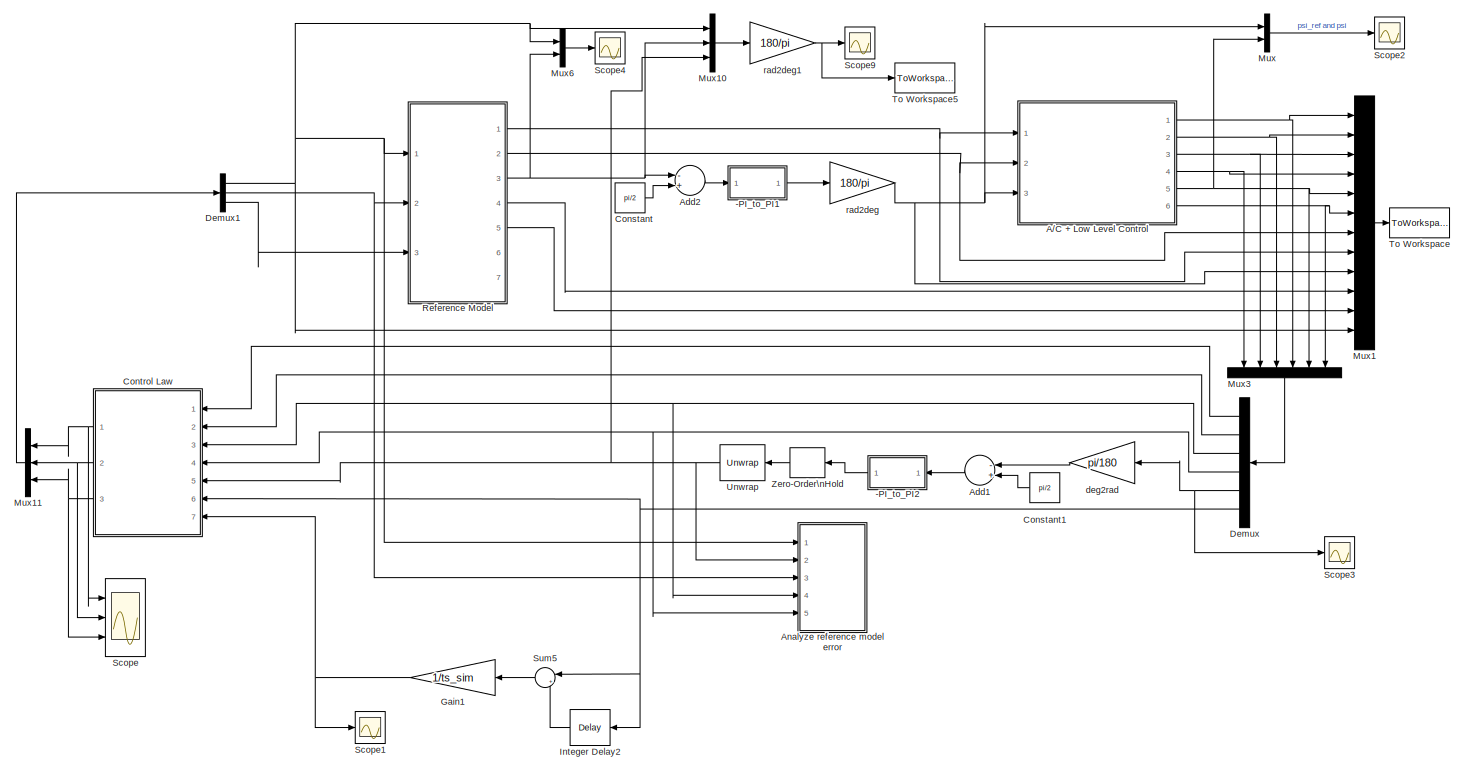
[diagram: root canvas - part 1/1, most of the canvas]
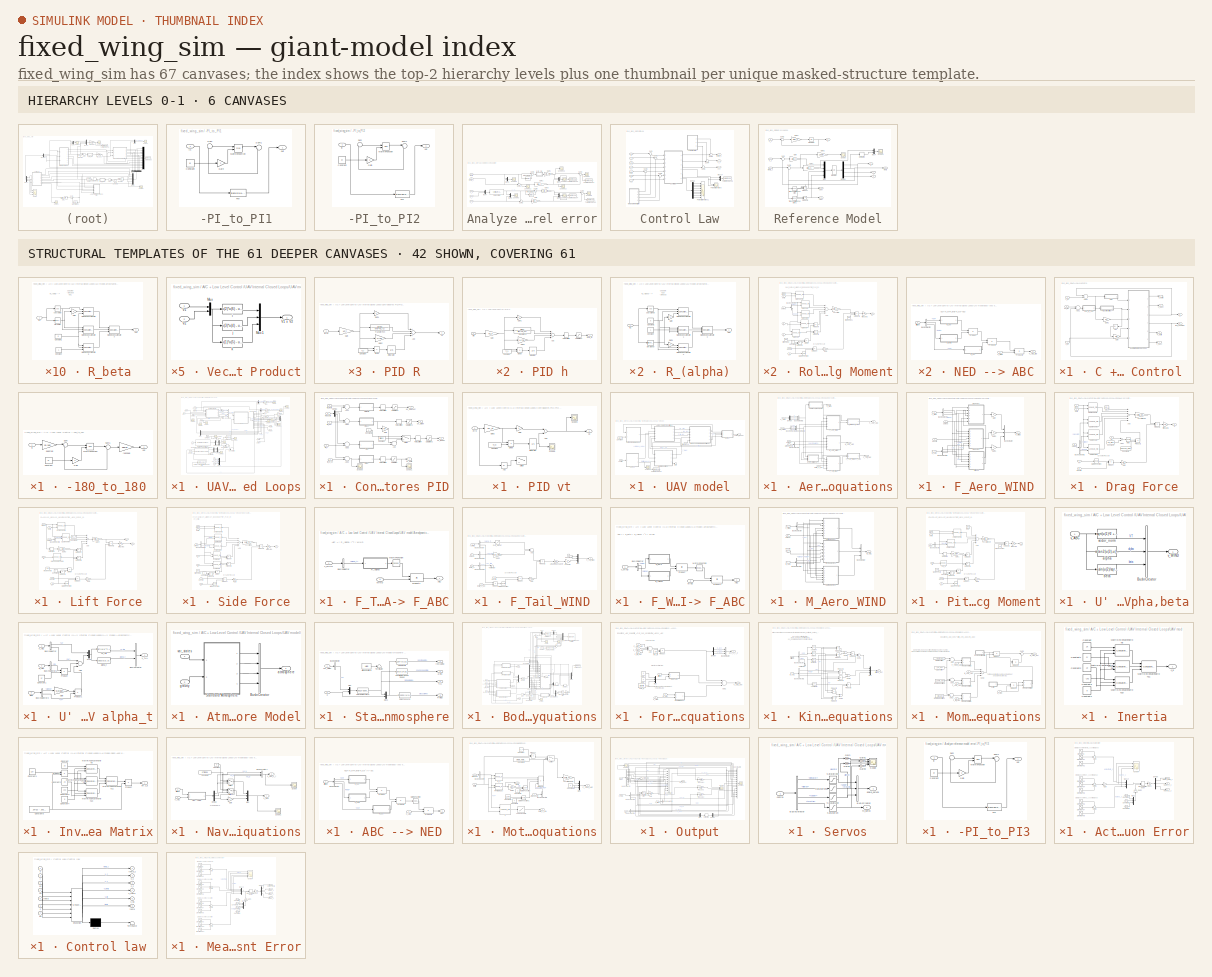
[diagram: thumbnail index - top-2 hierarchy levels (6 canvases) + 42 structural-template representatives of the remaining 61 canvases]
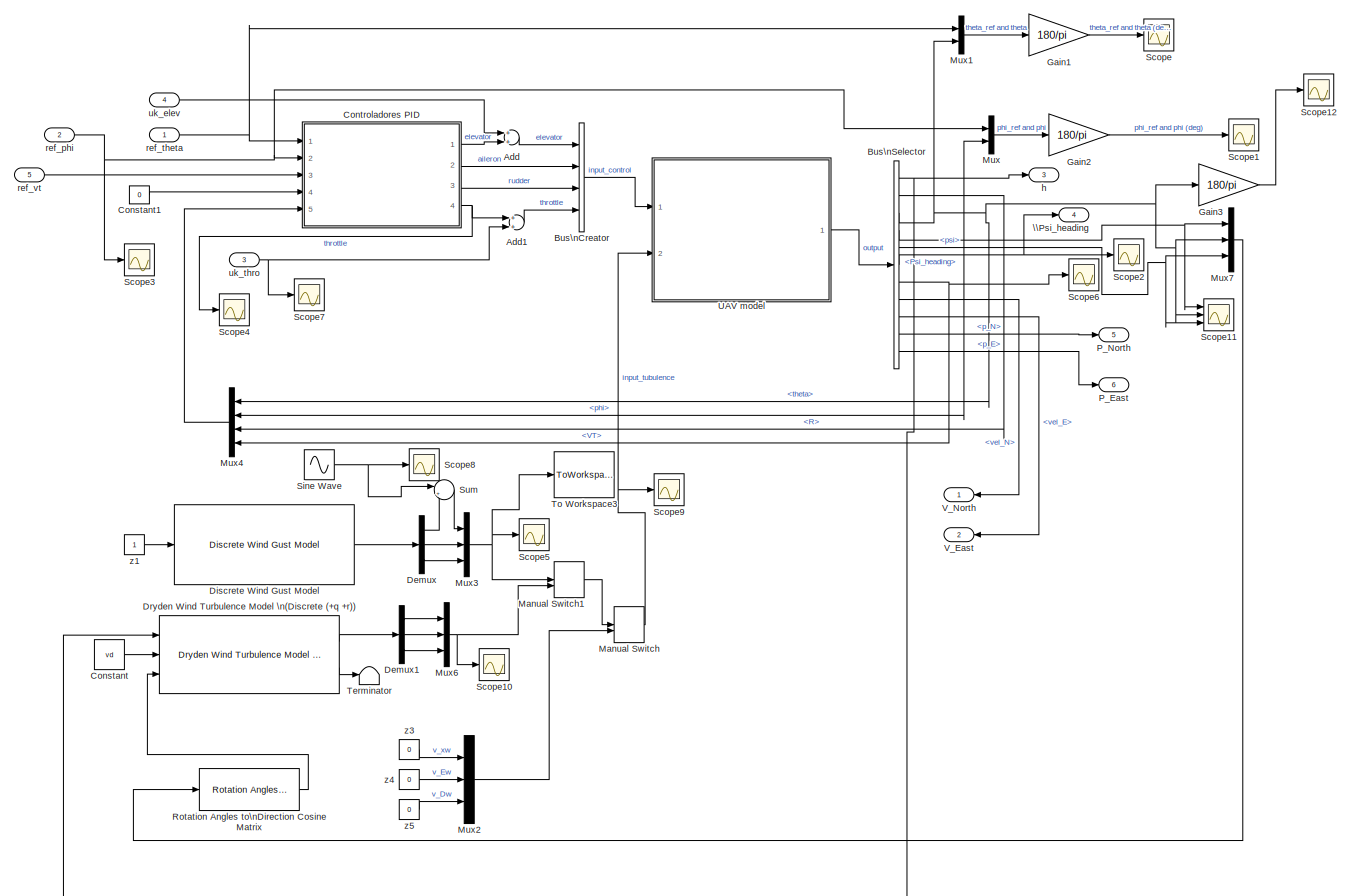
[diagram: A/C + Low Level Control /UAV Internal Closed Loops - part 1/2, most of the canvas]
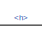
[diagram: A/C + Low Level Control /UAV Internal Closed Loops - part 2/2, bottom center region]
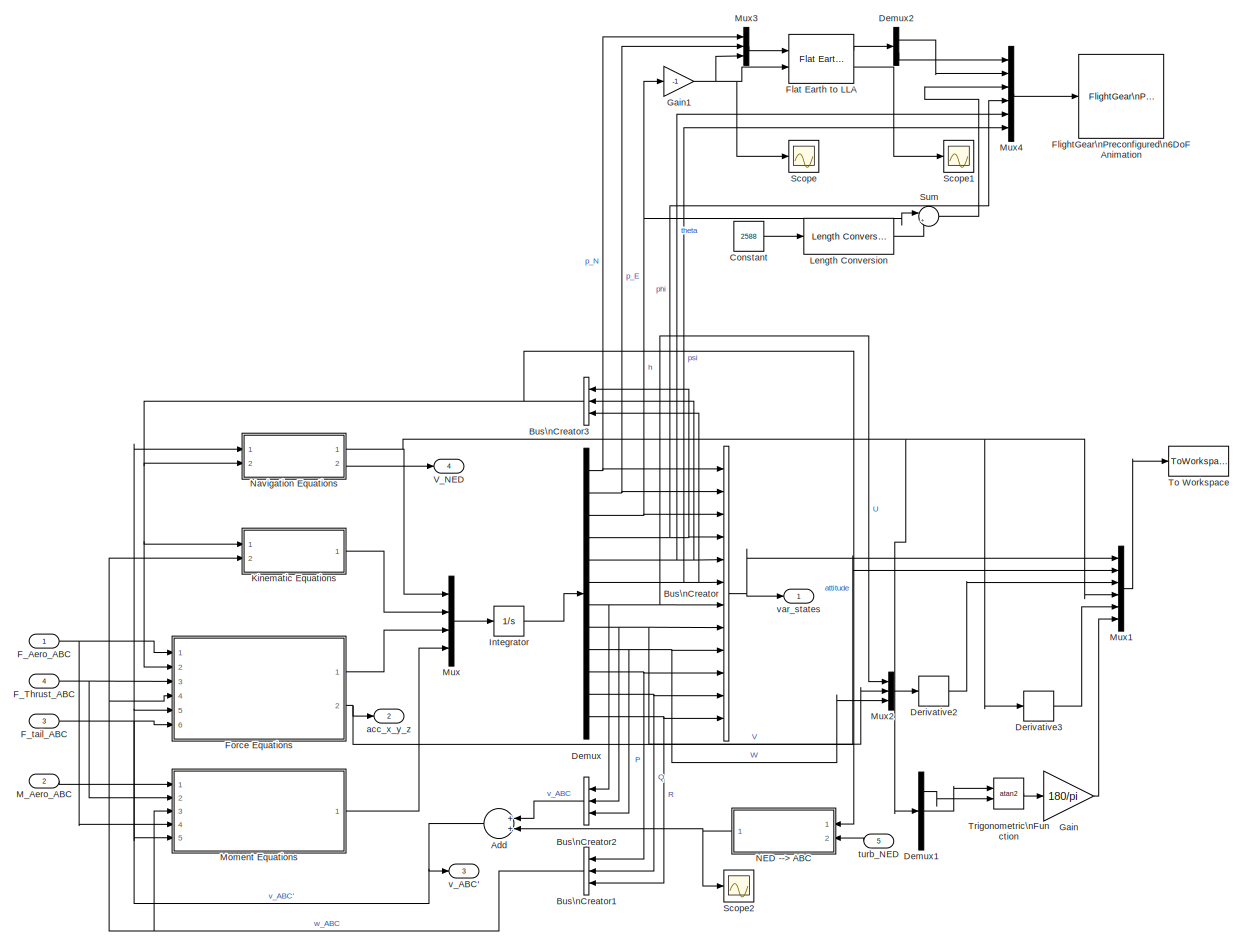
[diagram: A/C + Low Level Control /UAV Internal Closed Loops/UAV model/Body-Axes 6DOF Equations - part 1/1, most of the canvas]
MODEL fixed_wing_sim
KIND model
CONFIG InitFcn = % Run the initialization script\nclear all\naerosonde_uav_conf_model
CONFIG StopFcn = %show_result\nprint_results
BLOCK [SubSystem] -PI_to_PI1
  Ports = [1, 1]
  RequestExecContextInheritance = off
  SID = 1
  Variant = off
BLOCK [Constant] -PI_to_PI1/Constant
  SID = 3
  Value = pi
BLOCK [Fcn] -PI_to_PI1/Fcn
  Expr = atan2(sin(u),cos(u))
  SID = 1067
BLOCK [Gain] -PI_to_PI1/Gain
  Gain = 2
  OutDataTypeStr = Inherit: Inherit via internal rule
  ParamDataTypeStr = Inherit: Inherit via internal rule
  SID = 4
  SaturateOnIntegerOverflow = off
BLOCK [Math] -PI_to_PI1/Math\nFunction
  Operator = mod
  Ports = [2, 1]
  SID = 5
BLOCK [Sum] -PI_to_PI1/Sum
  IconShape = round
  InputSameDT = off
  Inputs = |++
  OutDataTypeStr = Inherit: Inherit via internal rule
  Ports = [2, 1]
  SID = 6
  SaturateOnIntegerOverflow = off
BLOCK [Sum] -PI_to_PI1/Sum1
  IconShape = round
  InputSameDT = off
  Inputs = |+-
  OutDataTypeStr = Inherit: Inherit via internal rule
  Ports = [2, 1]
  SID = 7
  SaturateOnIntegerOverflow = off
BLOCK [Inport] -PI_to_PI1/in
  IconDisplay = Port number
  SID = 2
BLOCK [Outport] -PI_to_PI1/out
  IconDisplay = Port number
  SID = 8
BLOCK [SubSystem] -PI_to_PI2
  Ports = [1, 1]
  RequestExecContextInheritance = off
  SID = 9
  Variant = off
BLOCK [Constant] -PI_to_PI2/Constant
  SID = 11
  Value = pi
BLOCK [Fcn] -PI_to_PI2/Fcn
  Expr = atan2(sin(u),cos(u))
  SID = 1066
BLOCK [Gain] -PI_to_PI2/Gain
  Gain = 2
  OutDataTypeStr = Inherit: Inherit via internal rule
  ParamDataTypeStr = Inherit: Inherit via internal rule
  SID = 12
  SaturateOnIntegerOverflow = off
BLOCK [Math] -PI_to_PI2/Math\nFunction
  Operator = mod
  Ports = [2, 1]
  SID = 13
BLOCK [Sum] -PI_to_PI2/Sum
  IconShape = round
  InputSameDT = off
  Inputs = |++
  OutDataTypeStr = Inherit: Inherit via internal rule
  Ports = [2, 1]
  SID = 14
  SaturateOnIntegerOverflow = off
BLOCK [Sum] -PI_to_PI2/Sum1
  IconShape = round
  InputSameDT = off
  Inputs = |+-
  OutDataTypeStr = Inherit: Inherit via internal rule
  Ports = [2, 1]
  SID = 15
  SaturateOnIntegerOverflow = off
BLOCK [Inport] -PI_to_PI2/in
  IconDisplay = Port number
  SID = 10
BLOCK [Outport] -PI_to_PI2/out
  IconDisplay = Port number
  SID = 16
BLOCK [SubSystem] A//C + Low Level Control 
  Ports = [3, 6]
  RequestExecContextInheritance = off
  SID = 17
  Variant = off
BLOCK [SubSystem] A//C + Low Level Control /-180_to_180
  Ports = [1, 1]
  RequestExecContextInheritance = off
  SID = 21
  Variant = off
BLOCK [Constant] A//C + Low Level Control /-180_to_180/Constant
  SID = 23
  Value = pi
BLOCK [Gain] A//C + Low Level Control /-180_to_180/Gain
  Gain = 2
  OutDataTypeStr = Inherit: Inherit via internal rule
  ParamDataTypeStr = Inherit: Inherit via internal rule
  SID = 24
  SaturateOnIntegerOverflow = off
BLOCK [Math] A//C + Low Level Control /-180_to_180/Math\nFunction
  Operator = mod
  Ports = [2, 1]
  SID = 25
BLOCK [Sum] A//C + Low Level Control /-180_to_180/Sum
  IconShape = round
  InputSameDT = off
  Inputs = |++
  OutDataTypeStr = Inherit: Inherit via internal rule
  Ports = [2, 1]
  SID = 26
  SaturateOnIntegerOverflow = off
BLOCK [Sum] A//C + Low Level Control /-180_to_180/Sum1
  IconShape = round
  InputSameDT = off
  Inputs = |+-
  OutDataTypeStr = Inherit: Inherit via internal rule
  Ports = [2, 1]
  SID = 27
  SaturateOnIntegerOverflow = off
BLOCK [Gain] A//C + Low Level Control /-180_to_180/deg2rad
  Gain = pi/180
  OutDataTypeStr = Inherit: Inherit via internal rule
  ParamDataTypeStr = Inherit: Inherit via internal rule
  SID = 28
  SaturateOnIntegerOverflow = off
BLOCK [Inport] A//C + Low Level Control /-180_to_180/in
  IconDisplay = Port number
  SID = 22
BLOCK [Outport] A//C + Low Level Control /-180_to_180/out
  IconDisplay = Port number
  SID = 30
BLOCK [Gain] A//C + Low Level Control /-180_to_180/rad2deg
  Gain = 180/pi
  OutDataTypeStr = Inherit: Inherit via internal rule
  ParamDataTypeStr = Inherit: Inherit via internal rule
  SID = 29
  SaturateOnIntegerOverflow = off
BLOCK [Abs] A//C + Low Level Control /Abs
  SID = 31
  SaturateOnIntegerOverflow = off
BLOCK [Sum] A//C + Low Level Control /Add1
  InputSameDT = off
  Inputs = +-
  OutDataTypeStr = Inherit: Inherit via internal rule
  Ports = [2, 1]
  SID = 32
  SaturateOnIntegerOverflow = off
BLOCK [Sum] A//C + Low Level Control /Add4
  InputSameDT = off
  Inputs = -+
  OutDataTypeStr = Inherit: Inherit via internal rule
  Ports = [2, 1]
  SID = 33
  SaturateOnIntegerOverflow = off
BLOCK [Gain] A//C + Low Level Control /Gain
  Gain = KE
  OutDataTypeStr = Inherit: Inherit via internal rule
  ParamDataTypeStr = Inherit: Inherit via internal rule
  SID = 34
  SaturateOnIntegerOverflow = off
BLOCK [Gain] A//C + Low Level Control /Gain1
  Gain = KT
  OutDataTypeStr = Inherit: Inherit via internal rule
  ParamDataTypeStr = Inherit: Inherit via internal rule
  SID = 35
  SaturateOnIntegerOverflow = off
BLOCK [SubSystem] A//C + Low Level Control /PID h
  Ports = [1, 1]
  RequestExecContextInheritance = off
  SID = 36
  Variant = off
BLOCK [Sum] A//C + Low Level Control /PID h/Add
  InputSameDT = off
  Inputs = +-++
  OutDataTypeStr = Inherit: Inherit via internal rule
  Ports = [4, 1]
  SID = 38
  SaturateOnIntegerOverflow = off
BLOCK [Constant] A//C + Low Level Control /PID h/Constant
  SID = 39
  Value = TI_h
BLOCK [Product] A//C + Low Level Control /PID h/Divide
  InputSameDT = off
  Inputs = */
  OutDataTypeStr = Inherit: Inherit via internal rule
  Ports = [2, 1]
  RndMeth = Floor
  SID = 40
  SaturateOnIntegerOverflow = off
BLOCK [Gain] A//C + Low Level Control /PID h/Gain
  Gain = KC_h
  OutDataTypeStr = Inherit: Inherit via internal rule
  ParamDataTypeStr = Inherit: Inherit via internal rule
  SID = 41
  SaturateOnIntegerOverflow = off
BLOCK [Gain] A//C + Low Level Control /PID h/Gain1
  OutDataTypeStr = Inherit: Inherit via internal rule
  ParamDataTypeStr = Inherit: Inherit via internal rule
  SID = 42
  SaturateOnIntegerOverflow = off
BLOCK [Gain] A//C + Low Level Control /PID h/Gain2
  Gain = 1/rho
  OutDataTypeStr = Inherit: Inherit via internal rule
  ParamDataTypeStr = Inherit: Inherit via internal rule
  SID = 43
  SaturateOnIntegerOverflow = off
BLOCK [Integrator] A//C + Low Level Control /PID h/Integrator
  InitialCondition = x0_uav(5)
  LimitOutput = on
  LowerSaturationLimit = perc_int_max*theta_min
  Ports = [1, 1]
  SID = 44
  UpperSaturationLimit = perc_int_max*theta_max
BLOCK [RateLimiter] A//C + Low Level Control /PID h/Rate Limiter1
  FallingSlewLimit = -theta_rate
  RisingSlewLimit = theta_rate
  SID = 45
BLOCK [Saturate] A//C + Low Level Control /PID h/Saturation1
  InputPortMap = u0
  LowerLimit = theta_min
  Ports = [1, 1]
  SID = 46
  UpperLimit = theta_max
BLOCK [TransferFcn] A//C + Low Level Control /PID h/Transfer Fcn
  Denominator = [rho*TD_h 1]
  Numerator = [1/rho]
  SID = 47
BLOCK [Inport] A//C + Low Level Control /PID h/erro
  IconDisplay = Port number
  SID = 37
BLOCK [Outport] A//C + Low Level Control /PID h/theta_ref
  IconDisplay = Port number
  SID = 48
BLOCK [SubSystem] A//C + Low Level Control /PID psi (modified)
  Ports = [1, 1]
  RequestExecContextInheritance = off
  SID = 49
  Variant = off
BLOCK [Sum] A//C + Low Level Control /PID psi (modified)/Add
  InputSameDT = off
  Inputs = +-++
  OutDataTypeStr = Inherit: Inherit via internal rule
  Ports = [4, 1]
  SID = 51
  SaturateOnIntegerOverflow = off
BLOCK [Constant] A//C + Low Level Control /PID psi (modified)/Constant
  SID = 52
  Value = TI_psi
BLOCK [Product] A//C + Low Level Control /PID psi (modified)/Divide
  InputSameDT = off
  Inputs = */
  OutDataTypeStr = Inherit: Inherit via internal rule
  Ports = [2, 1]
  RndMeth = Floor
  SID = 53
  SaturateOnIntegerOverflow = off
BLOCK [Gain] A//C + Low Level Control /PID psi (modified)/Gain
  Gain = KC_psi
  OutDataTypeStr = Inherit: Inherit via internal rule
  ParamDataTypeStr = Inherit: Inherit via internal rule
  SID = 54
  SaturateOnIntegerOverflow = off
BLOCK [Gain] A//C + Low Level Control /PID psi (modified)/Gain1
  OutDataTypeStr = Inherit: Inherit via internal rule
  ParamDataTypeStr = Inherit: Inherit via internal rule
  SID = 55
  SaturateOnIntegerOverflow = off
BLOCK [Gain] A//C + Low Level Control /PID psi (modified)/Gain2
  Gain = 1/rho
  OutDataTypeStr = Inherit: Inherit via internal rule
  ParamDataTypeStr = Inherit: Inherit via internal rule
  SID = 56
  SaturateOnIntegerOverflow = off
BLOCK [Integrator] A//C + Low Level Control /PID psi (modified)/Integrator
  LimitOutput = on
  LowerSaturationLimit = phi_min
  Ports = [1, 1]
  SID = 57
  UpperSaturationLimit = phi_max
BLOCK [RateLimiter] A//C + Low Level Control /PID psi (modified)/Rate Limiter2
  FallingSlewLimit = -roll_rate
  RisingSlewLimit = roll_rate
  SID = 58
BLOCK [Saturate] A//C + Low Level Control /PID psi (modified)/Saturation2
  InputPortMap = u0
  LowerLimit = phi_min
  Ports = [1, 1]
  SID = 59
  UpperLimit = phi_max
BLOCK [TransferFcn] A//C + Low Level Control /PID psi (modified)/Transfer Fcn
  Denominator = [rho*TD_psi 1]
  Numerator = [1/rho]
  SID = 60
BLOCK [Inport] A//C + Low Level Control /PID psi (modified)/erro
  IconDisplay = Port number
  SID = 50
BLOCK [Outport] A//C + Low Level Control /PID psi (modified)/phi_ref
  IconDisplay = Port number
  SID = 61
BLOCK [Outport] A//C + Low Level Control /P_East
  IconDisplay = Port number
  Port = 4
  SID = 900
BLOCK [Outport] A//C + Low Level Control /P_North
  IconDisplay = Port number
  Port = 3
  SID = 899
BLOCK [SubSystem] A//C + Low Level Control /UAV Internal Closed Loops
  Ports = [5, 6]
  RequestExecContextInheritance = off
  SID = 62
  Variant = off
BLOCK [Sum] A//C + Low Level Control /UAV Internal Closed Loops/Add
  InputSameDT = off
  OutDataTypeStr = Inherit: Inherit via internal rule
  Ports = [2, 1]
  SID = 68
  SaturateOnIntegerOverflow = off
BLOCK [Sum] A//C + Low Level Control /UAV Internal Closed Loops/Add1
  InputSameDT = off
  OutDataTypeStr = Inherit: Inherit via internal rule
  Ports = [2, 1]
  SID = 69
  SaturateOnIntegerOverflow = off
BLOCK [BusCreator] A//C + Low Level Control /UAV Internal Closed Loops/Bus\nCreator
  DisplayOption = bar
  InheritFromInputs = on
  Inputs = 4
  Ports = [4, 1]
  SID = 70
BLOCK [BusSelector] A//C + Low Level Control /UAV Internal Closed Loops/Bus\nSelector
  OutputSignals = h,R,theta,phi,psi,Psi_heading,VT,vel_N,vel_E,p_N,p_E
  Ports = [1, 11]
  SID = 72
BLOCK [Constant] A//C + Low Level Control /UAV Internal Closed Loops/Constant
  SID = 1283
  Value = vd
BLOCK [Constant] A//C + Low Level Control /UAV Internal Closed Loops/Constant1
  SID = 73
  Value = 0
BLOCK [SubSystem] A//C + Low Level Control /UAV Internal Closed Loops/Controladores PID
  Ports = [5, 4]
  RequestExecContextInheritance = off
  SID = 74
  Variant = off
BLOCK [Sum] A//C + Low Level Control /UAV Internal Closed Loops/Controladores PID/Add
  InputSameDT = off
  OutDataTypeStr = Inherit: Inherit via internal rule
  Ports = [2, 1]
  SID = 80
  SaturateOnIntegerOverflow = off
BLOCK [Sum] A//C + Low Level Control /UAV Internal Closed Loops/Controladores PID/Add1
  InputSameDT = off
  Inputs = -+
  OutDataTypeStr = Inherit: Inherit via internal rule
  Ports = [2, 1]
  SID = 81
  SaturateOnIntegerOverflow = off
BLOCK [Sum] A//C + Low Level Control /UAV Internal Closed Loops/Controladores PID/Add2
  InputSameDT = off
  Inputs = -+
  OutDataTypeStr = Inherit: Inherit via internal rule
  Ports = [2, 1]
  SID = 82
  SaturateOnIntegerOverflow = off
BLOCK [Sum] A//C + Low Level Control /UAV Internal Closed Loops/Controladores PID/Add3
  InputSameDT = off
  Inputs = -+
  OutDataTypeStr = Inherit: Inherit via internal rule
  Ports = [2, 1]
  SID = 83
  SaturateOnIntegerOverflow = off
BLOCK [Sum] A//C + Low Level Control /UAV Internal Closed Loops/Controladores PID/Add4
  InputSameDT = off
  Inputs = +-
  OutDataTypeStr = Inherit: Inherit via internal rule
  Ports = [2, 1]
  SID = 84
  SaturateOnIntegerOverflow = off
BLOCK [Constant] A//C + Low Level Control /UAV Internal Closed Loops/Controladores PID/Constant
  SID = 85
  Value = tailless
BLOCK [Constant] A//C + Low Level Control /UAV Internal Closed Loops/Controladores PID/Constant1
  SID = 86
  Value = 0
BLOCK [Demux] A//C + Low Level Control /UAV Internal Closed Loops/Controladores PID/Demux
  DisplayOption = bar
  Ports = [1, 4]
  SID = 87
BLOCK [Gain] A//C + Low Level Control /UAV Internal Closed Loops/Controladores PID/Gain
  Gain = KR
  OutDataTypeStr = Inherit: Inherit via internal rule
  ParamDataTypeStr = Inherit: Inherit via internal rule
  SID = 88
  SaturateOnIntegerOverflow = off
BLOCK [SubSystem] A//C + Low Level Control /UAV Internal Closed Loops/Controladores PID/PID R
  Ports = [1, 1]
  RequestExecContextInheritance = off
  SID = 89
  Variant = off
BLOCK [Sum] A//C + Low Level Control /UAV Internal Closed Loops/Controladores PID/PID R/Add
  InputSameDT = off
  Inputs = +-++
  OutDataTypeStr = Inherit: Inherit via internal rule
  Ports = [4, 1]
  SID = 91
  SaturateOnIntegerOverflow = off
BLOCK [Constant] A//C + Low Level Control /UAV Internal Closed Loops/Controladores PID/PID R/Constant
  SID = 92
  Value = TI_r
BLOCK [Product] A//C + Low Level Control /UAV Internal Closed Loops/Controladores PID/PID R/Divide
  InputSameDT = off
  Inputs = */
  OutDataTypeStr = Inherit: Inherit via internal rule
  Ports = [2, 1]
  RndMeth = Floor
  SID = 93
  SaturateOnIntegerOverflow = off
BLOCK [Gain] A//C + Low Level Control /UAV Internal Closed Loops/Controladores PID/PID R/Gain
  Gain = KC_r
  OutDataTypeStr = Inherit: Inherit via internal rule
  ParamDataTypeStr = Inherit: Inherit via internal rule
  SID = 94
  SaturateOnIntegerOverflow = off
BLOCK [Gain] A//C + Low Level Control /UAV Internal Closed Loops/Controladores PID/PID R/Gain1
  OutDataTypeStr = Inherit: Inherit via internal rule
  ParamDataTypeStr = Inherit: Inherit via internal rule
  SID = 95
  SaturateOnIntegerOverflow = off
BLOCK [Gain] A//C + Low Level Control /UAV Internal Closed Loops/Controladores PID/PID R/Gain2
  Gain = 1/rho
  OutDataTypeStr = Inherit: Inherit via internal rule
  ParamDataTypeStr = Inherit: Inherit via internal rule
  SID = 96
  SaturateOnIntegerOverflow = off
BLOCK [Integrator] A//C + Low Level Control /UAV Internal Closed Loops/Controladores PID/PID R/Integrator
  InitialCondition = u0_uav(3)
  LimitOutput = on
  LowerSaturationLimit = -perc_int_max*rudder_limits(2)
  Ports = [1, 1]
  SID = 97
  UpperSaturationLimit = perc_int_max*rudder_limits(2)
BLOCK [TransferFcn] A//C + Low Level Control /UAV Internal Closed Loops/Controladores PID/PID R/Transfer Fcn
  Denominator = [rho*TD_r 1]
  Numerator = [1/rho]
  SID = 98
BLOCK [Inport] A//C + Low Level Control /UAV Internal Closed Loops/Controladores PID/PID R/erro
  IconDisplay = Port number
  SID = 90
BLOCK [Outport] A//C + Low Level Control /UAV Internal Closed Loops/Controladores PID/PID R/uk
  IconDisplay = Port number
  SID = 99
BLOCK [SubSystem] A//C + Low Level Control /UAV Internal Closed Loops/Controladores PID/PID phi
  Ports = [1, 1]
  RequestExecContextInheritance = off
  SID = 100
  Variant = off
BLOCK [Sum] A//C + Low Level Control /UAV Internal Closed Loops/Controladores PID/PID phi/Add
  InputSameDT = off
  Inputs = +-++
  OutDataTypeStr = Inherit: Inherit via internal rule
  Ports = [4, 1]
  SID = 102
  SaturateOnIntegerOverflow = off
BLOCK [Constant] A//C + Low Level Control /UAV Internal Closed Loops/Controladores PID/PID phi/Constant
  SID = 103
  Value = TI_phi
BLOCK [Product] A//C + Low Level Control /UAV Internal Closed Loops/Controladores PID/PID phi/Divide
  InputSameDT = off
  Inputs = */
  OutDataTypeStr = Inherit: Inherit via internal rule
  Ports = [2, 1]
  RndMeth = Floor
  SID = 104
  SaturateOnIntegerOverflow = off
BLOCK [Gain] A//C + Low Level Control /UAV Internal Closed Loops/Controladores PID/PID phi/Gain
  Gain = KC_phi
  OutDataTypeStr = Inherit: Inherit via internal rule
  ParamDataTypeStr = Inherit: Inherit via internal rule
  SID = 105
  SaturateOnIntegerOverflow = off
BLOCK [Gain] A//C + Low Level Control /UAV Internal Closed Loops/Controladores PID/PID phi/Gain1
  OutDataTypeStr = Inherit: Inherit via internal rule
  ParamDataTypeStr = Inherit: Inherit via internal rule
  SID = 106
  SaturateOnIntegerOverflow = off
BLOCK [Gain] A//C + Low Level Control /UAV Internal Closed Loops/Controladores PID/PID phi/Gain2
  Gain = 1/rho
  OutDataTypeStr = Inherit: Inherit via internal rule
  ParamDataTypeStr = Inherit: Inherit via internal rule
  SID = 107
  SaturateOnIntegerOverflow = off
BLOCK [Integrator] A//C + Low Level Control /UAV Internal Closed Loops/Controladores PID/PID phi/Integrator
  InitialCondition = u0_uav(2)
  LimitOutput = on
  LowerSaturationLimit = -perc_int_max*aileron_limits(2)
  Ports = [1, 1]
  SID = 108
  UpperSaturationLimit = perc_int_max*aileron_limits(2)
BLOCK [TransferFcn] A//C + Low Level Control /UAV Internal Closed Loops/Controladores PID/PID phi/Transfer Fcn
  Denominator = [rho*TD_phi 1]
  Numerator = [1/rho]
  SID = 109
BLOCK [Inport] A//C + Low Level Control /UAV Internal Closed Loops/Controladores PID/PID phi/erro
  IconDisplay = Port number
  SID = 101
BLOCK [Outport] A//C + Low Level Control /UAV Internal Closed Loops/Controladores PID/PID phi/uk
  IconDisplay = Port number
  SID = 110
BLOCK [SubSystem] A//C + Low Level Control /UAV Internal Closed Loops/Controladores PID/PID theta
  Ports = [1, 1]
  RequestExecContextInheritance = off
  SID = 111
  Variant = off
BLOCK [Sum] A//C + Low Level Control /UAV Internal Closed Loops/Controladores PID/PID theta/Add
  InputSameDT = off
  Inputs = +-++
  OutDataTypeStr = Inherit: Inherit via internal rule
  Ports = [4, 1]
  SID = 113
  SaturateOnIntegerOverflow = off
BLOCK [Constant] A//C + Low Level Control /UAV Internal Closed Loops/Controladores PID/PID theta/Constant
  SID = 114
  Value = TI_theta
BLOCK [Product] A//C + Low Level Control /UAV Internal Closed Loops/Controladores PID/PID theta/Divide
  InputSameDT = off
  Inputs = */
  OutDataTypeStr = Inherit: Inherit via internal rule
  Ports = [2, 1]
  RndMeth = Floor
  SID = 115
  SaturateOnIntegerOverflow = off
BLOCK [Gain] A//C + Low Level Control /UAV Internal Closed Loops/Controladores PID/PID theta/Gain
  Gain = KC_theta
  OutDataTypeStr = Inherit: Inherit via internal rule
  ParamDataTypeStr = Inherit: Inherit via internal rule
  SID = 116
  SaturateOnIntegerOverflow = off
BLOCK [Gain] A//C + Low Level Control /UAV Internal Closed Loops/Controladores PID/PID theta/Gain1
  OutDataTypeStr = Inherit: Inherit via internal rule
  ParamDataTypeStr = Inherit: Inherit via internal rule
  SID = 117
  SaturateOnIntegerOverflow = off
BLOCK [Gain] A//C + Low Level Control /UAV Internal Closed Loops/Controladores PID/PID theta/Gain2
  Gain = 1/rho
  OutDataTypeStr = Inherit: Inherit via internal rule
  ParamDataTypeStr = Inherit: Inherit via internal rule
  SID = 118
  SaturateOnIntegerOverflow = off
BLOCK [Integrator] A//C + Low Level Control /UAV Internal Closed Loops/Controladores PID/PID theta/Integrator
  InitialCondition = u0_uav(1)
  LimitOutput = on
  LowerSaturationLimit = -perc_int_max*elevator_limits(2)
  Ports = [1, 1]
  SID = 119
  UpperSaturationLimit = perc_int_max*elevator_limits(2)
BLOCK [TransferFcn] A//C + Low Level Control /UAV Internal Closed Loops/Controladores PID/PID theta/Transfer Fcn
  Denominator = [rho*TD_theta 1]
  Numerator = [1/rho]
  SID = 120
BLOCK [Inport] A//C + Low Level Control /UAV Internal Closed Loops/Controladores PID/PID theta/erro
  IconDisplay = Port number
  SID = 112
BLOCK [Outport] A//C + Low Level Control /UAV Internal Closed Loops/Controladores PID/PID theta/uk
  IconDisplay = Port number
  SID = 121
BLOCK [SubSystem] A//C + Low Level Control /UAV Internal Closed Loops/Controladores PID/PID vt
  Ports = [1, 1]
  RequestExecContextInheritance = off
  SID = 122
  Variant = off
BLOCK [Abs] A//C + Low Level Control /UAV Internal Closed Loops/Controladores PID/PID vt/Abs
  SID = 1230
  SaturateOnIntegerOverflow = off
BLOCK [Sum] A//C + Low Level Control /UAV Internal Closed Loops/Controladores PID/PID vt/Add
  InputSameDT = off
  OutDataTypeStr = Inherit: Inherit via internal rule
  Ports = [2, 1]
  SID = 124
  SaturateOnIntegerOverflow = off
BLOCK [Constant] A//C + Low Level Control /UAV Internal Closed Loops/Controladores PID/PID vt/Constant
  SID = 125
  Value = TI_vt
BLOCK [Product] A//C + Low Level Control /UAV Internal Closed Loops/Controladores PID/PID vt/Divide
  InputSameDT = off
  Inputs = */
  OutDataTypeStr = Inherit: Inherit via internal rule
  Ports = [2, 1]
  RndMeth = Floor
  SID = 126
  SaturateOnIntegerOverflow = off
BLOCK [Gain] A//C + Low Level Control /UAV Internal Closed Loops/Controladores PID/PID vt/Gain
  OutDataTypeStr = Inherit: Inherit via internal rule
  ParamDataTypeStr = Inherit: Inherit via internal rule
  SID = 127
  SaturateOnIntegerOverflow = off
BLOCK [Gain] A//C + Low Level Control /UAV Internal Closed Loops/Controladores PID/PID vt/Gain2
  Gain = KC_vt
  OutDataTypeStr = Inherit: Inherit via internal rule
  ParamDataTypeStr = Inherit: Inherit via internal rule
  SID = 128
  SaturateOnIntegerOverflow = off
BLOCK [Integrator] A//C + Low Level Control /UAV Internal Closed Loops/Controladores PID/PID vt/Integrator
  InitialCondition = u0_uav(4)
  LimitOutput = on
  LowerSaturationLimit = 2*motor_min
  Ports = [1, 1]
  SID = 129
  UpperSaturationLimit = 1 - motor_min
BLOCK [Scope] A//C + Low Level Control /UAV Internal Closed Loops/Controladores PID/PID vt/Scope3
  Ports = [1]
  SID = 1227
  ScopeSpecificationString = C++SS(StrPVP('Location','[6, 57, 1360, 735]'),StrPVP('Open','off'),MxPVP('AxesTitles',24,'struct(''axes1'',''%<SignalLabel>'')'),MxPVP('ScopeGraphics',28,'struct(''FigureColor'',''[0.5 0.5 0.5]'',''AxesColor'',''[0 0 0]'',''AxesTickColor'',''[1 1 1]'',''LineColors'',''[1 1 0;1 0 1;0 1 1;1 0 0;0 1 0;0 0 1]'',''LineStyles'',''-|-|-|-|-|-'',''LineWidths'',''[0.5 0.5 0.5 0.5 0.5 0.5]'',''MarkerStyles'...<+343ch>
BLOCK [Scope] A//C + Low Level Control /UAV Internal Closed Loops/Controladores PID/PID vt/Scope8
  Ports = [1]
  SID = 1217
  ScopeSpecificationString = C++SS(StrPVP('Location','[6, 57, 1360, 735]'),StrPVP('Open','off'),MxPVP('AxesTitles',24,'struct(''axes1'',''%<SignalLabel>'')'),MxPVP('ScopeGraphics',28,'struct(''FigureColor'',''[0.5 0.5 0.5]'',''AxesColor'',''[0 0 0]'',''AxesTickColor'',''[1 1 1]'',''LineColors'',''[1 1 0;1 0 1;0 1 1;1 0 0;0 1 0;0 0 1]'',''LineStyles'',''-|-|-|-|-|-'',''LineWidths'',''[0.5 0.5 0.5 0.5 0.5 0.5]'',''MarkerStyles'...<+337ch>
BLOCK [Switch] A//C + Low Level Control /UAV Internal Closed Loops/Controladores PID/PID vt/Switch
  Criteria = u2 > Threshold
  InputSameDT = off
  SID = 1229
  SaturateOnIntegerOverflow = off
  Threshold = 1e-2
BLOCK [Inport] A//C + Low Level Control /UAV Internal Closed Loops/Controladores PID/PID vt/erro
  IconDisplay = Port number
  SID = 123
BLOCK [Outport] A//C + Low Level Control /UAV Internal Closed Loops/Controladores PID/PID vt/uk
  IconDisplay = Port number
  SID = 130
BLOCK [RateLimiter] A//C + Low Level Control /UAV Internal Closed Loops/Controladores PID/Rate Limiter1
  FallingSlewLimit = -servo_rate
  RisingSlewLimit = servo_rate
  SID = 131
BLOCK [RateLimiter] A//C + Low Level Control /UAV Internal Closed Loops/Controladores PID/Rate Limiter2
  FallingSlewLimit = -motor_rate
  RisingSlewLimit = motor_rate
  SID = 132
BLOCK [RateLimiter] A//C + Low Level Control /UAV Internal Closed Loops/Controladores PID/Rate Limiter3
  FallingSlewLimit = -servo_rate
  RisingSlewLimit = servo_rate
  SID = 133
BLOCK [RateLimiter] A//C + Low Level Control /UAV Internal Closed Loops/Controladores PID/Rate Limiter4
  FallingSlewLimit = -servo_rate
  RisingSlewLimit = servo_rate
  SID = 134
BLOCK [Saturate] A//C + Low Level Control /UAV Internal Closed Loops/Controladores PID/Saturation
  InputPortMap = u0
  LowerLimit = motor_min
  Ports = [1, 1]
  SID = 135
  UpperLimit = 1
BLOCK [Saturate] A//C + Low Level Control /UAV Internal Closed Loops/Controladores PID/Saturation1
  InputPortMap = u0
  LowerLimit = elevator_limits(1)
  Ports = [1, 1]
  SID = 136
  UpperLimit = elevator_limits(2)
BLOCK [Saturate] A//C + Low Level Control /UAV Internal Closed Loops/Controladores PID/Saturation2
  InputPortMap = u0
  LowerLimit = rudder_limits(1)
  Ports = [1, 1]
  SID = 137
  UpperLimit = rudder_limits(2)
BLOCK [Saturate] A//C + Low Level Control /UAV Internal Closed Loops/Controladores PID/Saturation3
  InputPortMap = u0
  LowerLimit = aileron_limits(1)
  Ports = [1, 1]
  SID = 138
  UpperLimit = aileron_limits(2)
BLOCK [Scope] A//C + Low Level Control /UAV Internal Closed Loops/Controladores PID/Scope1
  Ports = [1]
  SID = 1228
  ScopeSpecificationString = C++SS(StrPVP('Location','[6, 57, 1360, 735]'),StrPVP('Open','off'),MxPVP('AxesTitles',24,'struct(''axes1'',''%<SignalLabel>'')'),MxPVP('ScopeGraphics',28,'struct(''FigureColor'',''[0.5 0.5 0.5]'',''AxesColor'',''[0 0 0]'',''AxesTickColor'',''[1 1 1]'',''LineColors'',''[1 1 0;1 0 1;0 1 1;1 0 0;0 1 0;0 0 1]'',''LineStyles'',''-|-|-|-|-|-'',''LineWidths'',''[0.5 0.5 0.5 0.5 0.5 0.5]'',''MarkerStyles'...<+343ch>
BLOCK [Scope] A//C + Low Level Control /UAV Internal Closed Loops/Controladores PID/Scope8
  Ports = [1]
  SID = 1218
  ScopeSpecificationString = C++SS(StrPVP('Location','[6, 57, 1360, 735]'),StrPVP('Open','off'),MxPVP('AxesTitles',24,'struct(''axes1'',''%<SignalLabel>'')'),MxPVP('ScopeGraphics',28,'struct(''FigureColor'',''[0.5 0.5 0.5]'',''AxesColor'',''[0 0 0]'',''AxesTickColor'',''[1 1 1]'',''LineColors'',''[1 1 0;1 0 1;0 1 1;1 0 0;0 1 0;0 0 1]'',''LineStyles'',''-|-|-|-|-|-'',''LineWidths'',''[0.5 0.5 0.5 0.5 0.5 0.5]'',''MarkerStyles'...<+336ch>
BLOCK [Switch] A//C + Low Level Control /UAV Internal Closed Loops/Controladores PID/Switch
  Criteria = u2 > Threshold
  InputSameDT = off
  SID = 139
  SaturateOnIntegerOverflow = off
BLOCK [Inport] A//C + Low Level Control /UAV Internal Closed Loops/Controladores PID/measure
  IconDisplay = Port number
  Port = 5
  SID = 79
BLOCK [Inport] A//C + Low Level Control /UAV Internal Closed Loops/Controladores PID/ref_h_vt
  IconDisplay = Port number
  Port = 3
  SID = 77
BLOCK [Inport] A//C + Low Level Control /UAV Internal Closed Loops/Controladores PID/ref_phi
  IconDisplay = Port number
  Port = 2
  SID = 76
BLOCK [Inport] A//C + Low Level Control /UAV Internal Closed Loops/Controladores PID/ref_r
  IconDisplay = Port number
  Port = 4
  SID = 78
BLOCK [Inport] A//C + Low Level Control /UAV Internal Closed Loops/Controladores PID/ref_theta
  IconDisplay = Port number
  SID = 75
BLOCK [Outport] A//C + Low Level Control /UAV Internal Closed Loops/Controladores PID/uk_aileron
  IconDisplay = Port number
  Port = 2
  SID = 141
BLOCK [Outport] A//C + Low Level Control /UAV Internal Closed Loops/Controladores PID/uk_profundor
  IconDisplay = Port number
  SID = 140
BLOCK [Outport] A//C + Low Level Control /UAV Internal Closed Loops/Controladores PID/uk_rudder
  IconDisplay = Port number
  Port = 3
  SID = 142
BLOCK [Outport] A//C + Low Level Control /UAV Internal Closed Loops/Controladores PID/uk_throttle
  IconDisplay = Port number
  Port = 4
  SID = 143
BLOCK [Demux] A//C + Low Level Control /UAV Internal Closed Loops/Demux
  DisplayOption = bar
  Outputs = 3
  Ports = [1, 3]
  SID = 1213
BLOCK [Demux] A//C + Low Level Control /UAV Internal Closed Loops/Demux1
  DisplayOption = bar
  Outputs = 3
  Ports = [1, 3]
  SID = 1278
BLOCK [Reference] A//C + Low Level Control /UAV Internal Closed Loops/Discrete Wind Gust Model  REF=aerolibwind2/Discrete Wind Gust Model
  Gx = on
  Gy = on
  Gz = on
  Ports = [1, 1]
  SID = 1206
  SourceBlock = aerolibwind2/Discrete Wind Gust Model
  SourceType = Discrete Wind Gust Model
  d_m = [20 20 20]
  t_0 = 0
  units = Metric (MKS)
  v_m = [5.75 0 0]
BLOCK [Reference] A//C + Low Level Control /UAV Internal Closed Loops/Dryden Wind Turbulence Model \n(Discrete (+q +r))  REF=aerolibwind2/Dryden Wind Turbulence Model \n(Continuous (+q -r))
  L_high = 533.4
  Ports = [3, 2]
  SID = 1274
  Seed = [23341 23342 23343 23344]
  SourceBlock = aerolibwind2/Dryden Wind Turbulence Model \n(Continuous (+q -r))
  SourceType = Wind Turbulence Model
  T_on = on
  TurbProb = 10^-2 - Light
  W20 = 1
  Wdeg = 0
  Wingspan = Bw
  model = Continuous Dryden (+q +r)
  spec = MIL-F-8785C
  ts = ts_sim
  units = Metric (MKS)
BLOCK [Gain] A//C + Low Level Control /UAV Internal Closed Loops/Gain1
  Gain = 180/pi
  OutDataTypeStr = Inherit: Inherit via internal rule
  ParamDataTypeStr = Inherit: Inherit via internal rule
  SID = 144
  SaturateOnIntegerOverflow = off
BLOCK [Gain] A//C + Low Level Control /UAV Internal Closed Loops/Gain2
  Gain = 180/pi
  OutDataTypeStr = Inherit: Inherit via internal rule
  ParamDataTypeStr = Inherit: Inherit via internal rule
  SID = 145
  SaturateOnIntegerOverflow = off
BLOCK [Gain] A//C + Low Level Control /UAV Internal Closed Loops/Gain3
  Gain = 180/pi
  OutDataTypeStr = Inherit: Inherit via internal rule
  ParamDataTypeStr = Inherit: Inherit via internal rule
  SID = 1465
  SaturateOnIntegerOverflow = off
BLOCK [ManualSwitch] A//C + Low Level Control /UAV Internal Closed Loops/Manual Switch
  CurrentSetting = 0
  SID = 1199
BLOCK [ManualSwitch] A//C + Low Level Control /UAV Internal Closed Loops/Manual Switch1
  SID = 1285
BLOCK [Mux] A//C + Low Level Control /UAV Internal Closed Loops/Mux
  DisplayOption = bar
  Inputs = 2
  Ports = [2, 1]
  SID = 146
BLOCK [Mux] A//C + Low Level Control /UAV Internal Closed Loops/Mux1
  DisplayOption = bar
  Inputs = 2
  Ports = [2, 1]
  SID = 147
BLOCK [Mux] A//C + Low Level Control /UAV Internal Closed Loops/Mux2
  DisplayOption = bar
  Inputs = 3
  Ports = [3, 1]
  SID = 1210
BLOCK [Mux] A//C + Low Level Control /UAV Internal Closed Loops/Mux3
  DisplayOption = bar
  Inputs = 3
  Ports = [3, 1]
  SID = 1212
BLOCK [Mux] A//C + Low Level Control /UAV Internal Closed Loops/Mux4
  DisplayOption = bar
  Ports = [4, 1]
  SID = 148
BLOCK [Mux] A//C + Low Level Control /UAV Internal Closed Loops/Mux6
  DisplayOption = bar
  Inputs = 3
  Ports = [3, 1]
  SID = 1279
BLOCK [Mux] A//C + Low Level Control /UAV Internal Closed Loops/Mux7
  DisplayOption = bar
  Inputs = 3
  Ports = [3, 1]
  SID = 1282
BLOCK [Outport] A//C + Low Level Control /UAV Internal Closed Loops/P_East
  IconDisplay = Port number
  Port = 6
  SID = 896
BLOCK [Outport] A//C + Low Level Control /UAV Internal Closed Loops/P_North
  IconDisplay = Port number
  Port = 5
  SID = 895
BLOCK [Reference] A//C + Low Level Control /UAV Internal Closed Loops/Rotation Angles to\nDirection Cosine Matrix  REF=aerolibtransform2/Rotation Angles to\nDirection Cosine Matrix
  AttributesFormatString = Rotation Order: %<rotationOrder>
  Ports = [1, 1]
  SID = 1281
  SourceBlock = aerolibtransform2/Rotation Angles to\nDirection Cosine Matrix
  SourceType = Ang2DCM
  rotationOrder = ZYX
BLOCK [Scope] A//C + Low Level Control /UAV Internal Closed Loops/Scope
  Ports = [1]
  SID = 149
  ScopeSpecificationString = C++SS(StrPVP('Location','[6, 52, 1360, 731]'),StrPVP('Open','off'),MxPVP('AxesTitles',24,'struct(''axes1'',''%<SignalLabel>'')'),MxPVP('ScopeGraphics',28,'struct(''FigureColor'',''[0.5 0.5 0.5]'',''AxesColor'',''[0 0 0]'',''AxesTickColor'',''[1 1 1]'',''LineColors'',''[1 1 0;1 0 1;0 1 1;1 0 0;0 1 0;0 0 1]'',''LineStyles'',''-|-|-|-|-|-'',''LineWidths'',''[0.5 0.5 0.5 0.5 0.5 0.5]'',''MarkerStyles'...<+312ch>
BLOCK [Scope] A//C + Low Level Control /UAV Internal Closed Loops/Scope1
  Ports = [1]
  SID = 150
  ScopeSpecificationString = Simulink.scopes.TimeScopeBlockCfg('CurrentConfiguration', extmgr.ConfigurationSet(extmgr.Configuration('Core','General UI',true),extmgr.Configuration('Core','Source UI',true),extmgr.Configuration('Sources','WiredSimulink',true,'DataLogging',true,'DataLoggingVariableName','result_phi','DataLoggingSaveFormat','StructureWithTime','DataLoggingDecimation','1','DataLoggingDecimateData',true),extmgr.Conf...<+1766ch>
BLOCK [Scope] A//C + Low Level Control /UAV Internal Closed Loops/Scope10
  Ports = [1]
  SID = 1284
  ScopeSpecificationString = Simulink.scopes.TimeScopeBlockCfg('CurrentConfiguration', extmgr.ConfigurationSet(extmgr.Configuration('Core','General UI',true),extmgr.Configuration('Core','Source UI',true),extmgr.Configuration('Sources','WiredSimulink',true,'DataLoggingVariableName','ScopeData41','DataLoggingSaveFormat','StructureWithTime','DataLoggingDecimation','1','DataLoggingDecimateData',true),extmgr.Configuration('Visuals...<+1789ch>
BLOCK [Scope] A//C + Low Level Control /UAV Internal Closed Loops/Scope11
  NumInputPorts = 3
  Ports = [3]
  SID = 1463
  ScopeSpecificationString = Simulink.scopes.TimeScopeBlockCfg('CurrentConfiguration', extmgr.ConfigurationSet(extmgr.Configuration('Core','General UI',true),extmgr.Configuration('Core','Source UI',true),extmgr.Configuration('Sources','WiredSimulink',true,'DataLoggingVariableName','ScopeData1','DataLoggingSaveFormat','StructureWithTime','DataLoggingDecimation','1','DataLoggingDecimateData',true),extmgr.Configuration('Visuals'...<+3141ch>
BLOCK [Scope] A//C + Low Level Control /UAV Internal Closed Loops/Scope12
  Ports = [1]
  SID = 1464
  ScopeSpecificationString = Simulink.scopes.TimeScopeBlockCfg('CurrentConfiguration', extmgr.ConfigurationSet(extmgr.Configuration('Core','General UI',true),extmgr.Configuration('Core','Source UI',true),extmgr.Configuration('Sources','WiredSimulink',true,'DataLoggingVariableName','result_pitch','DataLogging',true,'DataLoggingDecimateData',true,'DataLoggingDecimation','1','DataLoggingSaveFormat','StructureWithTime'),extmgr.Co...<+1520ch>
BLOCK [Scope] A//C + Low Level Control /UAV Internal Closed Loops/Scope2
  Ports = [1]
  SID = 151
  ScopeSpecificationString = Simulink.scopes.TimeScopeBlockCfg('CurrentConfiguration', extmgr.ConfigurationSet(extmgr.Configuration('Core','General UI',true),extmgr.Configuration('Core','Source UI',true),extmgr.Configuration('Sources','WiredSimulink',true,'DataLoggingVariableName','ScopeData1','DataLoggingSaveFormat','StructureWithTime','DataLoggingDecimation','1','DataLoggingDecimateData',true),extmgr.Configuration('Visuals'...<+1760ch>
BLOCK [Scope] A//C + Low Level Control /UAV Internal Closed Loops/Scope3
  Ports = [1]
  SID = 152
  ScopeSpecificationString = C++SS(StrPVP('Location','[55, 277, 644, 516]'),StrPVP('Open','off'),StrPVP('ZoomMode','yonly'),MxPVP('AxesTitles',24,'struct(''axes1'',''%<SignalLabel>'')'),MxPVP('ScopeGraphics',28,'struct(''FigureColor'',''[0.5 0.5 0.5]'',''AxesColor'',''[0 0 0]'',''AxesTickColor'',''[1 1 1]'',''LineColors'',''[1 1 0;1 0 1;0 1 1;1 0 0;0 1 0;0 0 1]'',''LineStyles'',''-|-|-|-|-|-'',''LineWidths'',''[0.5 0.5 0.5 0....<+362ch>
BLOCK [Scope] A//C + Low Level Control /UAV Internal Closed Loops/Scope4
  Ports = [1]
  SID = 1070
  ScopeSpecificationString = C++SS(StrPVP('Location','[5, 49, 1367, 727]'),StrPVP('Open','off'),MxPVP('AxesTitles',24,'struct(''axes1'',''%<SignalLabel>'')'),MxPVP('ScopeGraphics',28,'struct(''FigureColor'',''[0.5 0.5 0.5]'',''AxesColor'',''[0 0 0]'',''AxesTickColor'',''[1 1 1]'',''LineColors'',''[1 1 0;1 0 1;0 1 1;1 0 0;0 1 0;0 0 1]'',''LineStyles'',''-|-|-|-|-|-'',''LineWidths'',''[0.5 0.5 0.5 0.5 0.5 0.5]'',''MarkerStyles'...<+274ch>
BLOCK [Scope] A//C + Low Level Control /UAV Internal Closed Loops/Scope5
  Ports = [1]
  SID = 1211
  ScopeSpecificationString = Simulink.scopes.TimeScopeBlockCfg('CurrentConfiguration', extmgr.ConfigurationSet(extmgr.Configuration('Core','General UI',true),extmgr.Configuration('Core','Source UI',true),extmgr.Configuration('Sources','WiredSimulink',true,'DataLoggingVariableName','ScopeData25','DataLoggingSaveFormat','StructureWithTime','DataLoggingDecimation','1','DataLoggingDecimateData',true),extmgr.Configuration('Visuals...<+1782ch>
BLOCK [Scope] A//C + Low Level Control /UAV Internal Closed Loops/Scope6
  Ports = [1]
  SID = 1200
  ScopeSpecificationString = C++SS(StrPVP('Location','[6, 49, 1360, 727]'),StrPVP('Open','off'),StrPVP('ZoomMode','xonly'),MxPVP('AxesTitles',24,'struct(''axes1'',''%<SignalLabel>'')'),MxPVP('ScopeGraphics',28,'struct(''FigureColor'',''[0.5 0.5 0.5]'',''AxesColor'',''[0 0 0]'',''AxesTickColor'',''[1 1 1]'',''LineColors'',''[1 1 0;1 0 1;0 1 1;1 0 0;0 1 0;0 0 1]'',''LineStyles'',''-|-|-|-|-|-'',''LineWidths'',''[0.5 0.5 0.5 0.5...<+363ch>
BLOCK [Scope] A//C + Low Level Control /UAV Internal Closed Loops/Scope7
  Ports = [1]
  SID = 1205
  ScopeSpecificationString = C++SS(StrPVP('Location','[6, 49, 1360, 727]'),StrPVP('Open','off'),StrPVP('ZoomMode','xonly'),MxPVP('AxesTitles',24,'struct(''axes1'',''%<SignalLabel>'')'),MxPVP('ScopeGraphics',28,'struct(''FigureColor'',''[0.5 0.5 0.5]'',''AxesColor'',''[0 0 0]'',''AxesTickColor'',''[1 1 1]'',''LineColors'',''[1 1 0;1 0 1;0 1 1;1 0 0;0 1 0;0 0 1]'',''LineStyles'',''-|-|-|-|-|-'',''LineWidths'',''[0.5 0.5 0.5 0.5...<+363ch>
BLOCK [Scope] A//C + Low Level Control /UAV Internal Closed Loops/Scope8
  Ports = [1]
  SID = 1289
  ScopeSpecificationString = Simulink.scopes.TimeScopeBlockCfg('CurrentConfiguration', extmgr.ConfigurationSet(extmgr.Configuration('Core','General UI',true),extmgr.Configuration('Core','Source UI',true),extmgr.Configuration('Sources','WiredSimulink',true,'DataLoggingVariableName','ScopeData31','DataLoggingSaveFormat','StructureWithTime','DataLoggingDecimation','1','DataLoggingDecimateData',true),extmgr.Configuration('Visuals...<+1744ch>
BLOCK [Scope] A//C + Low Level Control /UAV Internal Closed Loops/Scope9
  Ports = [1]
  SID = 1215
  ScopeSpecificationString = Simulink.scopes.TimeScopeBlockCfg('CurrentConfiguration', extmgr.ConfigurationSet(extmgr.Configuration('Core','General UI',true),extmgr.Configuration('Core','Source UI',true),extmgr.Configuration('Sources','WiredSimulink',true,'DataLoggingVariableName','ScopeData32','DataLoggingSaveFormat','StructureWithTime','DataLoggingDecimation','1','DataLoggingDecimateData',true),extmgr.Configuration('Visuals...<+1817ch>
BLOCK [Sin] A//C + Low Level Control /UAV Internal Closed Loops/Sine Wave
  Amplitude = 2
  Frequency = 0.1
  Ports = [0, 1]
  SID = 1287
  SampleTime = 0
BLOCK [Sum] A//C + Low Level Control /UAV Internal Closed Loops/Sum
  IconShape = round
  InputSameDT = off
  Inputs = |++
  OutDataTypeStr = Inherit: Inherit via internal rule
  Ports = [2, 1]
  SID = 1288
  SaturateOnIntegerOverflow = off
BLOCK [Terminator] A//C + Low Level Control /UAV Internal Closed Loops/Terminator
  SID = 1280
BLOCK [ToWorkspace] A//C + Low Level Control /UAV Internal Closed Loops/To Workspace3
  FixptAsFi = on
  MaxDataPoints = inf
  Ports = [1]
  SID = 1248
  SampleTime = -1
  Save2DSignal = 3-D array (concatenate along third dimension)
  SaveFormat = Structure With Time
  VariableName = rajada_vento
BLOCK [SubSystem] A//C + Low Level Control /UAV Internal Closed Loops/UAV model
  Ports = [2, 1]
  RequestExecContextInheritance = off
  SID = 153
  Variant = off
BLOCK [SubSystem] A//C + Low Level Control /UAV Internal Closed Loops/UAV model/Aerodynamics Equations
  Ports = [5, 4]
  RequestExecContextInheritance = off
  SID = 156
  Variant = off
BLOCK [BusCreator] A//C + Low Level Control /UAV Internal Closed Loops/UAV model/Aerodynamics Equations/Bus\nCreator1
  DisplayOption = bar
  InheritFromInputs = on
  Inputs = 3
  Ports = [3, 1]
  SID = 162
BLOCK [BusCreator] A//C + Low Level Control /UAV Internal Closed Loops/UAV model/Aerodynamics Equations/Bus\nCreator2
  DisplayOption = bar
  InheritFromInputs = on
  Inputs = 3
  Ports = [3, 1]
  SID = 163
BLOCK [BusSelector] A//C + Low Level Control /UAV Internal Closed Loops/UAV model/Aerodynamics Equations/Bus\nSelector1
  OutputSignals = P,Q,R
  Ports = [1, 3]
  SID = 164
BLOCK [BusSelector] A//C + Low Level Control /UAV Internal Closed Loops/UAV model/Aerodynamics Equations/Bus\nSelector2
  OutputSignals = density (Kg/m3)
  Ports = [1, 1]
  SID = 165
BLOCK [Inport] A//C + Low Level Control /UAV Internal Closed Loops/UAV model/Aerodynamics Equations/Delta_V_EH
  IconDisplay = Port number
  Port = 4
  SID = 160
BLOCK [Demux] A//C + Low Level Control /UAV Internal Closed Loops/UAV model/Aerodynamics Equations/Demux
  DisplayOption = bar
  Outputs = 3
  Ports = [1, 3]
  SID = 166
BLOCK [Outport] A//C + Low Level Control /UAV Internal Closed Loops/UAV model/Aerodynamics Equations/F_Aero_ABC
  IconDisplay = Port number
  SID = 479
BLOCK [SubSystem] A//C + Low Level Control /UAV Internal Closed Loops/UAV model/Aerodynamics Equations/F_Aero_WIND
  Ports = [4, 1]
  RequestExecContextInheritance = off
  SID = 167
  Variant = off
BLOCK [BusCreator] A//C + Low Level Control /UAV Internal Closed Loops/UAV model/Aerodynamics Equations/F_Aero_WIND/Bus\nCreator
  DisplayOption = bar
  InheritFromInputs = on
  Inputs = 3
  Ports = [3, 1]
  SID = 172
BLOCK [BusSelector] A//C + Low Level Control /UAV Internal Closed Loops/UAV model/Aerodynamics Equations/F_Aero_WIND/Bus\nSelector
  OutputSignals = VT,alpha,beta
  Ports = [1, 3]
  SID = 173
BLOCK [BusSelector] A//C + Low Level Control /UAV Internal Closed Loops/UAV model/Aerodynamics Equations/F_Aero_WIND/Bus\nSelector2
  OutputSignals = P,Q,R
  Ports = [1, 3]
  SID = 174
BLOCK [SubSystem] A//C + Low Level Control /UAV Internal Closed Loops/UAV model/Aerodynamics Equations/F_Aero_WIND/Drag Force
  Ports = [6, 1]
  RequestExecContextInheritance = off
  SID = 175
  Variant = off
BLOCK [Sum] A//C + Low Level Control /UAV Internal Closed Loops/UAV model/Aerodynamics Equations/F_Aero_WIND/Drag Force/Add
  InputSameDT = off
  Inputs = ++++++
  OutDataTypeStr = Inherit: Inherit via internal rule
  Ports = [6, 1]
  SID = 182
  SaturateOnIntegerOverflow = off
BLOCK [Sum] A//C + Low Level Control /UAV Internal Closed Loops/UAV model/Aerodynamics Equations/F_Aero_WIND/Drag Force/Add1
  InputSameDT = off
  Inputs = +-
  OutDataTypeStr = Inherit: Inherit via internal rule
  Ports = [2, 1]
  SID = 183
  SaturateOnIntegerOverflow = off
BLOCK [BusSelector] A//C + Low Level Control /UAV Internal Closed Loops/UAV model/Aerodynamics Equations/F_Aero_WIND/Drag Force/Bus\nSelector1
  OutputSignals = elevator,aileron,rudder
  Ports = [1, 3]
  SID = 184
BLOCK [Lookup_n-D] A//C + Low Level Control /UAV Internal Closed Loops/UAV model/Aerodynamics Equations/F_Aero_WIND/Drag Force/CD alpha ail
  BreakpointsForDimension1 = AlphaBnd
  BreakpointsForDimension2 = AilBnd
  Ports = [2, 1]
  RndMeth = Simplest
  SID = 185
  Table = CD_ail
BLOCK [Lookup_n-D] A//C + Low Level Control /UAV Internal Closed Loops/UAV model/Aerodynamics Equations/F_Aero_WIND/Drag Force/CD alpha beta
  BreakpointsForDimension1 = AlphaBnd
  BreakpointsForDimension2 = BetaBnd
  Ports = [2, 1]
  RndMeth = Simplest
  SID = 186
  Table = CD_alpha_beta
BLOCK [Lookup_n-D] A//C + Low Level Control /UAV Internal Closed Loops/UAV model/Aerodynamics Equations/F_Aero_WIND/Drag Force/CD alpha elev
  BreakpointsForDimension1 = AlphaBnd
  BreakpointsForDimension2 = ElevBnd
  Ports = [2, 1]
  RndMeth = Simplest
  SID = 187
  Table = CD_elev
BLOCK [Lookup_n-D] A//C + Low Level Control /UAV Internal Closed Loops/UAV model/Aerodynamics Equations/F_Aero_WIND/Drag Force/CD alpha rud
  BreakpointsForDimension1 = AlphaBnd
  BreakpointsForDimension2 = RudBnd
  Ports = [2, 1]
  RndMeth = Simplest
  SID = 188
  Table = CD_rud
BLOCK [Constant] A//C + Low Level Control /UAV Internal Closed Loops/UAV model/Aerodynamics Equations/F_Aero_WIND/Drag Force/CD_0
  SID = 189
  Value = CD_0
BLOCK [Inport] A//C + Low Level Control /UAV Internal Closed Loops/UAV model/Aerodynamics Equations/F_Aero_WIND/Drag Force/CL
  IconDisplay = Port number
  Port = 3
  SID = 178
BLOCK [Constant] A//C + Low Level Control /UAV Internal Closed Loops/UAV model/Aerodynamics Equations/F_Aero_WIND/Drag Force/Constant1
  SID = 190
  Value = induced_drag
BLOCK [Constant] A//C + Low Level Control /UAV Internal Closed Loops/UAV model/Aerodynamics Equations/F_Aero_WIND/Drag Force/Constant4
  SID = 191
  Value = CD_mind
BLOCK [Outport] A//C + Low Level Control /UAV Internal Closed Loops/UAV model/Aerodynamics Equations/F_Aero_WIND/Drag Force/D
  IconDisplay = Port number
  SID = 200
BLOCK [Gain] A//C + Low Level Control /UAV Internal Closed Loops/UAV model/Aerodynamics Equations/F_Aero_WIND/Drag Force/Gain
  Gain = 0.5
  OutDataTypeStr = Inherit: Inherit via internal rule
  ParamDataTypeStr = Inherit: Inherit via internal rule
  SID = 192
  SaturateOnIntegerOverflow = off
BLOCK [Math] A//C + Low Level Control /UAV Internal Closed Loops/UAV model/Aerodynamics Equations/F_Aero_WIND/Drag Force/Math
  Operator = square
  Ports = [1, 1]
  SID = 193
BLOCK [Math] A//C + Low Level Control /UAV Internal Closed Loops/UAV model/Aerodynamics Equations/F_Aero_WIND/Drag Force/Math\nFunction
  Operator = square
  Ports = [1, 1]
  SID = 194
BLOCK [Product] A//C + Low Level Control /UAV Internal Closed Loops/UAV model/Aerodynamics Equations/F_Aero_WIND/Drag Force/Product
  InputSameDT = off
  OutDataTypeStr = Inherit: Inherit via internal rule
  Ports = [2, 1]
  SID = 195
  SaturateOnIntegerOverflow = off
BLOCK [Product] A//C + Low Level Control /UAV Internal Closed Loops/UAV model/Aerodynamics Equations/F_Aero_WIND/Drag Force/Product1
  InputSameDT = off
  OutDataTypeStr = Inherit: Inherit via internal rule
  Ports = [2, 1]
  SID = 196
  SaturateOnIntegerOverflow = off
BLOCK [Product] A//C + Low Level Control /UAV Internal Closed Loops/UAV model/Aerodynamics Equations/F_Aero_WIND/Drag Force/Product2
  InputSameDT = off
  OutDataTypeStr = Inherit: Inherit via internal rule
  Ports = [2, 1]
  SID = 197
  SaturateOnIntegerOverflow = off
BLOCK [Inport] A//C + Low Level Control /UAV Internal Closed Loops/UAV model/Aerodynamics Equations/F_Aero_WIND/Drag Force/VT
  IconDisplay = Port number
  Port = 4
  SID = 179
BLOCK [Gain] A//C + Low Level Control /UAV Internal Closed Loops/UAV model/Aerodynamics Equations/F_Aero_WIND/Drag Force/Wing Area
  Gain = Sw
  OutDataTypeStr = Inherit: Inherit via internal rule
  ParamDataTypeStr = Inherit: Inherit via internal rule
  SID = 198
  SaturateOnIntegerOverflow = off
BLOCK [Inport] A//C + Low Level Control /UAV Internal Closed Loops/UAV model/Aerodynamics Equations/F_Aero_WIND/Drag Force/alpha
  IconDisplay = Port number
  SID = 176
BLOCK [Inport] A//C + Low Level Control /UAV Internal Closed Loops/UAV model/Aerodynamics Equations/F_Aero_WIND/Drag Force/beta
  IconDisplay = Port number
  Port = 2
  SID = 177
BLOCK [Inport] A//C + Low Level Control /UAV Internal Closed Loops/UAV model/Aerodynamics Equations/F_Aero_WIND/Drag Force/density
  IconDisplay = Port number
  Port = 5
  SID = 180
BLOCK [Inport] A//C + Low Level Control /UAV Internal Closed Loops/UAV model/Aerodynamics Equations/F_Aero_WIND/Drag Force/servos
  IconDisplay = Port number
  Port = 6
  SID = 181
BLOCK [Gain] A//C + Low Level Control /UAV Internal Closed Loops/UAV model/Aerodynamics Equations/F_Aero_WIND/Drag Force/uncertain CD
  Gain = delta_CD
  OutDataTypeStr = Inherit: Inherit via internal rule
  ParamDataTypeStr = Inherit: Inherit via internal rule
  SID = 199
  SaturateOnIntegerOverflow = off
BLOCK [Outport] A//C + Low Level Control /UAV Internal Closed Loops/UAV model/Aerodynamics Equations/F_Aero_WIND/F_WIND
  IconDisplay = Port number
  SID = 267
BLOCK [Gain] A//C + Low Level Control /UAV Internal Closed Loops/UAV model/Aerodynamics Equations/F_Aero_WIND/Gain
  Gain = -1
  OutDataTypeStr = Inherit: Inherit via internal rule
  ParamDataTypeStr = Inherit: Inherit via internal rule
  SID = 202
  SaturateOnIntegerOverflow = off
BLOCK [Gain] A//C + Low Level Control /UAV Internal Closed Loops/UAV model/Aerodynamics Equations/F_Aero_WIND/Gain1
  Gain = -1
  OutDataTypeStr = Inherit: Inherit via internal rule
  ParamDataTypeStr = Inherit: Inherit via internal rule
  SID = 203
  SaturateOnIntegerOverflow = off
BLOCK [Gain] A//C + Low Level Control /UAV Internal Closed Loops/UAV model/Aerodynamics Equations/F_Aero_WIND/Gain2
  OutDataTypeStr = Inherit: Inherit via internal rule
  ParamDataTypeStr = Inherit: Inherit via internal rule
  SID = 204
  SaturateOnIntegerOverflow = off
BLOCK [SubSystem] A//C + Low Level Control /UAV Internal Closed Loops/UAV model/Aerodynamics Equations/F_Aero_WIND/Lift Force
  Ports = [6, 2]
  RequestExecContextInheritance = off
  SID = 205
  Variant = off
BLOCK [Lookup_n-D] A//C + Low Level Control /UAV Internal Closed Loops/UAV model/Aerodynamics Equations/F_Aero_WIND/Lift Force/1-D Lookup\nTable
  BreakpointsForDimension1 = QBnd
  NumberOfTableDimensions = 1
  Ports = [1, 1]
  RndMeth = Simplest
  SID = 212
  Table = CL_Q
BLOCK [Sum] A//C + Low Level Control /UAV Internal Closed Loops/UAV model/Aerodynamics Equations/F_Aero_WIND/Lift Force/Add
  InputSameDT = off
  Inputs = +++++
  OutDataTypeStr = Inherit: Inherit via internal rule
  Ports = [5, 1]
  SID = 213
  SaturateOnIntegerOverflow = off
BLOCK [BusSelector] A//C + Low Level Control /UAV Internal Closed Loops/UAV model/Aerodynamics Equations/F_Aero_WIND/Lift Force/Bus\nSelector2
  OutputSignals = elevator
  Ports = [1, 1]
  SID = 214
BLOCK [Outport] A//C + Low Level Control /UAV Internal Closed Loops/UAV model/Aerodynamics Equations/F_Aero_WIND/Lift Force/CL
  IconDisplay = Port number
  Port = 2
  SID = 233
BLOCK [Lookup_n-D] A//C + Low Level Control /UAV Internal Closed Loops/UAV model/Aerodynamics Equations/F_Aero_WIND/Lift Force/CL alpha beta
  BreakpointsForDimension1 = AlphaBnd
  BreakpointsForDimension2 = BetaBnd
  Ports = [2, 1]
  RndMeth = Simplest
  SID = 215
  Table = CL_alpha_beta
BLOCK [Lookup_n-D] A//C + Low Level Control /UAV Internal Closed Loops/UAV model/Aerodynamics Equations/F_Aero_WIND/Lift Force/CL alpha elev
  BreakpointsForDimension1 = AlphaBnd
  BreakpointsForDimension2 = ElevBnd
  Ports = [2, 1]
  RndMeth = Simplest
  SID = 216
  Table = CL_elev
BLOCK [Constant] A//C + Low Level Control /UAV Internal Closed Loops/UAV model/Aerodynamics Equations/F_Aero_WIND/Lift Force/Constant2
  SID = 217
  Value = CL_0
BLOCK [Constant] A//C + Low Level Control /UAV Internal Closed Loops/UAV model/Aerodynamics Equations/F_Aero_WIND/Lift Force/Constant3
  SID = 218
  Value = 2
BLOCK [Derivative] A//C + Low Level Control /UAV Internal Closed Loops/UAV model/Aerodynamics Equations/F_Aero_WIND/Lift Force/Derivative
  SID = 219
BLOCK [Product] A//C + Low Level Control /UAV Internal Closed Loops/UAV model/Aerodynamics Equations/F_Aero_WIND/Lift Force/Divide
  InputSameDT = off
  Inputs = */
  OutDataTypeStr = Inherit: Inherit via internal rule
  Ports = [2, 1]
  RndMeth = Floor
  SID = 220
  SaturateOnIntegerOverflow = off
BLOCK [Gain] A//C + Low Level Control /UAV Internal Closed Loops/UAV model/Aerodynamics Equations/F_Aero_WIND/Lift Force/Gain
  Gain = 0.5
  OutDataTypeStr = Inherit: Inherit via internal rule
  ParamDataTypeStr = Inherit: Inherit via internal rule
  SID = 221
  SaturateOnIntegerOverflow = off
BLOCK [Gain] A//C + Low Level Control /UAV Internal Closed Loops/UAV model/Aerodynamics Equations/F_Aero_WIND/Lift Force/Gain3
  Gain = CL_alphadot
  OutDataTypeStr = Inherit: Inherit via internal rule
  ParamDataTypeStr = Inherit: Inherit via internal rule
  SID = 222
  SaturateOnIntegerOverflow = off
BLOCK [Gain] A//C + Low Level Control /UAV Internal Closed Loops/UAV model/Aerodynamics Equations/F_Aero_WIND/Lift Force/Gain4
  Gain = delta_CL
  OutDataTypeStr = Inherit: Inherit via internal rule
  ParamDataTypeStr = Inherit: Inherit via internal rule
  SID = 223
  SaturateOnIntegerOverflow = off
BLOCK [Outport] A//C + Low Level Control /UAV Internal Closed Loops/UAV model/Aerodynamics Equations/F_Aero_WIND/Lift Force/L
  IconDisplay = Port number
  SID = 232
BLOCK [Math] A//C + Low Level Control /UAV Internal Closed Loops/UAV model/Aerodynamics Equations/F_Aero_WIND/Lift Force/Math\nFunction
  Operator = square
  Ports = [1, 1]
  SID = 224
BLOCK [Constant] A//C + Low Level Control /UAV Internal Closed Loops/UAV model/Aerodynamics Equations/F_Aero_WIND/Lift Force/Mean chord
  SID = 225
  Value = Cw
BLOCK [Product] A//C + Low Level Control /UAV Internal Closed Loops/UAV model/Aerodynamics Equations/F_Aero_WIND/Lift Force/Product
  InputSameDT = off
  OutDataTypeStr = Inherit: Inherit via internal rule
  Ports = [2, 1]
  SID = 226
  SaturateOnIntegerOverflow = off
BLOCK [Product] A//C + Low Level Control /UAV Internal Closed Loops/UAV model/Aerodynamics Equations/F_Aero_WIND/Lift Force/Product2
  InputSameDT = off
  OutDataTypeStr = Inherit: Inherit via internal rule
  Ports = [2, 1]
  SID = 227
  SaturateOnIntegerOverflow = off
BLOCK [Product] A//C + Low Level Control /UAV Internal Closed Loops/UAV model/Aerodynamics Equations/F_Aero_WIND/Lift Force/Product4
  InputSameDT = off
  OutDataTypeStr = Inherit: Inherit via internal rule
  Ports = [2, 1]
  SID = 228
  SaturateOnIntegerOverflow = off
BLOCK [Product] A//C + Low Level Control /UAV Internal Closed Loops/UAV model/Aerodynamics Equations/F_Aero_WIND/Lift Force/Product7
  InputSameDT = off
  OutDataTypeStr = Inherit: Inherit via internal rule
  Ports = [2, 1]
  SID = 229
  SaturateOnIntegerOverflow = off
BLOCK [Product] A//C + Low Level Control /UAV Internal Closed Loops/UAV model/Aerodynamics Equations/F_Aero_WIND/Lift Force/Product8
  InputSameDT = off
  OutDataTypeStr = Inherit: Inherit via internal rule
  Ports = [2, 1]
  SID = 230
  SaturateOnIntegerOverflow = off
BLOCK [Inport] A//C + Low Level Control /UAV Internal Closed Loops/UAV model/Aerodynamics Equations/F_Aero_WIND/Lift Force/Q
  IconDisplay = Port number
  Port = 6
  SID = 211
BLOCK [Inport] A//C + Low Level Control /UAV Internal Closed Loops/UAV model/Aerodynamics Equations/F_Aero_WIND/Lift Force/VT
  IconDisplay = Port number
  Port = 3
  SID = 208
BLOCK [Gain] A//C + Low Level Control /UAV Internal Closed Loops/UAV model/Aerodynamics Equations/F_Aero_WIND/Lift Force/Wing Area
  Gain = Sw
  OutDataTypeStr = Inherit: Inherit via internal rule
  ParamDataTypeStr = Inherit: Inherit via internal rule
  SID = 231
  SaturateOnIntegerOverflow = off
BLOCK [Inport] A//C + Low Level Control /UAV Internal Closed Loops/UAV model/Aerodynamics Equations/F_Aero_WIND/Lift Force/alpha
  IconDisplay = Port number
  SID = 206
BLOCK [Inport] A//C + Low Level Control /UAV Internal Closed Loops/UAV model/Aerodynamics Equations/F_Aero_WIND/Lift Force/beta
  IconDisplay = Port number
  Port = 2
  SID = 207
BLOCK [Inport] A//C + Low Level Control /UAV Internal Closed Loops/UAV model/Aerodynamics Equations/F_Aero_WIND/Lift Force/density
  IconDisplay = Port number
  Port = 4
  SID = 209
BLOCK [Inport] A//C + Low Level Control /UAV Internal Closed Loops/UAV model/Aerodynamics Equations/F_Aero_WIND/Lift Force/servos
  IconDisplay = Port number
  Port = 5
  SID = 210
BLOCK [SubSystem] A//C + Low Level Control /UAV Internal Closed Loops/UAV model/Aerodynamics Equations/F_Aero_WIND/Side Force
  Ports = [7, 1]
  RequestExecContextInheritance = off
  SID = 236
  Variant = off
BLOCK [Sum] A//C + Low Level Control /UAV Internal Closed Loops/UAV model/Aerodynamics Equations/F_Aero_WIND/Side Force/Add
  InputSameDT = off
  Inputs = +++++
  OutDataTypeStr = Inherit: Inherit via internal rule
  Ports = [5, 1]
  SID = 244
  SaturateOnIntegerOverflow = off
BLOCK [BusSelector] A//C + Low Level Control /UAV Internal Closed Loops/UAV model/Aerodynamics Equations/F_Aero_WIND/Side Force/Bus\nSelector2
  OutputSignals = aileron,rudder
  Ports = [1, 2]
  SID = 245
BLOCK [Lookup_n-D] A//C + Low Level Control /UAV Internal Closed Loops/UAV model/Aerodynamics Equations/F_Aero_WIND/Side Force/CY alpha P
  BreakpointsForDimension1 = AlphaBnd
  BreakpointsForDimension2 = PBnd
  Ports = [2, 1]
  RndMeth = Simplest
  SID = 246
  Table = CY_P
BLOCK [Lookup_n-D] A//C + Low Level Control /UAV Internal Closed Loops/UAV model/Aerodynamics Equations/F_Aero_WIND/Side Force/CY alpha R
  BreakpointsForDimension1 = AlphaBnd
  BreakpointsForDimension2 = RBnd
  Ports = [2, 1]
  RndMeth = Simplest
  SID = 247
  Table = CY_R
BLOCK [Lookup_n-D] A//C + Low Level Control /UAV Internal Closed Loops/UAV model/Aerodynamics Equations/F_Aero_WIND/Side Force/CY alpha ail
  BreakpointsForDimension1 = AlphaBnd
  BreakpointsForDimension2 = AilBnd
  Ports = [2, 1]
  RndMeth = Simplest
  SID = 248
  Table = CY_ail
BLOCK [Lookup_n-D] A//C + Low Level Control /UAV Internal Closed Loops/UAV model/Aerodynamics Equations/F_Aero_WIND/Side Force/CY alpha beta
  BreakpointsForDimension1 = AlphaBnd
  BreakpointsForDimension2 = BetaBnd
  Ports = [2, 1]
  RndMeth = Simplest
  SID = 249
  Table = CY_alpha_beta
BLOCK [Lookup_n-D] A//C + Low Level Control /UAV Internal Closed Loops/UAV model/Aerodynamics Equations/F_Aero_WIND/Side Force/CY alpha rud
  BreakpointsForDimension1 = AlphaBnd
  BreakpointsForDimension2 = RudBnd
  Ports = [2, 1]
  RndMeth = Simplest
  SID = 250
  Table = CY_rud
BLOCK [Constant] A//C + Low Level Control /UAV Internal Closed Loops/UAV model/Aerodynamics Equations/F_Aero_WIND/Side Force/Constant3
  SID = 251
  Value = 2
BLOCK [Product] A//C + Low Level Control /UAV Internal Closed Loops/UAV model/Aerodynamics Equations/F_Aero_WIND/Side Force/Divide
  InputSameDT = off
  Inputs = */
  OutDataTypeStr = Inherit: Inherit via internal rule
  Ports = [2, 1]
  RndMeth = Floor
  SID = 252
  SaturateOnIntegerOverflow = off
BLOCK [Gain] A//C + Low Level Control /UAV Internal Closed Loops/UAV model/Aerodynamics Equations/F_Aero_WIND/Side Force/Gain
  Gain = 0.5
  OutDataTypeStr = Inherit: Inherit via internal rule
  ParamDataTypeStr = Inherit: Inherit via internal rule
  SID = 253
  SaturateOnIntegerOverflow = off
BLOCK [Math] A//C + Low Level Control /UAV Internal Closed Loops/UAV model/Aerodynamics Equations/F_Aero_WIND/Side Force/Math\nFunction
  Operator = square
  Ports = [1, 1]
  SID = 254
BLOCK [Inport] A//C + Low Level Control /UAV Internal Closed Loops/UAV model/Aerodynamics Equations/F_Aero_WIND/Side Force/P
  IconDisplay = Port number
  Port = 6
  SID = 242
BLOCK [Product] A//C + Low Level Control /UAV Internal Closed Loops/UAV model/Aerodynamics Equations/F_Aero_WIND/Side Force/Product
  InputSameDT = off
  OutDataTypeStr = Inherit: Inherit via internal rule
  Ports = [2, 1]
  SID = 255
  SaturateOnIntegerOverflow = off
BLOCK [Product] A//C + Low Level Control /UAV Internal Closed Loops/UAV model/Aerodynamics Equations/F_Aero_WIND/Side Force/Product2
  InputSameDT = off
  OutDataTypeStr = Inherit: Inherit via internal rule
  Ports = [2, 1]
  SID = 256
  SaturateOnIntegerOverflow = off
BLOCK [Product] A//C + Low Level Control /UAV Internal Closed Loops/UAV model/Aerodynamics Equations/F_Aero_WIND/Side Force/Product4
  InputSameDT = off
  OutDataTypeStr = Inherit: Inherit via internal rule
  Ports = [2, 1]
  SID = 257
  SaturateOnIntegerOverflow = off
BLOCK [Product] A//C + Low Level Control /UAV Internal Closed Loops/UAV model/Aerodynamics Equations/F_Aero_WIND/Side Force/Product7
  InputSameDT = off
  OutDataTypeStr = Inherit: Inherit via internal rule
  Ports = [2, 1]
  SID = 258
  SaturateOnIntegerOverflow = off
BLOCK [Product] A//C + Low Level Control /UAV Internal Closed Loops/UAV model/Aerodynamics Equations/F_Aero_WIND/Side Force/Product8
  InputSameDT = off
  OutDataTypeStr = Inherit: Inherit via internal rule
  Ports = [2, 1]
  SID = 259
  SaturateOnIntegerOverflow = off
BLOCK [Inport] A//C + Low Level Control /UAV Internal Closed Loops/UAV model/Aerodynamics Equations/F_Aero_WIND/Side Force/R
  IconDisplay = Port number
  Port = 7
  SID = 243
BLOCK [Inport] A//C + Low Level Control /UAV Internal Closed Loops/UAV model/Aerodynamics Equations/F_Aero_WIND/Side Force/VT
  IconDisplay = Port number
  Port = 3
  SID = 239
BLOCK [Gain] A//C + Low Level Control /UAV Internal Closed Loops/UAV model/Aerodynamics Equations/F_Aero_WIND/Side Force/Wing Area
  Gain = Sw
  OutDataTypeStr = Inherit: Inherit via internal rule
  ParamDataTypeStr = Inherit: Inherit via internal rule
  SID = 260
  SaturateOnIntegerOverflow = off
BLOCK [Constant] A//C + Low Level Control /UAV Internal Closed Loops/UAV model/Aerodynamics Equations/F_Aero_WIND/Side Force/Wing Span
  SID = 261
  Value = Bw
BLOCK [Outport] A//C + Low Level Control /UAV Internal Closed Loops/UAV model/Aerodynamics Equations/F_Aero_WIND/Side Force/Y
  IconDisplay = Port number
  SID = 263
BLOCK [Inport] A//C + Low Level Control /UAV Internal Closed Loops/UAV model/Aerodynamics Equations/F_Aero_WIND/Side Force/alpha
  IconDisplay = Port number
  Port = 2
  SID = 238
BLOCK [Inport] A//C + Low Level Control /UAV Internal Closed Loops/UAV model/Aerodynamics Equations/F_Aero_WIND/Side Force/beta
  IconDisplay = Port number
  SID = 237
BLOCK [Inport] A//C + Low Level Control /UAV Internal Closed Loops/UAV model/Aerodynamics Equations/F_Aero_WIND/Side Force/density
  IconDisplay = Port number
  Port = 4
  SID = 240
BLOCK [Inport] A//C + Low Level Control /UAV Internal Closed Loops/UAV model/Aerodynamics Equations/F_Aero_WIND/Side Force/servos
  IconDisplay = Port number
  Port = 5
  SID = 241
BLOCK [Gain] A//C + Low Level Control /UAV Internal Closed Loops/UAV model/Aerodynamics Equations/F_Aero_WIND/Side Force/uncertain5
  Gain = delta_CY
  OutDataTypeStr = Inherit: Inherit via internal rule
  ParamDataTypeStr = Inherit: Inherit via internal rule
  SID = 262
  SaturateOnIntegerOverflow = off
BLOCK [Inport] A//C + Low Level Control /UAV Internal Closed Loops/UAV model/Aerodynamics Equations/F_Aero_WIND/density
  IconDisplay = Port number
  Port = 3
  SID = 170
BLOCK [Inport] A//C + Low Level Control /UAV Internal Closed Loops/UAV model/Aerodynamics Equations/F_Aero_WIND/servos
  IconDisplay = Port number
  Port = 2
  SID = 169
BLOCK [Inport] A//C + Low Level Control /UAV Internal Closed Loops/UAV model/Aerodynamics Equations/F_Aero_WIND/v_WIND
  IconDisplay = Port number
  SID = 168
BLOCK [Inport] A//C + Low Level Control /UAV Internal Closed Loops/UAV model/Aerodynamics Equations/F_Aero_WIND/w_ABC
  IconDisplay = Port number
  Port = 4
  SID = 171
BLOCK [SubSystem] A//C + Low Level Control /UAV Internal Closed Loops/UAV model/Aerodynamics Equations/F_TAIL_WIND --> F_ABC
  Ports = [2, 1]
  RequestExecContextInheritance = off
  SID = 268
  Variant = off
BLOCK [Outport] A//C + Low Level Control /UAV Internal Closed Loops/UAV model/Aerodynamics Equations/F_TAIL_WIND --> F_ABC/ABC
  IconDisplay = Port number
  SID = 289
BLOCK [BusSelector] A//C + Low Level Control /UAV Internal Closed Loops/UAV model/Aerodynamics Equations/F_TAIL_WIND --> F_ABC/Bus\nSelector
  OutputSignals = alpha_t
  Ports = [1, 1]
  SID = 271
BLOCK [Math] A//C + Low Level Control /UAV Internal Closed Loops/UAV model/Aerodynamics Equations/F_TAIL_WIND --> F_ABC/Math\nFunction
  Operator = transpose
  Ports = [1, 1]
  SID = 272
BLOCK [Product] A//C + Low Level Control /UAV Internal Closed Loops/UAV model/Aerodynamics Equations/F_TAIL_WIND --> F_ABC/Product1
  InputSameDT = off
  Multiplication = Matrix(*)
  OutDataTypeStr = Inherit: Inherit via internal rule
  Ports = [2, 1]
  SID = 273
  SaturateOnIntegerOverflow = off
BLOCK [SubSystem] A//C + Low Level Control /UAV Internal Closed Loops/UAV model/Aerodynamics Equations/F_TAIL_WIND --> F_ABC/R_(alpha)
  Ports = [1, 1]
  RequestExecContextInheritance = off
  SID = 274
  Variant = off
BLOCK [Constant] A//C + Low Level Control /UAV Internal Closed Loops/UAV model/Aerodynamics Equations/F_TAIL_WIND --> F_ABC/R_(alpha)/Constant
  SID = 276
BLOCK [Constant] A//C + Low Level Control /UAV Internal Closed Loops/UAV model/Aerodynamics Equations/F_TAIL_WIND --> F_ABC/R_(alpha)/Constant1
  SID = 277
  Value = 0
BLOCK [Gain] A//C + Low Level Control /UAV Internal Closed Loops/UAV model/Aerodynamics Equations/F_TAIL_WIND --> F_ABC/R_(alpha)/Gain
  Gain = -1
  OutDataTypeStr = Inherit: Inherit via internal rule
  ParamDataTypeStr = Inherit: Inherit via internal rule
  SID = 278
  SaturateOnIntegerOverflow = off
BLOCK [Gain] A//C + Low Level Control /UAV Internal Closed Loops/UAV model/Aerodynamics Equations/F_TAIL_WIND --> F_ABC/R_(alpha)/Gain1
  OutDataTypeStr = Inherit: Inherit via internal rule
  ParamDataTypeStr = Inherit: Inherit via internal rule
  SID = 279
  SaturateOnIntegerOverflow = off
BLOCK [Inport] A//C + Low Level Control /UAV Internal Closed Loops/UAV model/Aerodynamics Equations/F_TAIL_WIND --> F_ABC/R_(alpha)/In1
  IconDisplay = Port number
  SID = 275
BLOCK [Concatenate] A//C + Low Level Control /UAV Internal Closed Loops/UAV model/Aerodynamics Equations/F_TAIL_WIND --> F_ABC/R_(alpha)/Matrix\nConcatenate
  Mode = Multidimensional array
  NumInputs = 3
  Ports = [3, 1]
  SID = 280
BLOCK [Concatenate] A//C + Low Level Control /UAV Internal Closed Loops/UAV model/Aerodynamics Equations/F_TAIL_WIND --> F_ABC/R_(alpha)/Matrix\nConcatenate1
  Mode = Multidimensional array
  NumInputs = 3
  Ports = [3, 1]
  SID = 281
BLOCK [Concatenate] A//C + Low Level Control /UAV Internal Closed Loops/UAV model/Aerodynamics Equations/F_TAIL_WIND --> F_ABC/R_(alpha)/Matrix\nConcatenate2
  Mode = Multidimensional array
  NumInputs = 3
  Ports = [3, 1]
  SID = 282
BLOCK [Concatenate] A//C + Low Level Control /UAV Internal Closed Loops/UAV model/Aerodynamics Equations/F_TAIL_WIND --> F_ABC/R_(alpha)/Matrix\nConcatenate3
  ConcatenateDimension = 2
  Mode = Multidimensional array
  NumInputs = 3
  Ports = [3, 1]
  SID = 283
BLOCK [Outport] A//C + Low Level Control /UAV Internal Closed Loops/UAV model/Aerodynamics Equations/F_TAIL_WIND --> F_ABC/R_(alpha)/Out1
  IconDisplay = Port number
  SID = 286
BLOCK [Trigonometry] A//C + Low Level Control /UAV Internal Closed Loops/UAV model/Aerodynamics Equations/F_TAIL_WIND --> F_ABC/R_(alpha)/cos(alpha)
  Operator = cos
  Ports = [1, 1]
  SID = 284
BLOCK [Trigonometry] A//C + Low Level Control /UAV Internal Closed Loops/UAV model/Aerodynamics Equations/F_TAIL_WIND --> F_ABC/R_(alpha)/sin(alpha)
  Ports = [1, 1]
  SID = 285
BLOCK [Inport] A//C + Low Level Control /UAV Internal Closed Loops/UAV model/Aerodynamics Equations/F_TAIL_WIND --> F_ABC/WIND
  IconDisplay = Port number
  Port = 2
  SID = 270
BLOCK [Inport] A//C + Low Level Control /UAV Internal Closed Loops/UAV model/Aerodynamics Equations/F_TAIL_WIND --> F_ABC/v_WIND
  IconDisplay = Port number
  SID = 269
BLOCK [Outport] A//C + Low Level Control /UAV Internal Closed Loops/UAV model/Aerodynamics Equations/F_Tail_ABC
  IconDisplay = Port number
  Port = 3
  SID = 481
BLOCK [SubSystem] A//C + Low Level Control /UAV Internal Closed Loops/UAV model/Aerodynamics Equations/F_Tail_WIND
  Ports = [5, 1]
  RequestExecContextInheritance = off
  SID = 291
  Variant = off
BLOCK [Sum] A//C + Low Level Control /UAV Internal Closed Loops/UAV model/Aerodynamics Equations/F_Tail_WIND/Add
  InputSameDT = off
  OutDataTypeStr = Inherit: Inherit via internal rule
  Ports = [2, 1]
  SID = 297
  SaturateOnIntegerOverflow = off
BLOCK [Gain] A//C + Low Level Control /UAV Internal Closed Loops/UAV model/Aerodynamics Equations/F_Tail_WIND/Area\nEmpenagem
  Gain = Sh
  OutDataTypeStr = Inherit: Inherit via internal rule
  ParamDataTypeStr = Inherit: Inherit via internal rule
  SID = 298
  SaturateOnIntegerOverflow = off
BLOCK [BusSelector] A//C + Low Level Control /UAV Internal Closed Loops/UAV model/Aerodynamics Equations/F_Tail_WIND/Bus\nSelector
  OutputSignals = alpha_t,VT_tail
  Ports = [1, 2]
  SID = 299
BLOCK [BusSelector] A//C + Low Level Control /UAV Internal Closed Loops/UAV model/Aerodynamics Equations/F_Tail_WIND/Bus\nSelector1
  OutputSignals = elevator
  Ports = [1, 1]
  SID = 300
BLOCK [BusSelector] A//C + Low Level Control /UAV Internal Closed Loops/UAV model/Aerodynamics Equations/F_Tail_WIND/Bus\nSelector2
  OutputSignals = VT
  Ports = [1, 1]
  SID = 301
BLOCK [Lookup] A//C + Low Level Control /UAV Internal Closed Loops/UAV model/Aerodynamics Equations/F_Tail_WIND/CLE_alphat
  InputValues = AlphaBnd
  SID = 302
  SaturateOnIntegerOverflow = off
  Table = CLE_alphat
BLOCK [Constant] A//C + Low Level Control /UAV Internal Closed Loops/UAV model/Aerodynamics Equations/F_Tail_WIND/Constant4
  SID = 303
  Value = 0
BLOCK [Inport] A//C + Low Level Control /UAV Internal Closed Loops/UAV model/Aerodynamics Equations/F_Tail_WIND/Delta_V_EH
  IconDisplay = Port number
  Port = 4
  SID = 295
BLOCK [Outport] A//C + Low Level Control /UAV Internal Closed Loops/UAV model/Aerodynamics Equations/F_Tail_WIND/F_Tail_WIND
  IconDisplay = Port number
  SID = 313
BLOCK [Gain] A//C + Low Level Control /UAV Internal Closed Loops/UAV model/Aerodynamics Equations/F_Tail_WIND/Gain
  Gain = 0.5
  OutDataTypeStr = Inherit: Inherit via internal rule
  ParamDataTypeStr = Inherit: Inherit via internal rule
  SID = 304
  SaturateOnIntegerOverflow = off
BLOCK [Gain] A//C + Low Level Control /UAV Internal Closed Loops/UAV model/Aerodynamics Equations/F_Tail_WIND/Gain3
  Gain = CLE_elev
  SID = 305
BLOCK [Math] A//C + Low Level Control /UAV Internal Closed Loops/UAV model/Aerodynamics Equations/F_Tail_WIND/Math\nFunction
  Operator = square
  Ports = [1, 1]
  SID = 306
BLOCK [Mux] A//C + Low Level Control /UAV Internal Closed Loops/UAV model/Aerodynamics Equations/F_Tail_WIND/Mux
  DisplayOption = bar
  Inputs = 3
  Ports = [3, 1]
  SID = 307
BLOCK [Product] A//C + Low Level Control /UAV Internal Closed Loops/UAV model/Aerodynamics Equations/F_Tail_WIND/Product
  InputSameDT = off
  OutDataTypeStr = Inherit: Inherit via internal rule
  Ports = [2, 1]
  SID = 308
  SaturateOnIntegerOverflow = off
BLOCK [Product] A//C + Low Level Control /UAV Internal Closed Loops/UAV model/Aerodynamics Equations/F_Tail_WIND/Product1
  InputSameDT = off
  OutDataTypeStr = Inherit: Inherit via internal rule
  Ports = [2, 1]
  SID = 309
  SaturateOnIntegerOverflow = off
BLOCK [Product] A//C + Low Level Control /UAV Internal Closed Loops/UAV model/Aerodynamics Equations/F_Tail_WIND/Product2
  InputSameDT = off
  OutDataTypeStr = Inherit: Inherit via internal rule
  Ports = [2, 1]
  SID = 310
  SaturateOnIntegerOverflow = off
BLOCK [Terminator] A//C + Low Level Control /UAV Internal Closed Loops/UAV model/Aerodynamics Equations/F_Tail_WIND/Terminator
  SID = 311
BLOCK [Gain] A//C + Low Level Control /UAV Internal Closed Loops/UAV model/Aerodynamics Equations/F_Tail_WIND/Z + down
  Gain = -1
  OutDataTypeStr = Inherit: Inherit via internal rule
  ParamDataTypeStr = Inherit: Inherit via internal rule
  SID = 312
  SaturateOnIntegerOverflow = off
BLOCK [Inport] A//C + Low Level Control /UAV Internal Closed Loops/UAV model/Aerodynamics Equations/F_Tail_WIND/density
  IconDisplay = Port number
  Port = 3
  SID = 294
BLOCK [Inport] A//C + Low Level Control /UAV Internal Closed Loops/UAV model/Aerodynamics Equations/F_Tail_WIND/servos
  IconDisplay = Port number
  Port = 2
  SID = 293
BLOCK [Inport] A//C + Low Level Control /UAV Internal Closed Loops/UAV model/Aerodynamics Equations/F_Tail_WIND/teste_V
  IconDisplay = Port number
  Port = 5
  SID = 296
BLOCK [Inport] A//C + Low Level Control /UAV Internal Closed Loops/UAV model/Aerodynamics Equations/F_Tail_WIND/v_WIND
  IconDisplay = Port number
  SID = 292
BLOCK [SubSystem] A//C + Low Level Control /UAV Internal Closed Loops/UAV model/Aerodynamics Equations/F_WIND --> F_ABC
  Ports = [2, 1]
  RequestExecContextInheritance = off
  SID = 315
  Variant = off
BLOCK [Outport] A//C + Low Level Control /UAV Internal Closed Loops/UAV model/Aerodynamics Equations/F_WIND --> F_ABC/ABC
  IconDisplay = Port number
  SID = 351
BLOCK [BusSelector] A//C + Low Level Control /UAV Internal Closed Loops/UAV model/Aerodynamics Equations/F_WIND --> F_ABC/Bus\nSelector
  OutputSignals = alpha,beta
  Ports = [1, 2]
  SID = 318
BLOCK [Math] A//C + Low Level Control /UAV Internal Closed Loops/UAV model/Aerodynamics Equations/F_WIND --> F_ABC/Math\nFunction
  Operator = transpose
  Ports = [1, 1]
  SID = 319
BLOCK [Product] A//C + Low Level Control /UAV Internal Closed Loops/UAV model/Aerodynamics Equations/F_WIND --> F_ABC/Product
  InputSameDT = off
  Multiplication = Matrix(*)
  OutDataTypeStr = Inherit: Inherit via internal rule
  Ports = [2, 1]
  SID = 320
  SaturateOnIntegerOverflow = off
BLOCK [Product] A//C + Low Level Control /UAV Internal Closed Loops/UAV model/Aerodynamics Equations/F_WIND --> F_ABC/Product1
  InputSameDT = off
  Multiplication = Matrix(*)
  OutDataTypeStr = Inherit: Inherit via internal rule
  Ports = [2, 1]
  SID = 321
  SaturateOnIntegerOverflow = off
BLOCK [SubSystem] A//C + Low Level Control /UAV Internal Closed Loops/UAV model/Aerodynamics Equations/F_WIND --> F_ABC/R_(alpha)
  Ports = [1, 1]
  RequestExecContextInheritance = off
  SID = 322
  Variant = off
BLOCK [Constant] A//C + Low Level Control /UAV Internal Closed Loops/UAV model/Aerodynamics Equations/F_WIND --> F_ABC/R_(alpha)/Constant
  SID = 324
BLOCK [Constant] A//C + Low Level Control /UAV Internal Closed Loops/UAV model/Aerodynamics Equations/F_WIND --> F_ABC/R_(alpha)/Constant1
  SID = 325
  Value = 0
BLOCK [Gain] A//C + Low Level Control /UAV Internal Closed Loops/UAV model/Aerodynamics Equations/F_WIND --> F_ABC/R_(alpha)/Gain
  Gain = -1
  OutDataTypeStr = Inherit: Inherit via internal rule
  ParamDataTypeStr = Inherit: Inherit via internal rule
  SID = 326
  SaturateOnIntegerOverflow = off
BLOCK [Gain] A//C + Low Level Control /UAV Internal Closed Loops/UAV model/Aerodynamics Equations/F_WIND --> F_ABC/R_(alpha)/Gain1
  OutDataTypeStr = Inherit: Inherit via internal rule
  ParamDataTypeStr = Inherit: Inherit via internal rule
  SID = 327
  SaturateOnIntegerOverflow = off
BLOCK [Inport] A//C + Low Level Control /UAV Internal Closed Loops/UAV model/Aerodynamics Equations/F_WIND --> F_ABC/R_(alpha)/In1
  IconDisplay = Port number
  SID = 323
BLOCK [Concatenate] A//C + Low Level Control /UAV Internal Closed Loops/UAV model/Aerodynamics Equations/F_WIND --> F_ABC/R_(alpha)/Matrix\nConcatenate
  Mode = Multidimensional array
  NumInputs = 3
  Ports = [3, 1]
  SID = 328
BLOCK [Concatenate] A//C + Low Level Control /UAV Internal Closed Loops/UAV model/Aerodynamics Equations/F_WIND --> F_ABC/R_(alpha)/Matrix\nConcatenate1
  Mode = Multidimensional array
  NumInputs = 3
  Ports = [3, 1]
  SID = 329
BLOCK [Concatenate] A//C + Low Level Control /UAV Internal Closed Loops/UAV model/Aerodynamics Equations/F_WIND --> F_ABC/R_(alpha)/Matrix\nConcatenate2
  Mode = Multidimensional array
  NumInputs = 3
  Ports = [3, 1]
  SID = 330
BLOCK [Concatenate] A//C + Low Level Control /UAV Internal Closed Loops/UAV model/Aerodynamics Equations/F_WIND --> F_ABC/R_(alpha)/Matrix\nConcatenate3
  ConcatenateDimension = 2
  Mode = Multidimensional array
  NumInputs = 3
  Ports = [3, 1]
  SID = 331
BLOCK [Outport] A//C + Low Level Control /UAV Internal Closed Loops/UAV model/Aerodynamics Equations/F_WIND --> F_ABC/R_(alpha)/Out1
  IconDisplay = Port number
  SID = 334
BLOCK [Trigonometry] A//C + Low Level Control /UAV Internal Closed Loops/UAV model/Aerodynamics Equations/F_WIND --> F_ABC/R_(alpha)/cos(alpha)
  Operator = cos
  Ports = [1, 1]
  SID = 332
BLOCK [Trigonometry] A//C + Low Level Control /UAV Internal Closed Loops/UAV model/Aerodynamics Equations/F_WIND --> F_ABC/R_(alpha)/sin(alpha)
  Ports = [1, 1]
  SID = 333
BLOCK [SubSystem] A//C + Low Level Control /UAV Internal Closed Loops/UAV model/Aerodynamics Equations/F_WIND --> F_ABC/R_beta
  Ports = [1, 1]
  RequestExecContextInheritance = off
  SID = 337
  Variant = off
BLOCK [Constant] A//C + Low Level Control /UAV Internal Closed Loops/UAV model/Aerodynamics Equations/F_WIND --> F_ABC/R_beta/Constant
  SID = 339
BLOCK [Constant] A//C + Low Level Control /UAV Internal Closed Loops/UAV model/Aerodynamics Equations/F_WIND --> F_ABC/R_beta/Constant1
  SID = 340
  Value = 0
BLOCK [Gain] A//C + Low Level Control /UAV Internal Closed Loops/UAV model/Aerodynamics Equations/F_WIND --> F_ABC/R_beta/Gain
  Gain = -1
  OutDataTypeStr = Inherit: Inherit via internal rule
  ParamDataTypeStr = Inherit: Inherit via internal rule
  SID = 341
  SaturateOnIntegerOverflow = off
BLOCK [Inport] A//C + Low Level Control /UAV Internal Closed Loops/UAV model/Aerodynamics Equations/F_WIND --> F_ABC/R_beta/In1
  IconDisplay = Port number
  SID = 338
BLOCK [Concatenate] A//C + Low Level Control /UAV Internal Closed Loops/UAV model/Aerodynamics Equations/F_WIND --> F_ABC/R_beta/Matrix\nConcatenate
  Mode = Multidimensional array
  NumInputs = 3
  Ports = [3, 1]
  SID = 342
BLOCK [Concatenate] A//C + Low Level Control /UAV Internal Closed Loops/UAV model/Aerodynamics Equations/F_WIND --> F_ABC/R_beta/Matrix\nConcatenate1
  Mode = Multidimensional array
  NumInputs = 3
  Ports = [3, 1]
  SID = 343
BLOCK [Concatenate] A//C + Low Level Control /UAV Internal Closed Loops/UAV model/Aerodynamics Equations/F_WIND --> F_ABC/R_beta/Matrix\nConcatenate2
  Mode = Multidimensional array
  NumInputs = 3
  Ports = [3, 1]
  SID = 344
BLOCK [Concatenate] A//C + Low Level Control /UAV Internal Closed Loops/UAV model/Aerodynamics Equations/F_WIND --> F_ABC/R_beta/Matrix\nConcatenate3
  ConcatenateDimension = 2
  Mode = Multidimensional array
  NumInputs = 3
  Ports = [3, 1]
  SID = 345
BLOCK [Outport] A//C + Low Level Control /UAV Internal Closed Loops/UAV model/Aerodynamics Equations/F_WIND --> F_ABC/R_beta/Out1
  IconDisplay = Port number
  SID = 348
BLOCK [Trigonometry] A//C + Low Level Control /UAV Internal Closed Loops/UAV model/Aerodynamics Equations/F_WIND --> F_ABC/R_beta/cos(beta)
  Operator = cos
  Ports = [1, 1]
  SID = 346
BLOCK [Trigonometry] A//C + Low Level Control /UAV Internal Closed Loops/UAV model/Aerodynamics Equations/F_WIND --> F_ABC/R_beta/sin(beta)
  Ports = [1, 1]
  SID = 347
BLOCK [Inport] A//C + Low Level Control /UAV Internal Closed Loops/UAV model/Aerodynamics Equations/F_WIND --> F_ABC/WIND
  IconDisplay = Port number
  Port = 2
  SID = 317
BLOCK [Inport] A//C + Low Level Control /UAV Internal Closed Loops/UAV model/Aerodynamics Equations/F_WIND --> F_ABC/v_WIND
  IconDisplay = Port number
  SID = 316
BLOCK [Outport] A//C + Low Level Control /UAV Internal Closed Loops/UAV model/Aerodynamics Equations/M_Aero_ABC
  IconDisplay = Port number
  Port = 2
  SID = 480
BLOCK [SubSystem] A//C + Low Level Control /UAV Internal Closed Loops/UAV model/Aerodynamics Equations/M_Aero_WIND
  Ports = [4, 1]
  RequestExecContextInheritance = off
  SID = 353
  Variant = off
BLOCK [BusCreator] A//C + Low Level Control /UAV Internal Closed Loops/UAV model/Aerodynamics Equations/M_Aero_WIND/Bus\nCreator
  DisplayOption = bar
  InheritFromInputs = on
  Inputs = 3
  Ports = [3, 1]
  SID = 358
BLOCK [BusSelector] A//C + Low Level Control /UAV Internal Closed Loops/UAV model/Aerodynamics Equations/M_Aero_WIND/Bus\nSelector
  OutputSignals = VT,alpha,beta
  Ports = [1, 3]
  SID = 359
BLOCK [BusSelector] A//C + Low Level Control /UAV Internal Closed Loops/UAV model/Aerodynamics Equations/M_Aero_WIND/Bus\nSelector2
  OutputSignals = P,Q,R
  Ports = [1, 3]
  SID = 360
BLOCK [Outport] A//C + Low Level Control /UAV Internal Closed Loops/UAV model/Aerodynamics Equations/M_Aero_WIND/M_ABC
  IconDisplay = Port number
  SID = 454
BLOCK [SubSystem] A//C + Low Level Control /UAV Internal Closed Loops/UAV model/Aerodynamics Equations/M_Aero_WIND/Pitching Moment
  Ports = [6, 1]
  RequestExecContextInheritance = off
  SID = 361
  Variant = off
BLOCK [Sum] A//C + Low Level Control /UAV Internal Closed Loops/UAV model/Aerodynamics Equations/M_Aero_WIND/Pitching Moment/Add
  InputSameDT = off
  Inputs = +++++
  OutDataTypeStr = Inherit: Inherit via internal rule
  Ports = [5, 1]
  SID = 368
  SaturateOnIntegerOverflow = off
BLOCK [BusSelector] A//C + Low Level Control /UAV Internal Closed Loops/UAV model/Aerodynamics Equations/M_Aero_WIND/Pitching Moment/Bus\nSelector1
  OutputSignals = elevator
  Ports = [1, 1]
  SID = 369
BLOCK [Outport] A//C + Low Level Control /UAV Internal Closed Loops/UAV model/Aerodynamics Equations/M_Aero_WIND/Pitching Moment/Cm
  IconDisplay = Port number
  SID = 389
BLOCK [Lookup_n-D] A//C + Low Level Control /UAV Internal Closed Loops/UAV model/Aerodynamics Equations/M_Aero_WIND/Pitching Moment/Cm alpha beta
  BreakpointsForDimension1 = AlphaBnd
  BreakpointsForDimension2 = BetaBnd
  Ports = [2, 1]
  RndMeth = Simplest
  SID = 370
  Table = Cm_alpha_beta
BLOCK [Lookup_n-D] A//C + Low Level Control /UAV Internal Closed Loops/UAV model/Aerodynamics Equations/M_Aero_WIND/Pitching Moment/Cm alpha elev
  BreakpointsForDimension1 = AlphaBnd
  BreakpointsForDimension2 = ElevBnd
  Ports = [2, 1]
  RndMeth = Simplest
  SID = 371
  Table = Cm_elev
BLOCK [Constant] A//C + Low Level Control /UAV Internal Closed Loops/UAV model/Aerodynamics Equations/M_Aero_WIND/Pitching Moment/Cm0
  SID = 372
  Value = Cm0
BLOCK [Lookup_n-D] A//C + Low Level Control /UAV Internal Closed Loops/UAV model/Aerodynamics Equations/M_Aero_WIND/Pitching Moment/Cm_Q
  BreakpointsForDimension1 = QBnd
  NumberOfTableDimensions = 1
  Ports = [1, 1]
  RndMeth = Simplest
  SID = 373
  Table = Cm_Q
BLOCK [Constant] A//C + Low Level Control /UAV Internal Closed Loops/UAV model/Aerodynamics Equations/M_Aero_WIND/Pitching Moment/Constant3
  SID = 374
  Value = 2
BLOCK [Derivative] A//C + Low Level Control /UAV Internal Closed Loops/UAV model/Aerodynamics Equations/M_Aero_WIND/Pitching Moment/Derivative
  SID = 375
BLOCK [Product] A//C + Low Level Control /UAV Internal Closed Loops/UAV model/Aerodynamics Equations/M_Aero_WIND/Pitching Moment/Divide
  InputSameDT = off
  Inputs = */
  OutDataTypeStr = Inherit: Inherit via internal rule
  Ports = [2, 1]
  RndMeth = Floor
  SID = 376
  SaturateOnIntegerOverflow = off
BLOCK [Gain] A//C + Low Level Control /UAV Internal Closed Loops/UAV model/Aerodynamics Equations/M_Aero_WIND/Pitching Moment/Gain
  Gain = 0.5
  OutDataTypeStr = Inherit: Inherit via internal rule
  ParamDataTypeStr = Inherit: Inherit via internal rule
  SID = 377
  SaturateOnIntegerOverflow = off
BLOCK [Gain] A//C + Low Level Control /UAV Internal Closed Loops/UAV model/Aerodynamics Equations/M_Aero_WIND/Pitching Moment/Gain1
  Gain = Cm_alphadot
  OutDataTypeStr = Inherit: Inherit via internal rule
  ParamDataTypeStr = Inherit: Inherit via internal rule
  SID = 378
  SaturateOnIntegerOverflow = off
BLOCK [Math] A//C + Low Level Control /UAV Internal Closed Loops/UAV model/Aerodynamics Equations/M_Aero_WIND/Pitching Moment/Math\nFunction
  Operator = square
  Ports = [1, 1]
  SID = 379
BLOCK [Constant] A//C + Low Level Control /UAV Internal Closed Loops/UAV model/Aerodynamics Equations/M_Aero_WIND/Pitching Moment/Mean chord
  SID = 380
  Value = Cw
BLOCK [Constant] A//C + Low Level Control /UAV Internal Closed Loops/UAV model/Aerodynamics Equations/M_Aero_WIND/Pitching Moment/Mean chord2
  SID = 381
  Value = Cw
BLOCK [Product] A//C + Low Level Control /UAV Internal Closed Loops/UAV model/Aerodynamics Equations/M_Aero_WIND/Pitching Moment/Product
  InputSameDT = off
  OutDataTypeStr = Inherit: Inherit via internal rule
  Ports = [2, 1]
  SID = 382
  SaturateOnIntegerOverflow = off
BLOCK [Product] A//C + Low Level Control /UAV Internal Closed Loops/UAV model/Aerodynamics Equations/M_Aero_WIND/Pitching Moment/Product2
  InputSameDT = off
  Inputs = 3
  OutDataTypeStr = Inherit: Inherit via internal rule
  Ports = [3, 1]
  SID = 383
  SaturateOnIntegerOverflow = off
BLOCK [Product] A//C + Low Level Control /UAV Internal Closed Loops/UAV model/Aerodynamics Equations/M_Aero_WIND/Pitching Moment/Product4
  InputSameDT = off
  OutDataTypeStr = Inherit: Inherit via internal rule
  Ports = [2, 1]
  SID = 384
  SaturateOnIntegerOverflow = off
BLOCK [Product] A//C + Low Level Control /UAV Internal Closed Loops/UAV model/Aerodynamics Equations/M_Aero_WIND/Pitching Moment/Product7
  InputSameDT = off
  OutDataTypeStr = Inherit: Inherit via internal rule
  Ports = [2, 1]
  SID = 385
  SaturateOnIntegerOverflow = off
BLOCK [Product] A//C + Low Level Control /UAV Internal Closed Loops/UAV model/Aerodynamics Equations/M_Aero_WIND/Pitching Moment/Product8
  InputSameDT = off
  OutDataTypeStr = Inherit: Inherit via internal rule
  Ports = [2, 1]
  SID = 386
  SaturateOnIntegerOverflow = off
BLOCK [Inport] A//C + Low Level Control /UAV Internal Closed Loops/UAV model/Aerodynamics Equations/M_Aero_WIND/Pitching Moment/Q
  IconDisplay = Port number
  Port = 6
  SID = 367
BLOCK [Inport] A//C + Low Level Control /UAV Internal Closed Loops/UAV model/Aerodynamics Equations/M_Aero_WIND/Pitching Moment/VT
  IconDisplay = Port number
  Port = 3
  SID = 364
BLOCK [Gain] A//C + Low Level Control /UAV Internal Closed Loops/UAV model/Aerodynamics Equations/M_Aero_WIND/Pitching Moment/Wing Area
  Gain = Sw
  OutDataTypeStr = Inherit: Inherit via internal rule
  ParamDataTypeStr = Inherit: Inherit via internal rule
  SID = 387
  SaturateOnIntegerOverflow = off
BLOCK [Inport] A//C + Low Level Control /UAV Internal Closed Loops/UAV model/Aerodynamics Equations/M_Aero_WIND/Pitching Moment/alpha
  IconDisplay = Port number
  SID = 362
BLOCK [Inport] A//C + Low Level Control /UAV Internal Closed Loops/UAV model/Aerodynamics Equations/M_Aero_WIND/Pitching Moment/beta
  IconDisplay = Port number
  Port = 2
  SID = 363
BLOCK [Inport] A//C + Low Level Control /UAV Internal Closed Loops/UAV model/Aerodynamics Equations/M_Aero_WIND/Pitching Moment/density
  IconDisplay = Port number
  Port = 4
  SID = 365
BLOCK [Inport] A//C + Low Level Control /UAV Internal Closed Loops/UAV model/Aerodynamics Equations/M_Aero_WIND/Pitching Moment/servo
  IconDisplay = Port number
  Port = 5
  SID = 366
BLOCK [Gain] A//C + Low Level Control /UAV Internal Closed Loops/UAV model/Aerodynamics Equations/M_Aero_WIND/Pitching Moment/uncertain Cm
  Gain = delta_Cm
  OutDataTypeStr = Inherit: Inherit via internal rule
  ParamDataTypeStr = Inherit: Inherit via internal rule
  SID = 388
  SaturateOnIntegerOverflow = off
BLOCK [SubSystem] A//C + Low Level Control /UAV Internal Closed Loops/UAV model/Aerodynamics Equations/M_Aero_WIND/Rolling Moment
  Ports = [7, 1]
  RequestExecContextInheritance = off
  SID = 392
  Variant = off
BLOCK [Sum] A//C + Low Level Control /UAV Internal Closed Loops/UAV model/Aerodynamics Equations/M_Aero_WIND/Rolling Moment/Add
  InputSameDT = off
  Inputs = +++++
  OutDataTypeStr = Inherit: Inherit via internal rule
  Ports = [5, 1]
  SID = 400
  SaturateOnIntegerOverflow = off
BLOCK [BusSelector] A//C + Low Level Control /UAV Internal Closed Loops/UAV model/Aerodynamics Equations/M_Aero_WIND/Rolling Moment/Bus\nSelector1
  OutputSignals = aileron,rudder
  Ports = [1, 2]
  SID = 401
BLOCK [Outport] A//C + Low Level Control /UAV Internal Closed Loops/UAV model/Aerodynamics Equations/M_Aero_WIND/Rolling Moment/Cl
  IconDisplay = Port number
  SID = 420
BLOCK [Lookup_n-D] A//C + Low Level Control /UAV Internal Closed Loops/UAV model/Aerodynamics Equations/M_Aero_WIND/Rolling Moment/Cl alpha P
  BreakpointsForDimension1 = AlphaBnd
  BreakpointsForDimension2 = PBnd
  Ports = [2, 1]
  RndMeth = Simplest
  SID = 402
  Table = Cl_P
BLOCK [Lookup_n-D] A//C + Low Level Control /UAV Internal Closed Loops/UAV model/Aerodynamics Equations/M_Aero_WIND/Rolling Moment/Cl alpha R
  BreakpointsForDimension1 = AlphaBnd
  BreakpointsForDimension2 = RBnd
  Ports = [2, 1]
  RndMeth = Simplest
  SID = 403
  Table = Cl_R
BLOCK [Lookup_n-D] A//C + Low Level Control /UAV Internal Closed Loops/UAV model/Aerodynamics Equations/M_Aero_WIND/Rolling Moment/Cl alpha ail
  BreakpointsForDimension1 = AlphaBnd
  BreakpointsForDimension2 = AilBnd
  Ports = [2, 1]
  RndMeth = Simplest
  SID = 404
  Table = Cl_ail
BLOCK [Lookup_n-D] A//C + Low Level Control /UAV Internal Closed Loops/UAV model/Aerodynamics Equations/M_Aero_WIND/Rolling Moment/Cl alpha beta
  BreakpointsForDimension1 = AlphaBnd
  BreakpointsForDimension2 = BetaBnd
  Ports = [2, 1]
  RndMeth = Simplest
  SID = 405
  Table = Cl_alpha_beta
BLOCK [Lookup_n-D] A//C + Low Level Control /UAV Internal Closed Loops/UAV model/Aerodynamics Equations/M_Aero_WIND/Rolling Moment/Cl alpha rud
  BreakpointsForDimension1 = AlphaBnd
  BreakpointsForDimension2 = RudBnd
  Ports = [2, 1]
  RndMeth = Simplest
  SID = 406
  Table = Cl_rud
BLOCK [Constant] A//C + Low Level Control /UAV Internal Closed Loops/UAV model/Aerodynamics Equations/M_Aero_WIND/Rolling Moment/Constant3
  SID = 407
  Value = 2
BLOCK [Product] A//C + Low Level Control /UAV Internal Closed Loops/UAV model/Aerodynamics Equations/M_Aero_WIND/Rolling Moment/Divide
  InputSameDT = off
  Inputs = */
  OutDataTypeStr = Inherit: Inherit via internal rule
  Ports = [2, 1]
  RndMeth = Floor
  SID = 408
  SaturateOnIntegerOverflow = off
BLOCK [Gain] A//C + Low Level Control /UAV Internal Closed Loops/UAV model/Aerodynamics Equations/M_Aero_WIND/Rolling Moment/Gain
  Gain = 0.5
  OutDataTypeStr = Inherit: Inherit via internal rule
  ParamDataTypeStr = Inherit: Inherit via internal rule
  SID = 409
  SaturateOnIntegerOverflow = off
BLOCK [Math] A//C + Low Level Control /UAV Internal Closed Loops/UAV model/Aerodynamics Equations/M_Aero_WIND/Rolling Moment/Math\nFunction
  Operator = square
  Ports = [1, 1]
  SID = 410
BLOCK [Inport] A//C + Low Level Control /UAV Internal Closed Loops/UAV model/Aerodynamics Equations/M_Aero_WIND/Rolling Moment/P
  IconDisplay = Port number
  Port = 5
  SID = 397
BLOCK [Product] A//C + Low Level Control /UAV Internal Closed Loops/UAV model/Aerodynamics Equations/M_Aero_WIND/Rolling Moment/Product
  InputSameDT = off
  OutDataTypeStr = Inherit: Inherit via internal rule
  Ports = [2, 1]
  SID = 411
  SaturateOnIntegerOverflow = off
BLOCK [Product] A//C + Low Level Control /UAV Internal Closed Loops/UAV model/Aerodynamics Equations/M_Aero_WIND/Rolling Moment/Product2
  InputSameDT = off
  Inputs = 3
  OutDataTypeStr = Inherit: Inherit via internal rule
  Ports = [3, 1]
  SID = 412
  SaturateOnIntegerOverflow = off
BLOCK [Product] A//C + Low Level Control /UAV Internal Closed Loops/UAV model/Aerodynamics Equations/M_Aero_WIND/Rolling Moment/Product4
  InputSameDT = off
  OutDataTypeStr = Inherit: Inherit via internal rule
  Ports = [2, 1]
  SID = 413
  SaturateOnIntegerOverflow = off
BLOCK [Product] A//C + Low Level Control /UAV Internal Closed Loops/UAV model/Aerodynamics Equations/M_Aero_WIND/Rolling Moment/Product7
  InputSameDT = off
  OutDataTypeStr = Inherit: Inherit via internal rule
  Ports = [2, 1]
  SID = 414
  SaturateOnIntegerOverflow = off
BLOCK [Product] A//C + Low Level Control /UAV Internal Closed Loops/UAV model/Aerodynamics Equations/M_Aero_WIND/Rolling Moment/Product8
  InputSameDT = off
  OutDataTypeStr = Inherit: Inherit via internal rule
  Ports = [2, 1]
  SID = 415
  SaturateOnIntegerOverflow = off
BLOCK [Inport] A//C + Low Level Control /UAV Internal Closed Loops/UAV model/Aerodynamics Equations/M_Aero_WIND/Rolling Moment/R
  IconDisplay = Port number
  Port = 6
  SID = 398
BLOCK [Inport] A//C + Low Level Control /UAV Internal Closed Loops/UAV model/Aerodynamics Equations/M_Aero_WIND/Rolling Moment/VT
  IconDisplay = Port number
  Port = 3
  SID = 395
BLOCK [Gain] A//C + Low Level Control /UAV Internal Closed Loops/UAV model/Aerodynamics Equations/M_Aero_WIND/Rolling Moment/Wing Area
  Gain = Sw
  OutDataTypeStr = Inherit: Inherit via internal rule
  ParamDataTypeStr = Inherit: Inherit via internal rule
  SID = 416
  SaturateOnIntegerOverflow = off
BLOCK [Constant] A//C + Low Level Control /UAV Internal Closed Loops/UAV model/Aerodynamics Equations/M_Aero_WIND/Rolling Moment/Wing Span
  SID = 417
  Value = Bw
BLOCK [Constant] A//C + Low Level Control /UAV Internal Closed Loops/UAV model/Aerodynamics Equations/M_Aero_WIND/Rolling Moment/Wing Span1
  SID = 418
  Value = Bw
BLOCK [Inport] A//C + Low Level Control /UAV Internal Closed Loops/UAV model/Aerodynamics Equations/M_Aero_WIND/Rolling Moment/alpha
  IconDisplay = Port number
  Port = 2
  SID = 394
BLOCK [Inport] A//C + Low Level Control /UAV Internal Closed Loops/UAV model/Aerodynamics Equations/M_Aero_WIND/Rolling Moment/beta
  IconDisplay = Port number
  SID = 393
BLOCK [Inport] A//C + Low Level Control /UAV Internal Closed Loops/UAV model/Aerodynamics Equations/M_Aero_WIND/Rolling Moment/density
  IconDisplay = Port number
  Port = 4
  SID = 396
BLOCK [Inport] A//C + Low Level Control /UAV Internal Closed Loops/UAV model/Aerodynamics Equations/M_Aero_WIND/Rolling Moment/servos
  IconDisplay = Port number
  Port = 7
  SID = 399
BLOCK [Gain] A//C + Low Level Control /UAV Internal Closed Loops/UAV model/Aerodynamics Equations/M_Aero_WIND/Rolling Moment/uncertain
  Gain = delta_Cl
  OutDataTypeStr = Inherit: Inherit via internal rule
  ParamDataTypeStr = Inherit: Inherit via internal rule
  SID = 419
  SaturateOnIntegerOverflow = off
BLOCK [SubSystem] A//C + Low Level Control /UAV Internal Closed Loops/UAV model/Aerodynamics Equations/M_Aero_WIND/Yawing Moment
  Ports = [7, 1]
  RequestExecContextInheritance = off
  SID = 423
  Variant = off
BLOCK [Sum] A//C + Low Level Control /UAV Internal Closed Loops/UAV model/Aerodynamics Equations/M_Aero_WIND/Yawing Moment/Add
  InputSameDT = off
  Inputs = +++++
  OutDataTypeStr = Inherit: Inherit via internal rule
  Ports = [5, 1]
  SID = 431
  SaturateOnIntegerOverflow = off
BLOCK [BusSelector] A//C + Low Level Control /UAV Internal Closed Loops/UAV model/Aerodynamics Equations/M_Aero_WIND/Yawing Moment/Bus\nSelector1
  OutputSignals = aileron,rudder
  Ports = [1, 2]
  SID = 432
BLOCK [Outport] A//C + Low Level Control /UAV Internal Closed Loops/UAV model/Aerodynamics Equations/M_Aero_WIND/Yawing Moment/Cn
  IconDisplay = Port number
  SID = 451
BLOCK [Lookup_n-D] A//C + Low Level Control /UAV Internal Closed Loops/UAV model/Aerodynamics Equations/M_Aero_WIND/Yawing Moment/Cn alpha P
  BreakpointsForDimension1 = AlphaBnd
  BreakpointsForDimension2 = PBnd
  Ports = [2, 1]
  RndMeth = Simplest
  SID = 433
  Table = Cn_P
BLOCK [Lookup_n-D] A//C + Low Level Control /UAV Internal Closed Loops/UAV model/Aerodynamics Equations/M_Aero_WIND/Yawing Moment/Cn alpha R
  BreakpointsForDimension1 = AlphaBnd
  BreakpointsForDimension2 = RBnd
  Ports = [2, 1]
  RndMeth = Simplest
  SID = 434
  Table = Cn_R
BLOCK [Lookup_n-D] A//C + Low Level Control /UAV Internal Closed Loops/UAV model/Aerodynamics Equations/M_Aero_WIND/Yawing Moment/Cn alpha ail
  BreakpointsForDimension1 = AlphaBnd
  BreakpointsForDimension2 = AilBnd
  Ports = [2, 1]
  RndMeth = Simplest
  SID = 435
  Table = Cn_ail
BLOCK [Lookup_n-D] A//C + Low Level Control /UAV Internal Closed Loops/UAV model/Aerodynamics Equations/M_Aero_WIND/Yawing Moment/Cn alpha beta
  BreakpointsForDimension1 = AlphaBnd
  BreakpointsForDimension2 = BetaBnd
  Ports = [2, 1]
  RndMeth = Simplest
  SID = 436
  Table = Cn_alpha_beta
BLOCK [Lookup_n-D] A//C + Low Level Control /UAV Internal Closed Loops/UAV model/Aerodynamics Equations/M_Aero_WIND/Yawing Moment/Cn alpha rud
  BreakpointsForDimension1 = AlphaBnd
  BreakpointsForDimension2 = RudBnd
  Ports = [2, 1]
  RndMeth = Simplest
  SID = 437
  Table = Cn_rud
BLOCK [Constant] A//C + Low Level Control /UAV Internal Closed Loops/UAV model/Aerodynamics Equations/M_Aero_WIND/Yawing Moment/Constant3
  SID = 438
  Value = 2
BLOCK [Product] A//C + Low Level Control /UAV Internal Closed Loops/UAV model/Aerodynamics Equations/M_Aero_WIND/Yawing Moment/Divide
  InputSameDT = off
  Inputs = */
  OutDataTypeStr = Inherit: Inherit via internal rule
  Ports = [2, 1]
  RndMeth = Floor
  SID = 439
  SaturateOnIntegerOverflow = off
BLOCK [Gain] A//C + Low Level Control /UAV Internal Closed Loops/UAV model/Aerodynamics Equations/M_Aero_WIND/Yawing Moment/Gain
  Gain = 0.5
  OutDataTypeStr = Inherit: Inherit via internal rule
  ParamDataTypeStr = Inherit: Inherit via internal rule
  SID = 440
  SaturateOnIntegerOverflow = off
BLOCK [Math] A//C + Low Level Control /UAV Internal Closed Loops/UAV model/Aerodynamics Equations/M_Aero_WIND/Yawing Moment/Math\nFunction
  Operator = square
  Ports = [1, 1]
  SID = 441
BLOCK [Inport] A//C + Low Level Control /UAV Internal Closed Loops/UAV model/Aerodynamics Equations/M_Aero_WIND/Yawing Moment/P
  IconDisplay = Port number
  Port = 6
  SID = 429
BLOCK [Product] A//C + Low Level Control /UAV Internal Closed Loops/UAV model/Aerodynamics Equations/M_Aero_WIND/Yawing Moment/Product
  InputSameDT = off
  OutDataTypeStr = Inherit: Inherit via internal rule
  Ports = [2, 1]
  SID = 442
  SaturateOnIntegerOverflow = off
BLOCK [Product] A//C + Low Level Control /UAV Internal Closed Loops/UAV model/Aerodynamics Equations/M_Aero_WIND/Yawing Moment/Product2
  InputSameDT = off
  Inputs = 3
  OutDataTypeStr = Inherit: Inherit via internal rule
  Ports = [3, 1]
  SID = 443
  SaturateOnIntegerOverflow = off
BLOCK [Product] A//C + Low Level Control /UAV Internal Closed Loops/UAV model/Aerodynamics Equations/M_Aero_WIND/Yawing Moment/Product4
  InputSameDT = off
  OutDataTypeStr = Inherit: Inherit via internal rule
  Ports = [2, 1]
  SID = 444
  SaturateOnIntegerOverflow = off
BLOCK [Product] A//C + Low Level Control /UAV Internal Closed Loops/UAV model/Aerodynamics Equations/M_Aero_WIND/Yawing Moment/Product7
  InputSameDT = off
  OutDataTypeStr = Inherit: Inherit via internal rule
  Ports = [2, 1]
  SID = 445
  SaturateOnIntegerOverflow = off
BLOCK [Product] A//C + Low Level Control /UAV Internal Closed Loops/UAV model/Aerodynamics Equations/M_Aero_WIND/Yawing Moment/Product8
  InputSameDT = off
  OutDataTypeStr = Inherit: Inherit via internal rule
  Ports = [2, 1]
  SID = 446
  SaturateOnIntegerOverflow = off
BLOCK [Inport] A//C + Low Level Control /UAV Internal Closed Loops/UAV model/Aerodynamics Equations/M_Aero_WIND/Yawing Moment/R
  IconDisplay = Port number
  Port = 7
  SID = 430
BLOCK [Inport] A//C + Low Level Control /UAV Internal Closed Loops/UAV model/Aerodynamics Equations/M_Aero_WIND/Yawing Moment/VT
  IconDisplay = Port number
  Port = 3
  SID = 426
BLOCK [Gain] A//C + Low Level Control /UAV Internal Closed Loops/UAV model/Aerodynamics Equations/M_Aero_WIND/Yawing Moment/Wing Area
  Gain = Sw
  OutDataTypeStr = Inherit: Inherit via internal rule
  ParamDataTypeStr = Inherit: Inherit via internal rule
  SID = 447
  SaturateOnIntegerOverflow = off
BLOCK [Constant] A//C + Low Level Control /UAV Internal Closed Loops/UAV model/Aerodynamics Equations/M_Aero_WIND/Yawing Moment/Wing Span
  SID = 448
  Value = Bw
BLOCK [Constant] A//C + Low Level Control /UAV Internal Closed Loops/UAV model/Aerodynamics Equations/M_Aero_WIND/Yawing Moment/Wing Span1
  SID = 449
  Value = Bw
BLOCK [Inport] A//C + Low Level Control /UAV Internal Closed Loops/UAV model/Aerodynamics Equations/M_Aero_WIND/Yawing Moment/alpha
  IconDisplay = Port number
  Port = 2
  SID = 425
BLOCK [Inport] A//C + Low Level Control /UAV Internal Closed Loops/UAV model/Aerodynamics Equations/M_Aero_WIND/Yawing Moment/beta
  IconDisplay = Port number
  SID = 424
BLOCK [Inport] A//C + Low Level Control /UAV Internal Closed Loops/UAV model/Aerodynamics Equations/M_Aero_WIND/Yawing Moment/density
  IconDisplay = Port number
  Port = 4
  SID = 427
BLOCK [Inport] A//C + Low Level Control /UAV Internal Closed Loops/UAV model/Aerodynamics Equations/M_Aero_WIND/Yawing Moment/servos
  IconDisplay = Port number
  Port = 5
  SID = 428
BLOCK [Gain] A//C + Low Level Control /UAV Internal Closed Loops/UAV model/Aerodynamics Equations/M_Aero_WIND/Yawing Moment/uncertain
  Gain = delta_Cn
  OutDataTypeStr = Inherit: Inherit via internal rule
  ParamDataTypeStr = Inherit: Inherit via internal rule
  SID = 450
  SaturateOnIntegerOverflow = off
BLOCK [Inport] A//C + Low Level Control /UAV Internal Closed Loops/UAV model/Aerodynamics Equations/M_Aero_WIND/density
  IconDisplay = Port number
  Port = 3
  SID = 356
BLOCK [Inport] A//C + Low Level Control /UAV Internal Closed Loops/UAV model/Aerodynamics Equations/M_Aero_WIND/servos
  IconDisplay = Port number
  Port = 2
  SID = 355
BLOCK [Inport] A//C + Low Level Control /UAV Internal Closed Loops/UAV model/Aerodynamics Equations/M_Aero_WIND/v_WIND
  IconDisplay = Port number
  SID = 354
BLOCK [Inport] A//C + Low Level Control /UAV Internal Closed Loops/UAV model/Aerodynamics Equations/M_Aero_WIND/w_ABC
  IconDisplay = Port number
  Port = 4
  SID = 357
BLOCK [SubSystem] A//C + Low Level Control /UAV Internal Closed Loops/UAV model/Aerodynamics Equations/U' V' W' --> VT,alpha,beta
  Ports = [1, 1]
  RequestExecContextInheritance = off
  SID = 455
  Variant = off
BLOCK [BusCreator] A//C + Low Level Control /UAV Internal Closed Loops/UAV model/Aerodynamics Equations/U' V' W' --> VT,alpha,beta/Bus\nCreator
  DisplayOption = bar
  InheritFromInputs = on
  Inputs = 3
  Ports = [3, 1]
  SID = 457
BLOCK [Fcn] A//C + Low Level Control /UAV Internal Closed Loops/UAV model/Aerodynamics Equations/U' V' W' --> VT,alpha,beta/alpha
  Expr = atan2(u(3),u(1))
  SID = 458
BLOCK [Fcn] A//C + Low Level Control /UAV Internal Closed Loops/UAV model/Aerodynamics Equations/U' V' W' --> VT,alpha,beta/beta
  Expr = asin(u(2)/sqrt(u(1)^2 + u(2)^2 + u(3)^2))
  SID = 459
BLOCK [Inport] A//C + Low Level Control /UAV Internal Closed Loops/UAV model/Aerodynamics Equations/U' V' W' --> VT,alpha,beta/v_ABC
  IconDisplay = Port number
  SID = 456
BLOCK [Outport] A//C + Low Level Control /UAV Internal Closed Loops/UAV model/Aerodynamics Equations/U' V' W' --> VT,alpha,beta/v_WIND
  IconDisplay = Port number
  SID = 461
BLOCK [Fcn] A//C + Low Level Control /UAV Internal Closed Loops/UAV model/Aerodynamics Equations/U' V' W' --> VT,alpha,beta/vector_norm
  Expr = sqrt(u(1)^2 + u(2)^2 + u(3)^2)
  SID = 460
BLOCK [SubSystem] A//C + Low Level Control /UAV Internal Closed Loops/UAV model/Aerodynamics Equations/U' V' W' --> Vtail, alpha_t
  Ports = [3, 1]
  RequestExecContextInheritance = off
  SID = 462
  Variant = off
BLOCK [Sum] A//C + Low Level Control /UAV Internal Closed Loops/UAV model/Aerodynamics Equations/U' V' W' --> Vtail, alpha_t/Add
  InputSameDT = off
  Inputs = ++-
  OutDataTypeStr = Inherit: Inherit via internal rule
  Ports = [3, 1]
  SID = 466
  SaturateOnIntegerOverflow = off
BLOCK [BusCreator] A//C + Low Level Control /UAV Internal Closed Loops/UAV model/Aerodynamics Equations/U' V' W' --> Vtail, alpha_t/Bus\nCreator
  DisplayOption = bar
  InheritFromInputs = on
  Inputs = 2
  Ports = [2, 1]
  SID = 467
BLOCK [BusSelector] A//C + Low Level Control /UAV Internal Closed Loops/UAV model/Aerodynamics Equations/U' V' W' --> Vtail, alpha_t/Bus\nSelector
  OutputSignals = U,W
  Ports = [1, 2]
  SID = 468
BLOCK [BusSelector] A//C + Low Level Control /UAV Internal Closed Loops/UAV model/Aerodynamics Equations/U' V' W' --> Vtail, alpha_t/Bus\nSelector1
  OutputSignals = Q
  Ports = [1, 1]
  SID = 469
BLOCK [BusSelector] A//C + Low Level Control /UAV Internal Closed Loops/UAV model/Aerodynamics Equations/U' V' W' --> Vtail, alpha_t/Bus\nSelector2
  OutputSignals = alpha,VT
  Ports = [1, 2]
  SID = 470
BLOCK [Constant] A//C + Low Level Control /UAV Internal Closed Loops/UAV model/Aerodynamics Equations/U' V' W' --> Vtail, alpha_t/Constant1
  SID = 471
  Value = xt
BLOCK [Gain] A//C + Low Level Control /UAV Internal Closed Loops/UAV model/Aerodynamics Equations/U' V' W' --> Vtail, alpha_t/Gain
  Gain = d_wash
  OutDataTypeStr = Inherit: Inherit via internal rule
  ParamDataTypeStr = Inherit: Inherit via internal rule
  SID = 472
  SaturateOnIntegerOverflow = off
BLOCK [Mux] A//C + Low Level Control /UAV Internal Closed Loops/UAV model/Aerodynamics Equations/U' V' W' --> Vtail, alpha_t/Mux
  DisplayOption = bar
  Inputs = 2
  Ports = [2, 1]
  SID = 473
BLOCK [Product] A//C + Low Level Control /UAV Internal Closed Loops/UAV model/Aerodynamics Equations/U' V' W' --> Vtail, alpha_t/Product
  InputSameDT = off
  OutDataTypeStr = Inherit: Inherit via internal rule
  Ports = [2, 1]
  SID = 474
  SaturateOnIntegerOverflow = off
BLOCK [Product] A//C + Low Level Control /UAV Internal Closed Loops/UAV model/Aerodynamics Equations/U' V' W' --> Vtail, alpha_t/Product1
  InputSameDT = off
  OutDataTypeStr = Inherit: Inherit via internal rule
  Ports = [2, 1]
  SID = 475
  SaturateOnIntegerOverflow = off
BLOCK [Fcn] A//C + Low Level Control /UAV Internal Closed Loops/UAV model/Aerodynamics Equations/U' V' W' --> Vtail, alpha_t/VT_tail
  Expr = sqrt(u(1)^2 + u(2)^2 )
  SID = 476
BLOCK [Fcn] A//C + Low Level Control /UAV Internal Closed Loops/UAV model/Aerodynamics Equations/U' V' W' --> Vtail, alpha_t/alpha_t
  Expr = atan2(u(2),u(1))
  SID = 477
BLOCK [Inport] A//C + Low Level Control /UAV Internal Closed Loops/UAV model/Aerodynamics Equations/U' V' W' --> Vtail, alpha_t/v_ABC
  IconDisplay = Port number
  SID = 463
BLOCK [Outport] A//C + Low Level Control /UAV Internal Closed Loops/UAV model/Aerodynamics Equations/U' V' W' --> Vtail, alpha_t/v_TAIL
  IconDisplay = Port number
  SID = 478
BLOCK [Inport] A//C + Low Level Control /UAV Internal Closed Loops/UAV model/Aerodynamics Equations/U' V' W' --> Vtail, alpha_t/w_ABC
  IconDisplay = Port number
  Port = 2
  SID = 464
BLOCK [Inport] A//C + Low Level Control /UAV Internal Closed Loops/UAV model/Aerodynamics Equations/U' V' W' --> Vtail, alpha_t/wind
  IconDisplay = Port number
  Port = 3
  SID = 465
BLOCK [Outport] A//C + Low Level Control /UAV Internal Closed Loops/UAV model/Aerodynamics Equations/V_wind
  IconDisplay = Port number
  Port = 4
  SID = 482
BLOCK [Inport] A//C + Low Level Control /UAV Internal Closed Loops/UAV model/Aerodynamics Equations/atmosphere
  IconDisplay = Port number
  Port = 2
  SID = 158
BLOCK [Inport] A//C + Low Level Control /UAV Internal Closed Loops/UAV model/Aerodynamics Equations/servos
  IconDisplay = Port number
  Port = 3
  SID = 159
BLOCK [Inport] A//C + Low Level Control /UAV Internal Closed Loops/UAV model/Aerodynamics Equations/v_ABC'
  IconDisplay = Port number
  Port = 5
  SID = 161
BLOCK [Inport] A//C + Low Level Control /UAV Internal Closed Loops/UAV model/Aerodynamics Equations/var_states
  IconDisplay = Port number
  SID = 157
BLOCK [SubSystem] A//C + Low Level Control /UAV Internal Closed Loops/UAV model/Atmosphere Model
  Ports = [2, 1]
  RequestExecContextInheritance = off
  SID = 483
  Variant = off
BLOCK [BusCreator] A//C + Low Level Control /UAV Internal Closed Loops/UAV model/Atmosphere Model/Bus\nCreator
  DisplayOption = bar
  InheritFromInputs = on
  Inputs = 4
  Ports = [4, 1]
  SID = 486
BLOCK [SubSystem] A//C + Low Level Control /UAV Internal Closed Loops/UAV model/Atmosphere Model/Standard Atmosphere
  Ports = [2, 4]
  RequestExecContextInheritance = off
  SID = 487
  Variant = off
BLOCK [Constant] A//C + Low Level Control /UAV Internal Closed Loops/UAV model/Atmosphere Model/Standard Atmosphere/Altitude Equilibrio
  SID = 490
  Value = Heq
BLOCK [BusSelector] A//C + Low Level Control /UAV Internal Closed Loops/UAV model/Atmosphere Model/Standard Atmosphere/Bus\nSelector
  OutputSignals = h
  Ports = [1, 1]
  SID = 491
BLOCK [Fcn] A//C + Low Level Control /UAV Internal Closed Loops/UAV model/Atmosphere Model/Standard Atmosphere/Calc. Density
  Expr = 1.225*(u(1)/288.15)^(-u(2)/(-0.0065*287.04)-1)
  SID = 492
BLOCK [Fcn] A//C + Low Level Control /UAV Internal Closed Loops/UAV model/Atmosphere Model/Standard Atmosphere/Calc. Pressure
  Expr = 101325*(u(1)/288.15)^(-u(2)/(-0.0065*287.04))
  SID = 493
BLOCK [Fcn] A//C + Low Level Control /UAV Internal Closed Loops/UAV model/Atmosphere Model/Standard Atmosphere/Calc. Temperatura
  Expr = 288.15 -0.0065*u(1)
  SID = 494
BLOCK [Fcn] A//C + Low Level Control /UAV Internal Closed Loops/UAV model/Atmosphere Model/Standard Atmosphere/Function for Sound Speed
  Expr = sqrt(u*1.4*287.04)
  SID = 495
BLOCK [Mux] A//C + Low Level Control /UAV Internal Closed Loops/UAV model/Atmosphere Model/Standard Atmosphere/Mux
  DisplayOption = bar
  Inputs = 2
  Ports = [2, 1]
  SID = 496
BLOCK [Mux] A//C + Low Level Control /UAV Internal Closed Loops/UAV model/Atmosphere Model/Standard Atmosphere/Mux1
  DisplayOption = bar
  Inputs = 2
  Ports = [2, 1]
  SID = 497
BLOCK [Outport] A//C + Low Level Control /UAV Internal Closed Loops/UAV model/Atmosphere Model/Standard Atmosphere/P (N//m2)
  IconDisplay = Port number
  Port = 4
  SID = 502
BLOCK [Outport] A//C + Low Level Control /UAV Internal Closed Loops/UAV model/Atmosphere Model/Standard Atmosphere/T (K)
  IconDisplay = Port number
  Port = 3
  SID = 501
BLOCK [Terminator] A//C + Low Level Control /UAV Internal Closed Loops/UAV model/Atmosphere Model/Standard Atmosphere/Terminator
  SID = 498
BLOCK [Outport] A//C + Low Level Control /UAV Internal Closed Loops/UAV model/Atmosphere Model/Standard Atmosphere/a (m//s)
  IconDisplay = Port number
  Port = 2
  SID = 500
BLOCK [Inport] A//C + Low Level Control /UAV Internal Closed Loops/UAV model/Atmosphere Model/Standard Atmosphere/g
  IconDisplay = Port number
  Port = 2
  SID = 489
BLOCK [Outport] A//C + Low Level Control /UAV Internal Closed Loops/UAV model/Atmosphere Model/Standard Atmosphere/rho (kg//m3)
  IconDisplay = Port number
  SID = 499
BLOCK [Inport] A//C + Low Level Control /UAV Internal Closed Loops/UAV model/Atmosphere Model/Standard Atmosphere/var_states
  IconDisplay = Port number
  SID = 488
BLOCK [Outport] A//C + Low Level Control /UAV Internal Closed Loops/UAV model/Atmosphere Model/atmosphere
  IconDisplay = Port number
  SID = 503
BLOCK [Inport] A//C + Low Level Control /UAV Internal Closed Loops/UAV model/Atmosphere Model/gravity
  IconDisplay = Port number
  Port = 2
  SID = 485
BLOCK [Inport] A//C + Low Level Control /UAV Internal Closed Loops/UAV model/Atmosphere Model/var_states
  IconDisplay = Port number
  SID = 484
BLOCK [SubSystem] A//C + Low Level Control /UAV Internal Closed Loops/UAV model/Body-Axes 6DOF Equations
  Ports = [5, 4]
  RequestExecContextInheritance = off
  SID = 504
  Variant = off
BLOCK [Sum] A//C + Low Level Control /UAV Internal Closed Loops/UAV model/Body-Axes 6DOF Equations/Add
  InputSameDT = off
  OutDataTypeStr = Inherit: Inherit via internal rule
  Ports = [2, 1]
  SID = 510
  SaturateOnIntegerOverflow = off
BLOCK [BusCreator] A//C + Low Level Control /UAV Internal Closed Loops/UAV model/Body-Axes 6DOF Equations/Bus\nCreator
  DisplayOption = bar
  InheritFromInputs = on
  Inputs = 12
  Ports = [12, 1]
  SID = 511
BLOCK [BusCreator] A//C + Low Level Control /UAV Internal Closed Loops/UAV model/Body-Axes 6DOF Equations/Bus\nCreator1
  DisplayOption = bar
  InheritFromInputs = on
  Inputs = 3
  Ports = [3, 1]
  SID = 512
BLOCK [BusCreator] A//C + Low Level Control /UAV Internal Closed Loops/UAV model/Body-Axes 6DOF Equations/Bus\nCreator2
  DisplayOption = bar
  InheritFromInputs = on
  Inputs = 3
  Ports = [3, 1]
  SID = 513
BLOCK [BusCreator] A//C + Low Level Control /UAV Internal Closed Loops/UAV model/Body-Axes 6DOF Equations/Bus\nCreator3
  DisplayOption = bar
  InheritFromInputs = on
  Inputs = 3
  Ports = [3, 1]
  SID = 514
BLOCK [Constant] A//C + Low Level Control /UAV Internal Closed Loops/UAV model/Body-Axes 6DOF Equations/Constant
  Commented = on
  SID = 1267
  Value = 2588
BLOCK [Demux] A//C + Low Level Control /UAV Internal Closed Loops/UAV model/Body-Axes 6DOF Equations/Demux
  DisplayOption = bar
  Outputs = 12
  Ports = [1, 12]
  SID = 515
BLOCK [Demux] A//C + Low Level Control /UAV Internal Closed Loops/UAV model/Body-Axes 6DOF Equations/Demux1
  DisplayOption = bar
  Outputs = 3
  Ports = [1, 3]
  SID = 1065
BLOCK [Demux] A//C + Low Level Control /UAV Internal Closed Loops/UAV model/Body-Axes 6DOF Equations/Demux2
  Commented = on
  DisplayOption = bar
  Outputs = 2
  Ports = [1, 2]
  SID = 1260
BLOCK [Derivative] A//C + Low Level Control /UAV Internal Closed Loops/UAV model/Body-Axes 6DOF Equations/Derivative2
  SID = 1058
BLOCK [Derivative] A//C + Low Level Control /UAV Internal Closed Loops/UAV model/Body-Axes 6DOF Equations/Derivative3
  SID = 1060
BLOCK [Inport] A//C + Low Level Control /UAV Internal Closed Loops/UAV model/Body-Axes 6DOF Equations/F_Aero_ABC
  IconDisplay = Port number
  SID = 505
BLOCK [Inport] A//C + Low Level Control /UAV Internal Closed Loops/UAV model/Body-Axes 6DOF Equations/F_Thrust_ABC
  IconDisplay = Port number
  Port = 4
  SID = 508
BLOCK [Inport] A//C + Low Level Control /UAV Internal Closed Loops/UAV model/Body-Axes 6DOF Equations/F_tail_ABC
  IconDisplay = Port number
  Port = 3
  SID = 507
BLOCK [Reference] A//C + Low Level Control /UAV Internal Closed Loops/UAV model/Body-Axes 6DOF Equations/Flat Earth to LLA  REF=aerolibtransform2/Flat Earth to LLA
  Commented = on
  F = 1/298.257223563
  LL0 = [-19.869928 -43.962819]
  Ports = [2, 2]
  R = 6378137
  SID = 1258
  SourceBlock = aerolibtransform2/Flat Earth to LLA
  SourceType = Flat Earth to LLA
  psi = 0
  ptype = Earth (WGS84)
  units = Metric (MKS)
BLOCK [Reference] A//C + Low Level Control /UAV Internal Closed Loops/UAV model/Body-Axes 6DOF Equations/FlightGear\nPreconfigured\n6DoF Animation  REF=aerolibfltsims/FlightGear\nPreconfigured\n6DoF Animation
  AttributesFormatString = Version Selected: %<xFlightGearVersion>
  Commented = on
  DestinationIpAddress = 127.0.0.1
  DestinationPort = 5502
  Ports = [1]
  SID = 1256
  SampleTime = ts_sim
  SourceBlock = aerolibfltsims/FlightGear\nPreconfigured\n6DoF Animation
  SourceType = FlightGearQuick6DoFAnimation
  xFlightGearVersion = v2.12
BLOCK [SubSystem] A//C + Low Level Control /UAV Internal Closed Loops/UAV model/Body-Axes 6DOF Equations/Force Equations
  Ports = [6, 2]
  RequestExecContextInheritance = off
  SID = 516
  Variant = off
BLOCK [Sum] A//C + Low Level Control /UAV Internal Closed Loops/UAV model/Body-Axes 6DOF Equations/Force Equations/Add
  InputSameDT = off
  Inputs = +++
  OutDataTypeStr = Inherit: Inherit via internal rule
  Ports = [3, 1]
  SID = 523
  SaturateOnIntegerOverflow = off
BLOCK [Sum] A//C + Low Level Control /UAV Internal Closed Loops/UAV model/Body-Axes 6DOF Equations/Force Equations/Add1
  InputSameDT = off
  Inputs = ++-
  OutDataTypeStr = Inherit: Inherit via internal rule
  Ports = [3, 1]
  SID = 524
  SaturateOnIntegerOverflow = off
BLOCK [BusCreator] A//C + Low Level Control /UAV Internal Closed Loops/UAV model/Body-Axes 6DOF Equations/Force Equations/Bus\nCreator
  DisplayOption = bar
  InheritFromInputs = on
  Inputs = 3
  Ports = [3, 1]
  SID = 525
BLOCK [Demux] A//C + Low Level Control /UAV Internal Closed Loops/UAV model/Body-Axes 6DOF Equations/Force Equations/Demux
  DisplayOption = bar
  Outputs = 3
  Ports = [1, 3]
  SID = 526
BLOCK [Inport] A//C + Low Level Control /UAV Internal Closed Loops/UAV model/Body-Axes 6DOF Equations/Force Equations/F_Aero_ABC
  IconDisplay = Port number
  SID = 517
BLOCK [Inport] A//C + Low Level Control /UAV Internal Closed Loops/UAV model/Body-Axes 6DOF Equations/Force Equations/F_Thrust_ABC
  IconDisplay = Port number
  Port = 3
  SID = 519
BLOCK [Inport] A//C + Low Level Control /UAV Internal Closed Loops/UAV model/Body-Axes 6DOF Equations/Force Equations/F_tail_ABC
  IconDisplay = Port number
  Port = 6
  SID = 522
BLOCK [Mux] A//C + Low Level Control /UAV Internal Closed Loops/UAV model/Body-Axes 6DOF Equations/Force Equations/Mux
  DisplayOption = bar
  Inputs = 3
  Ports = [3, 1]
  SID = 527
BLOCK [SubSystem] A//C + Low Level Control /UAV Internal Closed Loops/UAV model/Body-Axes 6DOF Equations/Force Equations/NED --> ABC
  Ports = [2, 1]
  RequestExecContextInheritance = off
  SID = 528
  Variant = off
BLOCK [Outport] A//C + Low Level Control /UAV Internal Closed Loops/UAV model/Body-Axes 6DOF Equations/Force Equations/NED --> ABC/ABC
  IconDisplay = Port number
  SID = 577
BLOCK [BusSelector] A//C + Low Level Control /UAV Internal Closed Loops/UAV model/Body-Axes 6DOF Equations/Force Equations/NED --> ABC/Bus\nSelector
  OutputSignals = phi,theta,psi
  Ports = [1, 3]
  SID = 531
BLOCK [Inport] A//C + Low Level Control /UAV Internal Closed Loops/UAV model/Body-Axes 6DOF Equations/Force Equations/NED --> ABC/NED
  IconDisplay = Port number
  Port = 2
  SID = 530
BLOCK [Product] A//C + Low Level Control /UAV Internal Closed Loops/UAV model/Body-Axes 6DOF Equations/Force Equations/NED --> ABC/Product
  InputSameDT = off
  Multiplication = Matrix(*)
  OutDataTypeStr = Inherit: Inherit via internal rule
  Ports = [2, 1]
  SID = 532
  SaturateOnIntegerOverflow = off
BLOCK [Product] A//C + Low Level Control /UAV Internal Closed Loops/UAV model/Body-Axes 6DOF Equations/Force Equations/NED --> ABC/Product1
  InputSameDT = off
  Multiplication = Matrix(*)
  OutDataTypeStr = Inherit: Inherit via internal rule
  Ports = [2, 1]
  SID = 533
  SaturateOnIntegerOverflow = off
BLOCK [Product] A//C + Low Level Control /UAV Internal Closed Loops/UAV model/Body-Axes 6DOF Equations/Force Equations/NED --> ABC/Product2
  InputSameDT = off
  Multiplication = Matrix(*)
  OutDataTypeStr = Inherit: Inherit via internal rule
  Ports = [2, 1]
  SID = 534
  SaturateOnIntegerOverflow = off
BLOCK [SubSystem] A//C + Low Level Control /UAV Internal Closed Loops/UAV model/Body-Axes 6DOF Equations/Force Equations/NED --> ABC/R_phi 
  Ports = [1, 1]
  RequestExecContextInheritance = off
  SID = 535
  Variant = off
BLOCK [Constant] A//C + Low Level Control /UAV Internal Closed Loops/UAV model/Body-Axes 6DOF Equations/Force Equations/NED --> ABC/R_phi /Constant
  SID = 537
BLOCK [Constant] A//C + Low Level Control /UAV Internal Closed Loops/UAV model/Body-Axes 6DOF Equations/Force Equations/NED --> ABC/R_phi /Constant1
  SID = 538
  Value = 0
BLOCK [Gain] A//C + Low Level Control /UAV Internal Closed Loops/UAV model/Body-Axes 6DOF Equations/Force Equations/NED --> ABC/R_phi /Gain
  Gain = -1
  OutDataTypeStr = Inherit: Inherit via internal rule
  ParamDataTypeStr = Inherit: Inherit via internal rule
  SID = 539
  SaturateOnIntegerOverflow = off
BLOCK [Inport] A//C + Low Level Control /UAV Internal Closed Loops/UAV model/Body-Axes 6DOF Equations/Force Equations/NED --> ABC/R_phi /In1
  IconDisplay = Port number
  SID = 536
BLOCK [Concatenate] A//C + Low Level Control /UAV Internal Closed Loops/UAV model/Body-Axes 6DOF Equations/Force Equations/NED --> ABC/R_phi /Matrix\nConcatenate
  Mode = Multidimensional array
  NumInputs = 3
  Ports = [3, 1]
  SID = 540
BLOCK [Concatenate] A//C + Low Level Control /UAV Internal Closed Loops/UAV model/Body-Axes 6DOF Equations/Force Equations/NED --> ABC/R_phi /Matrix\nConcatenate1
  Mode = Multidimensional array
  NumInputs = 3
  Ports = [3, 1]
  SID = 541
BLOCK [Concatenate] A//C + Low Level Control /UAV Internal Closed Loops/UAV model/Body-Axes 6DOF Equations/Force Equations/NED --> ABC/R_phi /Matrix\nConcatenate2
  Mode = Multidimensional array
  NumInputs = 3
  Ports = [3, 1]
  SID = 542
BLOCK [Concatenate] A//C + Low Level Control /UAV Internal Closed Loops/UAV model/Body-Axes 6DOF Equations/Force Equations/NED --> ABC/R_phi /Matrix\nConcatenate3
  ConcatenateDimension = 2
  Mode = Multidimensional array
  NumInputs = 3
  Ports = [3, 1]
  SID = 543
BLOCK [Outport] A//C + Low Level Control /UAV Internal Closed Loops/UAV model/Body-Axes 6DOF Equations/Force Equations/NED --> ABC/R_phi /Out1
  IconDisplay = Port number
  SID = 546
BLOCK [Trigonometry] A//C + Low Level Control /UAV Internal Closed Loops/UAV model/Body-Axes 6DOF Equations/Force Equations/NED --> ABC/R_phi /cos(phi)
  Operator = cos
  Ports = [1, 1]
  SID = 544
BLOCK [Trigonometry] A//C + Low Level Control /UAV Internal Closed Loops/UAV model/Body-Axes 6DOF Equations/Force Equations/NED --> ABC/R_phi /sin(phi)
  Ports = [1, 1]
  SID = 545
BLOCK [SubSystem] A//C + Low Level Control /UAV Internal Closed Loops/UAV model/Body-Axes 6DOF Equations/Force Equations/NED --> ABC/R_psi
  Ports = [1, 1]
  RequestExecContextInheritance = off
  SID = 549
  Variant = off
BLOCK [Constant] A//C + Low Level Control /UAV Internal Closed Loops/UAV model/Body-Axes 6DOF Equations/Force Equations/NED --> ABC/R_psi/Constant
  SID = 551
BLOCK [Constant] A//C + Low Level Control /UAV Internal Closed Loops/UAV model/Body-Axes 6DOF Equations/Force Equations/NED --> ABC/R_psi/Constant1
  SID = 552
  Value = 0
BLOCK [Gain] A//C + Low Level Control /UAV Internal Closed Loops/UAV model/Body-Axes 6DOF Equations/Force Equations/NED --> ABC/R_psi/Gain
  Gain = -1
  OutDataTypeStr = Inherit: Inherit via internal rule
  ParamDataTypeStr = Inherit: Inherit via internal rule
  SID = 553
  SaturateOnIntegerOverflow = off
BLOCK [Inport] A//C + Low Level Control /UAV Internal Closed Loops/UAV model/Body-Axes 6DOF Equations/Force Equations/NED --> ABC/R_psi/In1
  IconDisplay = Port number
  SID = 550
BLOCK [Concatenate] A//C + Low Level Control /UAV Internal Closed Loops/UAV model/Body-Axes 6DOF Equations/Force Equations/NED --> ABC/R_psi/Matrix\nConcatenate
  Mode = Multidimensional array
  NumInputs = 3
  Ports = [3, 1]
  SID = 554
BLOCK [Concatenate] A//C + Low Level Control /UAV Internal Closed Loops/UAV model/Body-Axes 6DOF Equations/Force Equations/NED --> ABC/R_psi/Matrix\nConcatenate1
  Mode = Multidimensional array
  NumInputs = 3
  Ports = [3, 1]
  SID = 555
BLOCK [Concatenate] A//C + Low Level Control /UAV Internal Closed Loops/UAV model/Body-Axes 6DOF Equations/Force Equations/NED --> ABC/R_psi/Matrix\nConcatenate2
  Mode = Multidimensional array
  NumInputs = 3
  Ports = [3, 1]
  SID = 556
BLOCK [Concatenate] A//C + Low Level Control /UAV Internal Closed Loops/UAV model/Body-Axes 6DOF Equations/Force Equations/NED --> ABC/R_psi/Matrix\nConcatenate3
  ConcatenateDimension = 2
  Mode = Multidimensional array
  NumInputs = 3
  Ports = [3, 1]
  SID = 557
BLOCK [Outport] A//C + Low Level Control /UAV Internal Closed Loops/UAV model/Body-Axes 6DOF Equations/Force Equations/NED --> ABC/R_psi/Out1
  IconDisplay = Port number
  SID = 560
BLOCK [Trigonometry] A//C + Low Level Control /UAV Internal Closed Loops/UAV model/Body-Axes 6DOF Equations/Force Equations/NED --> ABC/R_psi/cos(phi)
  Operator = cos
  Ports = [1, 1]
  SID = 558
BLOCK [Trigonometry] A//C + Low Level Control /UAV Internal Closed Loops/UAV model/Body-Axes 6DOF Equations/Force Equations/NED --> ABC/R_psi/sin(phi)
  Ports = [1, 1]
  SID = 559
BLOCK [SubSystem] A//C + Low Level Control /UAV Internal Closed Loops/UAV model/Body-Axes 6DOF Equations/Force Equations/NED --> ABC/R_theta
  Ports = [1, 1]
  RequestExecContextInheritance = off
  SID = 563
  Variant = off
BLOCK [Constant] A//C + Low Level Control /UAV Internal Closed Loops/UAV model/Body-Axes 6DOF Equations/Force Equations/NED --> ABC/R_theta/Constant
  SID = 565
BLOCK [Constant] A//C + Low Level Control /UAV Internal Closed Loops/UAV model/Body-Axes 6DOF Equations/Force Equations/NED --> ABC/R_theta/Constant1
  SID = 566
  Value = 0
BLOCK [Gain] A//C + Low Level Control /UAV Internal Closed Loops/UAV model/Body-Axes 6DOF Equations/Force Equations/NED --> ABC/R_theta/Gain
  Gain = -1
  OutDataTypeStr = Inherit: Inherit via internal rule
  ParamDataTypeStr = Inherit: Inherit via internal rule
  SID = 567
  SaturateOnIntegerOverflow = off
BLOCK [Inport] A//C + Low Level Control /UAV Internal Closed Loops/UAV model/Body-Axes 6DOF Equations/Force Equations/NED --> ABC/R_theta/In1
  IconDisplay = Port number
  SID = 564
BLOCK [Concatenate] A//C + Low Level Control /UAV Internal Closed Loops/UAV model/Body-Axes 6DOF Equations/Force Equations/NED --> ABC/R_theta/Matrix\nConcatenate
  Mode = Multidimensional array
  NumInputs = 3
  Ports = [3, 1]
  SID = 568
BLOCK [Concatenate] A//C + Low Level Control /UAV Internal Closed Loops/UAV model/Body-Axes 6DOF Equations/Force Equations/NED --> ABC/R_theta/Matrix\nConcatenate1
  Mode = Multidimensional array
  NumInputs = 3
  Ports = [3, 1]
  SID = 569
BLOCK [Concatenate] A//C + Low Level Control /UAV Internal Closed Loops/UAV model/Body-Axes 6DOF Equations/Force Equations/NED --> ABC/R_theta/Matrix\nConcatenate2
  Mode = Multidimensional array
  NumInputs = 3
  Ports = [3, 1]
  SID = 570
BLOCK [Concatenate] A//C + Low Level Control /UAV Internal Closed Loops/UAV model/Body-Axes 6DOF Equations/Force Equations/NED --> ABC/R_theta/Matrix\nConcatenate3
  ConcatenateDimension = 2
  Mode = Multidimensional array
  NumInputs = 3
  Ports = [3, 1]
  SID = 571
BLOCK [Outport] A//C + Low Level Control /UAV Internal Closed Loops/UAV model/Body-Axes 6DOF Equations/Force Equations/NED --> ABC/R_theta/Out1
  IconDisplay = Port number
  SID = 574
BLOCK [Trigonometry] A//C + Low Level Control /UAV Internal Closed Loops/UAV model/Body-Axes 6DOF Equations/Force Equations/NED --> ABC/R_theta/cos(phi)
  Operator = cos
  Ports = [1, 1]
  SID = 572
BLOCK [Trigonometry] A//C + Low Level Control /UAV Internal Closed Loops/UAV model/Body-Axes 6DOF Equations/Force Equations/NED --> ABC/R_theta/sin(phi)
  Ports = [1, 1]
  SID = 573
BLOCK [Inport] A//C + Low Level Control /UAV Internal Closed Loops/UAV model/Body-Axes 6DOF Equations/Force Equations/NED --> ABC/attitude
  IconDisplay = Port number
  SID = 529
BLOCK [Product] A//C + Low Level Control /UAV Internal Closed Loops/UAV model/Body-Axes 6DOF Equations/Force Equations/Product
  InputSameDT = off
  OutDataTypeStr = Inherit: Inherit via internal rule
  Ports = [2, 1]
  SID = 579
  SaturateOnIntegerOverflow = off
BLOCK [SubSystem] A//C + Low Level Control /UAV Internal Closed Loops/UAV model/Body-Axes 6DOF Equations/Force Equations/Vector Product
  Description = Vector Product
  Ports = [2, 1]
  RequestExecContextInheritance = off
  SID = 580
  Variant = off
BLOCK [Mux] A//C + Low Level Control /UAV Internal Closed Loops/UAV model/Body-Axes 6DOF Equations/Force Equations/Vector Product/Mux
  DisplayOption = bar
  Inputs = 2
  Ports = [2, 1]
  SID = 583
BLOCK [Mux] A//C + Low Level Control /UAV Internal Closed Loops/UAV model/Body-Axes 6DOF Equations/Force Equations/Vector Product/Mux1
  DisplayOption = bar
  Inputs = 3
  Ports = [3, 1]
  SID = 584
BLOCK [Inport] A//C + Low Level Control /UAV Internal Closed Loops/UAV model/Body-Axes 6DOF Equations/Force Equations/Vector Product/V1
  IconDisplay = Port number
  SID = 581
BLOCK [Outport] A//C + Low Level Control /UAV Internal Closed Loops/UAV model/Body-Axes 6DOF Equations/Force Equations/Vector Product/V1 x V2
  IconDisplay = Port number
  SID = 588
BLOCK [Inport] A//C + Low Level Control /UAV Internal Closed Loops/UAV model/Body-Axes 6DOF Equations/Force Equations/Vector Product/V2
  IconDisplay = Port number
  Port = 2
  SID = 582
BLOCK [Fcn] A//C + Low Level Control /UAV Internal Closed Loops/UAV model/Body-Axes 6DOF Equations/Force Equations/Vector Product/i
  Expr = u(2)*u(6) - u(3)*u(5)
  SID = 585
BLOCK [Fcn] A//C + Low Level Control /UAV Internal Closed Loops/UAV model/Body-Axes 6DOF Equations/Force Equations/Vector Product/j
  Expr = u(3)*u(4) - u(1)*u(6)
  SID = 586
BLOCK [Fcn] A//C + Low Level Control /UAV Internal Closed Loops/UAV model/Body-Axes 6DOF Equations/Force Equations/Vector Product/k
  Expr = u(1)*u(5) - u(2)*u(4)
  SID = 587
BLOCK [Outport] A//C + Low Level Control /UAV Internal Closed Loops/UAV model/Body-Axes 6DOF Equations/Force Equations/acc_x_y_z
  IconDisplay = Port number
  Port = 2
  SID = 594
BLOCK [Inport] A//C + Low Level Control /UAV Internal Closed Loops/UAV model/Body-Axes 6DOF Equations/Force Equations/attitude
  IconDisplay = Port number
  Port = 2
  SID = 518
BLOCK [Constant] A//C + Low Level Control /UAV Internal Closed Loops/UAV model/Body-Axes 6DOF Equations/Force Equations/axis_X
  SID = 589
  Value = 0
BLOCK [Constant] A//C + Low Level Control /UAV Internal Closed Loops/UAV model/Body-Axes 6DOF Equations/Force Equations/axis_Y
  SID = 590
  Value = 0
BLOCK [Constant] A//C + Low Level Control /UAV Internal Closed Loops/UAV model/Body-Axes 6DOF Equations/Force Equations/axis_Z
  SID = 591
  Value = gravity
BLOCK [Constant] A//C + Low Level Control /UAV Internal Closed Loops/UAV model/Body-Axes 6DOF Equations/Force Equations/inv_M
  SID = 592
  Value = 1/M
BLOCK [Inport] A//C + Low Level Control /UAV Internal Closed Loops/UAV model/Body-Axes 6DOF Equations/Force Equations/v_ABC
  IconDisplay = Port number
  Port = 5
  SID = 521
BLOCK [Outport] A//C + Low Level Control /UAV Internal Closed Loops/UAV model/Body-Axes 6DOF Equations/Force Equations/v_ABC_dot
  IconDisplay = Port number
  SID = 593
BLOCK [Inport] A//C + Low Level Control /UAV Internal Closed Loops/UAV model/Body-Axes 6DOF Equations/Force Equations/w_ABC
  IconDisplay = Port number
  Port = 4
  SID = 520
BLOCK [Gain] A//C + Low Level Control /UAV Internal Closed Loops/UAV model/Body-Axes 6DOF Equations/Gain
  Gain = 180/pi
  OutDataTypeStr = Inherit: Inherit via internal rule
  ParamDataTypeStr = Inherit: Inherit via internal rule
  SID = 1061
  SaturateOnIntegerOverflow = off
BLOCK [Gain] A//C + Low Level Control /UAV Internal Closed Loops/UAV model/Body-Axes 6DOF Equations/Gain1
  Commented = on
  Gain = -1
  OutDataTypeStr = Inherit: Inherit via internal rule
  ParamDataTypeStr = Inherit: Inherit via internal rule
  SID = 1261
  SaturateOnIntegerOverflow = off
BLOCK [Integrator] A//C + Low Level Control /UAV Internal Closed Loops/UAV model/Body-Axes 6DOF Equations/Integrator
  InitialCondition = x0_uav
  Ports = [1, 1]
  SID = 599
BLOCK [SubSystem] A//C + Low Level Control /UAV Internal Closed Loops/UAV model/Body-Axes 6DOF Equations/Kinematic Equations
  Ports = [2, 1]
  RequestExecContextInheritance = off
  SID = 600
  Variant = off
BLOCK [BusSelector] A//C + Low Level Control /UAV Internal Closed Loops/UAV model/Body-Axes 6DOF Equations/Kinematic Equations/Bus\nSelector
  OutputSignals = phi,theta,psi
  Ports = [1, 3]
  SID = 603
BLOCK [BusSelector] A//C + Low Level Control /UAV Internal Closed Loops/UAV model/Body-Axes 6DOF Equations/Kinematic Equations/Bus\nSelector1
  OutputSignals = P,Q,R
  Ports = [1, 3]
  SID = 604
BLOCK [Mux] A//C + Low Level Control /UAV Internal Closed Loops/UAV model/Body-Axes 6DOF Equations/Kinematic Equations/Mux
  DisplayOption = bar
  Inputs = 3
  Ports = [3, 1]
  SID = 605
BLOCK [Product] A//C + Low Level Control /UAV Internal Closed Loops/UAV model/Body-Axes 6DOF Equations/Kinematic Equations/Product
  InputSameDT = off
  Ports = [2, 1]
  RndMeth = Floor
  SID = 606
BLOCK [Product] A//C + Low Level Control /UAV Internal Closed Loops/UAV model/Body-Axes 6DOF Equations/Kinematic Equations/Product1
  InputSameDT = off
  Ports = [2, 1]
  RndMeth = Floor
  SID = 607
BLOCK [Product] A//C + Low Level Control /UAV Internal Closed Loops/UAV model/Body-Axes 6DOF Equations/Kinematic Equations/Product2
  InputSameDT = off
  Ports = [2, 1]
  RndMeth = Floor
  SID = 608
BLOCK [Product] A//C + Low Level Control /UAV Internal Closed Loops/UAV model/Body-Axes 6DOF Equations/Kinematic Equations/Product3
  InputSameDT = off
  Ports = [2, 1]
  RndMeth = Floor
  SID = 609
BLOCK [Product] A//C + Low Level Control /UAV Internal Closed Loops/UAV model/Body-Axes 6DOF Equations/Kinematic Equations/Product4
  InputSameDT = off
  Ports = [2, 1]
  RndMeth = Floor
  SID = 610
BLOCK [Product] A//C + Low Level Control /UAV Internal Closed Loops/UAV model/Body-Axes 6DOF Equations/Kinematic Equations/Product5
  InputSameDT = off
  Inputs = /*
  Ports = [2, 1]
  RndMeth = Floor
  SID = 611
BLOCK [Product] A//C + Low Level Control /UAV Internal Closed Loops/UAV model/Body-Axes 6DOF Equations/Kinematic Equations/Product6
  InputSameDT = off
  Ports = [2, 1]
  RndMeth = Floor
  SID = 612
BLOCK [Product] A//C + Low Level Control /UAV Internal Closed Loops/UAV model/Body-Axes 6DOF Equations/Kinematic Equations/Product7
  InputSameDT = off
  Ports = [2, 1]
  RndMeth = Floor
  SID = 613
BLOCK [Sum] A//C + Low Level Control /UAV Internal Closed Loops/UAV model/Body-Axes 6DOF Equations/Kinematic Equations/Sum1
  InputSameDT = off
  OutDataTypeStr = Inherit: Inherit via internal rule
  Ports = [2, 1]
  SID = 614
BLOCK [Sum] A//C + Low Level Control /UAV Internal Closed Loops/UAV model/Body-Axes 6DOF Equations/Kinematic Equations/Sum2
  InputSameDT = off
  OutDataTypeStr = Inherit: Inherit via internal rule
  Ports = [2, 1]
  SID = 615
BLOCK [Sum] A//C + Low Level Control /UAV Internal Closed Loops/UAV model/Body-Axes 6DOF Equations/Kinematic Equations/Sum3
  InputSameDT = off
  Inputs = +-
  OutDataTypeStr = Inherit: Inherit via internal rule
  Ports = [2, 1]
  SID = 616
BLOCK [Sum] A//C + Low Level Control /UAV Internal Closed Loops/UAV model/Body-Axes 6DOF Equations/Kinematic Equations/Sum4
  InputSameDT = off
  OutDataTypeStr = Inherit: Inherit via internal rule
  Ports = [2, 1]
  SID = 617
BLOCK [Terminator] A//C + Low Level Control /UAV Internal Closed Loops/UAV model/Body-Axes 6DOF Equations/Kinematic Equations/Terminator
  SID = 618
BLOCK [Inport] A//C + Low Level Control /UAV Internal Closed Loops/UAV model/Body-Axes 6DOF Equations/Kinematic Equations/attitude
  IconDisplay = Port number
  SID = 601
BLOCK [Outport] A//C + Low Level Control /UAV Internal Closed Loops/UAV model/Body-Axes 6DOF Equations/Kinematic Equations/attitude_dot
  IconDisplay = Port number
  SID = 623
BLOCK [Trigonometry] A//C + Low Level Control /UAV Internal Closed Loops/UAV model/Body-Axes 6DOF Equations/Kinematic Equations/cos (phi)
  Operator = cos
  Ports = [1, 1]
  SID = 619
BLOCK [Trigonometry] A//C + Low Level Control /UAV Internal Closed Loops/UAV model/Body-Axes 6DOF Equations/Kinematic Equations/cos (theta)
  Operator = cos
  Ports = [1, 1]
  SID = 620
BLOCK [Trigonometry] A//C + Low Level Control /UAV Internal Closed Loops/UAV model/Body-Axes 6DOF Equations/Kinematic Equations/sin (phi)
  Ports = [1, 1]
  SID = 621
BLOCK [Trigonometry] A//C + Low Level Control /UAV Internal Closed Loops/UAV model/Body-Axes 6DOF Equations/Kinematic Equations/tan (theta)
  Operator = tan
  Ports = [1, 1]
  SID = 622
BLOCK [Inport] A//C + Low Level Control /UAV Internal Closed Loops/UAV model/Body-Axes 6DOF Equations/Kinematic Equations/w_ABC
  IconDisplay = Port number
  Port = 2
  SID = 602
BLOCK [Reference] A//C + Low Level Control /UAV Internal Closed Loops/UAV model/Body-Axes 6DOF Equations/Length Conversion  REF=aerolibconvert2/Length Conversion
  Commented = on
  IU = ft
  OU = m
  Ports = [1, 1]
  SID = 1268
  SourceBlock = aerolibconvert2/Length Conversion
  SourceType = Length Conversion
BLOCK [Inport] A//C + Low Level Control /UAV Internal Closed Loops/UAV model/Body-Axes 6DOF Equations/M_Aero_ABC
  IconDisplay = Port number
  Port = 2
  SID = 506
BLOCK [SubSystem] A//C + Low Level Control /UAV Internal Closed Loops/UAV model/Body-Axes 6DOF Equations/Moment Equations
  Ports = [5, 1]
  RequestExecContextInheritance = off
  SID = 627
  Variant = off
BLOCK [Sum] A//C + Low Level Control /UAV Internal Closed Loops/UAV model/Body-Axes 6DOF Equations/Moment Equations/Add
  InputSameDT = off
  Inputs = +-
  OutDataTypeStr = Inherit: Inherit via internal rule
  Ports = [2, 1]
  SID = 633
  SaturateOnIntegerOverflow = off
BLOCK [Sum] A//C + Low Level Control /UAV Internal Closed Loops/UAV model/Body-Axes 6DOF Equations/Moment Equations/Add1
  InputSameDT = off
  Inputs = -+
  OutDataTypeStr = Inherit: Inherit via internal rule
  Ports = [2, 1]
  SID = 634
  SaturateOnIntegerOverflow = off
BLOCK [Sum] A//C + Low Level Control /UAV Internal Closed Loops/UAV model/Body-Axes 6DOF Equations/Moment Equations/Add2
  InputSameDT = off
  Inputs = -+
  OutDataTypeStr = Inherit: Inherit via internal rule
  Ports = [2, 1]
  SID = 635
  SaturateOnIntegerOverflow = off
BLOCK [Constant] A//C + Low Level Control /UAV Internal Closed Loops/UAV model/Body-Axes 6DOF Equations/Moment Equations/C.G. position
  SID = 636
  Value = r_cg_abc
BLOCK [Constant] A//C + Low Level Control /UAV Internal Closed Loops/UAV model/Body-Axes 6DOF Equations/Moment Equations/Engine position1
  SID = 637
  Value = r_aero_abc
BLOCK [Constant] A//C + Low Level Control /UAV Internal Closed Loops/UAV model/Body-Axes 6DOF Equations/Moment Equations/Engine position2
  SID = 638
  Value = r_tail_abc
BLOCK [Inport] A//C + Low Level Control /UAV Internal Closed Loops/UAV model/Body-Axes 6DOF Equations/Moment Equations/F_Aero_ABC
  IconDisplay = Port number
  Port = 4
  SID = 631
BLOCK [Inport] A//C + Low Level Control /UAV Internal Closed Loops/UAV model/Body-Axes 6DOF Equations/Moment Equations/F_Thrust_ABC
  IconDisplay = Port number
  Port = 2
  SID = 629
BLOCK [Inport] A//C + Low Level Control /UAV Internal Closed Loops/UAV model/Body-Axes 6DOF Equations/Moment Equations/F_tail_ABC
  IconDisplay = Port number
  Port = 5
  SID = 632
BLOCK [SubSystem] A//C + Low Level Control /UAV Internal Closed Loops/UAV model/Body-Axes 6DOF Equations/Moment Equations/Inertia
  Ports = [0, 1]
  RequestExecContextInheritance = off
  SID = 639
  Variant = off
BLOCK [Constant] A//C + Low Level Control /UAV Internal Closed Loops/UAV model/Body-Axes 6DOF Equations/Moment Equations/Inertia/Constant
  SID = 640
  Value = Jx
BLOCK [Constant] A//C + Low Level Control /UAV Internal Closed Loops/UAV model/Body-Axes 6DOF Equations/Moment Equations/Inertia/Constant1
  SID = 641
  Value = Jy
BLOCK [Constant] A//C + Low Level Control /UAV Internal Closed Loops/UAV model/Body-Axes 6DOF Equations/Moment Equations/Inertia/Constant2
  SID = 642
  Value = Jz
BLOCK [Constant] A//C + Low Level Control /UAV Internal Closed Loops/UAV model/Body-Axes 6DOF Equations/Moment Equations/Inertia/Constant3
  SID = 643
  Value = -Jxz
BLOCK [Constant] A//C + Low Level Control /UAV Internal Closed Loops/UAV model/Body-Axes 6DOF Equations/Moment Equations/Inertia/Constant4
  SID = 644
  Value = 0
BLOCK [Outport] A//C + Low Level Control /UAV Internal Closed Loops/UAV model/Body-Axes 6DOF Equations/Moment Equations/Inertia/J_b
  IconDisplay = Port number
  SID = 649
BLOCK [Concatenate] A//C + Low Level Control /UAV Internal Closed Loops/UAV model/Body-Axes 6DOF Equations/Moment Equations/Inertia/Matrix\nConcatenation10
  Mode = Multidimensional array
  NumInputs = 3
  Ports = [3, 1]
  SID = 645
BLOCK [Concatenate] A//C + Low Level Control /UAV Internal Closed Loops/UAV model/Body-Axes 6DOF Equations/Moment Equations/Inertia/Matrix\nConcatenation11
  ConcatenateDimension = 2
  Mode = Multidimensional array
  NumInputs = 3
  Ports = [3, 1]
  SID = 646
BLOCK [Concatenate] A//C + Low Level Control /UAV Internal Closed Loops/UAV model/Body-Axes 6DOF Equations/Moment Equations/Inertia/Matrix\nConcatenation8
  Mode = Multidimensional array
  NumInputs = 3
  Ports = [3, 1]
  SID = 647
BLOCK [Concatenate] A//C + Low Level Control /UAV Internal Closed Loops/UAV model/Body-Axes 6DOF Equations/Moment Equations/Inertia/Matrix\nConcatenation9
  Mode = Multidimensional array
  NumInputs = 3
  Ports = [3, 1]
  SID = 648
BLOCK [SubSystem] A//C + Low Level Control /UAV Internal Closed Loops/UAV model/Body-Axes 6DOF Equations/Moment Equations/Inverse Inertia Matrix
  Ports = [0, 1]
  RequestExecContextInheritance = off
  SID = 650
  Variant = off
BLOCK [Constant] A//C + Low Level Control /UAV Internal Closed Loops/UAV model/Body-Axes 6DOF Equations/Moment Equations/Inverse Inertia Matrix/Constant
  SID = 651
  Value = Jz
BLOCK [Constant] A//C + Low Level Control /UAV Internal Closed Loops/UAV model/Body-Axes 6DOF Equations/Moment Equations/Inverse Inertia Matrix/Constant1
  SID = 652
  Value = 1/Jy
BLOCK [Constant] A//C + Low Level Control /UAV Internal Closed Loops/UAV model/Body-Axes 6DOF Equations/Moment Equations/Inverse Inertia Matrix/Constant2
  SID = 653
  Value = Jx
BLOCK [Constant] A//C + Low Level Control /UAV Internal Closed Loops/UAV model/Body-Axes 6DOF Equations/Moment Equations/Inverse Inertia Matrix/Constant3
  SID = 654
  Value = Jxz
BLOCK [Constant] A//C + Low Level Control /UAV Internal Closed Loops/UAV model/Body-Axes 6DOF Equations/Moment Equations/Inverse Inertia Matrix/Constant4
  SID = 655
  Value = 0
BLOCK [Constant] A//C + Low Level Control /UAV Internal Closed Loops/UAV model/Body-Axes 6DOF Equations/Moment Equations/Inverse Inertia Matrix/Constant5
  SID = 656
  Value = Jx*Jz - Jxz^2
BLOCK [Concatenate] A//C + Low Level Control /UAV Internal Closed Loops/UAV model/Body-Axes 6DOF Equations/Moment Equations/Inverse Inertia Matrix/Matrix\nConcatenation10
  Mode = Multidimensional array
  NumInputs = 3
  Ports = [3, 1]
  SID = 657
BLOCK [Concatenate] A//C + Low Level Control /UAV Internal Closed Loops/UAV model/Body-Axes 6DOF Equations/Moment Equations/Inverse Inertia Matrix/Matrix\nConcatenation11
  ConcatenateDimension = 2
  Mode = Multidimensional array
  NumInputs = 3
  Ports = [3, 1]
  SID = 658
BLOCK [Concatenate] A//C + Low Level Control /UAV Internal Closed Loops/UAV model/Body-Axes 6DOF Equations/Moment Equations/Inverse Inertia Matrix/Matrix\nConcatenation8
  Mode = Multidimensional array
  NumInputs = 3
  Ports = [3, 1]
  SID = 659
BLOCK [Concatenate] A//C + Low Level Control /UAV Internal Closed Loops/UAV model/Body-Axes 6DOF Equations/Moment Equations/Inverse Inertia Matrix/Matrix\nConcatenation9
  Mode = Multidimensional array
  NumInputs = 3
  Ports = [3, 1]
  SID = 660
BLOCK [Product] A//C + Low Level Control /UAV Internal Closed Loops/UAV model/Body-Axes 6DOF Equations/Moment Equations/Inverse Inertia Matrix/Product
  InputSameDT = off
  Inputs = */
  Ports = [2, 1]
  RndMeth = Floor
  SID = 661
BLOCK [Product] A//C + Low Level Control /UAV Internal Closed Loops/UAV model/Body-Axes 6DOF Equations/Moment Equations/Inverse Inertia Matrix/Product1
  InputSameDT = off
  Ports = [2, 1]
  RndMeth = Floor
  SID = 662
BLOCK [Outport] A//C + Low Level Control /UAV Internal Closed Loops/UAV model/Body-Axes 6DOF Equations/Moment Equations/Inverse Inertia Matrix/inv J_b
  IconDisplay = Port number
  SID = 663
BLOCK [Inport] A//C + Low Level Control /UAV Internal Closed Loops/UAV model/Body-Axes 6DOF Equations/Moment Equations/M_Aero_ABC
  IconDisplay = Port number
  SID = 628
BLOCK [Constant] A//C + Low Level Control /UAV Internal Closed Loops/UAV model/Body-Axes 6DOF Equations/Moment Equations/Motor position
  SID = 664
  Value = r_motor_abc
BLOCK [Product] A//C + Low Level Control /UAV Internal Closed Loops/UAV model/Body-Axes 6DOF Equations/Moment Equations/Product
  InputSameDT = off
  Multiplication = Matrix(*)
  Ports = [2, 1]
  RndMeth = Floor
  SID = 665
BLOCK [Product] A//C + Low Level Control /UAV Internal Closed Loops/UAV model/Body-Axes 6DOF Equations/Moment Equations/Product1
  InputSameDT = off
  Multiplication = Matrix(*)
  Ports = [2, 1]
  RndMeth = Floor
  SID = 666
BLOCK [Product] A//C + Low Level Control /UAV Internal Closed Loops/UAV model/Body-Axes 6DOF Equations/Moment Equations/Product2
  InputSameDT = off
  Multiplication = Matrix(*)
  Ports = [2, 1]
  RndMeth = Floor
  SID = 667
BLOCK [SubSystem] A//C + Low Level Control /UAV Internal Closed Loops/UAV model/Body-Axes 6DOF Equations/Moment Equations/Produto Vetorial1
  Ports = [2, 1]
  RequestExecContextInheritance = off
  SID = 668
  Variant = off
BLOCK [Mux] A//C + Low Level Control /UAV Internal Closed Loops/UAV model/Body-Axes 6DOF Equations/Moment Equations/Produto Vetorial1/Mux
  DisplayOption = bar
  Inputs = 2
  Ports = [2, 1]
  SID = 671
BLOCK [Mux] A//C + Low Level Control /UAV Internal Closed Loops/UAV model/Body-Axes 6DOF Equations/Moment Equations/Produto Vetorial1/Mux1
  DisplayOption = bar
  Inputs = 3
  Ports = [3, 1]
  SID = 672
BLOCK [Inport] A//C + Low Level Control /UAV Internal Closed Loops/UAV model/Body-Axes 6DOF Equations/Moment Equations/Produto Vetorial1/V1
  IconDisplay = Port number
  SID = 669
BLOCK [Outport] A//C + Low Level Control /UAV Internal Closed Loops/UAV model/Body-Axes 6DOF Equations/Moment Equations/Produto Vetorial1/V1 x V2
  IconDisplay = Port number
  SID = 676
BLOCK [Inport] A//C + Low Level Control /UAV Internal Closed Loops/UAV model/Body-Axes 6DOF Equations/Moment Equations/Produto Vetorial1/V2
  IconDisplay = Port number
  Port = 2
  SID = 670
BLOCK [Fcn] A//C + Low Level Control /UAV Internal Closed Loops/UAV model/Body-Axes 6DOF Equations/Moment Equations/Produto Vetorial1/i
  Expr = u(2)*u(6)-u(3)*u(5)
  SID = 673
BLOCK [Fcn] A//C + Low Level Control /UAV Internal Closed Loops/UAV model/Body-Axes 6DOF Equations/Moment Equations/Produto Vetorial1/j
  Expr = -u(1)*u(6)+u(3)*u(4)
  SID = 674
BLOCK [Fcn] A//C + Low Level Control /UAV Internal Closed Loops/UAV model/Body-Axes 6DOF Equations/Moment Equations/Produto Vetorial1/k
  Expr = u(1)*u(5)-u(2)*u(4)
  SID = 675
BLOCK [SubSystem] A//C + Low Level Control /UAV Internal Closed Loops/UAV model/Body-Axes 6DOF Equations/Moment Equations/Produto Vetorial2
  Ports = [2, 1]
  RequestExecContextInheritance = off
  SID = 677
  Variant = off
BLOCK [Mux] A//C + Low Level Control /UAV Internal Closed Loops/UAV model/Body-Axes 6DOF Equations/Moment Equations/Produto Vetorial2/Mux
  DisplayOption = bar
  Inputs = 2
  Ports = [2, 1]
  SID = 680
BLOCK [Mux] A//C + Low Level Control /UAV Internal Closed Loops/UAV model/Body-Axes 6DOF Equations/Moment Equations/Produto Vetorial2/Mux1
  DisplayOption = bar
  Inputs = 3
  Ports = [3, 1]
  SID = 681
BLOCK [Inport] A//C + Low Level Control /UAV Internal Closed Loops/UAV model/Body-Axes 6DOF Equations/Moment Equations/Produto Vetorial2/V1
  IconDisplay = Port number
  SID = 678
BLOCK [Outport] A//C + Low Level Control /UAV Internal Closed Loops/UAV model/Body-Axes 6DOF Equations/Moment Equations/Produto Vetorial2/V1 x V2
  IconDisplay = Port number
  SID = 685
BLOCK [Inport] A//C + Low Level Control /UAV Internal Closed Loops/UAV model/Body-Axes 6DOF Equations/Moment Equations/Produto Vetorial2/V2
  IconDisplay = Port number
  Port = 2
  SID = 679
BLOCK [Fcn] A//C + Low Level Control /UAV Internal Closed Loops/UAV model/Body-Axes 6DOF Equations/Moment Equations/Produto Vetorial2/i
  Expr = u(2)*u(6)-u(3)*u(5)
  SID = 682
BLOCK [Fcn] A//C + Low Level Control /UAV Internal Closed Loops/UAV model/Body-Axes 6DOF Equations/Moment Equations/Produto Vetorial2/j
  Expr = -u(1)*u(6)+u(3)*u(4)
  SID = 683
BLOCK [Fcn] A//C + Low Level Control /UAV Internal Closed Loops/UAV model/Body-Axes 6DOF Equations/Moment Equations/Produto Vetorial2/k
  Expr = u(1)*u(5)-u(2)*u(4)
  SID = 684
BLOCK [SubSystem] A//C + Low Level Control /UAV Internal Closed Loops/UAV model/Body-Axes 6DOF Equations/Moment Equations/Produto Vetorial3
  Ports = [2, 1]
  RequestExecContextInheritance = off
  SID = 686
  Variant = off
BLOCK [Mux] A//C + Low Level Control /UAV Internal Closed Loops/UAV model/Body-Axes 6DOF Equations/Moment Equations/Produto Vetorial3/Mux
  DisplayOption = bar
  Inputs = 2
  Ports = [2, 1]
  SID = 689
BLOCK [Mux] A//C + Low Level Control /UAV Internal Closed Loops/UAV model/Body-Axes 6DOF Equations/Moment Equations/Produto Vetorial3/Mux1
  DisplayOption = bar
  Inputs = 3
  Ports = [3, 1]
  SID = 690
BLOCK [Inport] A//C + Low Level Control /UAV Internal Closed Loops/UAV model/Body-Axes 6DOF Equations/Moment Equations/Produto Vetorial3/V1
  IconDisplay = Port number
  SID = 687
BLOCK [Outport] A//C + Low Level Control /UAV Internal Closed Loops/UAV model/Body-Axes 6DOF Equations/Moment Equations/Produto Vetorial3/V1 x V2
  IconDisplay = Port number
  SID = 694
BLOCK [Inport] A//C + Low Level Control /UAV Internal Closed Loops/UAV model/Body-Axes 6DOF Equations/Moment Equations/Produto Vetorial3/V2
  IconDisplay = Port number
  Port = 2
  SID = 688
BLOCK [Fcn] A//C + Low Level Control /UAV Internal Closed Loops/UAV model/Body-Axes 6DOF Equations/Moment Equations/Produto Vetorial3/i
  Expr = u(2)*u(6)-u(3)*u(5)
  SID = 691
BLOCK [Fcn] A//C + Low Level Control /UAV Internal Closed Loops/UAV model/Body-Axes 6DOF Equations/Moment Equations/Produto Vetorial3/j
  Expr = -u(1)*u(6)+u(3)*u(4)
  SID = 692
BLOCK [Fcn] A//C + Low Level Control /UAV Internal Closed Loops/UAV model/Body-Axes 6DOF Equations/Moment Equations/Produto Vetorial3/k
  Expr = u(1)*u(5)-u(2)*u(4)
  SID = 693
BLOCK [SubSystem] A//C + Low Level Control /UAV Internal Closed Loops/UAV model/Body-Axes 6DOF Equations/Moment Equations/Produto Vetorial4
  Ports = [2, 1]
  RequestExecContextInheritance = off
  SID = 695
  Variant = off
BLOCK [Mux] A//C + Low Level Control /UAV Internal Closed Loops/UAV model/Body-Axes 6DOF Equations/Moment Equations/Produto Vetorial4/Mux
  DisplayOption = bar
  Inputs = 2
  Ports = [2, 1]
  SID = 698
BLOCK [Mux] A//C + Low Level Control /UAV Internal Closed Loops/UAV model/Body-Axes 6DOF Equations/Moment Equations/Produto Vetorial4/Mux1
  DisplayOption = bar
  Inputs = 3
  Ports = [3, 1]
  SID = 699
BLOCK [Inport] A//C + Low Level Control /UAV Internal Closed Loops/UAV model/Body-Axes 6DOF Equations/Moment Equations/Produto Vetorial4/V1
  IconDisplay = Port number
  SID = 696
BLOCK [Outport] A//C + Low Level Control /UAV Internal Closed Loops/UAV model/Body-Axes 6DOF Equations/Moment Equations/Produto Vetorial4/V1 x V2
  IconDisplay = Port number
  SID = 703
BLOCK [Inport] A//C + Low Level Control /UAV Internal Closed Loops/UAV model/Body-Axes 6DOF Equations/Moment Equations/Produto Vetorial4/V2
  IconDisplay = Port number
  Port = 2
  SID = 697
BLOCK [Fcn] A//C + Low Level Control /UAV Internal Closed Loops/UAV model/Body-Axes 6DOF Equations/Moment Equations/Produto Vetorial4/i
  Expr = u(2)*u(6)-u(3)*u(5)
  SID = 700
BLOCK [Fcn] A//C + Low Level Control /UAV Internal Closed Loops/UAV model/Body-Axes 6DOF Equations/Moment Equations/Produto Vetorial4/j
  Expr = -u(1)*u(6)+u(3)*u(4)
  SID = 701
BLOCK [Fcn] A//C + Low Level Control /UAV Internal Closed Loops/UAV model/Body-Axes 6DOF Equations/Moment Equations/Produto Vetorial4/k
  Expr = u(1)*u(5)-u(2)*u(4)
  SID = 702
BLOCK [Sum] A//C + Low Level Control /UAV Internal Closed Loops/UAV model/Body-Axes 6DOF Equations/Moment Equations/Sum2
  InputSameDT = off
  Inputs = ++++
  OutDataTypeStr = Inherit: Inherit via internal rule
  Ports = [4, 1]
  SID = 704
BLOCK [Sum] A//C + Low Level Control /UAV Internal Closed Loops/UAV model/Body-Axes 6DOF Equations/Moment Equations/Sum3
  IconShape = round
  InputSameDT = off
  Inputs = |+-
  OutDataTypeStr = Inherit: Inherit via internal rule
  Ports = [2, 1]
  SID = 705
BLOCK [Inport] A//C + Low Level Control /UAV Internal Closed Loops/UAV model/Body-Axes 6DOF Equations/Moment Equations/w_ABC
  IconDisplay = Port number
  Port = 3
  SID = 630
BLOCK [Outport] A//C + Low Level Control /UAV Internal Closed Loops/UAV model/Body-Axes 6DOF Equations/Moment Equations/w_ABC_dot
  IconDisplay = Port number
  SID = 706
BLOCK [Mux] A//C + Low Level Control /UAV Internal Closed Loops/UAV model/Body-Axes 6DOF Equations/Mux
  DisplayOption = bar
  Ports = [4, 1]
  SID = 711
BLOCK [Mux] A//C + Low Level Control /UAV Internal Closed Loops/UAV model/Body-Axes 6DOF Equations/Mux1
  DisplayOption = bar
  Inputs = 6
  Ports = [6, 1]
  SID = 1055
BLOCK [Mux] A//C + Low Level Control /UAV Internal Closed Loops/UAV model/Body-Axes 6DOF Equations/Mux2
  DisplayOption = bar
  Inputs = 3
  Ports = [3, 1]
  SID = 1059
BLOCK [Mux] A//C + Low Level Control /UAV Internal Closed Loops/UAV model/Body-Axes 6DOF Equations/Mux3
  Commented = on
  DisplayOption = bar
  Inputs = 3
  Ports = [3, 1]
  SID = 1259
BLOCK [Mux] A//C + Low Level Control /UAV Internal Closed Loops/UAV model/Body-Axes 6DOF Equations/Mux4
  Commented = on
  DisplayOption = bar
  Inputs = 6
  Ports = [6, 1]
  SID = 1264
BLOCK [SubSystem] A//C + Low Level Control /UAV Internal Closed Loops/UAV model/Body-Axes 6DOF Equations/NED --> ABC
  Ports = [2, 1]
  RequestExecContextInheritance = off
  SID = 712
  Variant = off
BLOCK [BusSelector] A//C + Low Level Control /UAV Internal Closed Loops/UAV model/Body-Axes 6DOF Equations/NED --> ABC/Bus\nSelector
  OutputSignals = phi,theta,psi
  Ports = [1, 3]
  SID = 715
BLOCK [Product] A//C + Low Level Control /UAV Internal Closed Loops/UAV model/Body-Axes 6DOF Equations/NED --> ABC/Product
  InputSameDT = off
  Multiplication = Matrix(*)
  OutDataTypeStr = Inherit: Inherit via internal rule
  Ports = [2, 1]
  SID = 716
  SaturateOnIntegerOverflow = off
BLOCK [Product] A//C + Low Level Control /UAV Internal Closed Loops/UAV model/Body-Axes 6DOF Equations/NED --> ABC/Product1
  InputSameDT = off
  Multiplication = Matrix(*)
  OutDataTypeStr = Inherit: Inherit via internal rule
  Ports = [2, 1]
  SID = 717
  SaturateOnIntegerOverflow = off
BLOCK [Product] A//C + Low Level Control /UAV Internal Closed Loops/UAV model/Body-Axes 6DOF Equations/NED --> ABC/Product2
  InputSameDT = off
  Multiplication = Matrix(*)
  OutDataTypeStr = Inherit: Inherit via internal rule
  Ports = [2, 1]
  SID = 718
  SaturateOnIntegerOverflow = off
BLOCK [SubSystem] A//C + Low Level Control /UAV Internal Closed Loops/UAV model/Body-Axes 6DOF Equations/NED --> ABC/R_phi 
  Ports = [1, 1]
  RequestExecContextInheritance = off
  SID = 719
  Variant = off
BLOCK [Constant] A//C + Low Level Control /UAV Internal Closed Loops/UAV model/Body-Axes 6DOF Equations/NED --> ABC/R_phi /Constant
  SID = 721
BLOCK [Constant] A//C + Low Level Control /UAV Internal Closed Loops/UAV model/Body-Axes 6DOF Equations/NED --> ABC/R_phi /Constant1
  SID = 722
  Value = 0
BLOCK [Gain] A//C + Low Level Control /UAV Internal Closed Loops/UAV model/Body-Axes 6DOF Equations/NED --> ABC/R_phi /Gain
  Gain = -1
  OutDataTypeStr = Inherit: Inherit via internal rule
  ParamDataTypeStr = Inherit: Inherit via internal rule
  SID = 723
  SaturateOnIntegerOverflow = off
BLOCK [Inport] A//C + Low Level Control /UAV Internal Closed Loops/UAV model/Body-Axes 6DOF Equations/NED --> ABC/R_phi /In1
  IconDisplay = Port number
  SID = 720
BLOCK [Concatenate] A//C + Low Level Control /UAV Internal Closed Loops/UAV model/Body-Axes 6DOF Equations/NED --> ABC/R_phi /Matrix\nConcatenate
  Mode = Multidimensional array
  NumInputs = 3
  Ports = [3, 1]
  SID = 724
BLOCK [Concatenate] A//C + Low Level Control /UAV Internal Closed Loops/UAV model/Body-Axes 6DOF Equations/NED --> ABC/R_phi /Matrix\nConcatenate1
  Mode = Multidimensional array
  NumInputs = 3
  Ports = [3, 1]
  SID = 725
BLOCK [Concatenate] A//C + Low Level Control /UAV Internal Closed Loops/UAV model/Body-Axes 6DOF Equations/NED --> ABC/R_phi /Matrix\nConcatenate2
  Mode = Multidimensional array
  NumInputs = 3
  Ports = [3, 1]
  SID = 726
BLOCK [Concatenate] A//C + Low Level Control /UAV Internal Closed Loops/UAV model/Body-Axes 6DOF Equations/NED --> ABC/R_phi /Matrix\nConcatenate3
  ConcatenateDimension = 2
  Mode = Multidimensional array
  NumInputs = 3
  Ports = [3, 1]
  SID = 727
BLOCK [Outport] A//C + Low Level Control /UAV Internal Closed Loops/UAV model/Body-Axes 6DOF Equations/NED --> ABC/R_phi /Out1
  IconDisplay = Port number
  SID = 730
BLOCK [Trigonometry] A//C + Low Level Control /UAV Internal Closed Loops/UAV model/Body-Axes 6DOF Equations/NED --> ABC/R_phi /cos(phi)
  Operator = cos
  Ports = [1, 1]
  SID = 728
BLOCK [Trigonometry] A//C + Low Level Control /UAV Internal Closed Loops/UAV model/Body-Axes 6DOF Equations/NED --> ABC/R_phi /sin(phi)
  Ports = [1, 1]
  SID = 729
BLOCK [SubSystem] A//C + Low Level Control /UAV Internal Closed Loops/UAV model/Body-Axes 6DOF Equations/NED --> ABC/R_psi
  Ports = [1, 1]
  RequestExecContextInheritance = off
  SID = 733
  Variant = off
BLOCK [Constant] A//C + Low Level Control /UAV Internal Closed Loops/UAV model/Body-Axes 6DOF Equations/NED --> ABC/R_psi/Constant
  SID = 735
BLOCK [Constant] A//C + Low Level Control /UAV Internal Closed Loops/UAV model/Body-Axes 6DOF Equations/NED --> ABC/R_psi/Constant1
  SID = 736
  Value = 0
BLOCK [Gain] A//C + Low Level Control /UAV Internal Closed Loops/UAV model/Body-Axes 6DOF Equations/NED --> ABC/R_psi/Gain
  Gain = -1
  OutDataTypeStr = Inherit: Inherit via internal rule
  ParamDataTypeStr = Inherit: Inherit via internal rule
  SID = 737
  SaturateOnIntegerOverflow = off
BLOCK [Inport] A//C + Low Level Control /UAV Internal Closed Loops/UAV model/Body-Axes 6DOF Equations/NED --> ABC/R_psi/In1
  IconDisplay = Port number
  SID = 734
BLOCK [Concatenate] A//C + Low Level Control /UAV Internal Closed Loops/UAV model/Body-Axes 6DOF Equations/NED --> ABC/R_psi/Matrix\nConcatenate
  Mode = Multidimensional array
  NumInputs = 3
  Ports = [3, 1]
  SID = 738
BLOCK [Concatenate] A//C + Low Level Control /UAV Internal Closed Loops/UAV model/Body-Axes 6DOF Equations/NED --> ABC/R_psi/Matrix\nConcatenate1
  Mode = Multidimensional array
  NumInputs = 3
  Ports = [3, 1]
  SID = 739
BLOCK [Concatenate] A//C + Low Level Control /UAV Internal Closed Loops/UAV model/Body-Axes 6DOF Equations/NED --> ABC/R_psi/Matrix\nConcatenate2
  Mode = Multidimensional array
  NumInputs = 3
  Ports = [3, 1]
  SID = 740
BLOCK [Concatenate] A//C + Low Level Control /UAV Internal Closed Loops/UAV model/Body-Axes 6DOF Equations/NED --> ABC/R_psi/Matrix\nConcatenate3
  ConcatenateDimension = 2
  Mode = Multidimensional array
  NumInputs = 3
  Ports = [3, 1]
  SID = 741
BLOCK [Outport] A//C + Low Level Control /UAV Internal Closed Loops/UAV model/Body-Axes 6DOF Equations/NED --> ABC/R_psi/Out1
  IconDisplay = Port number
  SID = 744
BLOCK [Trigonometry] A//C + Low Level Control /UAV Internal Closed Loops/UAV model/Body-Axes 6DOF Equations/NED --> ABC/R_psi/cos(phi)
  Operator = cos
  Ports = [1, 1]
  SID = 742
BLOCK [Trigonometry] A//C + Low Level Control /UAV Internal Closed Loops/UAV model/Body-Axes 6DOF Equations/NED --> ABC/R_psi/sin(phi)
  Ports = [1, 1]
  SID = 743
BLOCK [SubSystem] A//C + Low Level Control /UAV Internal Closed Loops/UAV model/Body-Axes 6DOF Equations/NED --> ABC/R_theta
  Ports = [1, 1]
  RequestExecContextInheritance = off
  SID = 747
  Variant = off
BLOCK [Constant] A//C + Low Level Control /UAV Internal Closed Loops/UAV model/Body-Axes 6DOF Equations/NED --> ABC/R_theta/Constant
  SID = 749
BLOCK [Constant] A//C + Low Level Control /UAV Internal Closed Loops/UAV model/Body-Axes 6DOF Equations/NED --> ABC/R_theta/Constant1
  SID = 750
  Value = 0
BLOCK [Gain] A//C + Low Level Control /UAV Internal Closed Loops/UAV model/Body-Axes 6DOF Equations/NED --> ABC/R_theta/Gain
  Gain = -1
  OutDataTypeStr = Inherit: Inherit via internal rule
  ParamDataTypeStr = Inherit: Inherit via internal rule
  SID = 751
  SaturateOnIntegerOverflow = off
BLOCK [Inport] A//C + Low Level Control /UAV Internal Closed Loops/UAV model/Body-Axes 6DOF Equations/NED --> ABC/R_theta/In1
  IconDisplay = Port number
  SID = 748
BLOCK [Concatenate] A//C + Low Level Control /UAV Internal Closed Loops/UAV model/Body-Axes 6DOF Equations/NED --> ABC/R_theta/Matrix\nConcatenate
  Mode = Multidimensional array
  NumInputs = 3
  Ports = [3, 1]
  SID = 752
BLOCK [Concatenate] A//C + Low Level Control /UAV Internal Closed Loops/UAV model/Body-Axes 6DOF Equations/NED --> ABC/R_theta/Matrix\nConcatenate1
  Mode = Multidimensional array
  NumInputs = 3
  Ports = [3, 1]
  SID = 753
BLOCK [Concatenate] A//C + Low Level Control /UAV Internal Closed Loops/UAV model/Body-Axes 6DOF Equations/NED --> ABC/R_theta/Matrix\nConcatenate2
  Mode = Multidimensional array
  NumInputs = 3
  Ports = [3, 1]
  SID = 754
BLOCK [Concatenate] A//C + Low Level Control /UAV Internal Closed Loops/UAV model/Body-Axes 6DOF Equations/NED --> ABC/R_theta/Matrix\nConcatenate3
  ConcatenateDimension = 2
  Mode = Multidimensional array
  NumInputs = 3
  Ports = [3, 1]
  SID = 755
BLOCK [Outport] A//C + Low Level Control /UAV Internal Closed Loops/UAV model/Body-Axes 6DOF Equations/NED --> ABC/R_theta/Out1
  IconDisplay = Port number
  SID = 758
BLOCK [Trigonometry] A//C + Low Level Control /UAV Internal Closed Loops/UAV model/Body-Axes 6DOF Equations/NED --> ABC/R_theta/cos(phi)
  Operator = cos
  Ports = [1, 1]
  SID = 756
BLOCK [Trigonometry] A//C + Low Level Control /UAV Internal Closed Loops/UAV model/Body-Axes 6DOF Equations/NED --> ABC/R_theta/sin(phi)
  Ports = [1, 1]
  SID = 757
BLOCK [Inport] A//C + Low Level Control /UAV Internal Closed Loops/UAV model/Body-Axes 6DOF Equations/NED --> ABC/attitude
  IconDisplay = Port number
  SID = 713
BLOCK [Outport] A//C + Low Level Control /UAV Internal Closed Loops/UAV model/Body-Axes 6DOF Equations/NED --> ABC/v_ABC_tub
  IconDisplay = Port number
  SID = 761
BLOCK [Inport] A//C + Low Level Control /UAV Internal Closed Loops/UAV model/Body-Axes 6DOF Equations/NED --> ABC/v_NED
  IconDisplay = Port number
  Port = 2
  SID = 714
BLOCK [SubSystem] A//C + Low Level Control /UAV Internal Closed Loops/UAV model/Body-Axes 6DOF Equations/Navigation Equations
  Ports = [2, 2]
  RequestExecContextInheritance = off
  SID = 763
  Variant = off
BLOCK [SubSystem] A//C + Low Level Control /UAV Internal Closed Loops/UAV model/Body-Axes 6DOF Equations/Navigation Equations/ABC --> NED
  Ports = [2, 1]
  RequestExecContextInheritance = off
  SID = 766
  Variant = off
BLOCK [BusSelector] A//C + Low Level Control /UAV Internal Closed Loops/UAV model/Body-Axes 6DOF Equations/Navigation Equations/ABC --> NED/Bus\nSelector
  OutputSignals = phi,theta,psi
  Ports = [1, 3]
  SID = 769
BLOCK [Math] A//C + Low Level Control /UAV Internal Closed Loops/UAV model/Body-Axes 6DOF Equations/Navigation Equations/ABC --> NED/Math\nFunction
  Operator = transpose
  Ports = [1, 1]
  SID = 770
BLOCK [Outport] A//C + Low Level Control /UAV Internal Closed Loops/UAV model/Body-Axes 6DOF Equations/Navigation Equations/ABC --> NED/NED
  IconDisplay = Port number
  SID = 816
BLOCK [Product] A//C + Low Level Control /UAV Internal Closed Loops/UAV model/Body-Axes 6DOF Equations/Navigation Equations/ABC --> NED/Product
  InputSameDT = off
  Multiplication = Matrix(*)
  OutDataTypeStr = Inherit: Inherit via internal rule
  Ports = [2, 1]
  SID = 771
  SaturateOnIntegerOverflow = off
BLOCK [Product] A//C + Low Level Control /UAV Internal Closed Loops/UAV model/Body-Axes 6DOF Equations/Navigation Equations/ABC --> NED/Product1
  InputSameDT = off
  Multiplication = Matrix(*)
  OutDataTypeStr = Inherit: Inherit via internal rule
  Ports = [2, 1]
  SID = 772
  SaturateOnIntegerOverflow = off
BLOCK [Product] A//C + Low Level Control /UAV Internal Closed Loops/UAV model/Body-Axes 6DOF Equations/Navigation Equations/ABC --> NED/Product2
  InputSameDT = off
  Multiplication = Matrix(*)
  OutDataTypeStr = Inherit: Inherit via internal rule
  Ports = [2, 1]
  SID = 773
  SaturateOnIntegerOverflow = off
BLOCK [SubSystem] A//C + Low Level Control /UAV Internal Closed Loops/UAV model/Body-Axes 6DOF Equations/Navigation Equations/ABC --> NED/R_phi 
  Ports = [1, 1]
  RequestExecContextInheritance = off
  SID = 774
  Variant = off
BLOCK [Constant] A//C + Low Level Control /UAV Internal Closed Loops/UAV model/Body-Axes 6DOF Equations/Navigation Equations/ABC --> NED/R_phi /Constant
  SID = 776
BLOCK [Constant] A//C + Low Level Control /UAV Internal Closed Loops/UAV model/Body-Axes 6DOF Equations/Navigation Equations/ABC --> NED/R_phi /Constant1
  SID = 777
  Value = 0
BLOCK [Gain] A//C + Low Level Control /UAV Internal Closed Loops/UAV model/Body-Axes 6DOF Equations/Navigation Equations/ABC --> NED/R_phi /Gain
  Gain = -1
  OutDataTypeStr = Inherit: Inherit via internal rule
  ParamDataTypeStr = Inherit: Inherit via internal rule
  SID = 778
  SaturateOnIntegerOverflow = off
BLOCK [Inport] A//C + Low Level Control /UAV Internal Closed Loops/UAV model/Body-Axes 6DOF Equations/Navigation Equations/ABC --> NED/R_phi /In1
  IconDisplay = Port number
  SID = 775
BLOCK [Concatenate] A//C + Low Level Control /UAV Internal Closed Loops/UAV model/Body-Axes 6DOF Equations/Navigation Equations/ABC --> NED/R_phi /Matrix\nConcatenate
  Mode = Multidimensional array
  NumInputs = 3
  Ports = [3, 1]
  SID = 779
BLOCK [Concatenate] A//C + Low Level Control /UAV Internal Closed Loops/UAV model/Body-Axes 6DOF Equations/Navigation Equations/ABC --> NED/R_phi /Matrix\nConcatenate1
  Mode = Multidimensional array
  NumInputs = 3
  Ports = [3, 1]
  SID = 780
BLOCK [Concatenate] A//C + Low Level Control /UAV Internal Closed Loops/UAV model/Body-Axes 6DOF Equations/Navigation Equations/ABC --> NED/R_phi /Matrix\nConcatenate2
  Mode = Multidimensional array
  NumInputs = 3
  Ports = [3, 1]
  SID = 781
BLOCK [Concatenate] A//C + Low Level Control /UAV Internal Closed Loops/UAV model/Body-Axes 6DOF Equations/Navigation Equations/ABC --> NED/R_phi /Matrix\nConcatenate3
  ConcatenateDimension = 2
  Mode = Multidimensional array
  NumInputs = 3
  Ports = [3, 1]
  SID = 782
BLOCK [Outport] A//C + Low Level Control /UAV Internal Closed Loops/UAV model/Body-Axes 6DOF Equations/Navigation Equations/ABC --> NED/R_phi /Out1
  IconDisplay = Port number
  SID = 785
BLOCK [Trigonometry] A//C + Low Level Control /UAV Internal Closed Loops/UAV model/Body-Axes 6DOF Equations/Navigation Equations/ABC --> NED/R_phi /cos(phi)
  Operator = cos
  Ports = [1, 1]
  SID = 783
BLOCK [Trigonometry] A//C + Low Level Control /UAV Internal Closed Loops/UAV model/Body-Axes 6DOF Equations/Navigation Equations/ABC --> NED/R_phi /sin(phi)
  Ports = [1, 1]
  SID = 784
BLOCK [SubSystem] A//C + Low Level Control /UAV Internal Closed Loops/UAV model/Body-Axes 6DOF Equations/Navigation Equations/ABC --> NED/R_psi
  Ports = [1, 1]
  RequestExecContextInheritance = off
  SID = 788
  Variant = off
BLOCK [Constant] A//C + Low Level Control /UAV Internal Closed Loops/UAV model/Body-Axes 6DOF Equations/Navigation Equations/ABC --> NED/R_psi/Constant
  SID = 790
BLOCK [Constant] A//C + Low Level Control /UAV Internal Closed Loops/UAV model/Body-Axes 6DOF Equations/Navigation Equations/ABC --> NED/R_psi/Constant1
  SID = 791
  Value = 0
BLOCK [Gain] A//C + Low Level Control /UAV Internal Closed Loops/UAV model/Body-Axes 6DOF Equations/Navigation Equations/ABC --> NED/R_psi/Gain
  Gain = -1
  OutDataTypeStr = Inherit: Inherit via internal rule
  ParamDataTypeStr = Inherit: Inherit via internal rule
  SID = 792
  SaturateOnIntegerOverflow = off
BLOCK [Inport] A//C + Low Level Control /UAV Internal Closed Loops/UAV model/Body-Axes 6DOF Equations/Navigation Equations/ABC --> NED/R_psi/In1
  IconDisplay = Port number
  SID = 789
BLOCK [Concatenate] A//C + Low Level Control /UAV Internal Closed Loops/UAV model/Body-Axes 6DOF Equations/Navigation Equations/ABC --> NED/R_psi/Matrix\nConcatenate
  Mode = Multidimensional array
  NumInputs = 3
  Ports = [3, 1]
  SID = 793
BLOCK [Concatenate] A//C + Low Level Control /UAV Internal Closed Loops/UAV model/Body-Axes 6DOF Equations/Navigation Equations/ABC --> NED/R_psi/Matrix\nConcatenate1
  Mode = Multidimensional array
  NumInputs = 3
  Ports = [3, 1]
  SID = 794
BLOCK [Concatenate] A//C + Low Level Control /UAV Internal Closed Loops/UAV model/Body-Axes 6DOF Equations/Navigation Equations/ABC --> NED/R_psi/Matrix\nConcatenate2
  Mode = Multidimensional array
  NumInputs = 3
  Ports = [3, 1]
  SID = 795
BLOCK [Concatenate] A//C + Low Level Control /UAV Internal Closed Loops/UAV model/Body-Axes 6DOF Equations/Navigation Equations/ABC --> NED/R_psi/Matrix\nConcatenate3
  ConcatenateDimension = 2
  Mode = Multidimensional array
  NumInputs = 3
  Ports = [3, 1]
  SID = 796
BLOCK [Outport] A//C + Low Level Control /UAV Internal Closed Loops/UAV model/Body-Axes 6DOF Equations/Navigation Equations/ABC --> NED/R_psi/Out1
  IconDisplay = Port number
  SID = 799
BLOCK [Trigonometry] A//C + Low Level Control /UAV Internal Closed Loops/UAV model/Body-Axes 6DOF Equations/Navigation Equations/ABC --> NED/R_psi/cos(phi)
  Operator = cos
  Ports = [1, 1]
  SID = 797
BLOCK [Trigonometry] A//C + Low Level Control /UAV Internal Closed Loops/UAV model/Body-Axes 6DOF Equations/Navigation Equations/ABC --> NED/R_psi/sin(phi)
  Ports = [1, 1]
  SID = 798
BLOCK [SubSystem] A//C + Low Level Control /UAV Internal Closed Loops/UAV model/Body-Axes 6DOF Equations/Navigation Equations/ABC --> NED/R_theta
  Ports = [1, 1]
  RequestExecContextInheritance = off
  SID = 802
  Variant = off
BLOCK [Constant] A//C + Low Level Control /UAV Internal Closed Loops/UAV model/Body-Axes 6DOF Equations/Navigation Equations/ABC --> NED/R_theta/Constant
  SID = 804
BLOCK [Constant] A//C + Low Level Control /UAV Internal Closed Loops/UAV model/Body-Axes 6DOF Equations/Navigation Equations/ABC --> NED/R_theta/Constant1
  SID = 805
  Value = 0
BLOCK [Gain] A//C + Low Level Control /UAV Internal Closed Loops/UAV model/Body-Axes 6DOF Equations/Navigation Equations/ABC --> NED/R_theta/Gain
  Gain = -1
  OutDataTypeStr = Inherit: Inherit via internal rule
  ParamDataTypeStr = Inherit: Inherit via internal rule
  SID = 806
  SaturateOnIntegerOverflow = off
BLOCK [Inport] A//C + Low Level Control /UAV Internal Closed Loops/UAV model/Body-Axes 6DOF Equations/Navigation Equations/ABC --> NED/R_theta/In1
  IconDisplay = Port number
  SID = 803
BLOCK [Concatenate] A//C + Low Level Control /UAV Internal Closed Loops/UAV model/Body-Axes 6DOF Equations/Navigation Equations/ABC --> NED/R_theta/Matrix\nConcatenate
  Mode = Multidimensional array
  NumInputs = 3
  Ports = [3, 1]
  SID = 807
BLOCK [Concatenate] A//C + Low Level Control /UAV Internal Closed Loops/UAV model/Body-Axes 6DOF Equations/Navigation Equations/ABC --> NED/R_theta/Matrix\nConcatenate1
  Mode = Multidimensional array
  NumInputs = 3
  Ports = [3, 1]
  SID = 808
BLOCK [Concatenate] A//C + Low Level Control /UAV Internal Closed Loops/UAV model/Body-Axes 6DOF Equations/Navigation Equations/ABC --> NED/R_theta/Matrix\nConcatenate2
  Mode = Multidimensional array
  NumInputs = 3
  Ports = [3, 1]
  SID = 809
BLOCK [Concatenate] A//C + Low Level Control /UAV Internal Closed Loops/UAV model/Body-Axes 6DOF Equations/Navigation Equations/ABC --> NED/R_theta/Matrix\nConcatenate3
  ConcatenateDimension = 2
  Mode = Multidimensional array
  NumInputs = 3
  Ports = [3, 1]
  SID = 810
BLOCK [Outport] A//C + Low Level Control /UAV Internal Closed Loops/UAV model/Body-Axes 6DOF Equations/Navigation Equations/ABC --> NED/R_theta/Out1
  IconDisplay = Port number
  SID = 813
BLOCK [Trigonometry] A//C + Low Level Control /UAV Internal Closed Loops/UAV model/Body-Axes 6DOF Equations/Navigation Equations/ABC --> NED/R_theta/cos(phi)
  Operator = cos
  Ports = [1, 1]
  SID = 811
BLOCK [Trigonometry] A//C + Low Level Control /UAV Internal Closed Loops/UAV model/Body-Axes 6DOF Equations/Navigation Equations/ABC --> NED/R_theta/sin(phi)
  Ports = [1, 1]
  SID = 812
BLOCK [Inport] A//C + Low Level Control /UAV Internal Closed Loops/UAV model/Body-Axes 6DOF Equations/Navigation Equations/ABC --> NED/attitude
  IconDisplay = Port number
  SID = 767
BLOCK [Inport] A//C + Low Level Control /UAV Internal Closed Loops/UAV model/Body-Axes 6DOF Equations/Navigation Equations/ABC --> NED/v_ABC
  IconDisplay = Port number
  Port = 2
  SID = 768
BLOCK [BusCreator] A//C + Low Level Control /UAV Internal Closed Loops/UAV model/Body-Axes 6DOF Equations/Navigation Equations/Bus\nCreator4
  DisplayOption = bar
  InheritFromInputs = on
  Inputs = 3
  Ports = [3, 1]
  SID = 818
BLOCK [Constant] A//C + Low Level Control /UAV Internal Closed Loops/UAV model/Body-Axes 6DOF Equations/Navigation Equations/Constant
  SID = 819
  Value = 0
  VectorParams1D = off
BLOCK [Constant] A//C + Low Level Control /UAV Internal Closed Loops/UAV model/Body-Axes 6DOF Equations/Navigation Equations/Constant1
  SID = 820
  Value = isTrimming
  VectorParams1D = off
BLOCK [Demux] A//C + Low Level Control /UAV Internal Closed Loops/UAV model/Body-Axes 6DOF Equations/Navigation Equations/Demux
  DisplayOption = bar
  Outputs = 3
  Ports = [1, 3]
  SID = 821
BLOCK [Gain] A//C + Low Level Control /UAV Internal Closed Loops/UAV model/Body-Axes 6DOF Equations/Navigation Equations/Gain
  Gain = -1
  OutDataTypeStr = Inherit: Inherit via internal rule
  ParamDataTypeStr = Inherit: Inherit via internal rule
  SID = 822
  SaturateOnIntegerOverflow = off
BLOCK [Mux] A//C + Low Level Control /UAV Internal Closed Loops/UAV model/Body-Axes 6DOF Equations/Navigation Equations/Mux
  DisplayOption = bar
  Inputs = 3
  Ports = [3, 1]
  SID = 823
BLOCK [Scope] A//C + Low Level Control /UAV Internal Closed Loops/UAV model/Body-Axes 6DOF Equations/Navigation Equations/Scope
  Ports = [1]
  SID = 1033
  ScopeSpecificationString = C++SS(StrPVP('Location','[1, 49, 1367, 727]'),StrPVP('Open','off'),MxPVP('AxesTitles',24,'struct(''axes1'',''%<SignalLabel>'')'),MxPVP('ScopeGraphics',28,'struct(''FigureColor'',''[0.5 0.5 0.5]'',''AxesColor'',''[0 0 0]'',''AxesTickColor'',''[1 1 1]'',''LineColors'',''[1 1 0;1 0 1;0 1 1;1 0 0;0 1 0;0 0 1]'',''LineStyles'',''-|-|-|-|-|-'',''LineWidths'',''[0.5 0.5 0.5 0.5 0.5 0.5]'',''MarkerStyles'...<+265ch>
BLOCK [Scope] A//C + Low Level Control /UAV Internal Closed Loops/UAV model/Body-Axes 6DOF Equations/Navigation Equations/Scope1
  Ports = [1]
  SID = 1034
  ScopeSpecificationString = C++SS(StrPVP('Location','[1, 49, 1367, 727]'),StrPVP('Open','off'),MxPVP('AxesTitles',24,'struct(''axes1'',''%<SignalLabel>'')'),MxPVP('ScopeGraphics',28,'struct(''FigureColor'',''[0.5 0.5 0.5]'',''AxesColor'',''[0 0 0]'',''AxesTickColor'',''[1 1 1]'',''LineColors'',''[1 1 0;1 0 1;0 1 1;1 0 0;0 1 0;0 0 1]'',''LineStyles'',''-|-|-|-|-|-'',''LineWidths'',''[0.5 0.5 0.5 0.5 0.5 0.5]'',''MarkerStyles'...<+223ch>
BLOCK [Switch] A//C + Low Level Control /UAV Internal Closed Loops/UAV model/Body-Axes 6DOF Equations/Navigation Equations/Switch
  InputSameDT = off
  SID = 824
  Threshold = 0.5
BLOCK [Switch] A//C + Low Level Control /UAV Internal Closed Loops/UAV model/Body-Axes 6DOF Equations/Navigation Equations/Switch1
  InputSameDT = off
  SID = 825
  Threshold = 0.5
BLOCK [Inport] A//C + Low Level Control /UAV Internal Closed Loops/UAV model/Body-Axes 6DOF Equations/Navigation Equations/attitude
  IconDisplay = Port number
  Port = 2
  SID = 765
BLOCK [Inport] A//C + Low Level Control /UAV Internal Closed Loops/UAV model/Body-Axes 6DOF Equations/Navigation Equations/v_ABC
  IconDisplay = Port number
  SID = 764
BLOCK [Outport] A//C + Low Level Control /UAV Internal Closed Loops/UAV model/Body-Axes 6DOF Equations/Navigation Equations/v_NED
  IconDisplay = Port number
  SID = 826
BLOCK [Outport] A//C + Low Level Control /UAV Internal Closed Loops/UAV model/Body-Axes 6DOF Equations/Navigation Equations/v_NED_x_y
  IconDisplay = Port number
  Port = 2
  SID = 827
BLOCK [Scope] A//C + Low Level Control /UAV Internal Closed Loops/UAV model/Body-Axes 6DOF Equations/Scope
  Commented = on
  Ports = [1]
  SID = 1265
  ScopeSpecificationString = C++SS(StrPVP('Location','[188, 365, 512, 604]'),StrPVP('Open','off'),MxPVP('AxesTitles',24,'struct(''axes1'',''%<SignalLabel>'')'),MxPVP('ScopeGraphics',28,'struct(''FigureColor'',''[0.5 0.5 0.5]'',''AxesColor'',''[0 0 0]'',''AxesTickColor'',''[1 1 1]'',''LineColors'',''[1 1 0;1 0 1;0 1 1;1 0 0;0 1 0;0 0 1]'',''LineStyles'',''-|-|-|-|-|-'',''LineWidths'',''[0.5 0.5 0.5 0.5 0.5 0.5]'',''MarkerStyle...<+225ch>
BLOCK [Scope] A//C + Low Level Control /UAV Internal Closed Loops/UAV model/Body-Axes 6DOF Equations/Scope1
  Commented = on
  Ports = [1]
  SID = 1266
  ScopeSpecificationString = C++SS(StrPVP('Location','[188, 365, 512, 604]'),StrPVP('Open','off'),MxPVP('AxesTitles',24,'struct(''axes1'',''%<SignalLabel>'')'),MxPVP('ScopeGraphics',28,'struct(''FigureColor'',''[0.5 0.5 0.5]'',''AxesColor'',''[0 0 0]'',''AxesTickColor'',''[1 1 1]'',''LineColors'',''[1 1 0;1 0 1;0 1 1;1 0 0;0 1 0;0 0 1]'',''LineStyles'',''-|-|-|-|-|-'',''LineWidths'',''[0.5 0.5 0.5 0.5 0.5 0.5]'',''MarkerStyle...<+225ch>
BLOCK [Scope] A//C + Low Level Control /UAV Internal Closed Loops/UAV model/Body-Axes 6DOF Equations/Scope2
  Ports = [1]
  SID = 1201
  ScopeSpecificationString = Simulink.scopes.TimeScopeBlockCfg('CurrentConfiguration', extmgr.ConfigurationSet(extmgr.Configuration('Core','General UI',true),extmgr.Configuration('Core','Source UI',true),extmgr.Configuration('Sources','WiredSimulink',true,'DataLoggingVariableName','ScopeData27','DataLoggingSaveFormat','StructureWithTime','DataLoggingDecimation','1','DataLoggingDecimateData',true),extmgr.Configuration('Visuals...<+1779ch>
BLOCK [Sum] A//C + Low Level Control /UAV Internal Closed Loops/UAV model/Body-Axes 6DOF Equations/Sum
  Commented = on
  IconShape = round
  InputSameDT = off
  Inputs = |++
  OutDataTypeStr = Inherit: Inherit via internal rule
  Ports = [2, 1]
  SID = 1269
  SaturateOnIntegerOverflow = off
BLOCK [ToWorkspace] A//C + Low Level Control /UAV Internal Closed Loops/UAV model/Body-Axes 6DOF Equations/To Workspace
  FixptAsFi = on
  MaxDataPoints = inf
  Ports = [1]
  SID = 1054
  SampleTime = -1
  Save2DSignal = 3-D array (concatenate along third dimension)
  SaveFormat = Structure With Time
  VariableName = states
BLOCK [Trigonometry] A//C + Low Level Control /UAV Internal Closed Loops/UAV model/Body-Axes 6DOF Equations/Trigonometric\nFunction
  Operator = atan2
  Ports = [2, 1]
  SID = 1062
BLOCK [Outport] A//C + Low Level Control /UAV Internal Closed Loops/UAV model/Body-Axes 6DOF Equations/V_NED
  IconDisplay = Port number
  Port = 4
  SID = 832
BLOCK [Outport] A//C + Low Level Control /UAV Internal Closed Loops/UAV model/Body-Axes 6DOF Equations/acc_x_y_z
  IconDisplay = Port number
  Port = 2
  SID = 830
BLOCK [Inport] A//C + Low Level Control /UAV Internal Closed Loops/UAV model/Body-Axes 6DOF Equations/turb_NED
  IconDisplay = Port number
  Port = 5
  SID = 509
BLOCK [Outport] A//C + Low Level Control /UAV Internal Closed Loops/UAV model/Body-Axes 6DOF Equations/v_ABC'
  IconDisplay = Port number
  Port = 3
  SID = 831
BLOCK [Outport] A//C + Low Level Control /UAV Internal Closed Loops/UAV model/Body-Axes 6DOF Equations/var_states
  IconDisplay = Port number
  SID = 829
BLOCK [Constant] A//C + Low Level Control /UAV Internal Closed Loops/UAV model/Constant
  SID = 833
  Value = gravity
BLOCK [SubSystem] A//C + Low Level Control /UAV Internal Closed Loops/UAV model/Motor Equations
  Ports = [3, 3]
  RequestExecContextInheritance = off
  SID = 834
  Variant = off
BLOCK [Inport] A//C + Low Level Control /UAV Internal Closed Loops/UAV model/Motor Equations/Airspeed
  IconDisplay = Port number
  SID = 835
BLOCK [Inport] A//C + Low Level Control /UAV Internal Closed Loops/UAV model/Motor Equations/Atmosphere
  IconDisplay = Port number
  Port = 2
  SID = 836
BLOCK [BusSelector] A//C + Low Level Control /UAV Internal Closed Loops/UAV model/Motor Equations/Bus\nSelector1
  OutputSignals = density (Kg/m3)
  Ports = [1, 1]
  SID = 838
BLOCK [BusSelector] A//C + Low Level Control /UAV Internal Closed Loops/UAV model/Motor Equations/Bus\nSelector4
  OutputSignals = VT
  Ports = [1, 1]
  SID = 839
BLOCK [Lookup_n-D] A//C + Low Level Control /UAV Internal Closed Loops/UAV model/Motor Equations/C_T
  BreakpointsForDimension1 = V_save
  BreakpointsForDimension2 = throthle_save
  Ports = [2, 1]
  SID = 840
  Table = CT_save(:,:)
BLOCK [Constant] A//C + Low Level Control /UAV Internal Closed Loops/UAV model/Motor Equations/Constant
  SID = 841
  Value = F_T
BLOCK [Constant] A//C + Low Level Control /UAV Internal Closed Loops/UAV model/Motor Equations/Constant1
  SID = 842
  Value = simple_motor_model
BLOCK [Constant] A//C + Low Level Control /UAV Internal Closed Loops/UAV model/Motor Equations/Constant2
  SID = 843
  Value = 2
BLOCK [Constant] A//C + Low Level Control /UAV Internal Closed Loops/UAV model/Motor Equations/Constant3
  SID = 844
  Value = 4
BLOCK [Constant] A//C + Low Level Control /UAV Internal Closed Loops/UAV model/Motor Equations/Constant4
  SID = 845
  Value = D_hel
BLOCK [Constant] A//C + Low Level Control /UAV Internal Closed Loops/UAV model/Motor Equations/Constant5
  SID = 846
  Value = 0
BLOCK [Outport] A//C + Low Level Control /UAV Internal Closed Loops/UAV model/Motor Equations/Delta_V_EH
  IconDisplay = Port number
  Port = 2
  SID = 859
BLOCK [Outport] A//C + Low Level Control /UAV Internal Closed Loops/UAV model/Motor Equations/F_Thrust_ABC
  IconDisplay = Port number
  SID = 858
BLOCK [Gain] A//C + Low Level Control /UAV Internal Closed Loops/UAV model/Motor Equations/Gain1
  Gain = 1/60
  OutDataTypeStr = Inherit: Inherit via internal rule
  ParamDataTypeStr = Inherit: Inherit via internal rule
  SID = 847
  SaturateOnIntegerOverflow = off
BLOCK [Lookup_n-D] A//C + Low Level Control /UAV Internal Closed Loops/UAV model/Motor Equations/J
  BreakpointsForDimension1 = V_save
  BreakpointsForDimension2 = throthle_save
  Ports = [2, 1]
  SID = 848
  Table = J_save(:,:)
BLOCK [Lookup] A//C + Low Level Control /UAV Internal Closed Loops/UAV model/Motor Equations/Lookup Table
  InputValues = Delta_V_J
  SID = 849
  SaturateOnIntegerOverflow = off
  Table = Delta_V_EH
BLOCK [Math] A//C + Low Level Control /UAV Internal Closed Loops/UAV model/Motor Equations/Math\nFunction
  Operator = pow
  Ports = [2, 1]
  SID = 850
BLOCK [Math] A//C + Low Level Control /UAV Internal Closed Loops/UAV model/Motor Equations/Math\nFunction1
  Operator = pow
  Ports = [2, 1]
  SID = 851
BLOCK [Mux] A//C + Low Level Control /UAV Internal Closed Loops/UAV model/Motor Equations/Mux
  DisplayOption = bar
  Inputs = 3
  Ports = [3, 1]
  SID = 852
BLOCK [Product] A//C + Low Level Control /UAV Internal Closed Loops/UAV model/Motor Equations/Product
  InputSameDT = off
  OutDataTypeStr = Inherit: Inherit via internal rule
  Ports = [2, 1]
  SID = 853
  SaturateOnIntegerOverflow = off
BLOCK [Product] A//C + Low Level Control /UAV Internal Closed Loops/UAV model/Motor Equations/Product1
  InputSameDT = off
  Inputs = ****
  OutDataTypeStr = Inherit: Inherit via internal rule
  Ports = [4, 1]
  SID = 854
  SaturateOnIntegerOverflow = off
BLOCK [Outport] A//C + Low Level Control /UAV Internal Closed Loops/UAV model/Motor Equations/RPM
  IconDisplay = Port number
  Port = 3
  SID = 860
BLOCK [Lookup_n-D] A//C + Low Level Control /UAV Internal Closed Loops/UAV model/Motor Equations/RPM (Omega)
  BreakpointsForDimension1 = V_save
  BreakpointsForDimension2 = throthle_save
  Ports = [2, 1]
  SID = 855
  Table = rpm_save(:,:)
BLOCK [Switch] A//C + Low Level Control /UAV Internal Closed Loops/UAV model/Motor Equations/Switch
  Criteria = u2 > Threshold
  InputSameDT = off
  SID = 856
  SaturateOnIntegerOverflow = off
  Threshold = 0.5
BLOCK [Inport] A//C + Low Level Control /UAV Internal Closed Loops/UAV model/Motor Equations/throttle
  IconDisplay = Port number
  Port = 3
  SID = 837
BLOCK [Gain] A//C + Low Level Control /UAV Internal Closed Loops/UAV model/Motor Equations/uncertain RPM1
  Gain = delta_FT
  OutDataTypeStr = Inherit: Inherit via internal rule
  ParamDataTypeStr = Inherit: Inherit via internal rule
  SID = 857
  SaturateOnIntegerOverflow = off
BLOCK [SubSystem] A//C + Low Level Control /UAV Internal Closed Loops/UAV model/Output
  Ports = [4, 1]
  RequestExecContextInheritance = off
  SID = 861
  Variant = off
BLOCK [BusCreator] A//C + Low Level Control /UAV Internal Closed Loops/UAV model/Output/Bus\nCreator
  DisplayOption = bar
  InheritFromInputs = on
  Inputs = 11
  Ports = [11, 1]
  SID = 866
BLOCK [BusCreator] A//C + Low Level Control /UAV Internal Closed Loops/UAV model/Output/Bus\nCreator4
  DisplayOption = bar
  InheritFromInputs = on
  Inputs = 15
  Ports = [15, 1]
  SID = 1032
BLOCK [BusSelector] A//C + Low Level Control /UAV Internal Closed Loops/UAV model/Output/Bus\nSelector
  OutputSignals = h,theta,phi,psi,R,p_N,p_E,P,Q,R
  Ports = [1, 10]
  SID = 867
BLOCK [BusSelector] A//C + Low Level Control /UAV Internal Closed Loops/UAV model/Output/Bus\nSelector1
  OutputSignals = x_acc,y_acc,z_acc
  Ports = [1, 3]
  SID = 868
BLOCK [BusSelector] A//C + Low Level Control /UAV Internal Closed Loops/UAV model/Output/Bus\nSelector2
  OutputSignals = VT
  Ports = [1, 1]
  SID = 869
BLOCK [BusSelector] A//C + Low Level Control /UAV Internal Closed Loops/UAV model/Output/Bus\nSelector3
  OutputSignals = vel_N,vel_E,vel_D
  Ports = [1, 3]
  SID = 870
BLOCK [Demux] A//C + Low Level Control /UAV Internal Closed Loops/UAV model/Output/Demux
  DisplayOption = bar
  Outputs = 3
  Ports = [1, 3]
  SID = 1037
BLOCK [Derivative] A//C + Low Level Control /UAV Internal Closed Loops/UAV model/Output/Derivative
  SID = 1035
BLOCK [Gain] A//C + Low Level Control /UAV Internal Closed Loops/UAV model/Output/Gain
  Gain = 180/pi
  OutDataTypeStr = Inherit: Inherit via internal rule
  ParamDataTypeStr = Inherit: Inherit via internal rule
  SID = 871
  SaturateOnIntegerOverflow = off
BLOCK [Mux] A//C + Low Level Control /UAV Internal Closed Loops/UAV model/Output/Mux
  DisplayOption = bar
  Inputs = 3
  Ports = [3, 1]
  SID = 1036
BLOCK [Outport] A//C + Low Level Control /UAV Internal Closed Loops/UAV model/Output/Out_model
  IconDisplay = Port number
  SID = 875
BLOCK [Scope] A//C + Low Level Control /UAV Internal Closed Loops/UAV model/Output/Scope
  NumInputPorts = 3
  Ports = [3]
  SID = 1025
  ScopeSpecificationString = C++SS(StrPVP('Location','[5, 49, 1367, 727]'),StrPVP('Open','off'),MxPVP('AxesTitles',24,'struct(''axes1'',''%<SignalLabel>'',''axes2'',''%<SignalLabel>'',''axes3'',''%<SignalLabel>'')'),MxPVP('ScopeGraphics',28,'struct(''FigureColor'',''[0.5 0.5 0.5]'',''AxesColor'',''[0 0 0]'',''AxesTickColor'',''[1 1 1]'',''LineColors'',''[1 1 0;1 0 1;0 1 1;1 0 0;0 1 0;0 0 1]'',''LineStyles'',''-|-|-|-|-|-'',''...<+394ch>
BLOCK [Scope] A//C + Low Level Control /UAV Internal Closed Loops/UAV model/Output/Scope1
  Ports = [1]
  SID = 1203
  ScopeSpecificationString = C++SS(StrPVP('Location','[685, 57, 1366, 726]'),StrPVP('Open','off'),StrPVP('ZoomMode','xonly'),MxPVP('AxesTitles',24,'struct(''axes1'',''%<SignalLabel>'')'),MxPVP('ScopeGraphics',28,'struct(''FigureColor'',''[0.5 0.5 0.5]'',''AxesColor'',''[0 0 0]'',''AxesTickColor'',''[1 1 1]'',''LineColors'',''[1 1 0;1 0 1;0 1 1;1 0 0;0 1 0;0 0 1]'',''LineStyles'',''-|-|-|-|-|-'',''LineWidths'',''[0.5 0.5 0.5 0...<+365ch>
BLOCK [Scope] A//C + Low Level Control /UAV Internal Closed Loops/UAV model/Output/Scope2
  Ports = [1]
  SID = 1031
  ScopeSpecificationString = C++SS(StrPVP('Location','[5, 49, 1367, 727]'),StrPVP('Open','off'),MxPVP('AxesTitles',24,'struct(''axes1'',''%<SignalLabel>'')'),MxPVP('ScopeGraphics',28,'struct(''FigureColor'',''[0.5 0.5 0.5]'',''AxesColor'',''[0 0 0]'',''AxesTickColor'',''[1 1 1]'',''LineColors'',''[1 1 0;1 0 1;0 1 1;1 0 0;0 1 0;0 0 1]'',''LineStyles'',''-|-|-|-|-|-'',''LineWidths'',''[0.5 0.5 0.5 0.5 0.5 0.5]'',''MarkerStyles'...<+336ch>
BLOCK [Terminator] A//C + Low Level Control /UAV Internal Closed Loops/UAV model/Output/Terminator1
  SID = 873
BLOCK [Trigonometry] A//C + Low Level Control /UAV Internal Closed Loops/UAV model/Output/Trigonometric\nFunction
  Operator = atan2
  Ports = [2, 1]
  SID = 874
BLOCK [Inport] A//C + Low Level Control /UAV Internal Closed Loops/UAV model/Output/V_NED
  IconDisplay = Port number
  Port = 4
  SID = 865
BLOCK [Inport] A//C + Low Level Control /UAV Internal Closed Loops/UAV model/Output/V_WIND
  IconDisplay = Port number
  Port = 3
  SID = 864
BLOCK [Inport] A//C + Low Level Control /UAV Internal Closed Loops/UAV model/Output/acc
  IconDisplay = Port number
  Port = 2
  SID = 863
BLOCK [Gain] A//C + Low Level Control /UAV Internal Closed Loops/UAV model/Output/rad2deg
  Gain = 180/pi
  OutDataTypeStr = Inherit: Inherit via internal rule
  ParamDataTypeStr = Inherit: Inherit via internal rule
  SID = 1027
  SaturateOnIntegerOverflow = off
BLOCK [Gain] A//C + Low Level Control /UAV Internal Closed Loops/UAV model/Output/rad2deg1
  Gain = 180/pi
  OutDataTypeStr = Inherit: Inherit via internal rule
  ParamDataTypeStr = Inherit: Inherit via internal rule
  SID = 1028
  SaturateOnIntegerOverflow = off
BLOCK [Gain] A//C + Low Level Control /UAV Internal Closed Loops/UAV model/Output/rad2deg2
  Gain = 180/pi
  OutDataTypeStr = Inherit: Inherit via internal rule
  ParamDataTypeStr = Inherit: Inherit via internal rule
  SID = 1029
  SaturateOnIntegerOverflow = off
BLOCK [Inport] A//C + Low Level Control /UAV Internal Closed Loops/UAV model/Output/states
  IconDisplay = Port number
  SID = 862
BLOCK [Scope] A//C + Low Level Control /UAV Internal Closed Loops/UAV model/Scope2
  Ports = [1]
  SID = 1202
  ScopeSpecificationString = C++SS(StrPVP('Location','[6, 87, 1360, 756]'),StrPVP('Open','off'),MxPVP('AxesTitles',24,'struct(''axes1'',''%<SignalLabel>'')'),MxPVP('ScopeGraphics',28,'struct(''FigureColor'',''[0.5 0.5 0.5]'',''AxesColor'',''[0 0 0]'',''AxesTickColor'',''[1 1 1]'',''LineColors'',''[1 1 0;1 0 1;0 1 1;1 0 0;0 1 0;0 0 1]'',''LineStyles'',''-|-|-|-|-|-'',''LineWidths'',''[0.5 0.5 0.5 0.5 0.5 0.5]'',''MarkerStyles'...<+342ch>
BLOCK [SubSystem] A//C + Low Level Control /UAV Internal Closed Loops/UAV model/Servos
  Ports = [1, 2]
  RequestExecContextInheritance = off
  SID = 876
  Variant = off
BLOCK [BusCreator] A//C + Low Level Control /UAV Internal Closed Loops/UAV model/Servos/Bus\nCreator
  DisplayOption = bar
  InheritFromInputs = on
  Inputs = 3
  Ports = [3, 1]
  SID = 878
BLOCK [BusSelector] A//C + Low Level Control /UAV Internal Closed Loops/UAV model/Servos/Bus\nSelector
  OutputSignals = elevator,aileron,rudder,throttle
  Ports = [1, 4]
  SID = 879
BLOCK [Gain] A//C + Low Level Control /UAV Internal Closed Loops/UAV model/Servos/Gain
  Gain = 180/pi
  OutDataTypeStr = Inherit: Inherit via internal rule
  ParamDataTypeStr = Inherit: Inherit via internal rule
  SID = 1502
  SaturateOnIntegerOverflow = off
BLOCK [Gain] A//C + Low Level Control /UAV Internal Closed Loops/UAV model/Servos/Gain1
  Gain = 180/pi
  OutDataTypeStr = Inherit: Inherit via internal rule
  ParamDataTypeStr = Inherit: Inherit via internal rule
  SID = 1503
  SaturateOnIntegerOverflow = off
BLOCK [Gain] A//C + Low Level Control /UAV Internal Closed Loops/UAV model/Servos/Gain2
  Gain = 180/pi
  OutDataTypeStr = Inherit: Inherit via internal rule
  ParamDataTypeStr = Inherit: Inherit via internal rule
  SID = 1504
  SaturateOnIntegerOverflow = off
BLOCK [Gain] A//C + Low Level Control /UAV Internal Closed Loops/UAV model/Servos/Gain3
  Gain = 180/pi
  OutDataTypeStr = Inherit: Inherit via internal rule
  ParamDataTypeStr = Inherit: Inherit via internal rule
  SID = 1505
  SaturateOnIntegerOverflow = off
BLOCK [Saturate] A//C + Low Level Control /UAV Internal Closed Loops/UAV model/Servos/Saturation
  InputPortMap = u0
  LowerLimit = motor_min
  Ports = [1, 1]
  SID = 880
  UpperLimit = 1
BLOCK [Saturate] A//C + Low Level Control /UAV Internal Closed Loops/UAV model/Servos/Saturation1
  InputPortMap = u0
  LowerLimit = elevator_limits(1)
  Ports = [1, 1]
  SID = 881
  UpperLimit = elevator_limits(2)
BLOCK [Saturate] A//C + Low Level Control /UAV Internal Closed Loops/UAV model/Servos/Saturation2
  InputPortMap = u0
  LowerLimit = rudder_limits(1)
  Ports = [1, 1]
  SID = 882
  UpperLimit = rudder_limits(2)
BLOCK [Saturate] A//C + Low Level Control /UAV Internal Closed Loops/UAV model/Servos/Saturation3
  InputPortMap = u0
  LowerLimit = aileron_limits(1)
  Ports = [1, 1]
  SID = 883
  UpperLimit = aileron_limits(2)
BLOCK [Scope] A//C + Low Level Control /UAV Internal Closed Loops/UAV model/Servos/Scope
  NumInputPorts = 4
  Ports = [4]
  SID = 1500
  ScopeSpecificationString = Simulink.scopes.TimeScopeBlockCfg('CurrentConfiguration', extmgr.ConfigurationSet(extmgr.Configuration('Core','General UI',true),extmgr.Configuration('Core','Source UI',true),extmgr.Configuration('Sources','WiredSimulink',true,'DataLoggingVariableName','ScopeData1'),extmgr.Configuration('Visuals','Time Domain',true,'SerializedDisplays',{struct('MinYLimReal','-11.80641','MaxYLimReal','7.57506','YLa...<+3415ch>
BLOCK [Outport] A//C + Low Level Control /UAV Internal Closed Loops/UAV model/Servos/angle_servos
  IconDisplay = Port number
  SID = 884
BLOCK [Inport] A//C + Low Level Control /UAV Internal Closed Loops/UAV model/Servos/control
  IconDisplay = Port number
  SID = 877
BLOCK [Outport] A//C + Low Level Control /UAV Internal Closed Loops/UAV model/Servos/th_servo
  IconDisplay = Port number
  Port = 2
  SID = 885
BLOCK [ToWorkspace] A//C + Low Level Control /UAV Internal Closed Loops/UAV model/To Workspace3
  FixptAsFi = on
  MaxDataPoints = inf
  Ports = [1]
  SID = 1234
  SampleTime = -1
  Save2DSignal = 3-D array (concatenate along third dimension)
  SaveFormat = Structure With Time
  VariableName = comando_motor
BLOCK [Inport] A//C + Low Level Control /UAV Internal Closed Loops/UAV model/control
  IconDisplay = Port number
  SID = 154
BLOCK [Outport] A//C + Low Level Control /UAV Internal Closed Loops/UAV model/output_model
  IconDisplay = Port number
  SID = 887
BLOCK [Terminator] A//C + Low Level Control /UAV Internal Closed Loops/UAV model/rpm
  SID = 886
BLOCK [Inport] A//C + Low Level Control /UAV Internal Closed Loops/UAV model/turbulence
  IconDisplay = Port number
  Port = 2
  SID = 155
BLOCK [Outport] A//C + Low Level Control /UAV Internal Closed Loops/V_East
  IconDisplay = Port number
  Port = 2
  SID = 892
BLOCK [Outport] A//C + Low Level Control /UAV Internal Closed Loops/V_North
  IconDisplay = Port number
  SID = 891
BLOCK [Outport] A//C + Low Level Control /UAV Internal Closed Loops/\\Psi_heading
  IconDisplay = Port number
  Port = 4
  SID = 894
BLOCK [Outport] A//C + Low Level Control /UAV Internal Closed Loops/h
  IconDisplay = Port number
  Port = 3
  SID = 893
BLOCK [Inport] A//C + Low Level Control /UAV Internal Closed Loops/ref_phi
  IconDisplay = Port number
  Port = 2
  SID = 64
BLOCK [Inport] A//C + Low Level Control /UAV Internal Closed Loops/ref_theta
  IconDisplay = Port number
  SID = 63
BLOCK [Inport] A//C + Low Level Control /UAV Internal Closed Loops/ref_vt
  IconDisplay = Port number
  Port = 5
  SID = 67
BLOCK [Inport] A//C + Low Level Control /UAV Internal Closed Loops/uk_elev
  IconDisplay = Port number
  Port = 4
  SID = 66
BLOCK [Inport] A//C + Low Level Control /UAV Internal Closed Loops/uk_thro
  IconDisplay = Port number
  Port = 3
  SID = 65
BLOCK [Constant] A//C + Low Level Control /UAV Internal Closed Loops/z1
  SID = 1209
BLOCK [Constant] A//C + Low Level Control /UAV Internal Closed Loops/z3
  SID = 888
  Value = 0
BLOCK [Constant] A//C + Low Level Control /UAV Internal Closed Loops/z4
  SID = 889
  Value = 0
BLOCK [Constant] A//C + Low Level Control /UAV Internal Closed Loops/z5
  SID = 890
  Value = 0
BLOCK [Outport] A//C + Low Level Control /V_East
  IconDisplay = Port number
  Port = 2
  SID = 898
BLOCK [Outport] A//C + Low Level Control /V_North
  IconDisplay = Port number
  SID = 897
BLOCK [Outport] A//C + Low Level Control /\\Psi_heading
  IconDisplay = Port number
  Port = 5
  SID = 901
BLOCK [Outport] A//C + Low Level Control /h
  IconDisplay = Port number
  Port = 6
  SID = 902
BLOCK [Inport] A//C + Low Level Control /h_ref
  IconDisplay = Port number
  SID = 18
BLOCK [Inport] A//C + Low Level Control /psi_ref
  IconDisplay = Port number
  Port = 3
  SID = 20
BLOCK [Inport] A//C + Low Level Control /vt_ref
  IconDisplay = Port number
  Port = 2
  SID = 19
BLOCK [Sum] Add1
  InputSameDT = off
  Inputs = -+
  OutDataTypeStr = Inherit: Inherit via internal rule
  Ports = [2, 1]
  SID = 903
  SaturateOnIntegerOverflow = off
BLOCK [Sum] Add2
  InputSameDT = off
  Inputs = -+
  OutDataTypeStr = Inherit: Inherit via internal rule
  Ports = [2, 1]
  SID = 904
  SaturateOnIntegerOverflow = off
BLOCK [SubSystem] Analyze reference model error
  Ports = [5]
  RequestExecContextInheritance = off
  SID = 1339
  Variant = off
BLOCK [SubSystem] Analyze reference model error/-PI_to_PI3
  Ports = [1, 1]
  RequestExecContextInheritance = off
  SID = 1348
  Variant = off
BLOCK [Constant] Analyze reference model error/-PI_to_PI3/Constant
  SID = 1350
  Value = pi
BLOCK [Fcn] Analyze reference model error/-PI_to_PI3/Fcn
  Expr = atan2(sin(u),cos(u))
  SID = 1351
BLOCK [Gain] Analyze reference model error/-PI_to_PI3/Gain
  Gain = 2
  OutDataTypeStr = Inherit: Inherit via internal rule
  ParamDataTypeStr = Inherit: Inherit via internal rule
  SID = 1352
  SaturateOnIntegerOverflow = off
BLOCK [Math] Analyze reference model error/-PI_to_PI3/Math\nFunction
  Operator = mod
  Ports = [2, 1]
  SID = 1353
BLOCK [Sum] Analyze reference model error/-PI_to_PI3/Sum
  IconShape = round
  InputSameDT = off
  Inputs = |++
  OutDataTypeStr = Inherit: Inherit via internal rule
  Ports = [2, 1]
  SID = 1354
  SaturateOnIntegerOverflow = off
BLOCK [Sum] Analyze reference model error/-PI_to_PI3/Sum1
  IconShape = round
  InputSameDT = off
  Inputs = |+-
  OutDataTypeStr = Inherit: Inherit via internal rule
  Ports = [2, 1]
  SID = 1355
  SaturateOnIntegerOverflow = off
BLOCK [Inport] Analyze reference model error/-PI_to_PI3/in
  IconDisplay = Port number
  SID = 1349
BLOCK [Outport] Analyze reference model error/-PI_to_PI3/out
  IconDisplay = Port number
  SID = 1356
BLOCK [Fcn] Analyze reference model error/Calc. norma
  Expr = sqrt(u(1)^2+u(2)^2)
  SID = 1357
BLOCK [Gain] Analyze reference model error/Gain
  Gain = 1/tau_v
  OutDataTypeStr = Inherit: Inherit via internal rule
  ParamDataTypeStr = Inherit: Inherit via internal rule
  SID = 1358
  SaturateOnIntegerOverflow = off
BLOCK [Gain] Analyze reference model error/Gain1
  Gain = 1/ts_sim
  OutDataTypeStr = Inherit: Inherit via internal rule
  ParamDataTypeStr = Inherit: Inherit via internal rule
  SID = 1359
  SaturateOnIntegerOverflow = off
BLOCK [Gain] Analyze reference model error/Gain2
  Gain = 1/tau_theta
  OutDataTypeStr = Inherit: Inherit via internal rule
  ParamDataTypeStr = Inherit: Inherit via internal rule
  SID = 1360
  SaturateOnIntegerOverflow = off
BLOCK [Gain] Analyze reference model error/Gain3
  Gain = 1/ts_sim
  OutDataTypeStr = Inherit: Inherit via internal rule
  ParamDataTypeStr = Inherit: Inherit via internal rule
  SID = 1361
  SaturateOnIntegerOverflow = off
BLOCK [Delay] Analyze reference model error/Integer Delay1
  DelayLength = 1
  InitialCondition = Veq
  InputPortMap = u0
  InputProcessing = Inherited
  Ports = [1, 1]
  SID = 1362
BLOCK [Delay] Analyze reference model error/Integer Delay2
  DelayLength = 1
  InitialCondition = theta_0
  InputPortMap = u0
  InputProcessing = Inherited
  Ports = [1, 1]
  SID = 1363
BLOCK [Mux] Analyze reference model error/Mux4
  DisplayOption = bar
  Inputs = 2
  Ports = [2, 1]
  SID = 1364
BLOCK [Mux] Analyze reference model error/Mux5
  DisplayOption = bar
  Inputs = 2
  Ports = [2, 1]
  SID = 1365
BLOCK [Mux] Analyze reference model error/Mux7
  DisplayOption = bar
  Inputs = 2
  Ports = [2, 1]
  SID = 1387
BLOCK [Mux] Analyze reference model error/Mux8
  DisplayOption = bar
  Inputs = 2
  Ports = [2, 1]
  SID = 1366
BLOCK [Mux] Analyze reference model error/Mux9
  DisplayOption = bar
  Inputs = 2
  Ports = [2, 1]
  SID = 1367
BLOCK [Scope] Analyze reference model error/Scope1
  Ports = [1]
  SID = 1368
  ScopeSpecificationString = C++SS(StrPVP('SaveName','ScopeData1'),StrPVP('LimitDataPoints','on'),StrPVP('DataFormat','Array'),StrPVP('Decimation','1'),StrPVP('BlockParamSampleInput','off'))
BLOCK [Scope] Analyze reference model error/Scope11
  Ports = [1]
  SID = 1369
  ScopeSpecificationString = C++SS(StrPVP('Location','[5, 49, 1359, 727]'),StrPVP('Open','off'),MxPVP('AxesTitles',24,'struct(''axes1'',''%<SignalLabel>'')'),MxPVP('ScopeGraphics',28,'struct(''FigureColor'',''[0.5 0.5 0.5]'',''AxesColor'',''[0 0 0]'',''AxesTickColor'',''[1 1 1]'',''LineColors'',''[1 1 0;1 0 1;0 1 1;1 0 0;0 1 0;0 0 1]'',''LineStyles'',''-|-|-|-|-|-'',''LineWidths'',''[0.5 0.5 0.5 0.5 0.5 0.5]'',''MarkerStyles'...<+390ch>
BLOCK [Scope] Analyze reference model error/Scope12
  Ports = [1]
  SID = 1370
  ScopeSpecificationString = C++SS(StrPVP('Location','[10, 58, 1358, 718]'),StrPVP('Open','off'),MxPVP('AxesTitles',24,'struct(''axes1'',''%<SignalLabel>'')'),MxPVP('ScopeGraphics',28,'struct(''FigureColor'',''[0.5 0.5 0.5]'',''AxesColor'',''[0 0 0]'',''AxesTickColor'',''[1 1 1]'',''LineColors'',''[1 1 0;1 0 1;0 1 1;1 0 0;0 1 0;0 0 1]'',''LineStyles'',''-|-|-|-|-|-'',''LineWidths'',''[0.5 0.5 0.5 0.5 0.5 0.5]'',''MarkerStyles...<+391ch>
BLOCK [Scope] Analyze reference model error/Scope13
  Ports = [1]
  SID = 1371
  ScopeSpecificationString = C++SS(StrPVP('Location','[10, 58, 1358, 718]'),StrPVP('Open','off'),MxPVP('AxesTitles',24,'struct(''axes1'',''%<SignalLabel>'')'),MxPVP('ScopeGraphics',28,'struct(''FigureColor'',''[0.5 0.5 0.5]'',''AxesColor'',''[0 0 0]'',''AxesTickColor'',''[1 1 1]'',''LineColors'',''[1 1 0;1 0 1;0 1 1;1 0 0;0 1 0;0 0 1]'',''LineStyles'',''-|-|-|-|-|-'',''LineWidths'',''[0.5 0.5 0.5 0.5 0.5 0.5]'',''MarkerStyles...<+391ch>
BLOCK [Scope] Analyze reference model error/Scope3
  Ports = [1]
  SID = 1372
  ScopeSpecificationString = C++SS(StrPVP('SaveName','ScopeData5'),StrPVP('LimitDataPoints','on'),StrPVP('DataFormat','Array'),StrPVP('Decimation','1'),StrPVP('BlockParamSampleInput','off'))
BLOCK [Scope] Analyze reference model error/Scope5
  Ports = [1]
  SID = 1373
  ScopeSpecificationString = C++SS(StrPVP('SaveName','ScopeData6'),StrPVP('LimitDataPoints','on'),StrPVP('DataFormat','Array'),StrPVP('Decimation','1'),StrPVP('BlockParamSampleInput','off'))
BLOCK [Scope] Analyze reference model error/Scope6
  Ports = [1]
  SID = 1374
  ScopeSpecificationString = C++SS(StrPVP('Location','[6, 49, 1360, 727]'),StrPVP('Open','off'),MxPVP('AxesTitles',24,'struct(''axes1'',''%<SignalLabel>'')'),MxPVP('ScopeGraphics',28,'struct(''FigureColor'',''[0.5 0.5 0.5]'',''AxesColor'',''[0 0 0]'',''AxesTickColor'',''[1 1 1]'',''LineColors'',''[1 1 0;1 0 1;0 1 1;1 0 0;0 1 0;0 0 1]'',''LineStyles'',''-|-|-|-|-|-'',''LineWidths'',''[0.5 0.5 0.5 0.5 0.5 0.5]'',''MarkerStyles'...<+371ch>
BLOCK [Scope] Analyze reference model error/Scope7
  Ports = [1]
  SID = 1375
  ScopeSpecificationString = C++SS(StrPVP('SaveName','ScopeData8'),StrPVP('LimitDataPoints','on'),StrPVP('DataFormat','Array'),StrPVP('Decimation','1'),StrPVP('BlockParamSampleInput','off'))
BLOCK [Scope] Analyze reference model error/Scope8
  Ports = [1]
  SID = 1376
  ScopeSpecificationString = C++SS(StrPVP('Location','[6, 102, 1354, 762]'),StrPVP('Open','off'),MxPVP('AxesTitles',24,'struct(''axes1'',''%<SignalLabel>'')'),MxPVP('ScopeGraphics',28,'struct(''FigureColor'',''[0.5 0.5 0.5]'',''AxesColor'',''[0 0 0]'',''AxesTickColor'',''[1 1 1]'',''LineColors'',''[1 1 0;1 0 1;0 1 1;1 0 0;0 1 0;0 0 1]'',''LineStyles'',''-|-|-|-|-|-'',''LineWidths'',''[0.5 0.5 0.5 0.5 0.5 0.5]'',''MarkerStyles...<+386ch>
BLOCK [Sum] Analyze reference model error/Sum1
  IconShape = round
  InputSameDT = off
  Inputs = -+|
  OutDataTypeStr = Inherit: Inherit via internal rule
  Ports = [2, 1]
  SID = 1377
  SaturateOnIntegerOverflow = off
BLOCK [Sum] Analyze reference model error/Sum2
  IconShape = round
  InputSameDT = off
  Inputs = |+-
  OutDataTypeStr = Inherit: Inherit via internal rule
  Ports = [2, 1]
  SID = 1378
  SaturateOnIntegerOverflow = off
BLOCK [Sum] Analyze reference model error/Sum3
  IconShape = round
  InputSameDT = off
  Inputs = -+|
  OutDataTypeStr = Inherit: Inherit via internal rule
  Ports = [2, 1]
  SID = 1379
  SaturateOnIntegerOverflow = off
BLOCK [Sum] Analyze reference model error/Sum4
  IconShape = round
  InputSameDT = off
  Inputs = |+-
  OutDataTypeStr = Inherit: Inherit via internal rule
  Ports = [2, 1]
  SID = 1380
  SaturateOnIntegerOverflow = off
BLOCK [Sum] Analyze reference model error/Sum5
  IconShape = round
  InputSameDT = off
  Inputs = |+-
  OutDataTypeStr = Inherit: Inherit via internal rule
  Ports = [2, 1]
  SID = 1381
  SaturateOnIntegerOverflow = off
BLOCK [Sum] Analyze reference model error/Sum6
  IconShape = round
  InputSameDT = off
  Inputs = |+-
  OutDataTypeStr = Inherit: Inherit via internal rule
  Ports = [2, 1]
  SID = 1382
  SaturateOnIntegerOverflow = off
BLOCK [ToWorkspace] Analyze reference model error/To Workspace1
  FixptAsFi = on
  MaxDataPoints = inf
  Ports = [1]
  SID = 1383
  SampleTime = -1
  Save2DSignal = 3-D array (concatenate along third dimension)
  SaveFormat = Structure With Time
  VariableName = dist_w
BLOCK [ToWorkspace] Analyze reference model error/To Workspace2
  FixptAsFi = on
  MaxDataPoints = inf
  Ports = [1]
  SID = 1384
  SampleTime = -1
  Save2DSignal = 3-D array (concatenate along third dimension)
  SaveFormat = Structure With Time
  VariableName = dist_a
BLOCK [ToWorkspace] Analyze reference model error/To Workspace3
  FixptAsFi = on
  MaxDataPoints = inf
  Ports = [1]
  SID = 1385
  SampleTime = -1
  Save2DSignal = 3-D array (concatenate along third dimension)
  SaveFormat = Structure With Time
  VariableName = w_analise
BLOCK [ToWorkspace] Analyze reference model error/To Workspace4
  FixptAsFi = on
  MaxDataPoints = inf
  Ports = [1]
  SID = 1386
  SampleTime = -1
  Save2DSignal = 3-D array (concatenate along third dimension)
  SaveFormat = Structure With Time
  VariableName = a_analise
BLOCK [Inport] Analyze reference model error/theta
  IconDisplay = Port number
  Port = 2
  SID = 1343
BLOCK [Inport] Analyze reference model error/theta_c
  IconDisplay = Port number
  SID = 1342
BLOCK [Inport] Analyze reference model error/v_c
  IconDisplay = Port number
  Port = 3
  SID = 1345
BLOCK [Inport] Analyze reference model error/v_x
  IconDisplay = Port number
  Port = 4
  SID = 1346
BLOCK [Inport] Analyze reference model error/v_y
  IconDisplay = Port number
  Port = 5
  SID = 1347
BLOCK [Constant] Constant
  SID = 905
  Value = pi/2
BLOCK [Constant] Constant1
  SID = 906
  Value = pi/2
BLOCK [SubSystem] Control Law
  Ports = [7, 3]
  RequestExecContextInheritance = off
  SID = 1388
  Variant = off
BLOCK [SubSystem] Control Law/Actuation Error
  Ports = [0, 3]
  RequestExecContextInheritance = off
  SID = 1403
  Variant = off
BLOCK [Constant] Control Law/Actuation Error/Constant
  SID = 1404
  Value = 0.0001
BLOCK [Constant] Control Law/Actuation Error/Constant1
  SID = 1405
  Value = 0.0001
BLOCK [Constant] Control Law/Actuation Error/Constant2
  SID = 1488
  Value = 0.0001
BLOCK [Demux] Control Law/Actuation Error/Demux
  DisplayOption = bar
  Outputs = 3
  Ports = [1, 3]
  SID = 1407
BLOCK [Gain] Control Law/Actuation Error/Gain
  OutDataTypeStr = Inherit: Inherit via internal rule
  ParamDataTypeStr = Inherit: Inherit via internal rule
  SID = 1472
  SaturateOnIntegerOverflow = off
BLOCK [Gain] Control Law/Actuation Error/Gain1
  Gain = 0.8
  OutDataTypeStr = Inherit: Inherit via internal rule
  ParamDataTypeStr = Inherit: Inherit via internal rule
  SID = 1491
  SaturateOnIntegerOverflow = off
BLOCK [Gain] Control Law/Actuation Error/Gain2
  Gain = 0.001
  OutDataTypeStr = Inherit: Inherit via internal rule
  ParamDataTypeStr = Inherit: Inherit via internal rule
  SID = 1495
  SaturateOnIntegerOverflow = off
BLOCK [ManualSwitch] Control Law/Actuation Error/Manual Switch Noise
  SID = 1408
BLOCK [Mux] Control Law/Actuation Error/Mux1
  DisplayOption = bar
  Inputs = 3
  Ports = [3, 1]
  SID = 1409
BLOCK [Mux] Control Law/Actuation Error/Mux14
  DisplayOption = bar
  Inputs = 3
  Ports = [3, 1]
  SID = 1410
BLOCK [Outport] Control Law/Actuation Error/Noise_theta_c
  IconDisplay = Port number
  SID = 1423
BLOCK [Outport] Control Law/Actuation Error/Noise_v_c
  IconDisplay = Port number
  Port = 2
  SID = 1424
BLOCK [Outport] Control Law/Actuation Error/Noise_z_c
  IconDisplay = Port number
  Port = 3
  SID = 1489
BLOCK [Scope] Control Law/Actuation Error/Scope
  NumInputPorts = 3
  Ports = [3]
  SID = 1432
  ScopeSpecificationString = Simulink.scopes.TimeScopeBlockCfg('CurrentConfiguration', extmgr.ConfigurationSet(extmgr.Configuration('Core','General UI',true),extmgr.Configuration('Core','Source UI',true),extmgr.Configuration('Sources','WiredSimulink',true,'DataLoggingVariableName','ScopeData12'),extmgr.Configuration('Visuals','Time Domain',true,'SerializedDisplays',{struct('MinYLimReal','-0.25199','MaxYLimReal','0.24895','YLa...<+2706ch>
BLOCK [Sin] Control Law/Actuation Error/Sine Wave
  Amplitude = amp_theta_c(1)
  Frequency = f_theta_c(1)
  Phase = p_theta_c(1)
  Ports = [0, 1]
  SID = 1411
  SampleTime = 0
BLOCK [Sin] Control Law/Actuation Error/Sine Wave1
  Amplitude = amp_theta_c(2)
  Frequency = f_theta_c(2)
  Phase = p_theta_c(2)
  Ports = [0, 1]
  SID = 1412
  SampleTime = 0
BLOCK [Sin] Control Law/Actuation Error/Sine Wave2
  Amplitude = amp_theta_c(3)
  Frequency = f_theta_c(3)
  Phase = p_theta_c(3)
  Ports = [0, 1]
  SID = 1413
  SampleTime = 0
BLOCK [Sin] Control Law/Actuation Error/Sine Wave3
  Amplitude = amp_v_c(1)
  Frequency = f_v_c(1)
  Phase = p_v_c(1)
  Ports = [0, 1]
  SID = 1414
  SampleTime = 0
BLOCK [Sin] Control Law/Actuation Error/Sine Wave4
  Amplitude = amp_v_c(2)
  Frequency = f_v_c(2)
  Phase = p_v_c(2)
  Ports = [0, 1]
  SID = 1415
  SampleTime = 0
BLOCK [Sin] Control Law/Actuation Error/Sine Wave5
  Amplitude = amp_v_c(3)
  Frequency = f_v_c(3)
  Phase = p_v_c(3)
  Ports = [0, 1]
  SID = 1416
  SampleTime = 0
BLOCK [Sin] Control Law/Actuation Error/Sine Wave6
  Amplitude = amp_z_c(1)
  Frequency = f_z_c(1)
  Phase = p_z_c(1)
  Ports = [0, 1]
  SID = 1483
  SampleTime = 0
BLOCK [Sin] Control Law/Actuation Error/Sine Wave7
  Amplitude = amp_z_c(2)
  Frequency = f_z_c(2)
  Phase = p_z_c(2)
  Ports = [0, 1]
  SID = 1484
  SampleTime = 0
BLOCK [Sin] Control Law/Actuation Error/Sine Wave8
  Amplitude = amp_z_c(3)
  Frequency = f_z_c(3)
  Phase = p_z_c(3)
  Ports = [0, 1]
  SID = 1485
  SampleTime = 0
BLOCK [Sum] Control Law/Actuation Error/Sum
  IconShape = round
  InputSameDT = off
  Inputs = +++
  OutDataTypeStr = Inherit: Inherit via internal rule
  Ports = [3, 1]
  SID = 1420
  SaturateOnIntegerOverflow = off
BLOCK [Sum] Control Law/Actuation Error/Sum1
  IconShape = round
  InputSameDT = off
  Inputs = +++
  OutDataTypeStr = Inherit: Inherit via internal rule
  Ports = [3, 1]
  SID = 1421
  SaturateOnIntegerOverflow = off
BLOCK [Sum] Control Law/Actuation Error/Sum2
  IconShape = round
  InputSameDT = off
  Inputs = +++
  OutDataTypeStr = Inherit: Inherit via internal rule
  Ports = [3, 1]
  SID = 1486
  SaturateOnIntegerOverflow = off
BLOCK [SubSystem] Control Law/Control law
  ErrorFcn = Stateflow.Translate.translate
  PermitHierarchicalResolution = ExplicitOnly
  Ports = [7, 6]
  RequestExecContextInheritance = off
  SFBlockType = MATLAB Function
  SID = 1291
  TreatAsAtomicUnit = on
  Variant = off
BLOCK [Demux] Control Law/Control law/ Demux 
  Outputs = 1
  Ports = [1, 1]
  SID = 1291::17
BLOCK [S-Function] Control Law/Control law/ SFunction 
  EnableBusSupport = on
  FunctionName = sf_sfun
  Parameters = Heq,Kp,Ksad,Kv,LIM_CENTER,Veq,a,b,c,curve,d,g1,gain_G,scale_fac,tau_theta,tau_z,v_max,v_min,vz_max
  PortCounts = [7 7]
  Ports = [7, 7]
  SFunctionDeploymentMode = off
  SID = 1291::16
  Tag = Stateflow S-Function fixed_wing_sim 5
BLOCK [Terminator] Control Law/Control law/ Terminator 
  SID = 1291::18
BLOCK [Outport] Control Law/Control law/V_fld
  IconDisplay = Port number
  Port = 5
  SID = 1291::29
BLOCK [Outport] Control Law/Control law/V_theta
  IconDisplay = Port number
  Port = 4
  SID = 1291::25
BLOCK [Outport] Control Law/Control law/teste
  IconDisplay = Port number
  Port = 6
  SID = 1291::59
BLOCK [Inport] Control Law/Control law/theta
  IconDisplay = Port number
  Port = 5
  SID = 1291::20
BLOCK [Outport] Control Law/Control law/theta_c
  IconDisplay = Port number
  SID = 1291::24
BLOCK [Outport] Control Law/Control law/v_c
  IconDisplay = Port number
  Port = 2
  SID = 1291::5
BLOCK [Inport] Control Law/Control law/x
  IconDisplay = Port number
  SID = 1291::1
BLOCK [Inport] Control Law/Control law/xd
  IconDisplay = Port number
  Port = 3
  SID = 1291::21
BLOCK [Inport] Control Law/Control law/y
  IconDisplay = Port number
  Port = 2
  SID = 1291::19
BLOCK [Inport] Control Law/Control law/yd
  IconDisplay = Port number
  Port = 4
  SID = 1291::22
BLOCK [Inport] Control Law/Control law/z
  IconDisplay = Port number
  Port = 6
  SID = 1291::46
BLOCK [Outport] Control Law/Control law/z_c
  IconDisplay = Port number
  Port = 3
  SID = 1291::45
BLOCK [Inport] Control Law/Control law/zd
  IconDisplay = Port number
  Port = 7
  SID = 1291::49
BLOCK [Demux] Control Law/Demux
  DisplayOption = bar
  Outputs = 9
  Ports = [1, 9]
  SID = 1498
BLOCK [SubSystem] Control Law/Measurement Error
  Ports = [0, 4]
  RequestExecContextInheritance = off
  SID = 1314
  Variant = off
BLOCK [Constant] Control Law/Measurement Error/Constant
  SID = 1335
  Value = 0.0001
BLOCK [Constant] Control Law/Measurement Error/Constant1
  SID = 1336
  Value = 0.0001
BLOCK [Constant] Control Law/Measurement Error/Constant2
  SID = 1337
  Value = 0.0001
BLOCK [Constant] Control Law/Measurement Error/Constant3
  SID = 1478
  Value = 0.0001
BLOCK [Demux] Control Law/Measurement Error/Demux
  DisplayOption = bar
  Ports = [1, 4]
  SID = 1397
BLOCK [Gain] Control Law/Measurement Error/Gain
  Gain = 0.5
  OutDataTypeStr = Inherit: Inherit via internal rule
  ParamDataTypeStr = Inherit: Inherit via internal rule
  SID = 1492
  SaturateOnIntegerOverflow = off
BLOCK [Gain] Control Law/Measurement Error/Gain1
  Gain = 0.001
  OutDataTypeStr = Inherit: Inherit via internal rule
  ParamDataTypeStr = Inherit: Inherit via internal rule
  SID = 1494
  SaturateOnIntegerOverflow = off
BLOCK [ManualSwitch] Control Law/Measurement Error/Manual Switch Noise
  SID = 1338
BLOCK [Mux] Control Law/Measurement Error/Mux1
  DisplayOption = bar
  Ports = [4, 1]
  SID = 1333
BLOCK [Mux] Control Law/Measurement Error/Mux14
  DisplayOption = bar
  Ports = [4, 1]
  SID = 1317
BLOCK [Outport] Control Law/Measurement Error/Noise_theta
  IconDisplay = Port number
  SID = 1316
BLOCK [Outport] Control Law/Measurement Error/Noise_x
  IconDisplay = Port number
  Port = 2
  SID = 1398
BLOCK [Outport] Control Law/Measurement Error/Noise_y
  IconDisplay = Port number
  Port = 3
  SID = 1399
BLOCK [Outport] Control Law/Measurement Error/Noise_z
  IconDisplay = Port number
  Port = 4
  SID = 1479
BLOCK [Scope] Control Law/Measurement Error/Scope
  NumInputPorts = 4
  Ports = [4]
  SID = 1431
  ScopeSpecificationString = Simulink.scopes.TimeScopeBlockCfg('CurrentConfiguration', extmgr.ConfigurationSet(extmgr.Configuration('Core','General UI',true),extmgr.Configuration('Core','Source UI',true),extmgr.Configuration('Sources','WiredSimulink',true,'DataLoggingVariableName','ScopeData11'),extmgr.Configuration('Visuals','Time Domain',true,'SerializedDisplays',{struct('MinYLimReal','-0.50706','MaxYLimReal','0.50338','YLa...<+3399ch>
BLOCK [Sin] Control Law/Measurement Error/Sine Wave
  Amplitude = amp_theta(1)
  Frequency = f_theta(1)
  Phase = p_theta(1)
  Ports = [0, 1]
  SID = 1311
  SampleTime = 0
BLOCK [Sin] Control Law/Measurement Error/Sine Wave1
  Amplitude = amp_theta(2)
  Frequency = f_theta(2)
  Phase = p_theta(2)
  Ports = [0, 1]
  SID = 1320
  SampleTime = 0
BLOCK [Sin] Control Law/Measurement Error/Sine Wave10
  Amplitude = amp_z(2)
  Frequency = f_z(2)
  Phase = p_z(2)
  Ports = [0, 1]
  SID = 1474
  SampleTime = 0
BLOCK [Sin] Control Law/Measurement Error/Sine Wave11
  Amplitude = amp_z(3)
  Frequency = f_z(3)
  Phase = p_z(3)
  Ports = [0, 1]
  SID = 1475
  SampleTime = 0
BLOCK [Sin] Control Law/Measurement Error/Sine Wave2
  Amplitude = amp_theta(3)
  Frequency = f_theta(3)
  Phase = p_theta(3)
  Ports = [0, 1]
  SID = 1321
  SampleTime = 0
BLOCK [Sin] Control Law/Measurement Error/Sine Wave3
  Amplitude = amp_x(1)
  Frequency = f_x(1)
  Phase = p_x(1)
  Ports = [0, 1]
  SID = 1323
  SampleTime = 0
BLOCK [Sin] Control Law/Measurement Error/Sine Wave4
  Amplitude = amp_x(2)
  Frequency = f_x(2)
  Phase = p_x(2)
  Ports = [0, 1]
  SID = 1324
  SampleTime = 0
BLOCK [Sin] Control Law/Measurement Error/Sine Wave5
  Amplitude = amp_x(3)
  Frequency = f_x(3)
  Phase = p_x(3)
  Ports = [0, 1]
  SID = 1325
  SampleTime = 0
BLOCK [Sin] Control Law/Measurement Error/Sine Wave6
  Amplitude = amp_y(1)
  Frequency = f_y(1)
  Phase = p_y(1)
  Ports = [0, 1]
  SID = 1328
  SampleTime = 0
BLOCK [Sin] Control Law/Measurement Error/Sine Wave7
  Amplitude = amp_y(2)
  Frequency = f_y(2)
  Phase = p_y(2)
  Ports = [0, 1]
  SID = 1329
  SampleTime = 0
BLOCK [Sin] Control Law/Measurement Error/Sine Wave8
  Amplitude = amp_y(3)
  Frequency = f_y(3)
  Phase = p_y(3)
  Ports = [0, 1]
  SID = 1330
  SampleTime = 0
BLOCK [Sin] Control Law/Measurement Error/Sine Wave9
  Amplitude = amp_z(1)
  Frequency = f_z(1)
  Phase = p_z(1)
  Ports = [0, 1]
  SID = 1473
  SampleTime = 0
BLOCK [Sum] Control Law/Measurement Error/Sum
  IconShape = round
  InputSameDT = off
  Inputs = +++
  OutDataTypeStr = Inherit: Inherit via internal rule
  Ports = [3, 1]
  SID = 1319
  SaturateOnIntegerOverflow = off
BLOCK [Sum] Control Law/Measurement Error/Sum1
  IconShape = round
  InputSameDT = off
  Inputs = +++
  OutDataTypeStr = Inherit: Inherit via internal rule
  Ports = [3, 1]
  SID = 1326
  SaturateOnIntegerOverflow = off
BLOCK [Sum] Control Law/Measurement Error/Sum2
  IconShape = round
  InputSameDT = off
  Inputs = +++
  OutDataTypeStr = Inherit: Inherit via internal rule
  Ports = [3, 1]
  SID = 1331
  SaturateOnIntegerOverflow = off
BLOCK [Sum] Control Law/Measurement Error/Sum3
  IconShape = round
  InputSameDT = off
  Inputs = +++
  OutDataTypeStr = Inherit: Inherit via internal rule
  Ports = [3, 1]
  SID = 1476
  SaturateOnIntegerOverflow = off
BLOCK [Mux] Control Law/Mux14
  DisplayOption = bar
  Inputs = 2
  Ports = [2, 1]
  SID = 1303
BLOCK [Scope] Control Law/Potental functions
  NumInputPorts = 2
  Ports = [2]
  SID = 1298
  ScopeSpecificationString = Simulink.scopes.TimeScopeBlockCfg('CurrentConfiguration', extmgr.ConfigurationSet(extmgr.Configuration('Core','General UI',true),extmgr.Configuration('Core','Source UI',true),extmgr.Configuration('Sources','WiredSimulink',true,'DataLoggingVariableName','ScopeData10','DataLoggingSaveFormat','Array','DataLoggingDecimation','1','DataLoggingDecimateData',true),extmgr.Configuration('Visuals','Time Doma...<+2199ch>
BLOCK [Scope] Control Law/Potental functions1
  NumInputPorts = 9
  Ports = [9]
  SID = 1499
  ScopeSpecificationString = Simulink.scopes.TimeScopeBlockCfg('CurrentConfiguration', extmgr.ConfigurationSet(extmgr.Configuration('Core','General UI',true),extmgr.Configuration('Core','Source UI',true),extmgr.Configuration('Sources','WiredSimulink',true,'DataLoggingVariableName','ScopeData1','DataLoggingSaveFormat','Array','DataLoggingDecimation','1','DataLoggingDecimateData',true),extmgr.Configuration('Visuals','Time Domai...<+9191ch>
BLOCK [Sum] Control Law/Sum
  IconShape = round
  InputSameDT = off
  Inputs = |++
  OutDataTypeStr = Inherit: Inherit via internal rule
  Ports = [2, 1]
  SID = 1400
  SaturateOnIntegerOverflow = off
BLOCK [Sum] Control Law/Sum1
  IconShape = round
  InputSameDT = off
  Inputs = |++
  OutDataTypeStr = Inherit: Inherit via internal rule
  Ports = [2, 1]
  SID = 1401
  SaturateOnIntegerOverflow = off
BLOCK [Sum] Control Law/Sum2
  IconShape = round
  InputSameDT = off
  Inputs = |++
  OutDataTypeStr = Inherit: Inherit via internal rule
  Ports = [2, 1]
  SID = 1402
  SaturateOnIntegerOverflow = off
BLOCK [Sum] Control Law/Sum3
  IconShape = round
  InputSameDT = off
  Inputs = ++|
  OutDataTypeStr = Inherit: Inherit via internal rule
  Ports = [2, 1]
  SID = 1429
  SaturateOnIntegerOverflow = off
BLOCK [Sum] Control Law/Sum4
  IconShape = round
  InputSameDT = off
  Inputs = ++|
  OutDataTypeStr = Inherit: Inherit via internal rule
  Ports = [2, 1]
  SID = 1430
  SaturateOnIntegerOverflow = off
BLOCK [Sum] Control Law/Sum5
  IconShape = round
  InputSameDT = off
  Inputs = |++
  OutDataTypeStr = Inherit: Inherit via internal rule
  Ports = [2, 1]
  SID = 1480
  SaturateOnIntegerOverflow = off
BLOCK [Sum] Control Law/Sum6
  IconShape = round
  InputSameDT = off
  Inputs = ++|
  OutDataTypeStr = Inherit: Inherit via internal rule
  Ports = [2, 1]
  SID = 1481
  SaturateOnIntegerOverflow = off
BLOCK [ToWorkspace] Control Law/To Workspace6
  MaxDataPoints = inf
  Ports = [1]
  SID = 1302
  SampleTime = -1
  SaveFormat = Structure With Time
  VariableName = PotFncs
BLOCK [Inport] Control Law/theta
  IconDisplay = Port number
  Port = 5
  SID = 1395
BLOCK [Outport] Control Law/theta_c
  IconDisplay = Port number
  SID = 1390
BLOCK [Outport] Control Law/v_c
  IconDisplay = Port number
  Port = 2
  SID = 1396
BLOCK [Inport] Control Law/v_x
  IconDisplay = Port number
  Port = 3
  SID = 1393
BLOCK [Inport] Control Law/v_y
  IconDisplay = Port number
  Port = 4
  SID = 1394
BLOCK [Inport] Control Law/v_z
  IconDisplay = Port number
  Port = 7
  SID = 1445
BLOCK [Inport] Control Law/x
  IconDisplay = Port number
  SID = 1391
BLOCK [Inport] Control Law/y
  IconDisplay = Port number
  Port = 2
  SID = 1392
BLOCK [Inport] Control Law/z
  IconDisplay = Port number
  Port = 6
  SID = 1441
BLOCK [Outport] Control Law/z_c
  IconDisplay = Port number
  Port = 3
  SID = 1435
BLOCK [Demux] Demux
  DisplayOption = bar
  Outputs = 6
  Ports = [1, 6]
  SID = 907
BLOCK [Demux] Demux1
  DisplayOption = bar
  Outputs = 3
  Ports = [1, 3]
  SID = 1111
BLOCK [Gain] Gain1
  Gain = 1/ts_sim
  OutDataTypeStr = Inherit: Inherit via internal rule
  ParamDataTypeStr = Inherit: Inherit via internal rule
  SID = 1455
  SaturateOnIntegerOverflow = off
BLOCK [Delay] Integer Delay2
  DelayLength = 1
  InitialCondition = H_0
  InputPortMap = u0
  InputProcessing = Inherited
  Ports = [1, 1]
  SID = 1456
BLOCK [Mux] Mux
  DisplayOption = bar
  Inputs = 2
  Ports = [2, 1]
  SID = 935
BLOCK [Mux] Mux1
  DisplayOption = bar
  Inputs = 12
  Ports = [12, 1]
  SID = 936
BLOCK [Mux] Mux10
  DisplayOption = bar
  Inputs = 3
  Ports = [3, 1]
  SID = 1098
BLOCK [Mux] Mux11
  DisplayOption = bar
  Inputs = 3
  Ports = [3, 1]
  SID = 1295
BLOCK [Mux] Mux3
  DisplayOption = bar
  Inputs = 6
  Ports = [6, 1]
  SID = 938
BLOCK [Mux] Mux6
  DisplayOption = bar
  Inputs = 2
  Ports = [2, 1]
  SID = 982
BLOCK [SubSystem] Reference Model
  Ports = [3, 7]
  RequestExecContextInheritance = off
  SID = 939
  Variant = off
BLOCK [Demux] Reference Model/Demux
  DisplayOption = bar
  Ports = [1, 4]
  SID = 943
BLOCK [Derivative] Reference Model/Derivative
  SID = 989
BLOCK [Gain] Reference Model/Gain
  Gain = 1/tau_v
  OutDataTypeStr = Inherit: Inherit via internal rule
  ParamDataTypeStr = Inherit: Inherit via internal rule
  SID = 944
  SaturateOnIntegerOverflow = off
BLOCK [Gain] Reference Model/Gain1
  Gain = 1/tau_theta
  OutDataTypeStr = Inherit: Inherit via internal rule
  ParamDataTypeStr = Inherit: Inherit via internal rule
  SID = 945
  SaturateOnIntegerOverflow = off
BLOCK [Gain] Reference Model/Gain2
  Gain = 180/pi
  OutDataTypeStr = Inherit: Inherit via internal rule
  ParamDataTypeStr = Inherit: Inherit via internal rule
  SID = 946
  SaturateOnIntegerOverflow = off
BLOCK [Gain] Reference Model/Gain3
  Gain = 1/tau_z
  OutDataTypeStr = Inherit: Inherit via internal rule
  ParamDataTypeStr = Inherit: Inherit via internal rule
  SID = 1438
  SaturateOnIntegerOverflow = off
BLOCK [Integrator] Reference Model/Integrator
  InitialCondition = x0_refmodel
  Ports = [1, 1]
  SID = 947
BLOCK [Integrator] Reference Model/Integrator1
  InitialCondition = H_0
  Ports = [1, 1]
  SID = 1440
BLOCK [Mux] Reference Model/Mux
  DisplayOption = bar
  Ports = [4, 1]
  SID = 948
BLOCK [Mux] Reference Model/Mux4
  DisplayOption = bar
  Inputs = 2
  Ports = [2, 1]
  SID = 987
BLOCK [Product] Reference Model/Product
  InputSameDT = off
  OutDataTypeStr = Inherit: Inherit via internal rule
  Ports = [2, 1]
  SID = 949
  SaturateOnIntegerOverflow = off
BLOCK [Product] Reference Model/Product1
  InputSameDT = off
  OutDataTypeStr = Inherit: Inherit via internal rule
  Ports = [2, 1]
  SID = 950
  SaturateOnIntegerOverflow = off
BLOCK [Scope] Reference Model/Scope
  Ports = [1]
  SID = 951
  ScopeSpecificationString = C++SS(StrPVP('Location','[605, 283, 1413, 522]'),StrPVP('Open','off'),MxPVP('AxesTitles',24,'struct(''axes1'',''%<SignalLabel>'')'),MxPVP('ScopeGraphics',28,'struct(''FigureColor'',''[0.5 0.5 0.5]'',''AxesColor'',''[0 0 0]'',''AxesTickColor'',''[1 1 1]'',''LineColors'',''[1 1 0;1 0 1;0 1 1;1 0 0;0 1 0;0 0 1]'',''LineStyles'',''-|-|-|-|-|-'',''LineWidths'',''[0.5 0.5 0.5 0.5 0.5 0.5]'',''MarkerStyl...<+316ch>
BLOCK [Scope] Reference Model/Scope1
  Ports = [1]
  SID = 988
  ScopeSpecificationString = Simulink.scopes.TimeScopeBlockCfg('CurrentConfiguration', extmgr.ConfigurationSet(extmgr.Configuration('Core','General UI',true),extmgr.Configuration('Core','Source UI',true),extmgr.Configuration('Sources','WiredSimulink',true,'DataLoggingVariableName','ScopeData11','DataLoggingSaveFormat','StructureWithTime','DataLoggingDecimation','1','DataLoggingDecimateData',true),extmgr.Configuration('Visuals...<+1673ch>
BLOCK [Sum] Reference Model/Sum
  IconShape = round
  InputSameDT = off
  Inputs = |+-
  OutDataTypeStr = Inherit: Inherit via internal rule
  Ports = [2, 1]
  SID = 952
  SaturateOnIntegerOverflow = off
BLOCK [Sum] Reference Model/Sum1
  IconShape = round
  InputSameDT = off
  Inputs = |+-
  OutDataTypeStr = Inherit: Inherit via internal rule
  Ports = [2, 1]
  SID = 953
  SaturateOnIntegerOverflow = off
BLOCK [Sum] Reference Model/Sum2
  IconShape = round
  InputSameDT = off
  Inputs = |+-
  OutDataTypeStr = Inherit: Inherit via internal rule
  Ports = [2, 1]
  SID = 1439
  SaturateOnIntegerOverflow = off
BLOCK [Trigonometry] Reference Model/Trigonometric\nFunction
  Operator = cos
  Ports = [1, 1]
  SID = 954
BLOCK [Trigonometry] Reference Model/Trigonometric\nFunction1
  Ports = [1, 1]
  SID = 955
BLOCK [Outport] Reference Model/theta
  IconDisplay = Port number
  Port = 3
  SID = 958
BLOCK [Inport] Reference Model/theta_c
  IconDisplay = Port number
  SID = 940
BLOCK [Outport] Reference Model/v
  IconDisplay = Port number
  Port = 2
  SID = 957
BLOCK [Inport] Reference Model/v_c
  IconDisplay = Port number
  Port = 2
  SID = 941
BLOCK [Outport] Reference Model/x
  IconDisplay = Port number
  Port = 4
  SID = 959
BLOCK [Outport] Reference Model/xdot
  IconDisplay = Port number
  Port = 6
  SID = 961
BLOCK [Outport] Reference Model/y
  IconDisplay = Port number
  Port = 5
  SID = 960
BLOCK [Outport] Reference Model/ydot
  IconDisplay = Port number
  Port = 7
  SID = 962
BLOCK [Outport] Reference Model/z
  IconDisplay = Port number
  SID = 956
BLOCK [Inport] Reference Model/z_c
  IconDisplay = Port number
  Port = 3
  SID = 1433
BLOCK [Scope] Scope
  NumInputPorts = 3
  Ports = [3]
  SID = 1442
  ScopeSpecificationString = Simulink.scopes.TimeScopeBlockCfg('CurrentConfiguration', extmgr.ConfigurationSet(extmgr.Configuration('Core','General UI',true),extmgr.Configuration('Core','Source UI',true),extmgr.Configuration('Sources','WiredSimulink',true,'DataLoggingVariableName','ScopeData1'),extmgr.Configuration('Visuals','Time Domain',true,'SerializedDisplays',{struct('MinYLimReal','-27.5361','MaxYLimReal','62.42223','YLa...<+2797ch>
BLOCK [Scope] Scope1
  Ports = [1]
  SID = 1458
  ScopeSpecificationString = Simulink.scopes.TimeScopeBlockCfg('CurrentConfiguration', extmgr.ConfigurationSet(extmgr.Configuration('Core','General UI',true),extmgr.Configuration('Core','Source UI',true),extmgr.Configuration('Sources','WiredSimulink',true,'DataLoggingVariableName','ScopeData1'),extmgr.Configuration('Visuals','Time Domain',true,'SerializedDisplays',{struct('MinYLimReal','-3.2811','MaxYLimReal','4.94224','YLabe...<+1435ch>
BLOCK [Scope] Scope2
  Ports = [1]
  SID = 963
  ScopeSpecificationString = Simulink.scopes.TimeScopeBlockCfg('CurrentConfiguration', extmgr.ConfigurationSet(extmgr.Configuration('Core','General UI',true),extmgr.Configuration('Core','Source UI',true),extmgr.Configuration('Sources','WiredSimulink',true,'DataLoggingSaveFormat','StructureWithTime','DataLoggingDecimation','1','DataLoggingDecimateData',true),extmgr.Configuration('Visuals','Time Domain',true,'SerializedDisplays...<+1670ch>
BLOCK [Scope] Scope3
  Ports = [1]
  SID = 1490
  ScopeSpecificationString = Simulink.scopes.TimeScopeBlockCfg('CurrentConfiguration', extmgr.ConfigurationSet(extmgr.Configuration('Core','General UI',true),extmgr.Configuration('Core','Source UI',true),extmgr.Configuration('Sources','WiredSimulink',true,'DataLoggingVariableName','ScopeData1'),extmgr.Configuration('Visuals','Time Domain',true,'SerializedDisplays',{struct('MinYLimReal','-224.9881','MaxYLimReal','224.99577','Y...<+1450ch>
BLOCK [Scope] Scope4
  Ports = [1]
  SID = 983
  ScopeSpecificationString = Simulink.scopes.TimeScopeBlockCfg('CurrentConfiguration', extmgr.ConfigurationSet(extmgr.Configuration('Core','General UI',true),extmgr.Configuration('Core','Source UI',true),extmgr.Configuration('Sources','WiredSimulink',true,'DataLoggingVariableName','ScopeData9','DataLoggingSaveFormat','StructureWithTime','DataLoggingDecimation','1','DataLoggingDecimateData',true),extmgr.Configuration('Visuals'...<+1792ch>
BLOCK [Scope] Scope9
  Ports = [1]
  SID = 1099
  ScopeSpecificationString = Simulink.scopes.TimeScopeBlockCfg('CurrentConfiguration', extmgr.ConfigurationSet(extmgr.Configuration('Core','General UI',true),extmgr.Configuration('Core','Source UI',true),extmgr.Configuration('Sources','WiredSimulink',true,'DataLoggingVariableName','ScopeData21','DataLoggingSaveFormat','StructureWithTime','DataLoggingDecimation','1','DataLoggingDecimateData',true),extmgr.Configuration('Visuals...<+1710ch>
BLOCK [Sum] Sum5
  IconShape = round
  InputSameDT = off
  Inputs = |+-
  OutDataTypeStr = Inherit: Inherit via internal rule
  Ports = [2, 1]
  SID = 1457
  SaturateOnIntegerOverflow = off
BLOCK [ToWorkspace] To Workspace
  MaxDataPoints = inf
  Ports = [1]
  SID = 965
  SampleTime = -1
  SaveFormat = Structure With Time
  VariableName = result
BLOCK [ToWorkspace] To Workspace5
  MaxDataPoints = inf
  Ports = [1]
  SID = 1273
  SampleTime = -1
  SaveFormat = Structure With Time
  VariableName = result_guinada
BLOCK [Reference] Unwrap  REF=dspsigops/Unwrap
  InputProcessing = Inherited (this choice will be removed - see release notes)
  Ports = [1, 1]
  SID = 966
  SourceBlock = dspsigops/Unwrap
  SourceType = Unwrap
  UserData = DataTag0
  UserDataPersistent = on
  running = off
  tol = pi
BLOCK [ZeroOrderHold] Zero-Order\nHold
  SID = 967
  SampleTime = ts_sim
BLOCK [Gain] deg2rad
  Gain = pi/180
  OutDataTypeStr = Inherit: Inherit via internal rule
  ParamDataTypeStr = Inherit: Inherit via internal rule
  SID = 968
  SaturateOnIntegerOverflow = off
BLOCK [Gain] rad2deg
  Gain = 180/pi
  OutDataTypeStr = Inherit: Inherit via internal rule
  ParamDataTypeStr = Inherit: Inherit via internal rule
  SID = 969
  SaturateOnIntegerOverflow = off
BLOCK [Gain] rad2deg1
  Gain = 180/pi
  OutDataTypeStr = Inherit: Inherit via internal rule
  ParamDataTypeStr = Inherit: Inherit via internal rule
  SID = 1272
  SaturateOnIntegerOverflow = off
ANNOTATION A//C + Low Level Control /UAV Internal Closed Loops/UAV model/Aerodynamics Equations/F_Aero_WIND/Drag Force: Dynamic Pressure
ANNOTATION A//C + Low Level Control /UAV Internal Closed Loops/UAV model/Aerodynamics Equations/F_Aero_WIND/Lift Force: CL = CL0 + CL_alpha + CL_elevator + c/2VT*(CL_Alpha_dot + CL_Q)
ANNOTATION A//C + Low Level Control /UAV Internal Closed Loops/UAV model/Aerodynamics Equations/F_Aero_WIND/Lift Force: Dynamic Pressure
ANNOTATION A//C + Low Level Control /UAV Internal Closed Loops/UAV model/Aerodynamics Equations/F_Aero_WIND/Side Force: CY = CY_beta + CY_aileron + CY_rudder + b/2VT*(CY_P + CY_R)
ANNOTATION A//C + Low Level Control /UAV Internal Closed Loops/UAV model/Aerodynamics Equations/F_Aero_WIND/Side Force: CY_beta
ANNOTATION A//C + Low Level Control /UAV Internal Closed Loops/UAV model/Aerodynamics Equations/F_Aero_WIND/Side Force: Dynamic Pressure
ANNOTATION A//C + Low Level Control /UAV Internal Closed Loops/UAV model/Aerodynamics Equations/F_TAIL_WIND --> F_ABC: ABC = ( R_(alpha) )^T * WIND
ANNOTATION A//C + Low Level Control /UAV Internal Closed Loops/UAV model/Aerodynamics Equations/F_TAIL_WIND --> F_ABC/R_(alpha): R_(alpha) -->
ANNOTATION A//C + Low Level Control /UAV Internal Closed Loops/UAV model/Aerodynamics Equations/F_TAIL_WIND --> F_ABC/R_(alpha): cos 0 sin \n0 1 0\n-sin 0 cos
ANNOTATION A//C + Low Level Control /UAV Internal Closed Loops/UAV model/Aerodynamics Equations/F_Tail_WIND: Dynamic Pressure
ANNOTATION A//C + Low Level Control /UAV Internal Closed Loops/UAV model/Aerodynamics Equations/F_WIND --> F_ABC: ABC = ( R_beta * R_(alpha) )^T * WIND
ANNOTATION A//C + Low Level Control /UAV Internal Closed Loops/UAV model/Aerodynamics Equations/F_WIND --> F_ABC/R_(alpha): R_(-alpha) -->
ANNOTATION A//C + Low Level Control /UAV Internal Closed Loops/UAV model/Aerodynamics Equations/F_WIND --> F_ABC/R_(alpha): cos 0 sin \n0 1 0\n-sin 0 cos
ANNOTATION A//C + Low Level Control /UAV Internal Closed Loops/UAV model/Aerodynamics Equations/F_WIND --> F_ABC/R_beta: R_(beta) -->
ANNOTATION A//C + Low Level Control /UAV Internal Closed Loops/UAV model/Aerodynamics Equations/F_WIND --> F_ABC/R_beta: cos sin 0 \n-sin cos 0\n0 0 1
ANNOTATION A//C + Low Level Control /UAV Internal Closed Loops/UAV model/Aerodynamics Equations/M_Aero_WIND/Pitching Moment: Cm = Cm0 + Cm_alpha + Cm_elevator + c/2VT*(Cm_alpha_dot + Cm_Q)
ANNOTATION A//C + Low Level Control /UAV Internal Closed Loops/UAV model/Aerodynamics Equations/M_Aero_WIND/Pitching Moment: Dynamic Pressure
ANNOTATION A//C + Low Level Control /UAV Internal Closed Loops/UAV model/Aerodynamics Equations/M_Aero_WIND/Rolling Moment: Cl = Cl_beta + Cl_aileron + Cl_rudder + b/2VT*(Cl_P + Cl_R)
ANNOTATION A//C + Low Level Control /UAV Internal Closed Loops/UAV model/Aerodynamics Equations/M_Aero_WIND/Rolling Moment: Dynamic Pressure
ANNOTATION A//C + Low Level Control /UAV Internal Closed Loops/UAV model/Aerodynamics Equations/M_Aero_WIND/Yawing Moment: Cn = Cn_beta + Cn_aileron + Cn_rudder + b/2VT*(Cn_P + Cn_R)
ANNOTATION A//C + Low Level Control /UAV Internal Closed Loops/UAV model/Aerodynamics Equations/M_Aero_WIND/Yawing Moment: Dynamic Pressure
ANNOTATION A//C + Low Level Control /UAV Internal Closed Loops/UAV model/Body-Axes 6DOF Equations/Force Equations: Equation: v_ABC_dot = (1/m) * F_A,T + R_ned_abc * gravity - w_ABC x v_ABC
ANNOTATION A//C + Low Level Control /UAV Internal Closed Loops/UAV model/Body-Axes 6DOF Equations/Force Equations: Forces in ABC
ANNOTATION A//C + Low Level Control /UAV Internal Closed Loops/UAV model/Body-Axes 6DOF Equations/Force Equations: Gravity Vector in ABC
ANNOTATION A//C + Low Level Control /UAV Internal Closed Loops/UAV model/Body-Axes 6DOF Equations/Force Equations: Term due derivative had token in NED but\nvelocity in ABC
ANNOTATION A//C + Low Level Control /UAV Internal Closed Loops/UAV model/Body-Axes 6DOF Equations/Force Equations/NED --> ABC: ABC = R_phi * R_theta * R_psi * NED
ANNOTATION A//C + Low Level Control /UAV Internal Closed Loops/UAV model/Body-Axes 6DOF Equations/Force Equations/NED --> ABC/R_phi : 1 0 0 \n0 cos sin\n0 -sen cos
ANNOTATION A//C + Low Level Control /UAV Internal Closed Loops/UAV model/Body-Axes 6DOF Equations/Force Equations/NED --> ABC/R_phi : R_phi -->
ANNOTATION A//C + Low Level Control /UAV Internal Closed Loops/UAV model/Body-Axes 6DOF Equations/Force Equations/NED --> ABC/R_psi: R_psi -->
ANNOTATION A//C + Low Level Control /UAV Internal Closed Loops/UAV model/Body-Axes 6DOF Equations/Force Equations/NED --> ABC/R_psi: cos sin 0 \n-sin cos 0\n0 0 1
ANNOTATION A//C + Low Level Control /UAV Internal Closed Loops/UAV model/Body-Axes 6DOF Equations/Force Equations/NED --> ABC/R_theta: R_theta -->
ANNOTATION A//C + Low Level Control /UAV Internal Closed Loops/UAV model/Body-Axes 6DOF Equations/Force Equations/NED --> ABC/R_theta: cos 0 -sin \n0 1 0\nsin 0 cos
ANNOTATION A//C + Low Level Control /UAV Internal Closed Loops/UAV model/Body-Axes 6DOF Equations/Kinematic Equations: phi_dot = P + Q*tan(theta)*sin(phi) + R*tan(theta)*cos(phi)\n theta_dot = Q*cos(phi) - R*sin(phi) \n psi_dot = (Q*sin(phi) + R*cos(phi)) / cos (theta)
ANNOTATION A//C + Low Level Control /UAV Internal Closed Loops/UAV model/Body-Axes 6DOF Equations/Kinematic Equations: Relationship between angular velocity of Euler angles (phi_dot, theta_dot, psi_dot) and angular velocity of axis ABC (P,Q,R)
ANNOTATION A//C + Low Level Control /UAV Internal Closed Loops/UAV model/Body-Axes 6DOF Equations/Moment Equations: Equation: w_ABC_dot = J^(-1)*[ M_A,T - w_ABC x J * w_ABC ]
ANNOTATION A//C + Low Level Control /UAV Internal Closed Loops/UAV model/Body-Axes 6DOF Equations/Moment Equations: Moments in ABC due position of motor and aerodynamics\nforces em relação gravity center and aerodynamics moments
ANNOTATION A//C + Low Level Control /UAV Internal Closed Loops/UAV model/Body-Axes 6DOF Equations/Moment Equations: Term due derivative had token in NED but\nangular velocity in ABC
ANNOTATION A//C + Low Level Control /UAV Internal Closed Loops/UAV model/Body-Axes 6DOF Equations/NED --> ABC: ABC = (R_phi * R_theta * R_psi)* NED
ANNOTATION A//C + Low Level Control /UAV Internal Closed Loops/UAV model/Body-Axes 6DOF Equations/NED --> ABC/R_phi : 1 0 0 \n0 cos sin\n0 -sen cos
ANNOTATION A//C + Low Level Control /UAV Internal Closed Loops/UAV model/Body-Axes 6DOF Equations/NED --> ABC/R_phi : R_phi -->
ANNOTATION A//C + Low Level Control /UAV Internal Closed Loops/UAV model/Body-Axes 6DOF Equations/NED --> ABC/R_psi: R_psi -->
ANNOTATION A//C + Low Level Control /UAV Internal Closed Loops/UAV model/Body-Axes 6DOF Equations/NED --> ABC/R_psi: cos sin 0 \n-sin cos 0\n0 0 1
ANNOTATION A//C + Low Level Control /UAV Internal Closed Loops/UAV model/Body-Axes 6DOF Equations/NED --> ABC/R_theta: R_theta -->
ANNOTATION A//C + Low Level Control /UAV Internal Closed Loops/UAV model/Body-Axes 6DOF Equations/NED --> ABC/R_theta: cos 0 -sin \n0 1 0\nsin 0 cos
ANNOTATION A//C + Low Level Control /UAV Internal Closed Loops/UAV model/Body-Axes 6DOF Equations/Navigation Equations: Z + downward
ANNOTATION A//C + Low Level Control /UAV Internal Closed Loops/UAV model/Body-Axes 6DOF Equations/Navigation Equations/ABC --> NED: NED = (R_phi * R_theta * R_psi)^(T) * ABC
ANNOTATION A//C + Low Level Control /UAV Internal Closed Loops/UAV model/Body-Axes 6DOF Equations/Navigation Equations/ABC --> NED/R_phi : 1 0 0 \n0 cos sin\n0 -sen cos
ANNOTATION A//C + Low Level Control /UAV Internal Closed Loops/UAV model/Body-Axes 6DOF Equations/Navigation Equations/ABC --> NED/R_phi : R_phi -->
ANNOTATION A//C + Low Level Control /UAV Internal Closed Loops/UAV model/Body-Axes 6DOF Equations/Navigation Equations/ABC --> NED/R_psi: R_psi -->
ANNOTATION A//C + Low Level Control /UAV Internal Closed Loops/UAV model/Body-Axes 6DOF Equations/Navigation Equations/ABC --> NED/R_psi: cos sin 0 \n-sin cos 0\n0 0 1
ANNOTATION A//C + Low Level Control /UAV Internal Closed Loops/UAV model/Body-Axes 6DOF Equations/Navigation Equations/ABC --> NED/R_theta: R_theta -->
ANNOTATION A//C + Low Level Control /UAV Internal Closed Loops/UAV model/Body-Axes 6DOF Equations/Navigation Equations/ABC --> NED/R_theta: cos 0 -sin \n0 1 0\nsin 0 cos
ANNOTATION Control Law/Actuation Error: Disturbance in the theta_c control signal
ANNOTATION Control Law/Actuation Error: Disturbance in the v_c control signal
ANNOTATION Control Law/Actuation Error: Disturbance in the z_c control signal
ANNOTATION Control Law/Measurement Error: Disturbance in the x position
ANNOTATION Control Law/Measurement Error: Disturbance in the y position
ANNOTATION Control Law/Measurement Error: Disturbance in the yaw angle
ANNOTATION Control Law/Measurement Error: Disturbance in the z position
NET -PI_to_PI1/Constant:1 -> -PI_to_PI1/Gain:1, -PI_to_PI1/Sum1:2, -PI_to_PI1/Sum:2
LINE -PI_to_PI1/Fcn:1 -> -PI_to_PI1/out:1
LINE -PI_to_PI1/Gain:1 -> -PI_to_PI1/Math\nFunction:2
LINE -PI_to_PI1/Math\nFunction:1 -> -PI_to_PI1/Sum1:1
LINE -PI_to_PI1/Sum:1 -> -PI_to_PI1/Math\nFunction:1
LINE -PI_to_PI1/in:1 -> -PI_to_PI1/Fcn:1
LINE -PI_to_PI1:1 -> rad2deg:1
NET -PI_to_PI2/Constant:1 -> -PI_to_PI2/Gain:1, -PI_to_PI2/Sum1:2, -PI_to_PI2/Sum:2
LINE -PI_to_PI2/Fcn:1 -> -PI_to_PI2/out:1
LINE -PI_to_PI2/Gain:1 -> -PI_to_PI2/Math\nFunction:2
LINE -PI_to_PI2/Math\nFunction:1 -> -PI_to_PI2/Sum1:1
LINE -PI_to_PI2/Sum:1 -> -PI_to_PI2/Math\nFunction:1
LINE -PI_to_PI2/in:1 -> -PI_to_PI2/Fcn:1
LINE -PI_to_PI2:1 -> Zero-Order\nHold:1
NET A//C + Low Level Control /-180_to_180/Constant:1 -> A//C + Low Level Control /-180_to_180/Gain:1, A//C + Low Level Control /-180_to_180/Sum1:2, A//C + Low Level Control /-180_to_180/Sum:2
LINE A//C + Low Level Control /-180_to_180/Gain:1 -> A//C + Low Level Control /-180_to_180/Math\nFunction:2
LINE A//C + Low Level Control /-180_to_180/Math\nFunction:1 -> A//C + Low Level Control /-180_to_180/Sum1:1
LINE A//C + Low Level Control /-180_to_180/Sum1:1 -> A//C + Low Level Control /-180_to_180/rad2deg:1
LINE A//C + Low Level Control /-180_to_180/Sum:1 -> A//C + Low Level Control /-180_to_180/Math\nFunction:1
LINE A//C + Low Level Control /-180_to_180/deg2rad:1 -> A//C + Low Level Control /-180_to_180/Sum:1
LINE A//C + Low Level Control /-180_to_180/in:1 -> A//C + Low Level Control /-180_to_180/deg2rad:1
LINE A//C + Low Level Control /-180_to_180/rad2deg:1 -> A//C + Low Level Control /-180_to_180/out:1
LINE A//C + Low Level Control /-180_to_180:1 -> A//C + Low Level Control /PID psi (modified):1
LINE A//C + Low Level Control /Abs:1 -> A//C + Low Level Control /Gain:1
LINE A//C + Low Level Control /Add1:1 -> A//C + Low Level Control /-180_to_180:1
NET A//C + Low Level Control /Add4:1 -> A//C + Low Level Control /Gain1:1, A//C + Low Level Control /PID h:1
LINE A//C + Low Level Control /Gain1:1 -> A//C + Low Level Control /UAV Internal Closed Loops:3
LINE A//C + Low Level Control /Gain:1 -> A//C + Low Level Control /UAV Internal Closed Loops:4
LINE A//C + Low Level Control /PID h/Add:1 -> A//C + Low Level Control /PID h/Rate Limiter1:1
LINE A//C + Low Level Control /PID h/Constant:1 -> A//C + Low Level Control /PID h/Divide:2
LINE A//C + Low Level Control /PID h/Divide:1 -> A//C + Low Level Control /PID h/Integrator:1
LINE A//C + Low Level Control /PID h/Gain1:1 -> A//C + Low Level Control /PID h/Add:1
LINE A//C + Low Level Control /PID h/Gain2:1 -> A//C + Low Level Control /PID h/Add:3
NET A//C + Low Level Control /PID h/Gain:1 -> A//C + Low Level Control /PID h/Divide:1, A//C + Low Level Control /PID h/Gain1:1, A//C + Low Level Control /PID h/Gain2:1, A//C + Low Level Control /PID h/Transfer Fcn:1
LINE A//C + Low Level Control /PID h/Integrator:1 -> A//C + Low Level Control /PID h/Add:4
LINE A//C + Low Level Control /PID h/Rate Limiter1:1 -> A//C + Low Level Control /PID h/Saturation1:1
LINE A//C + Low Level Control /PID h/Saturation1:1 -> A//C + Low Level Control /PID h/theta_ref:1
LINE A//C + Low Level Control /PID h/Transfer Fcn:1 -> A//C + Low Level Control /PID h/Add:2
LINE A//C + Low Level Control /PID h/erro:1 -> A//C + Low Level Control /PID h/Gain:1
LINE A//C + Low Level Control /PID h:1 -> A//C + Low Level Control /UAV Internal Closed Loops:1
LINE A//C + Low Level Control /PID psi (modified)/Add:1 -> A//C + Low Level Control /PID psi (modified)/Rate Limiter2:1
LINE A//C + Low Level Control /PID psi (modified)/Constant:1 -> A//C + Low Level Control /PID psi (modified)/Divide:2
LINE A//C + Low Level Control /PID psi (modified)/Divide:1 -> A//C + Low Level Control /PID psi (modified)/Integrator:1
LINE A//C + Low Level Control /PID psi (modified)/Gain1:1 -> A//C + Low Level Control /PID psi (modified)/Add:1
LINE A//C + Low Level Control /PID psi (modified)/Gain2:1 -> A//C + Low Level Control /PID psi (modified)/Add:3
NET A//C + Low Level Control /PID psi (modified)/Gain:1 -> A//C + Low Level Control /PID psi (modified)/Divide:1, A//C + Low Level Control /PID psi (modified)/Gain1:1, A//C + Low Level Control /PID psi (modified)/Gain2:1, A//C + Low Level Control /PID psi (modified)/Transfer Fcn:1
LINE A//C + Low Level Control /PID psi (modified)/Integrator:1 -> A//C + Low Level Control /PID psi (modified)/Add:4
LINE A//C + Low Level Control /PID psi (modified)/Rate Limiter2:1 -> A//C + Low Level Control /PID psi (modified)/Saturation2:1
LINE A//C + Low Level Control /PID psi (modified)/Saturation2:1 -> A//C + Low Level Control /PID psi (modified)/phi_ref:1
LINE A//C + Low Level Control /PID psi (modified)/Transfer Fcn:1 -> A//C + Low Level Control /PID psi (modified)/Add:2
LINE A//C + Low Level Control /PID psi (modified)/erro:1 -> A//C + Low Level Control /PID psi (modified)/Gain:1
NET A//C + Low Level Control /PID psi (modified):1 -> A//C + Low Level Control /Abs:1, A//C + Low Level Control /UAV Internal Closed Loops:2
LINE A//C + Low Level Control /UAV Internal Closed Loops/Add1:1 -> A//C + Low Level Control /UAV Internal Closed Loops/Bus\nCreator:4
LINE A//C + Low Level Control /UAV Internal Closed Loops/Add:1 -> A//C + Low Level Control /UAV Internal Closed Loops/Bus\nCreator:1
LINE A//C + Low Level Control /UAV Internal Closed Loops/Bus\nCreator:1 -> A//C + Low Level Control /UAV Internal Closed Loops/UAV model:1
NET A//C + Low Level Control /UAV Internal Closed Loops/Bus\nSelector:1 -> A//C + Low Level Control /UAV Internal Closed Loops/Dryden Wind Turbulence Model \n(Discrete (+q +r)):1, A//C + Low Level Control /UAV Internal Closed Loops/h:1
LINE A//C + Low Level Control /UAV Internal Closed Loops/Bus\nSelector:10 -> A//C + Low Level Control /UAV Internal Closed Loops/P_North:1
LINE A//C + Low Level Control /UAV Internal Closed Loops/Bus\nSelector:11 -> A//C + Low Level Control /UAV Internal Closed Loops/P_East:1
LINE A//C + Low Level Control /UAV Internal Closed Loops/Bus\nSelector:2 -> A//C + Low Level Control /UAV Internal Closed Loops/Mux4:3
NET A//C + Low Level Control /UAV Internal Closed Loops/Bus\nSelector:3 -> A//C + Low Level Control /UAV Internal Closed Loops/Gain3:1, A//C + Low Level Control /UAV Internal Closed Loops/Mux1:2, A//C + Low Level Control /UAV Internal Closed Loops/Mux4:1, A//C + Low Level Control /UAV Internal Closed Loops/Mux7:2, A//C + Low Level Control /UAV Internal Closed Loops/Scope11:2
NET A//C + Low Level Control /UAV Internal Closed Loops/Bus\nSelector:4 -> A//C + Low Level Control /UAV Internal Closed Loops/Mux4:2, A//C + Low Level Control /UAV Internal Closed Loops/Mux7:1, A//C + Low Level Control /UAV Internal Closed Loops/Mux:2, A//C + Low Level Control /UAV Internal Closed Loops/Scope11:1
NET A//C + Low Level Control /UAV Internal Closed Loops/Bus\nSelector:5 -> A//C + Low Level Control /UAV Internal Closed Loops/Mux7:3, A//C + Low Level Control /UAV Internal Closed Loops/Scope11:3
NET A//C + Low Level Control /UAV Internal Closed Loops/Bus\nSelector:6 -> A//C + Low Level Control /UAV Internal Closed Loops/Scope2:1, A//C + Low Level Control /UAV Internal Closed Loops/\\Psi_heading:1
NET A//C + Low Level Control /UAV Internal Closed Loops/Bus\nSelector:7 -> A//C + Low Level Control /UAV Internal Closed Loops/Mux4:4, A//C + Low Level Control /UAV Internal Closed Loops/Scope6:1
LINE A//C + Low Level Control /UAV Internal Closed Loops/Bus\nSelector:8 -> A//C + Low Level Control /UAV Internal Closed Loops/V_North:1
LINE A//C + Low Level Control /UAV Internal Closed Loops/Bus\nSelector:9 -> A//C + Low Level Control /UAV Internal Closed Loops/V_East:1
LINE A//C + Low Level Control /UAV Internal Closed Loops/Constant1:1 -> A//C + Low Level Control /UAV Internal Closed Loops/Controladores PID:4
LINE A//C + Low Level Control /UAV Internal Closed Loops/Constant:1 -> A//C + Low Level Control /UAV Internal Closed Loops/Dryden Wind Turbulence Model \n(Discrete (+q +r)):2
LINE A//C + Low Level Control /UAV Internal Closed Loops/Controladores PID/Add1:1 -> A//C + Low Level Control /UAV Internal Closed Loops/Controladores PID/PID phi:1
NET A//C + Low Level Control /UAV Internal Closed Loops/Controladores PID/Add2:1 -> A//C + Low Level Control /UAV Internal Closed Loops/Controladores PID/PID vt:1, A//C + Low Level Control /UAV Internal Closed Loops/Controladores PID/Scope8:1
LINE A//C + Low Level Control /UAV Internal Closed Loops/Controladores PID/Add3:1 -> A//C + Low Level Control /UAV Internal Closed Loops/Controladores PID/PID R:1
LINE A//C + Low Level Control /UAV Internal Closed Loops/Controladores PID/Add4:1 -> A//C + Low Level Control /UAV Internal Closed Loops/Controladores PID/PID theta:1
LINE A//C + Low Level Control /UAV Internal Closed Loops/Controladores PID/Add:1 -> A//C + Low Level Control /UAV Internal Closed Loops/Controladores PID/Switch:3
LINE A//C + Low Level Control /UAV Internal Closed Loops/Controladores PID/Constant1:1 -> A//C + Low Level Control /UAV Internal Closed Loops/Controladores PID/Switch:1
LINE A//C + Low Level Control /UAV Internal Closed Loops/Controladores PID/Constant:1 -> A//C + Low Level Control /UAV Internal Closed Loops/Controladores PID/Switch:2
LINE A//C + Low Level Control /UAV Internal Closed Loops/Controladores PID/Demux:1 -> A//C + Low Level Control /UAV Internal Closed Loops/Controladores PID/Add4:2
LINE A//C + Low Level Control /UAV Internal Closed Loops/Controladores PID/Demux:2 -> A//C + Low Level Control /UAV Internal Closed Loops/Controladores PID/Add1:1
LINE A//C + Low Level Control /UAV Internal Closed Loops/Controladores PID/Demux:3 -> A//C + Low Level Control /UAV Internal Closed Loops/Controladores PID/Add3:1
LINE A//C + Low Level Control /UAV Internal Closed Loops/Controladores PID/Demux:4 -> A//C + Low Level Control /UAV Internal Closed Loops/Controladores PID/Add2:1
LINE A//C + Low Level Control /UAV Internal Closed Loops/Controladores PID/Gain:1 -> A//C + Low Level Control /UAV Internal Closed Loops/Controladores PID/Add:1
LINE A//C + Low Level Control /UAV Internal Closed Loops/Controladores PID/PID R/Add:1 -> A//C + Low Level Control /UAV Internal Closed Loops/Controladores PID/PID R/uk:1
LINE A//C + Low Level Control /UAV Internal Closed Loops/Controladores PID/PID R/Constant:1 -> A//C + Low Level Control /UAV Internal Closed Loops/Controladores PID/PID R/Divide:2
LINE A//C + Low Level Control /UAV Internal Closed Loops/Controladores PID/PID R/Divide:1 -> A//C + Low Level Control /UAV Internal Closed Loops/Controladores PID/PID R/Integrator:1
LINE A//C + Low Level Control /UAV Internal Closed Loops/Controladores PID/PID R/Gain1:1 -> A//C + Low Level Control /UAV Internal Closed Loops/Controladores PID/PID R/Add:1
LINE A//C + Low Level Control /UAV Internal Closed Loops/Controladores PID/PID R/Gain2:1 -> A//C + Low Level Control /UAV Internal Closed Loops/Controladores PID/PID R/Add:3
NET A//C + Low Level Control /UAV Internal Closed Loops/Controladores PID/PID R/Gain:1 -> A//C + Low Level Control /UAV Internal Closed Loops/Controladores PID/PID R/Divide:1, A//C + Low Level Control /UAV Internal Closed Loops/Controladores PID/PID R/Gain1:1, A//C + Low Level Control /UAV Internal Closed Loops/Controladores PID/PID R/Gain2:1, A//C + Low Level Control /UAV Internal Closed Loops/Controladores PID/PID R/Transfer Fcn:1
LINE A//C + Low Level Control /UAV Internal Closed Loops/Controladores PID/PID R/Integrator:1 -> A//C + Low Level Control /UAV Internal Closed Loops/Controladores PID/PID R/Add:4
LINE A//C + Low Level Control /UAV Internal Closed Loops/Controladores PID/PID R/Transfer Fcn:1 -> A//C + Low Level Control /UAV Internal Closed Loops/Controladores PID/PID R/Add:2
LINE A//C + Low Level Control /UAV Internal Closed Loops/Controladores PID/PID R/erro:1 -> A//C + Low Level Control /UAV Internal Closed Loops/Controladores PID/PID R/Gain:1
LINE A//C + Low Level Control /UAV Internal Closed Loops/Controladores PID/PID R:1 -> A//C + Low Level Control /UAV Internal Closed Loops/Controladores PID/Add:2
LINE A//C + Low Level Control /UAV Internal Closed Loops/Controladores PID/PID phi/Add:1 -> A//C + Low Level Control /UAV Internal Closed Loops/Controladores PID/PID phi/uk:1
LINE A//C + Low Level Control /UAV Internal Closed Loops/Controladores PID/PID phi/Constant:1 -> A//C + Low Level Control /UAV Internal Closed Loops/Controladores PID/PID phi/Divide:2
LINE A//C + Low Level Control /UAV Internal Closed Loops/Controladores PID/PID phi/Divide:1 -> A//C + Low Level Control /UAV Internal Closed Loops/Controladores PID/PID phi/Integrator:1
LINE A//C + Low Level Control /UAV Internal Closed Loops/Controladores PID/PID phi/Gain1:1 -> A//C + Low Level Control /UAV Internal Closed Loops/Controladores PID/PID phi/Add:1
LINE A//C + Low Level Control /UAV Internal Closed Loops/Controladores PID/PID phi/Gain2:1 -> A//C + Low Level Control /UAV Internal Closed Loops/Controladores PID/PID phi/Add:3
NET A//C + Low Level Control /UAV Internal Closed Loops/Controladores PID/PID phi/Gain:1 -> A//C + Low Level Control /UAV Internal Closed Loops/Controladores PID/PID phi/Divide:1, A//C + Low Level Control /UAV Internal Closed Loops/Controladores PID/PID phi/Gain1:1, A//C + Low Level Control /UAV Internal Closed Loops/Controladores PID/PID phi/Gain2:1, A//C + Low Level Control /UAV Internal Closed Loops/Controladores PID/PID phi/Transfer Fcn:1
LINE A//C + Low Level Control /UAV Internal Closed Loops/Controladores PID/PID phi/Integrator:1 -> A//C + Low Level Control /UAV Internal Closed Loops/Controladores PID/PID phi/Add:4
LINE A//C + Low Level Control /UAV Internal Closed Loops/Controladores PID/PID phi/Transfer Fcn:1 -> A//C + Low Level Control /UAV Internal Closed Loops/Controladores PID/PID phi/Add:2
LINE A//C + Low Level Control /UAV Internal Closed Loops/Controladores PID/PID phi/erro:1 -> A//C + Low Level Control /UAV Internal Closed Loops/Controladores PID/PID phi/Gain:1
NET A//C + Low Level Control /UAV Internal Closed Loops/Controladores PID/PID phi:1 -> A//C + Low Level Control /UAV Internal Closed Loops/Controladores PID/Gain:1, A//C + Low Level Control /UAV Internal Closed Loops/Controladores PID/Rate Limiter3:1
LINE A//C + Low Level Control /UAV Internal Closed Loops/Controladores PID/PID theta/Add:1 -> A//C + Low Level Control /UAV Internal Closed Loops/Controladores PID/PID theta/uk:1
LINE A//C + Low Level Control /UAV Internal Closed Loops/Controladores PID/PID theta/Constant:1 -> A//C + Low Level Control /UAV Internal Closed Loops/Controladores PID/PID theta/Divide:2
LINE A//C + Low Level Control /UAV Internal Closed Loops/Controladores PID/PID theta/Divide:1 -> A//C + Low Level Control /UAV Internal Closed Loops/Controladores PID/PID theta/Integrator:1
LINE A//C + Low Level Control /UAV Internal Closed Loops/Controladores PID/PID theta/Gain1:1 -> A//C + Low Level Control /UAV Internal Closed Loops/Controladores PID/PID theta/Add:1
LINE A//C + Low Level Control /UAV Internal Closed Loops/Controladores PID/PID theta/Gain2:1 -> A//C + Low Level Control /UAV Internal Closed Loops/Controladores PID/PID theta/Add:3
NET A//C + Low Level Control /UAV Internal Closed Loops/Controladores PID/PID theta/Gain:1 -> A//C + Low Level Control /UAV Internal Closed Loops/Controladores PID/PID theta/Divide:1, A//C + Low Level Control /UAV Internal Closed Loops/Controladores PID/PID theta/Gain1:1, A//C + Low Level Control /UAV Internal Closed Loops/Controladores PID/PID theta/Gain2:1, A//C + Low Level Control /UAV Internal Closed Loops/Controladores PID/PID theta/Transfer Fcn:1
LINE A//C + Low Level Control /UAV Internal Closed Loops/Controladores PID/PID theta/Integrator:1 -> A//C + Low Level Control /UAV Internal Closed Loops/Controladores PID/PID theta/Add:4
LINE A//C + Low Level Control /UAV Internal Closed Loops/Controladores PID/PID theta/Transfer Fcn:1 -> A//C + Low Level Control /UAV Internal Closed Loops/Controladores PID/PID theta/Add:2
LINE A//C + Low Level Control /UAV Internal Closed Loops/Controladores PID/PID theta/erro:1 -> A//C + Low Level Control /UAV Internal Closed Loops/Controladores PID/PID theta/Gain:1
LINE A//C + Low Level Control /UAV Internal Closed Loops/Controladores PID/PID theta:1 -> A//C + Low Level Control /UAV Internal Closed Loops/Controladores PID/Rate Limiter1:1
LINE A//C + Low Level Control /UAV Internal Closed Loops/Controladores PID/PID vt/Abs:1 -> A//C + Low Level Control /UAV Internal Closed Loops/Controladores PID/PID vt/Switch:2
NET A//C + Low Level Control /UAV Internal Closed Loops/Controladores PID/PID vt/Add:1 -> A//C + Low Level Control /UAV Internal Closed Loops/Controladores PID/PID vt/Scope3:1, A//C + Low Level Control /UAV Internal Closed Loops/Controladores PID/PID vt/uk:1
LINE A//C + Low Level Control /UAV Internal Closed Loops/Controladores PID/PID vt/Constant:1 -> A//C + Low Level Control /UAV Internal Closed Loops/Controladores PID/PID vt/Divide:2
LINE A//C + Low Level Control /UAV Internal Closed Loops/Controladores PID/PID vt/Divide:1 -> A//C + Low Level Control /UAV Internal Closed Loops/Controladores PID/PID vt/Integrator:1
NET A//C + Low Level Control /UAV Internal Closed Loops/Controladores PID/PID vt/Gain2:1 -> A//C + Low Level Control /UAV Internal Closed Loops/Controladores PID/PID vt/Divide:1, A//C + Low Level Control /UAV Internal Closed Loops/Controladores PID/PID vt/Gain:1
LINE A//C + Low Level Control /UAV Internal Closed Loops/Controladores PID/PID vt/Gain:1 -> A//C + Low Level Control /UAV Internal Closed Loops/Controladores PID/PID vt/Add:1
NET A//C + Low Level Control /UAV Internal Closed Loops/Controladores PID/PID vt/Integrator:1 -> A//C + Low Level Control /UAV Internal Closed Loops/Controladores PID/PID vt/Add:2, A//C + Low Level Control /UAV Internal Closed Loops/Controladores PID/PID vt/Scope8:1
NET A//C + Low Level Control /UAV Internal Closed Loops/Controladores PID/PID vt/erro:1 -> A//C + Low Level Control /UAV Internal Closed Loops/Controladores PID/PID vt/Abs:1, A//C + Low Level Control /UAV Internal Closed Loops/Controladores PID/PID vt/Gain2:1
LINE A//C + Low Level Control /UAV Internal Closed Loops/Controladores PID/PID vt:1 -> A//C + Low Level Control /UAV Internal Closed Loops/Controladores PID/Rate Limiter2:1
LINE A//C + Low Level Control /UAV Internal Closed Loops/Controladores PID/Rate Limiter1:1 -> A//C + Low Level Control /UAV Internal Closed Loops/Controladores PID/Saturation1:1
LINE A//C + Low Level Control /UAV Internal Closed Loops/Controladores PID/Rate Limiter2:1 -> A//C + Low Level Control /UAV Internal Closed Loops/Controladores PID/Saturation:1
LINE A//C + Low Level Control /UAV Internal Closed Loops/Controladores PID/Rate Limiter3:1 -> A//C + Low Level Control /UAV Internal Closed Loops/Controladores PID/Saturation3:1
LINE A//C + Low Level Control /UAV Internal Closed Loops/Controladores PID/Rate Limiter4:1 -> A//C + Low Level Control /UAV Internal Closed Loops/Controladores PID/Saturation2:1
LINE A//C + Low Level Control /UAV Internal Closed Loops/Controladores PID/Saturation1:1 -> A//C + Low Level Control /UAV Internal Closed Loops/Controladores PID/uk_profundor:1
LINE A//C + Low Level Control /UAV Internal Closed Loops/Controladores PID/Saturation2:1 -> A//C + Low Level Control /UAV Internal Closed Loops/Controladores PID/uk_rudder:1
LINE A//C + Low Level Control /UAV Internal Closed Loops/Controladores PID/Saturation3:1 -> A//C + Low Level Control /UAV Internal Closed Loops/Controladores PID/uk_aileron:1
NET A//C + Low Level Control /UAV Internal Closed Loops/Controladores PID/Saturation:1 -> A//C + Low Level Control /UAV Internal Closed Loops/Controladores PID/Scope1:1, A//C + Low Level Control /UAV Internal Closed Loops/Controladores PID/uk_throttle:1
LINE A//C + Low Level Control /UAV Internal Closed Loops/Controladores PID/Switch:1 -> A//C + Low Level Control /UAV Internal Closed Loops/Controladores PID/Rate Limiter4:1
LINE A//C + Low Level Control /UAV Internal Closed Loops/Controladores PID/measure:1 -> A//C + Low Level Control /UAV Internal Closed Loops/Controladores PID/Demux:1
LINE A//C + Low Level Control /UAV Internal Closed Loops/Controladores PID/ref_h_vt:1 -> A//C + Low Level Control /UAV Internal Closed Loops/Controladores PID/Add2:2
LINE A//C + Low Level Control /UAV Internal Closed Loops/Controladores PID/ref_phi:1 -> A//C + Low Level Control /UAV Internal Closed Loops/Controladores PID/Add1:2
LINE A//C + Low Level Control /UAV Internal Closed Loops/Controladores PID/ref_r:1 -> A//C + Low Level Control /UAV Internal Closed Loops/Controladores PID/Add3:2
LINE A//C + Low Level Control /UAV Internal Closed Loops/Controladores PID/ref_theta:1 -> A//C + Low Level Control /UAV Internal Closed Loops/Controladores PID/Add4:1
LINE A//C + Low Level Control /UAV Internal Closed Loops/Controladores PID:1 -> A//C + Low Level Control /UAV Internal Closed Loops/Add:2
LINE A//C + Low Level Control /UAV Internal Closed Loops/Controladores PID:2 -> A//C + Low Level Control /UAV Internal Closed Loops/Bus\nCreator:2
LINE A//C + Low Level Control /UAV Internal Closed Loops/Controladores PID:3 -> A//C + Low Level Control /UAV Internal Closed Loops/Bus\nCreator:3
NET A//C + Low Level Control /UAV Internal Closed Loops/Controladores PID:4 -> A//C + Low Level Control /UAV Internal Closed Loops/Add1:1, A//C + Low Level Control /UAV Internal Closed Loops/Scope4:1
LINE A//C + Low Level Control /UAV Internal Closed Loops/Demux1:1 -> A//C + Low Level Control /UAV Internal Closed Loops/Mux6:1
LINE A//C + Low Level Control /UAV Internal Closed Loops/Demux1:2 -> A//C + Low Level Control /UAV Internal Closed Loops/Mux6:2
LINE A//C + Low Level Control /UAV Internal Closed Loops/Demux1:3 -> A//C + Low Level Control /UAV Internal Closed Loops/Mux6:3
LINE A//C + Low Level Control /UAV Internal Closed Loops/Demux:1 -> A//C + Low Level Control /UAV Internal Closed Loops/Sum:2
LINE A//C + Low Level Control /UAV Internal Closed Loops/Demux:2 -> A//C + Low Level Control /UAV Internal Closed Loops/Mux3:2
LINE A//C + Low Level Control /UAV Internal Closed Loops/Demux:3 -> A//C + Low Level Control /UAV Internal Closed Loops/Mux3:3
LINE A//C + Low Level Control /UAV Internal Closed Loops/Discrete Wind Gust Model:1 -> A//C + Low Level Control /UAV Internal Closed Loops/Demux:1
LINE A//C + Low Level Control /UAV Internal Closed Loops/Dryden Wind Turbulence Model \n(Discrete (+q +r)):1 -> A//C + Low Level Control /UAV Internal Closed Loops/Demux1:1
LINE A//C + Low Level Control /UAV Internal Closed Loops/Dryden Wind Turbulence Model \n(Discrete (+q +r)):2 -> A//C + Low Level Control /UAV Internal Closed Loops/Terminator:1
LINE A//C + Low Level Control /UAV Internal Closed Loops/Gain1:1 -> A//C + Low Level Control /UAV Internal Closed Loops/Scope:1
LINE A//C + Low Level Control /UAV Internal Closed Loops/Gain2:1 -> A//C + Low Level Control /UAV Internal Closed Loops/Scope1:1
LINE A//C + Low Level Control /UAV Internal Closed Loops/Gain3:1 -> A//C + Low Level Control /UAV Internal Closed Loops/Scope12:1
LINE A//C + Low Level Control /UAV Internal Closed Loops/Manual Switch1:1 -> A//C + Low Level Control /UAV Internal Closed Loops/Manual Switch:1
NET A//C + Low Level Control /UAV Internal Closed Loops/Manual Switch:1 -> A//C + Low Level Control /UAV Internal Closed Loops/Scope9:1, A//C + Low Level Control /UAV Internal Closed Loops/UAV model:2
LINE A//C + Low Level Control /UAV Internal Closed Loops/Mux1:1 -> A//C + Low Level Control /UAV Internal Closed Loops/Gain1:1
LINE A//C + Low Level Control /UAV Internal Closed Loops/Mux2:1 -> A//C + Low Level Control /UAV Internal Closed Loops/Manual Switch:2
NET A//C + Low Level Control /UAV Internal Closed Loops/Mux3:1 -> A//C + Low Level Control /UAV Internal Closed Loops/Manual Switch1:1, A//C + Low Level Control /UAV Internal Closed Loops/Scope5:1, A//C + Low Level Control /UAV Internal Closed Loops/To Workspace3:1
LINE A//C + Low Level Control /UAV Internal Closed Loops/Mux4:1 -> A//C + Low Level Control /UAV Internal Closed Loops/Controladores PID:5
NET A//C + Low Level Control /UAV Internal Closed Loops/Mux6:1 -> A//C + Low Level Control /UAV Internal Closed Loops/Manual Switch1:2, A//C + Low Level Control /UAV Internal Closed Loops/Scope10:1
LINE A//C + Low Level Control /UAV Internal Closed Loops/Mux7:1 -> A//C + Low Level Control /UAV Internal Closed Loops/Rotation Angles to\nDirection Cosine Matrix:1
LINE A//C + Low Level Control /UAV Internal Closed Loops/Mux:1 -> A//C + Low Level Control /UAV Internal Closed Loops/Gain2:1
LINE A//C + Low Level Control /UAV Internal Closed Loops/Rotation Angles to\nDirection Cosine Matrix:1 -> A//C + Low Level Control /UAV Internal Closed Loops/Dryden Wind Turbulence Model \n(Discrete (+q +r)):3
NET A//C + Low Level Control /UAV Internal Closed Loops/Sine Wave:1 -> A//C + Low Level Control /UAV Internal Closed Loops/Scope8:1, A//C + Low Level Control /UAV Internal Closed Loops/Sum:1
LINE A//C + Low Level Control /UAV Internal Closed Loops/Sum:1 -> A//C + Low Level Control /UAV Internal Closed Loops/Mux3:1
NET A//C + Low Level Control /UAV Internal Closed Loops/UAV model/Aerodynamics Equations/Bus\nCreator1:1 -> A//C + Low Level Control /UAV Internal Closed Loops/UAV model/Aerodynamics Equations/F_Aero_WIND:4, A//C + Low Level Control /UAV Internal Closed Loops/UAV model/Aerodynamics Equations/M_Aero_WIND:4, A//C + Low Level Control /UAV Internal Closed Loops/UAV model/Aerodynamics Equations/U' V' W' --> Vtail, alpha_t:2
NET A//C + Low Level Control /UAV Internal Closed Loops/UAV model/Aerodynamics Equations/Bus\nCreator2:1 -> A//C + Low Level Control /UAV Internal Closed Loops/UAV model/Aerodynamics Equations/U' V' W' --> VT,alpha,beta:1, A//C + Low Level Control /UAV Internal Closed Loops/UAV model/Aerodynamics Equations/U' V' W' --> Vtail, alpha_t:1
LINE A//C + Low Level Control /UAV Internal Closed Loops/UAV model/Aerodynamics Equations/Bus\nSelector1:1 -> A//C + Low Level Control /UAV Internal Closed Loops/UAV model/Aerodynamics Equations/Bus\nCreator1:1
LINE A//C + Low Level Control /UAV Internal Closed Loops/UAV model/Aerodynamics Equations/Bus\nSelector1:2 -> A//C + Low Level Control /UAV Internal Closed Loops/UAV model/Aerodynamics Equations/Bus\nCreator1:2
LINE A//C + Low Level Control /UAV Internal Closed Loops/UAV model/Aerodynamics Equations/Bus\nSelector1:3 -> A//C + Low Level Control /UAV Internal Closed Loops/UAV model/Aerodynamics Equations/Bus\nCreator1:3
NET A//C + Low Level Control /UAV Internal Closed Loops/UAV model/Aerodynamics Equations/Bus\nSelector2:1 -> A//C + Low Level Control /UAV Internal Closed Loops/UAV model/Aerodynamics Equations/F_Aero_WIND:3, A//C + Low Level Control /UAV Internal Closed Loops/UAV model/Aerodynamics Equations/F_Tail_WIND:3, A//C + Low Level Control /UAV Internal Closed Loops/UAV model/Aerodynamics Equations/M_Aero_WIND:3
LINE A//C + Low Level Control /UAV Internal Closed Loops/UAV model/Aerodynamics Equations/Delta_V_EH:1 -> A//C + Low Level Control /UAV Internal Closed Loops/UAV model/Aerodynamics Equations/F_Tail_WIND:4
LINE A//C + Low Level Control /UAV Internal Closed Loops/UAV model/Aerodynamics Equations/Demux:1 -> A//C + Low Level Control /UAV Internal Closed Loops/UAV model/Aerodynamics Equations/Bus\nCreator2:1
LINE A//C + Low Level Control /UAV Internal Closed Loops/UAV model/Aerodynamics Equations/Demux:2 -> A//C + Low Level Control /UAV Internal Closed Loops/UAV model/Aerodynamics Equations/Bus\nCreator2:2
LINE A//C + Low Level Control /UAV Internal Closed Loops/UAV model/Aerodynamics Equations/Demux:3 -> A//C + Low Level Control /UAV Internal Closed Loops/UAV model/Aerodynamics Equations/Bus\nCreator2:3
LINE A//C + Low Level Control /UAV Internal Closed Loops/UAV model/Aerodynamics Equations/F_Aero_WIND/Bus\nCreator:1 -> A//C + Low Level Control /UAV Internal Closed Loops/UAV model/Aerodynamics Equations/F_Aero_WIND/F_WIND:1
LINE A//C + Low Level Control /UAV Internal Closed Loops/UAV model/Aerodynamics Equations/F_Aero_WIND/Bus\nSelector2:1 -> A//C + Low Level Control /UAV Internal Closed Loops/UAV model/Aerodynamics Equations/F_Aero_WIND/Side Force:6
LINE A//C + Low Level Control /UAV Internal Closed Loops/UAV model/Aerodynamics Equations/F_Aero_WIND/Bus\nSelector2:2 -> A//C + Low Level Control /UAV Internal Closed Loops/UAV model/Aerodynamics Equations/F_Aero_WIND/Lift Force:6
LINE A//C + Low Level Control /UAV Internal Closed Loops/UAV model/Aerodynamics Equations/F_Aero_WIND/Bus\nSelector2:3 -> A//C + Low Level Control /UAV Internal Closed Loops/UAV model/Aerodynamics Equations/F_Aero_WIND/Side Force:7
NET A//C + Low Level Control /UAV Internal Closed Loops/UAV model/Aerodynamics Equations/F_Aero_WIND/Bus\nSelector:1 -> A//C + Low Level Control /UAV Internal Closed Loops/UAV model/Aerodynamics Equations/F_Aero_WIND/Drag Force:4, A//C + Low Level Control /UAV Internal Closed Loops/UAV model/Aerodynamics Equations/F_Aero_WIND/Lift Force:3, A//C + Low Level Control /UAV Internal Closed Loops/UAV model/Aerodynamics Equations/F_Aero_WIND/Side Force:3
NET A//C + Low Level Control /UAV Internal Closed Loops/UAV model/Aerodynamics Equations/F_Aero_WIND/Bus\nSelector:2 -> A//C + Low Level Control /UAV Internal Closed Loops/UAV model/Aerodynamics Equations/F_Aero_WIND/Drag Force:1, A//C + Low Level Control /UAV Internal Closed Loops/UAV model/Aerodynamics Equations/F_Aero_WIND/Lift Force:1, A//C + Low Level Control /UAV Internal Closed Loops/UAV model/Aerodynamics Equations/F_Aero_WIND/Side Force:2
NET A//C + Low Level Control /UAV Internal Closed Loops/UAV model/Aerodynamics Equations/F_Aero_WIND/Bus\nSelector:3 -> A//C + Low Level Control /UAV Internal Closed Loops/UAV model/Aerodynamics Equations/F_Aero_WIND/Drag Force:2, A//C + Low Level Control /UAV Internal Closed Loops/UAV model/Aerodynamics Equations/F_Aero_WIND/Lift Force:2, A//C + Low Level Control /UAV Internal Closed Loops/UAV model/Aerodynamics Equations/F_Aero_WIND/Side Force:1
LINE A//C + Low Level Control /UAV Internal Closed Loops/UAV model/Aerodynamics Equations/F_Aero_WIND/Drag Force/Add1:1 -> A//C + Low Level Control /UAV Internal Closed Loops/UAV model/Aerodynamics Equations/F_Aero_WIND/Drag Force/Math:1
LINE A//C + Low Level Control /UAV Internal Closed Loops/UAV model/Aerodynamics Equations/F_Aero_WIND/Drag Force/Add:1 -> A//C + Low Level Control /UAV Internal Closed Loops/UAV model/Aerodynamics Equations/F_Aero_WIND/Drag Force/uncertain CD:1
LINE A//C + Low Level Control /UAV Internal Closed Loops/UAV model/Aerodynamics Equations/F_Aero_WIND/Drag Force/Bus\nSelector1:1 -> A//C + Low Level Control /UAV Internal Closed Loops/UAV model/Aerodynamics Equations/F_Aero_WIND/Drag Force/CD alpha elev:2
LINE A//C + Low Level Control /UAV Internal Closed Loops/UAV model/Aerodynamics Equations/F_Aero_WIND/Drag Force/Bus\nSelector1:2 -> A//C + Low Level Control /UAV Internal Closed Loops/UAV model/Aerodynamics Equations/F_Aero_WIND/Drag Force/CD alpha ail:2
LINE A//C + Low Level Control /UAV Internal Closed Loops/UAV model/Aerodynamics Equations/F_Aero_WIND/Drag Force/Bus\nSelector1:3 -> A//C + Low Level Control /UAV Internal Closed Loops/UAV model/Aerodynamics Equations/F_Aero_WIND/Drag Force/CD alpha rud:2
LINE A//C + Low Level Control /UAV Internal Closed Loops/UAV model/Aerodynamics Equations/F_Aero_WIND/Drag Force/CD alpha ail:1 -> A//C + Low Level Control /UAV Internal Closed Loops/UAV model/Aerodynamics Equations/F_Aero_WIND/Drag Force/Add:4
LINE A//C + Low Level Control /UAV Internal Closed Loops/UAV model/Aerodynamics Equations/F_Aero_WIND/Drag Force/CD alpha beta:1 -> A//C + Low Level Control /UAV Internal Closed Loops/UAV model/Aerodynamics Equations/F_Aero_WIND/Drag Force/Add:2
LINE A//C + Low Level Control /UAV Internal Closed Loops/UAV model/Aerodynamics Equations/F_Aero_WIND/Drag Force/CD alpha elev:1 -> A//C + Low Level Control /UAV Internal Closed Loops/UAV model/Aerodynamics Equations/F_Aero_WIND/Drag Force/Add:3
LINE A//C + Low Level Control /UAV Internal Closed Loops/UAV model/Aerodynamics Equations/F_Aero_WIND/Drag Force/CD alpha rud:1 -> A//C + Low Level Control /UAV Internal Closed Loops/UAV model/Aerodynamics Equations/F_Aero_WIND/Drag Force/Add:5
LINE A//C + Low Level Control /UAV Internal Closed Loops/UAV model/Aerodynamics Equations/F_Aero_WIND/Drag Force/CD_0:1 -> A//C + Low Level Control /UAV Internal Closed Loops/UAV model/Aerodynamics Equations/F_Aero_WIND/Drag Force/Add:1
LINE A//C + Low Level Control /UAV Internal Closed Loops/UAV model/Aerodynamics Equations/F_Aero_WIND/Drag Force/CL:1 -> A//C + Low Level Control /UAV Internal Closed Loops/UAV model/Aerodynamics Equations/F_Aero_WIND/Drag Force/Add1:1
LINE A//C + Low Level Control /UAV Internal Closed Loops/UAV model/Aerodynamics Equations/F_Aero_WIND/Drag Force/Constant1:1 -> A//C + Low Level Control /UAV Internal Closed Loops/UAV model/Aerodynamics Equations/F_Aero_WIND/Drag Force/Product1:2
LINE A//C + Low Level Control /UAV Internal Closed Loops/UAV model/Aerodynamics Equations/F_Aero_WIND/Drag Force/Constant4:1 -> A//C + Low Level Control /UAV Internal Closed Loops/UAV model/Aerodynamics Equations/F_Aero_WIND/Drag Force/Add1:2
LINE A//C + Low Level Control /UAV Internal Closed Loops/UAV model/Aerodynamics Equations/F_Aero_WIND/Drag Force/Gain:1 -> A//C + Low Level Control /UAV Internal Closed Loops/UAV model/Aerodynamics Equations/F_Aero_WIND/Drag Force/Product2:2
LINE A//C + Low Level Control /UAV Internal Closed Loops/UAV model/Aerodynamics Equations/F_Aero_WIND/Drag Force/Math:1 -> A//C + Low Level Control /UAV Internal Closed Loops/UAV model/Aerodynamics Equations/F_Aero_WIND/Drag Force/Product1:1
LINE A//C + Low Level Control /UAV Internal Closed Loops/UAV model/Aerodynamics Equations/F_Aero_WIND/Drag Force/Math\nFunction:1 -> A//C + Low Level Control /UAV Internal Closed Loops/UAV model/Aerodynamics Equations/F_Aero_WIND/Drag Force/Product:1
LINE A//C + Low Level Control /UAV Internal Closed Loops/UAV model/Aerodynamics Equations/F_Aero_WIND/Drag Force/Product1:1 -> A//C + Low Level Control /UAV Internal Closed Loops/UAV model/Aerodynamics Equations/F_Aero_WIND/Drag Force/Add:6
LINE A//C + Low Level Control /UAV Internal Closed Loops/UAV model/Aerodynamics Equations/F_Aero_WIND/Drag Force/Product2:1 -> A//C + Low Level Control /UAV Internal Closed Loops/UAV model/Aerodynamics Equations/F_Aero_WIND/Drag Force/Wing Area:1
LINE A//C + Low Level Control /UAV Internal Closed Loops/UAV model/Aerodynamics Equations/F_Aero_WIND/Drag Force/Product:1 -> A//C + Low Level Control /UAV Internal Closed Loops/UAV model/Aerodynamics Equations/F_Aero_WIND/Drag Force/Gain:1
LINE A//C + Low Level Control /UAV Internal Closed Loops/UAV model/Aerodynamics Equations/F_Aero_WIND/Drag Force/VT:1 -> A//C + Low Level Control /UAV Internal Closed Loops/UAV model/Aerodynamics Equations/F_Aero_WIND/Drag Force/Math\nFunction:1
LINE A//C + Low Level Control /UAV Internal Closed Loops/UAV model/Aerodynamics Equations/F_Aero_WIND/Drag Force/Wing Area:1 -> A//C + Low Level Control /UAV Internal Closed Loops/UAV model/Aerodynamics Equations/F_Aero_WIND/Drag Force/D:1
NET A//C + Low Level Control /UAV Internal Closed Loops/UAV model/Aerodynamics Equations/F_Aero_WIND/Drag Force/alpha:1 -> A//C + Low Level Control /UAV Internal Closed Loops/UAV model/Aerodynamics Equations/F_Aero_WIND/Drag Force/CD alpha ail:1, A//C + Low Level Control /UAV Internal Closed Loops/UAV model/Aerodynamics Equations/F_Aero_WIND/Drag Force/CD alpha beta:1, A//C + Low Level Control /UAV Internal Closed Loops/UAV model/Aerodynamics Equations/F_Aero_WIND/Drag Force/CD alpha elev:1, A//C + Low Level Control /UAV Internal Closed Loops/UAV model/Aerodynamics Equations/F_Aero_WIND/Drag Force/CD alpha rud:1
LINE A//C + Low Level Control /UAV Internal Closed Loops/UAV model/Aerodynamics Equations/F_Aero_WIND/Drag Force/beta:1 -> A//C + Low Level Control /UAV Internal Closed Loops/UAV model/Aerodynamics Equations/F_Aero_WIND/Drag Force/CD alpha beta:2
LINE A//C + Low Level Control /UAV Internal Closed Loops/UAV model/Aerodynamics Equations/F_Aero_WIND/Drag Force/density:1 -> A//C + Low Level Control /UAV Internal Closed Loops/UAV model/Aerodynamics Equations/F_Aero_WIND/Drag Force/Product:2
LINE A//C + Low Level Control /UAV Internal Closed Loops/UAV model/Aerodynamics Equations/F_Aero_WIND/Drag Force/servos:1 -> A//C + Low Level Control /UAV Internal Closed Loops/UAV model/Aerodynamics Equations/F_Aero_WIND/Drag Force/Bus\nSelector1:1
LINE A//C + Low Level Control /UAV Internal Closed Loops/UAV model/Aerodynamics Equations/F_Aero_WIND/Drag Force/uncertain CD:1 -> A//C + Low Level Control /UAV Internal Closed Loops/UAV model/Aerodynamics Equations/F_Aero_WIND/Drag Force/Product2:1
LINE A//C + Low Level Control /UAV Internal Closed Loops/UAV model/Aerodynamics Equations/F_Aero_WIND/Drag Force:1 -> A//C + Low Level Control /UAV Internal Closed Loops/UAV model/Aerodynamics Equations/F_Aero_WIND/Gain:1
LINE A//C + Low Level Control /UAV Internal Closed Loops/UAV model/Aerodynamics Equations/F_Aero_WIND/Gain1:1 -> A//C + Low Level Control /UAV Internal Closed Loops/UAV model/Aerodynamics Equations/F_Aero_WIND/Bus\nCreator:3
LINE A//C + Low Level Control /UAV Internal Closed Loops/UAV model/Aerodynamics Equations/F_Aero_WIND/Gain2:1 -> A//C + Low Level Control /UAV Internal Closed Loops/UAV model/Aerodynamics Equations/F_Aero_WIND/Bus\nCreator:2
LINE A//C + Low Level Control /UAV Internal Closed Loops/UAV model/Aerodynamics Equations/F_Aero_WIND/Gain:1 -> A//C + Low Level Control /UAV Internal Closed Loops/UAV model/Aerodynamics Equations/F_Aero_WIND/Bus\nCreator:1
LINE A//C + Low Level Control /UAV Internal Closed Loops/UAV model/Aerodynamics Equations/F_Aero_WIND/Lift Force/1-D Lookup\nTable:1 -> A//C + Low Level Control /UAV Internal Closed Loops/UAV model/Aerodynamics Equations/F_Aero_WIND/Lift Force/Product8:1
LINE A//C + Low Level Control /UAV Internal Closed Loops/UAV model/Aerodynamics Equations/F_Aero_WIND/Lift Force/Add:1 -> A//C + Low Level Control /UAV Internal Closed Loops/UAV model/Aerodynamics Equations/F_Aero_WIND/Lift Force/Gain4:1
LINE A//C + Low Level Control /UAV Internal Closed Loops/UAV model/Aerodynamics Equations/F_Aero_WIND/Lift Force/Bus\nSelector2:1 -> A//C + Low Level Control /UAV Internal Closed Loops/UAV model/Aerodynamics Equations/F_Aero_WIND/Lift Force/CL alpha elev:2
LINE A//C + Low Level Control /UAV Internal Closed Loops/UAV model/Aerodynamics Equations/F_Aero_WIND/Lift Force/CL alpha beta:1 -> A//C + Low Level Control /UAV Internal Closed Loops/UAV model/Aerodynamics Equations/F_Aero_WIND/Lift Force/Add:1
LINE A//C + Low Level Control /UAV Internal Closed Loops/UAV model/Aerodynamics Equations/F_Aero_WIND/Lift Force/CL alpha elev:1 -> A//C + Low Level Control /UAV Internal Closed Loops/UAV model/Aerodynamics Equations/F_Aero_WIND/Lift Force/Add:3
LINE A//C + Low Level Control /UAV Internal Closed Loops/UAV model/Aerodynamics Equations/F_Aero_WIND/Lift Force/Constant2:1 -> A//C + Low Level Control /UAV Internal Closed Loops/UAV model/Aerodynamics Equations/F_Aero_WIND/Lift Force/Add:2
LINE A//C + Low Level Control /UAV Internal Closed Loops/UAV model/Aerodynamics Equations/F_Aero_WIND/Lift Force/Constant3:1 -> A//C + Low Level Control /UAV Internal Closed Loops/UAV model/Aerodynamics Equations/F_Aero_WIND/Lift Force/Product4:1
LINE A//C + Low Level Control /UAV Internal Closed Loops/UAV model/Aerodynamics Equations/F_Aero_WIND/Lift Force/Derivative:1 -> A//C + Low Level Control /UAV Internal Closed Loops/UAV model/Aerodynamics Equations/F_Aero_WIND/Lift Force/Gain3:1
NET A//C + Low Level Control /UAV Internal Closed Loops/UAV model/Aerodynamics Equations/F_Aero_WIND/Lift Force/Divide:1 -> A//C + Low Level Control /UAV Internal Closed Loops/UAV model/Aerodynamics Equations/F_Aero_WIND/Lift Force/Product7:2, A//C + Low Level Control /UAV Internal Closed Loops/UAV model/Aerodynamics Equations/F_Aero_WIND/Lift Force/Product8:2
LINE A//C + Low Level Control /UAV Internal Closed Loops/UAV model/Aerodynamics Equations/F_Aero_WIND/Lift Force/Gain3:1 -> A//C + Low Level Control /UAV Internal Closed Loops/UAV model/Aerodynamics Equations/F_Aero_WIND/Lift Force/Product7:1
NET A//C + Low Level Control /UAV Internal Closed Loops/UAV model/Aerodynamics Equations/F_Aero_WIND/Lift Force/Gain4:1 -> A//C + Low Level Control /UAV Internal Closed Loops/UAV model/Aerodynamics Equations/F_Aero_WIND/Lift Force/CL:1, A//C + Low Level Control /UAV Internal Closed Loops/UAV model/Aerodynamics Equations/F_Aero_WIND/Lift Force/Product2:1
LINE A//C + Low Level Control /UAV Internal Closed Loops/UAV model/Aerodynamics Equations/F_Aero_WIND/Lift Force/Gain:1 -> A//C + Low Level Control /UAV Internal Closed Loops/UAV model/Aerodynamics Equations/F_Aero_WIND/Lift Force/Product2:2
LINE A//C + Low Level Control /UAV Internal Closed Loops/UAV model/Aerodynamics Equations/F_Aero_WIND/Lift Force/Math\nFunction:1 -> A//C + Low Level Control /UAV Internal Closed Loops/UAV model/Aerodynamics Equations/F_Aero_WIND/Lift Force/Product:2
LINE A//C + Low Level Control /UAV Internal Closed Loops/UAV model/Aerodynamics Equations/F_Aero_WIND/Lift Force/Mean chord:1 -> A//C + Low Level Control /UAV Internal Closed Loops/UAV model/Aerodynamics Equations/F_Aero_WIND/Lift Force/Divide:1
LINE A//C + Low Level Control /UAV Internal Closed Loops/UAV model/Aerodynamics Equations/F_Aero_WIND/Lift Force/Product2:1 -> A//C + Low Level Control /UAV Internal Closed Loops/UAV model/Aerodynamics Equations/F_Aero_WIND/Lift Force/Wing Area:1
LINE A//C + Low Level Control /UAV Internal Closed Loops/UAV model/Aerodynamics Equations/F_Aero_WIND/Lift Force/Product4:1 -> A//C + Low Level Control /UAV Internal Closed Loops/UAV model/Aerodynamics Equations/F_Aero_WIND/Lift Force/Divide:2
LINE A//C + Low Level Control /UAV Internal Closed Loops/UAV model/Aerodynamics Equations/F_Aero_WIND/Lift Force/Product7:1 -> A//C + Low Level Control /UAV Internal Closed Loops/UAV model/Aerodynamics Equations/F_Aero_WIND/Lift Force/Add:4
LINE A//C + Low Level Control /UAV Internal Closed Loops/UAV model/Aerodynamics Equations/F_Aero_WIND/Lift Force/Product8:1 -> A//C + Low Level Control /UAV Internal Closed Loops/UAV model/Aerodynamics Equations/F_Aero_WIND/Lift Force/Add:5
LINE A//C + Low Level Control /UAV Internal Closed Loops/UAV model/Aerodynamics Equations/F_Aero_WIND/Lift Force/Product:1 -> A//C + Low Level Control /UAV Internal Closed Loops/UAV model/Aerodynamics Equations/F_Aero_WIND/Lift Force/Gain:1
LINE A//C + Low Level Control /UAV Internal Closed Loops/UAV model/Aerodynamics Equations/F_Aero_WIND/Lift Force/Q:1 -> A//C + Low Level Control /UAV Internal Closed Loops/UAV model/Aerodynamics Equations/F_Aero_WIND/Lift Force/1-D Lookup\nTable:1
NET A//C + Low Level Control /UAV Internal Closed Loops/UAV model/Aerodynamics Equations/F_Aero_WIND/Lift Force/VT:1 -> A//C + Low Level Control /UAV Internal Closed Loops/UAV model/Aerodynamics Equations/F_Aero_WIND/Lift Force/Math\nFunction:1, A//C + Low Level Control /UAV Internal Closed Loops/UAV model/Aerodynamics Equations/F_Aero_WIND/Lift Force/Product4:2
LINE A//C + Low Level Control /UAV Internal Closed Loops/UAV model/Aerodynamics Equations/F_Aero_WIND/Lift Force/Wing Area:1 -> A//C + Low Level Control /UAV Internal Closed Loops/UAV model/Aerodynamics Equations/F_Aero_WIND/Lift Force/L:1
NET A//C + Low Level Control /UAV Internal Closed Loops/UAV model/Aerodynamics Equations/F_Aero_WIND/Lift Force/alpha:1 -> A//C + Low Level Control /UAV Internal Closed Loops/UAV model/Aerodynamics Equations/F_Aero_WIND/Lift Force/CL alpha beta:1, A//C + Low Level Control /UAV Internal Closed Loops/UAV model/Aerodynamics Equations/F_Aero_WIND/Lift Force/CL alpha elev:1, A//C + Low Level Control /UAV Internal Closed Loops/UAV model/Aerodynamics Equations/F_Aero_WIND/Lift Force/Derivative:1
LINE A//C + Low Level Control /UAV Internal Closed Loops/UAV model/Aerodynamics Equations/F_Aero_WIND/Lift Force/beta:1 -> A//C + Low Level Control /UAV Internal Closed Loops/UAV model/Aerodynamics Equations/F_Aero_WIND/Lift Force/CL alpha beta:2
LINE A//C + Low Level Control /UAV Internal Closed Loops/UAV model/Aerodynamics Equations/F_Aero_WIND/Lift Force/density:1 -> A//C + Low Level Control /UAV Internal Closed Loops/UAV model/Aerodynamics Equations/F_Aero_WIND/Lift Force/Product:1
LINE A//C + Low Level Control /UAV Internal Closed Loops/UAV model/Aerodynamics Equations/F_Aero_WIND/Lift Force/servos:1 -> A//C + Low Level Control /UAV Internal Closed Loops/UAV model/Aerodynamics Equations/F_Aero_WIND/Lift Force/Bus\nSelector2:1
LINE A//C + Low Level Control /UAV Internal Closed Loops/UAV model/Aerodynamics Equations/F_Aero_WIND/Lift Force:1 -> A//C + Low Level Control /UAV Internal Closed Loops/UAV model/Aerodynamics Equations/F_Aero_WIND/Gain1:1
LINE A//C + Low Level Control /UAV Internal Closed Loops/UAV model/Aerodynamics Equations/F_Aero_WIND/Lift Force:2 -> A//C + Low Level Control /UAV Internal Closed Loops/UAV model/Aerodynamics Equations/F_Aero_WIND/Drag Force:3
LINE A//C + Low Level Control /UAV Internal Closed Loops/UAV model/Aerodynamics Equations/F_Aero_WIND/Side Force/Add:1 -> A//C + Low Level Control /UAV Internal Closed Loops/UAV model/Aerodynamics Equations/F_Aero_WIND/Side Force/uncertain5:1
LINE A//C + Low Level Control /UAV Internal Closed Loops/UAV model/Aerodynamics Equations/F_Aero_WIND/Side Force/Bus\nSelector2:1 -> A//C + Low Level Control /UAV Internal Closed Loops/UAV model/Aerodynamics Equations/F_Aero_WIND/Side Force/CY alpha ail:2
LINE A//C + Low Level Control /UAV Internal Closed Loops/UAV model/Aerodynamics Equations/F_Aero_WIND/Side Force/Bus\nSelector2:2 -> A//C + Low Level Control /UAV Internal Closed Loops/UAV model/Aerodynamics Equations/F_Aero_WIND/Side Force/CY alpha rud:2
LINE A//C + Low Level Control /UAV Internal Closed Loops/UAV model/Aerodynamics Equations/F_Aero_WIND/Side Force/CY alpha P:1 -> A//C + Low Level Control /UAV Internal Closed Loops/UAV model/Aerodynamics Equations/F_Aero_WIND/Side Force/Product7:1
LINE A//C + Low Level Control /UAV Internal Closed Loops/UAV model/Aerodynamics Equations/F_Aero_WIND/Side Force/CY alpha R:1 -> A//C + Low Level Control /UAV Internal Closed Loops/UAV model/Aerodynamics Equations/F_Aero_WIND/Side Force/Product8:1
LINE A//C + Low Level Control /UAV Internal Closed Loops/UAV model/Aerodynamics Equations/F_Aero_WIND/Side Force/CY alpha ail:1 -> A//C + Low Level Control /UAV Internal Closed Loops/UAV model/Aerodynamics Equations/F_Aero_WIND/Side Force/Add:2
LINE A//C + Low Level Control /UAV Internal Closed Loops/UAV model/Aerodynamics Equations/F_Aero_WIND/Side Force/CY alpha beta:1 -> A//C + Low Level Control /UAV Internal Closed Loops/UAV model/Aerodynamics Equations/F_Aero_WIND/Side Force/Add:1
LINE A//C + Low Level Control /UAV Internal Closed Loops/UAV model/Aerodynamics Equations/F_Aero_WIND/Side Force/CY alpha rud:1 -> A//C + Low Level Control /UAV Internal Closed Loops/UAV model/Aerodynamics Equations/F_Aero_WIND/Side Force/Add:3
LINE A//C + Low Level Control /UAV Internal Closed Loops/UAV model/Aerodynamics Equations/F_Aero_WIND/Side Force/Constant3:1 -> A//C + Low Level Control /UAV Internal Closed Loops/UAV model/Aerodynamics Equations/F_Aero_WIND/Side Force/Product4:1
NET A//C + Low Level Control /UAV Internal Closed Loops/UAV model/Aerodynamics Equations/F_Aero_WIND/Side Force/Divide:1 -> A//C + Low Level Control /UAV Internal Closed Loops/UAV model/Aerodynamics Equations/F_Aero_WIND/Side Force/Product7:2, A//C + Low Level Control /UAV Internal Closed Loops/UAV model/Aerodynamics Equations/F_Aero_WIND/Side Force/Product8:2
LINE A//C + Low Level Control /UAV Internal Closed Loops/UAV model/Aerodynamics Equations/F_Aero_WIND/Side Force/Gain:1 -> A//C + Low Level Control /UAV Internal Closed Loops/UAV model/Aerodynamics Equations/F_Aero_WIND/Side Force/Product2:2
LINE A//C + Low Level Control /UAV Internal Closed Loops/UAV model/Aerodynamics Equations/F_Aero_WIND/Side Force/Math\nFunction:1 -> A//C + Low Level Control /UAV Internal Closed Loops/UAV model/Aerodynamics Equations/F_Aero_WIND/Side Force/Product:2
LINE A//C + Low Level Control /UAV Internal Closed Loops/UAV model/Aerodynamics Equations/F_Aero_WIND/Side Force/P:1 -> A//C + Low Level Control /UAV Internal Closed Loops/UAV model/Aerodynamics Equations/F_Aero_WIND/Side Force/CY alpha P:2
LINE A//C + Low Level Control /UAV Internal Closed Loops/UAV model/Aerodynamics Equations/F_Aero_WIND/Side Force/Product2:1 -> A//C + Low Level Control /UAV Internal Closed Loops/UAV model/Aerodynamics Equations/F_Aero_WIND/Side Force/Wing Area:1
LINE A//C + Low Level Control /UAV Internal Closed Loops/UAV model/Aerodynamics Equations/F_Aero_WIND/Side Force/Product4:1 -> A//C + Low Level Control /UAV Internal Closed Loops/UAV model/Aerodynamics Equations/F_Aero_WIND/Side Force/Divide:2
LINE A//C + Low Level Control /UAV Internal Closed Loops/UAV model/Aerodynamics Equations/F_Aero_WIND/Side Force/Product7:1 -> A//C + Low Level Control /UAV Internal Closed Loops/UAV model/Aerodynamics Equations/F_Aero_WIND/Side Force/Add:4
LINE A//C + Low Level Control /UAV Internal Closed Loops/UAV model/Aerodynamics Equations/F_Aero_WIND/Side Force/Product8:1 -> A//C + Low Level Control /UAV Internal Closed Loops/UAV model/Aerodynamics Equations/F_Aero_WIND/Side Force/Add:5
LINE A//C + Low Level Control /UAV Internal Closed Loops/UAV model/Aerodynamics Equations/F_Aero_WIND/Side Force/Product:1 -> A//C + Low Level Control /UAV Internal Closed Loops/UAV model/Aerodynamics Equations/F_Aero_WIND/Side Force/Gain:1
LINE A//C + Low Level Control /UAV Internal Closed Loops/UAV model/Aerodynamics Equations/F_Aero_WIND/Side Force/R:1 -> A//C + Low Level Control /UAV Internal Closed Loops/UAV model/Aerodynamics Equations/F_Aero_WIND/Side Force/CY alpha R:2
NET A//C + Low Level Control /UAV Internal Closed Loops/UAV model/Aerodynamics Equations/F_Aero_WIND/Side Force/VT:1 -> A//C + Low Level Control /UAV Internal Closed Loops/UAV model/Aerodynamics Equations/F_Aero_WIND/Side Force/Math\nFunction:1, A//C + Low Level Control /UAV Internal Closed Loops/UAV model/Aerodynamics Equations/F_Aero_WIND/Side Force/Product4:2
LINE A//C + Low Level Control /UAV Internal Closed Loops/UAV model/Aerodynamics Equations/F_Aero_WIND/Side Force/Wing Area:1 -> A//C + Low Level Control /UAV Internal Closed Loops/UAV model/Aerodynamics Equations/F_Aero_WIND/Side Force/Y:1
LINE A//C + Low Level Control /UAV Internal Closed Loops/UAV model/Aerodynamics Equations/F_Aero_WIND/Side Force/Wing Span:1 -> A//C + Low Level Control /UAV Internal Closed Loops/UAV model/Aerodynamics Equations/F_Aero_WIND/Side Force/Divide:1
NET A//C + Low Level Control /UAV Internal Closed Loops/UAV model/Aerodynamics Equations/F_Aero_WIND/Side Force/alpha:1 -> A//C + Low Level Control /UAV Internal Closed Loops/UAV model/Aerodynamics Equations/F_Aero_WIND/Side Force/CY alpha P:1, A//C + Low Level Control /UAV Internal Closed Loops/UAV model/Aerodynamics Equations/F_Aero_WIND/Side Force/CY alpha R:1, A//C + Low Level Control /UAV Internal Closed Loops/UAV model/Aerodynamics Equations/F_Aero_WIND/Side Force/CY alpha ail:1, A//C + Low Level Control /UAV Internal Closed Loops/UAV model/Aerodynamics Equations/F_Aero_WIND/Side Force/CY alpha beta:1, A//C + Low Level Control /UAV Internal Closed Loops/UAV model/Aerodynamics Equations/F_Aero_WIND/Side Force/CY alpha rud:1
LINE A//C + Low Level Control /UAV Internal Closed Loops/UAV model/Aerodynamics Equations/F_Aero_WIND/Side Force/beta:1 -> A//C + Low Level Control /UAV Internal Closed Loops/UAV model/Aerodynamics Equations/F_Aero_WIND/Side Force/CY alpha beta:2
LINE A//C + Low Level Control /UAV Internal Closed Loops/UAV model/Aerodynamics Equations/F_Aero_WIND/Side Force/density:1 -> A//C + Low Level Control /UAV Internal Closed Loops/UAV model/Aerodynamics Equations/F_Aero_WIND/Side Force/Product:1
LINE A//C + Low Level Control /UAV Internal Closed Loops/UAV model/Aerodynamics Equations/F_Aero_WIND/Side Force/servos:1 -> A//C + Low Level Control /UAV Internal Closed Loops/UAV model/Aerodynamics Equations/F_Aero_WIND/Side Force/Bus\nSelector2:1
LINE A//C + Low Level Control /UAV Internal Closed Loops/UAV model/Aerodynamics Equations/F_Aero_WIND/Side Force/uncertain5:1 -> A//C + Low Level Control /UAV Internal Closed Loops/UAV model/Aerodynamics Equations/F_Aero_WIND/Side Force/Product2:1
LINE A//C + Low Level Control /UAV Internal Closed Loops/UAV model/Aerodynamics Equations/F_Aero_WIND/Side Force:1 -> A//C + Low Level Control /UAV Internal Closed Loops/UAV model/Aerodynamics Equations/F_Aero_WIND/Gain2:1
NET A//C + Low Level Control /UAV Internal Closed Loops/UAV model/Aerodynamics Equations/F_Aero_WIND/density:1 -> A//C + Low Level Control /UAV Internal Closed Loops/UAV model/Aerodynamics Equations/F_Aero_WIND/Drag Force:5, A//C + Low Level Control /UAV Internal Closed Loops/UAV model/Aerodynamics Equations/F_Aero_WIND/Lift Force:4, A//C + Low Level Control /UAV Internal Closed Loops/UAV model/Aerodynamics Equations/F_Aero_WIND/Side Force:4
NET A//C + Low Level Control /UAV Internal Closed Loops/UAV model/Aerodynamics Equations/F_Aero_WIND/servos:1 -> A//C + Low Level Control /UAV Internal Closed Loops/UAV model/Aerodynamics Equations/F_Aero_WIND/Drag Force:6, A//C + Low Level Control /UAV Internal Closed Loops/UAV model/Aerodynamics Equations/F_Aero_WIND/Lift Force:5, A//C + Low Level Control /UAV Internal Closed Loops/UAV model/Aerodynamics Equations/F_Aero_WIND/Side Force:5
LINE A//C + Low Level Control /UAV Internal Closed Loops/UAV model/Aerodynamics Equations/F_Aero_WIND/v_WIND:1 -> A//C + Low Level Control /UAV Internal Closed Loops/UAV model/Aerodynamics Equations/F_Aero_WIND/Bus\nSelector:1
LINE A//C + Low Level Control /UAV Internal Closed Loops/UAV model/Aerodynamics Equations/F_Aero_WIND/w_ABC:1 -> A//C + Low Level Control /UAV Internal Closed Loops/UAV model/Aerodynamics Equations/F_Aero_WIND/Bus\nSelector2:1
LINE A//C + Low Level Control /UAV Internal Closed Loops/UAV model/Aerodynamics Equations/F_Aero_WIND:1 -> A//C + Low Level Control /UAV Internal Closed Loops/UAV model/Aerodynamics Equations/F_WIND --> F_ABC:2
LINE A//C + Low Level Control /UAV Internal Closed Loops/UAV model/Aerodynamics Equations/F_TAIL_WIND --> F_ABC/Bus\nSelector:1 -> A//C + Low Level Control /UAV Internal Closed Loops/UAV model/Aerodynamics Equations/F_TAIL_WIND --> F_ABC/R_(alpha):1
LINE A//C + Low Level Control /UAV Internal Closed Loops/UAV model/Aerodynamics Equations/F_TAIL_WIND --> F_ABC/Math\nFunction:1 -> A//C + Low Level Control /UAV Internal Closed Loops/UAV model/Aerodynamics Equations/F_TAIL_WIND --> F_ABC/Product1:1
LINE A//C + Low Level Control /UAV Internal Closed Loops/UAV model/Aerodynamics Equations/F_TAIL_WIND --> F_ABC/Product1:1 -> A//C + Low Level Control /UAV Internal Closed Loops/UAV model/Aerodynamics Equations/F_TAIL_WIND --> F_ABC/ABC:1
NET A//C + Low Level Control /UAV Internal Closed Loops/UAV model/Aerodynamics Equations/F_TAIL_WIND --> F_ABC/R_(alpha)/Constant1:1 -> A//C + Low Level Control /UAV Internal Closed Loops/UAV model/Aerodynamics Equations/F_TAIL_WIND --> F_ABC/R_(alpha)/Matrix\nConcatenate1:1, A//C + Low Level Control /UAV Internal Closed Loops/UAV model/Aerodynamics Equations/F_TAIL_WIND --> F_ABC/R_(alpha)/Matrix\nConcatenate1:3, A//C + Low Level Control /UAV Internal Closed Loops/UAV model/Aerodynamics Equations/F_TAIL_WIND --> F_ABC/R_(alpha)/Matrix\nConcatenate2:2, A//C + Low Level Control /UAV Internal Closed Loops/UAV model/Aerodynamics Equations/F_TAIL_WIND --> F_ABC/R_(alpha)/Matrix\nConcatenate:2
LINE A//C + Low Level Control /UAV Internal Closed Loops/UAV model/Aerodynamics Equations/F_TAIL_WIND --> F_ABC/R_(alpha)/Constant:1 -> A//C + Low Level Control /UAV Internal Closed Loops/UAV model/Aerodynamics Equations/F_TAIL_WIND --> F_ABC/R_(alpha)/Matrix\nConcatenate1:2
LINE A//C + Low Level Control /UAV Internal Closed Loops/UAV model/Aerodynamics Equations/F_TAIL_WIND --> F_ABC/R_(alpha)/Gain1:1 -> A//C + Low Level Control /UAV Internal Closed Loops/UAV model/Aerodynamics Equations/F_TAIL_WIND --> F_ABC/R_(alpha)/Matrix\nConcatenate2:1
LINE A//C + Low Level Control /UAV Internal Closed Loops/UAV model/Aerodynamics Equations/F_TAIL_WIND --> F_ABC/R_(alpha)/Gain:1 -> A//C + Low Level Control /UAV Internal Closed Loops/UAV model/Aerodynamics Equations/F_TAIL_WIND --> F_ABC/R_(alpha)/Matrix\nConcatenate:3
NET A//C + Low Level Control /UAV Internal Closed Loops/UAV model/Aerodynamics Equations/F_TAIL_WIND --> F_ABC/R_(alpha)/In1:1 -> A//C + Low Level Control /UAV Internal Closed Loops/UAV model/Aerodynamics Equations/F_TAIL_WIND --> F_ABC/R_(alpha)/cos(alpha):1, A//C + Low Level Control /UAV Internal Closed Loops/UAV model/Aerodynamics Equations/F_TAIL_WIND --> F_ABC/R_(alpha)/sin(alpha):1
LINE A//C + Low Level Control /UAV Internal Closed Loops/UAV model/Aerodynamics Equations/F_TAIL_WIND --> F_ABC/R_(alpha)/Matrix\nConcatenate1:1 -> A//C + Low Level Control /UAV Internal Closed Loops/UAV model/Aerodynamics Equations/F_TAIL_WIND --> F_ABC/R_(alpha)/Matrix\nConcatenate3:2
LINE A//C + Low Level Control /UAV Internal Closed Loops/UAV model/Aerodynamics Equations/F_TAIL_WIND --> F_ABC/R_(alpha)/Matrix\nConcatenate2:1 -> A//C + Low Level Control /UAV Internal Closed Loops/UAV model/Aerodynamics Equations/F_TAIL_WIND --> F_ABC/R_(alpha)/Matrix\nConcatenate3:3
LINE A//C + Low Level Control /UAV Internal Closed Loops/UAV model/Aerodynamics Equations/F_TAIL_WIND --> F_ABC/R_(alpha)/Matrix\nConcatenate3:1 -> A//C + Low Level Control /UAV Internal Closed Loops/UAV model/Aerodynamics Equations/F_TAIL_WIND --> F_ABC/R_(alpha)/Out1:1
LINE A//C + Low Level Control /UAV Internal Closed Loops/UAV model/Aerodynamics Equations/F_TAIL_WIND --> F_ABC/R_(alpha)/Matrix\nConcatenate:1 -> A//C + Low Level Control /UAV Internal Closed Loops/UAV model/Aerodynamics Equations/F_TAIL_WIND --> F_ABC/R_(alpha)/Matrix\nConcatenate3:1
NET A//C + Low Level Control /UAV Internal Closed Loops/UAV model/Aerodynamics Equations/F_TAIL_WIND --> F_ABC/R_(alpha)/cos(alpha):1 -> A//C + Low Level Control /UAV Internal Closed Loops/UAV model/Aerodynamics Equations/F_TAIL_WIND --> F_ABC/R_(alpha)/Matrix\nConcatenate2:3, A//C + Low Level Control /UAV Internal Closed Loops/UAV model/Aerodynamics Equations/F_TAIL_WIND --> F_ABC/R_(alpha)/Matrix\nConcatenate:1
NET A//C + Low Level Control /UAV Internal Closed Loops/UAV model/Aerodynamics Equations/F_TAIL_WIND --> F_ABC/R_(alpha)/sin(alpha):1 -> A//C + Low Level Control /UAV Internal Closed Loops/UAV model/Aerodynamics Equations/F_TAIL_WIND --> F_ABC/R_(alpha)/Gain1:1, A//C + Low Level Control /UAV Internal Closed Loops/UAV model/Aerodynamics Equations/F_TAIL_WIND --> F_ABC/R_(alpha)/Gain:1
LINE A//C + Low Level Control /UAV Internal Closed Loops/UAV model/Aerodynamics Equations/F_TAIL_WIND --> F_ABC/R_(alpha):1 -> A//C + Low Level Control /UAV Internal Closed Loops/UAV model/Aerodynamics Equations/F_TAIL_WIND --> F_ABC/Math\nFunction:1
LINE A//C + Low Level Control /UAV Internal Closed Loops/UAV model/Aerodynamics Equations/F_TAIL_WIND --> F_ABC/WIND:1 -> A//C + Low Level Control /UAV Internal Closed Loops/UAV model/Aerodynamics Equations/F_TAIL_WIND --> F_ABC/Product1:2
LINE A//C + Low Level Control /UAV Internal Closed Loops/UAV model/Aerodynamics Equations/F_TAIL_WIND --> F_ABC/v_WIND:1 -> A//C + Low Level Control /UAV Internal Closed Loops/UAV model/Aerodynamics Equations/F_TAIL_WIND --> F_ABC/Bus\nSelector:1
LINE A//C + Low Level Control /UAV Internal Closed Loops/UAV model/Aerodynamics Equations/F_TAIL_WIND --> F_ABC:1 -> A//C + Low Level Control /UAV Internal Closed Loops/UAV model/Aerodynamics Equations/F_Tail_ABC:1
LINE A//C + Low Level Control /UAV Internal Closed Loops/UAV model/Aerodynamics Equations/F_Tail_WIND/Add:1 -> A//C + Low Level Control /UAV Internal Closed Loops/UAV model/Aerodynamics Equations/F_Tail_WIND/Product2:1
LINE A//C + Low Level Control /UAV Internal Closed Loops/UAV model/Aerodynamics Equations/F_Tail_WIND/Area\nEmpenagem:1 -> A//C + Low Level Control /UAV Internal Closed Loops/UAV model/Aerodynamics Equations/F_Tail_WIND/Z + down:1
LINE A//C + Low Level Control /UAV Internal Closed Loops/UAV model/Aerodynamics Equations/F_Tail_WIND/Bus\nSelector1:1 -> A//C + Low Level Control /UAV Internal Closed Loops/UAV model/Aerodynamics Equations/F_Tail_WIND/Gain3:1
LINE A//C + Low Level Control /UAV Internal Closed Loops/UAV model/Aerodynamics Equations/F_Tail_WIND/Bus\nSelector2:1 -> A//C + Low Level Control /UAV Internal Closed Loops/UAV model/Aerodynamics Equations/F_Tail_WIND/Terminator:1
LINE A//C + Low Level Control /UAV Internal Closed Loops/UAV model/Aerodynamics Equations/F_Tail_WIND/Bus\nSelector:1 -> A//C + Low Level Control /UAV Internal Closed Loops/UAV model/Aerodynamics Equations/F_Tail_WIND/CLE_alphat:1
LINE A//C + Low Level Control /UAV Internal Closed Loops/UAV model/Aerodynamics Equations/F_Tail_WIND/Bus\nSelector:2 -> A//C + Low Level Control /UAV Internal Closed Loops/UAV model/Aerodynamics Equations/F_Tail_WIND/Product1:1
LINE A//C + Low Level Control /UAV Internal Closed Loops/UAV model/Aerodynamics Equations/F_Tail_WIND/CLE_alphat:1 -> A//C + Low Level Control /UAV Internal Closed Loops/UAV model/Aerodynamics Equations/F_Tail_WIND/Add:1
NET A//C + Low Level Control /UAV Internal Closed Loops/UAV model/Aerodynamics Equations/F_Tail_WIND/Constant4:1 -> A//C + Low Level Control /UAV Internal Closed Loops/UAV model/Aerodynamics Equations/F_Tail_WIND/Mux:1, A//C + Low Level Control /UAV Internal Closed Loops/UAV model/Aerodynamics Equations/F_Tail_WIND/Mux:2
LINE A//C + Low Level Control /UAV Internal Closed Loops/UAV model/Aerodynamics Equations/F_Tail_WIND/Delta_V_EH:1 -> A//C + Low Level Control /UAV Internal Closed Loops/UAV model/Aerodynamics Equations/F_Tail_WIND/Product1:2
LINE A//C + Low Level Control /UAV Internal Closed Loops/UAV model/Aerodynamics Equations/F_Tail_WIND/Gain3:1 -> A//C + Low Level Control /UAV Internal Closed Loops/UAV model/Aerodynamics Equations/F_Tail_WIND/Add:2
LINE A//C + Low Level Control /UAV Internal Closed Loops/UAV model/Aerodynamics Equations/F_Tail_WIND/Gain:1 -> A//C + Low Level Control /UAV Internal Closed Loops/UAV model/Aerodynamics Equations/F_Tail_WIND/Product2:2
LINE A//C + Low Level Control /UAV Internal Closed Loops/UAV model/Aerodynamics Equations/F_Tail_WIND/Math\nFunction:1 -> A//C + Low Level Control /UAV Internal Closed Loops/UAV model/Aerodynamics Equations/F_Tail_WIND/Product:2
LINE A//C + Low Level Control /UAV Internal Closed Loops/UAV model/Aerodynamics Equations/F_Tail_WIND/Mux:1 -> A//C + Low Level Control /UAV Internal Closed Loops/UAV model/Aerodynamics Equations/F_Tail_WIND/F_Tail_WIND:1
LINE A//C + Low Level Control /UAV Internal Closed Loops/UAV model/Aerodynamics Equations/F_Tail_WIND/Product1:1 -> A//C + Low Level Control /UAV Internal Closed Loops/UAV model/Aerodynamics Equations/F_Tail_WIND/Math\nFunction:1
LINE A//C + Low Level Control /UAV Internal Closed Loops/UAV model/Aerodynamics Equations/F_Tail_WIND/Product2:1 -> A//C + Low Level Control /UAV Internal Closed Loops/UAV model/Aerodynamics Equations/F_Tail_WIND/Area\nEmpenagem:1
LINE A//C + Low Level Control /UAV Internal Closed Loops/UAV model/Aerodynamics Equations/F_Tail_WIND/Product:1 -> A//C + Low Level Control /UAV Internal Closed Loops/UAV model/Aerodynamics Equations/F_Tail_WIND/Gain:1
LINE A//C + Low Level Control /UAV Internal Closed Loops/UAV model/Aerodynamics Equations/F_Tail_WIND/Z + down:1 -> A//C + Low Level Control /UAV Internal Closed Loops/UAV model/Aerodynamics Equations/F_Tail_WIND/Mux:3
LINE A//C + Low Level Control /UAV Internal Closed Loops/UAV model/Aerodynamics Equations/F_Tail_WIND/density:1 -> A//C + Low Level Control /UAV Internal Closed Loops/UAV model/Aerodynamics Equations/F_Tail_WIND/Product:1
LINE A//C + Low Level Control /UAV Internal Closed Loops/UAV model/Aerodynamics Equations/F_Tail_WIND/servos:1 -> A//C + Low Level Control /UAV Internal Closed Loops/UAV model/Aerodynamics Equations/F_Tail_WIND/Bus\nSelector1:1
LINE A//C + Low Level Control /UAV Internal Closed Loops/UAV model/Aerodynamics Equations/F_Tail_WIND/teste_V:1 -> A//C + Low Level Control /UAV Internal Closed Loops/UAV model/Aerodynamics Equations/F_Tail_WIND/Bus\nSelector2:1
LINE A//C + Low Level Control /UAV Internal Closed Loops/UAV model/Aerodynamics Equations/F_Tail_WIND/v_WIND:1 -> A//C + Low Level Control /UAV Internal Closed Loops/UAV model/Aerodynamics Equations/F_Tail_WIND/Bus\nSelector:1
LINE A//C + Low Level Control /UAV Internal Closed Loops/UAV model/Aerodynamics Equations/F_Tail_WIND:1 -> A//C + Low Level Control /UAV Internal Closed Loops/UAV model/Aerodynamics Equations/F_TAIL_WIND --> F_ABC:2
LINE A//C + Low Level Control /UAV Internal Closed Loops/UAV model/Aerodynamics Equations/F_WIND --> F_ABC/Bus\nSelector:1 -> A//C + Low Level Control /UAV Internal Closed Loops/UAV model/Aerodynamics Equations/F_WIND --> F_ABC/R_(alpha):1
LINE A//C + Low Level Control /UAV Internal Closed Loops/UAV model/Aerodynamics Equations/F_WIND --> F_ABC/Bus\nSelector:2 -> A//C + Low Level Control /UAV Internal Closed Loops/UAV model/Aerodynamics Equations/F_WIND --> F_ABC/R_beta:1
LINE A//C + Low Level Control /UAV Internal Closed Loops/UAV model/Aerodynamics Equations/F_WIND --> F_ABC/Math\nFunction:1 -> A//C + Low Level Control /UAV Internal Closed Loops/UAV model/Aerodynamics Equations/F_WIND --> F_ABC/Product1:1
LINE A//C + Low Level Control /UAV Internal Closed Loops/UAV model/Aerodynamics Equations/F_WIND --> F_ABC/Product1:1 -> A//C + Low Level Control /UAV Internal Closed Loops/UAV model/Aerodynamics Equations/F_WIND --> F_ABC/ABC:1
LINE A//C + Low Level Control /UAV Internal Closed Loops/UAV model/Aerodynamics Equations/F_WIND --> F_ABC/Product:1 -> A//C + Low Level Control /UAV Internal Closed Loops/UAV model/Aerodynamics Equations/F_WIND --> F_ABC/Math\nFunction:1
NET A//C + Low Level Control /UAV Internal Closed Loops/UAV model/Aerodynamics Equations/F_WIND --> F_ABC/R_(alpha)/Constant1:1 -> A//C + Low Level Control /UAV Internal Closed Loops/UAV model/Aerodynamics Equations/F_WIND --> F_ABC/R_(alpha)/Matrix\nConcatenate1:1, A//C + Low Level Control /UAV Internal Closed Loops/UAV model/Aerodynamics Equations/F_WIND --> F_ABC/R_(alpha)/Matrix\nConcatenate1:3, A//C + Low Level Control /UAV Internal Closed Loops/UAV model/Aerodynamics Equations/F_WIND --> F_ABC/R_(alpha)/Matrix\nConcatenate2:2, A//C + Low Level Control /UAV Internal Closed Loops/UAV model/Aerodynamics Equations/F_WIND --> F_ABC/R_(alpha)/Matrix\nConcatenate:2
LINE A//C + Low Level Control /UAV Internal Closed Loops/UAV model/Aerodynamics Equations/F_WIND --> F_ABC/R_(alpha)/Constant:1 -> A//C + Low Level Control /UAV Internal Closed Loops/UAV model/Aerodynamics Equations/F_WIND --> F_ABC/R_(alpha)/Matrix\nConcatenate1:2
LINE A//C + Low Level Control /UAV Internal Closed Loops/UAV model/Aerodynamics Equations/F_WIND --> F_ABC/R_(alpha)/Gain1:1 -> A//C + Low Level Control /UAV Internal Closed Loops/UAV model/Aerodynamics Equations/F_WIND --> F_ABC/R_(alpha)/Matrix\nConcatenate2:1
LINE A//C + Low Level Control /UAV Internal Closed Loops/UAV model/Aerodynamics Equations/F_WIND --> F_ABC/R_(alpha)/Gain:1 -> A//C + Low Level Control /UAV Internal Closed Loops/UAV model/Aerodynamics Equations/F_WIND --> F_ABC/R_(alpha)/Matrix\nConcatenate:3
NET A//C + Low Level Control /UAV Internal Closed Loops/UAV model/Aerodynamics Equations/F_WIND --> F_ABC/R_(alpha)/In1:1 -> A//C + Low Level Control /UAV Internal Closed Loops/UAV model/Aerodynamics Equations/F_WIND --> F_ABC/R_(alpha)/cos(alpha):1, A//C + Low Level Control /UAV Internal Closed Loops/UAV model/Aerodynamics Equations/F_WIND --> F_ABC/R_(alpha)/sin(alpha):1
LINE A//C + Low Level Control /UAV Internal Closed Loops/UAV model/Aerodynamics Equations/F_WIND --> F_ABC/R_(alpha)/Matrix\nConcatenate1:1 -> A//C + Low Level Control /UAV Internal Closed Loops/UAV model/Aerodynamics Equations/F_WIND --> F_ABC/R_(alpha)/Matrix\nConcatenate3:2
LINE A//C + Low Level Control /UAV Internal Closed Loops/UAV model/Aerodynamics Equations/F_WIND --> F_ABC/R_(alpha)/Matrix\nConcatenate2:1 -> A//C + Low Level Control /UAV Internal Closed Loops/UAV model/Aerodynamics Equations/F_WIND --> F_ABC/R_(alpha)/Matrix\nConcatenate3:3
LINE A//C + Low Level Control /UAV Internal Closed Loops/UAV model/Aerodynamics Equations/F_WIND --> F_ABC/R_(alpha)/Matrix\nConcatenate3:1 -> A//C + Low Level Control /UAV Internal Closed Loops/UAV model/Aerodynamics Equations/F_WIND --> F_ABC/R_(alpha)/Out1:1
LINE A//C + Low Level Control /UAV Internal Closed Loops/UAV model/Aerodynamics Equations/F_WIND --> F_ABC/R_(alpha)/Matrix\nConcatenate:1 -> A//C + Low Level Control /UAV Internal Closed Loops/UAV model/Aerodynamics Equations/F_WIND --> F_ABC/R_(alpha)/Matrix\nConcatenate3:1
NET A//C + Low Level Control /UAV Internal Closed Loops/UAV model/Aerodynamics Equations/F_WIND --> F_ABC/R_(alpha)/cos(alpha):1 -> A//C + Low Level Control /UAV Internal Closed Loops/UAV model/Aerodynamics Equations/F_WIND --> F_ABC/R_(alpha)/Matrix\nConcatenate2:3, A//C + Low Level Control /UAV Internal Closed Loops/UAV model/Aerodynamics Equations/F_WIND --> F_ABC/R_(alpha)/Matrix\nConcatenate:1
NET A//C + Low Level Control /UAV Internal Closed Loops/UAV model/Aerodynamics Equations/F_WIND --> F_ABC/R_(alpha)/sin(alpha):1 -> A//C + Low Level Control /UAV Internal Closed Loops/UAV model/Aerodynamics Equations/F_WIND --> F_ABC/R_(alpha)/Gain1:1, A//C + Low Level Control /UAV Internal Closed Loops/UAV model/Aerodynamics Equations/F_WIND --> F_ABC/R_(alpha)/Gain:1
LINE A//C + Low Level Control /UAV Internal Closed Loops/UAV model/Aerodynamics Equations/F_WIND --> F_ABC/R_(alpha):1 -> A//C + Low Level Control /UAV Internal Closed Loops/UAV model/Aerodynamics Equations/F_WIND --> F_ABC/Product:2
NET A//C + Low Level Control /UAV Internal Closed Loops/UAV model/Aerodynamics Equations/F_WIND --> F_ABC/R_beta/Constant1:1 -> A//C + Low Level Control /UAV Internal Closed Loops/UAV model/Aerodynamics Equations/F_WIND --> F_ABC/R_beta/Matrix\nConcatenate1:3, A//C + Low Level Control /UAV Internal Closed Loops/UAV model/Aerodynamics Equations/F_WIND --> F_ABC/R_beta/Matrix\nConcatenate2:1, A//C + Low Level Control /UAV Internal Closed Loops/UAV model/Aerodynamics Equations/F_WIND --> F_ABC/R_beta/Matrix\nConcatenate2:2, A//C + Low Level Control /UAV Internal Closed Loops/UAV model/Aerodynamics Equations/F_WIND --> F_ABC/R_beta/Matrix\nConcatenate:3
LINE A//C + Low Level Control /UAV Internal Closed Loops/UAV model/Aerodynamics Equations/F_WIND --> F_ABC/R_beta/Constant:1 -> A//C + Low Level Control /UAV Internal Closed Loops/UAV model/Aerodynamics Equations/F_WIND --> F_ABC/R_beta/Matrix\nConcatenate2:3
LINE A//C + Low Level Control /UAV Internal Closed Loops/UAV model/Aerodynamics Equations/F_WIND --> F_ABC/R_beta/Gain:1 -> A//C + Low Level Control /UAV Internal Closed Loops/UAV model/Aerodynamics Equations/F_WIND --> F_ABC/R_beta/Matrix\nConcatenate:2
NET A//C + Low Level Control /UAV Internal Closed Loops/UAV model/Aerodynamics Equations/F_WIND --> F_ABC/R_beta/In1:1 -> A//C + Low Level Control /UAV Internal Closed Loops/UAV model/Aerodynamics Equations/F_WIND --> F_ABC/R_beta/cos(beta):1, A//C + Low Level Control /UAV Internal Closed Loops/UAV model/Aerodynamics Equations/F_WIND --> F_ABC/R_beta/sin(beta):1
LINE A//C + Low Level Control /UAV Internal Closed Loops/UAV model/Aerodynamics Equations/F_WIND --> F_ABC/R_beta/Matrix\nConcatenate1:1 -> A//C + Low Level Control /UAV Internal Closed Loops/UAV model/Aerodynamics Equations/F_WIND --> F_ABC/R_beta/Matrix\nConcatenate3:2
LINE A//C + Low Level Control /UAV Internal Closed Loops/UAV model/Aerodynamics Equations/F_WIND --> F_ABC/R_beta/Matrix\nConcatenate2:1 -> A//C + Low Level Control /UAV Internal Closed Loops/UAV model/Aerodynamics Equations/F_WIND --> F_ABC/R_beta/Matrix\nConcatenate3:3
LINE A//C + Low Level Control /UAV Internal Closed Loops/UAV model/Aerodynamics Equations/F_WIND --> F_ABC/R_beta/Matrix\nConcatenate3:1 -> A//C + Low Level Control /UAV Internal Closed Loops/UAV model/Aerodynamics Equations/F_WIND --> F_ABC/R_beta/Out1:1
LINE A//C + Low Level Control /UAV Internal Closed Loops/UAV model/Aerodynamics Equations/F_WIND --> F_ABC/R_beta/Matrix\nConcatenate:1 -> A//C + Low Level Control /UAV Internal Closed Loops/UAV model/Aerodynamics Equations/F_WIND --> F_ABC/R_beta/Matrix\nConcatenate3:1
NET A//C + Low Level Control /UAV Internal Closed Loops/UAV model/Aerodynamics Equations/F_WIND --> F_ABC/R_beta/cos(beta):1 -> A//C + Low Level Control /UAV Internal Closed Loops/UAV model/Aerodynamics Equations/F_WIND --> F_ABC/R_beta/Matrix\nConcatenate1:2, A//C + Low Level Control /UAV Internal Closed Loops/UAV model/Aerodynamics Equations/F_WIND --> F_ABC/R_beta/Matrix\nConcatenate:1
NET A//C + Low Level Control /UAV Internal Closed Loops/UAV model/Aerodynamics Equations/F_WIND --> F_ABC/R_beta/sin(beta):1 -> A//C + Low Level Control /UAV Internal Closed Loops/UAV model/Aerodynamics Equations/F_WIND --> F_ABC/R_beta/Gain:1, A//C + Low Level Control /UAV Internal Closed Loops/UAV model/Aerodynamics Equations/F_WIND --> F_ABC/R_beta/Matrix\nConcatenate1:1
LINE A//C + Low Level Control /UAV Internal Closed Loops/UAV model/Aerodynamics Equations/F_WIND --> F_ABC/R_beta:1 -> A//C + Low Level Control /UAV Internal Closed Loops/UAV model/Aerodynamics Equations/F_WIND --> F_ABC/Product:1
LINE A//C + Low Level Control /UAV Internal Closed Loops/UAV model/Aerodynamics Equations/F_WIND --> F_ABC/WIND:1 -> A//C + Low Level Control /UAV Internal Closed Loops/UAV model/Aerodynamics Equations/F_WIND --> F_ABC/Product1:2
LINE A//C + Low Level Control /UAV Internal Closed Loops/UAV model/Aerodynamics Equations/F_WIND --> F_ABC/v_WIND:1 -> A//C + Low Level Control /UAV Internal Closed Loops/UAV model/Aerodynamics Equations/F_WIND --> F_ABC/Bus\nSelector:1
LINE A//C + Low Level Control /UAV Internal Closed Loops/UAV model/Aerodynamics Equations/F_WIND --> F_ABC:1 -> A//C + Low Level Control /UAV Internal Closed Loops/UAV model/Aerodynamics Equations/F_Aero_ABC:1
LINE A//C + Low Level Control /UAV Internal Closed Loops/UAV model/Aerodynamics Equations/M_Aero_WIND/Bus\nCreator:1 -> A//C + Low Level Control /UAV Internal Closed Loops/UAV model/Aerodynamics Equations/M_Aero_WIND/M_ABC:1
NET A//C + Low Level Control /UAV Internal Closed Loops/UAV model/Aerodynamics Equations/M_Aero_WIND/Bus\nSelector2:1 -> A//C + Low Level Control /UAV Internal Closed Loops/UAV model/Aerodynamics Equations/M_Aero_WIND/Rolling Moment:5, A//C + Low Level Control /UAV Internal Closed Loops/UAV model/Aerodynamics Equations/M_Aero_WIND/Yawing Moment:6
LINE A//C + Low Level Control /UAV Internal Closed Loops/UAV model/Aerodynamics Equations/M_Aero_WIND/Bus\nSelector2:2 -> A//C + Low Level Control /UAV Internal Closed Loops/UAV model/Aerodynamics Equations/M_Aero_WIND/Pitching Moment:6
NET A//C + Low Level Control /UAV Internal Closed Loops/UAV model/Aerodynamics Equations/M_Aero_WIND/Bus\nSelector2:3 -> A//C + Low Level Control /UAV Internal Closed Loops/UAV model/Aerodynamics Equations/M_Aero_WIND/Rolling Moment:6, A//C + Low Level Control /UAV Internal Closed Loops/UAV model/Aerodynamics Equations/M_Aero_WIND/Yawing Moment:7
NET A//C + Low Level Control /UAV Internal Closed Loops/UAV model/Aerodynamics Equations/M_Aero_WIND/Bus\nSelector:1 -> A//C + Low Level Control /UAV Internal Closed Loops/UAV model/Aerodynamics Equations/M_Aero_WIND/Pitching Moment:3, A//C + Low Level Control /UAV Internal Closed Loops/UAV model/Aerodynamics Equations/M_Aero_WIND/Rolling Moment:3, A//C + Low Level Control /UAV Internal Closed Loops/UAV model/Aerodynamics Equations/M_Aero_WIND/Yawing Moment:3
NET A//C + Low Level Control /UAV Internal Closed Loops/UAV model/Aerodynamics Equations/M_Aero_WIND/Bus\nSelector:2 -> A//C + Low Level Control /UAV Internal Closed Loops/UAV model/Aerodynamics Equations/M_Aero_WIND/Pitching Moment:1, A//C + Low Level Control /UAV Internal Closed Loops/UAV model/Aerodynamics Equations/M_Aero_WIND/Rolling Moment:2, A//C + Low Level Control /UAV Internal Closed Loops/UAV model/Aerodynamics Equations/M_Aero_WIND/Yawing Moment:2
NET A//C + Low Level Control /UAV Internal Closed Loops/UAV model/Aerodynamics Equations/M_Aero_WIND/Bus\nSelector:3 -> A//C + Low Level Control /UAV Internal Closed Loops/UAV model/Aerodynamics Equations/M_Aero_WIND/Pitching Moment:2, A//C + Low Level Control /UAV Internal Closed Loops/UAV model/Aerodynamics Equations/M_Aero_WIND/Rolling Moment:1, A//C + Low Level Control /UAV Internal Closed Loops/UAV model/Aerodynamics Equations/M_Aero_WIND/Yawing Moment:1
LINE A//C + Low Level Control /UAV Internal Closed Loops/UAV model/Aerodynamics Equations/M_Aero_WIND/Pitching Moment/Add:1 -> A//C + Low Level Control /UAV Internal Closed Loops/UAV model/Aerodynamics Equations/M_Aero_WIND/Pitching Moment/uncertain Cm:1
LINE A//C + Low Level Control /UAV Internal Closed Loops/UAV model/Aerodynamics Equations/M_Aero_WIND/Pitching Moment/Bus\nSelector1:1 -> A//C + Low Level Control /UAV Internal Closed Loops/UAV model/Aerodynamics Equations/M_Aero_WIND/Pitching Moment/Cm alpha elev:2
LINE A//C + Low Level Control /UAV Internal Closed Loops/UAV model/Aerodynamics Equations/M_Aero_WIND/Pitching Moment/Cm alpha beta:1 -> A//C + Low Level Control /UAV Internal Closed Loops/UAV model/Aerodynamics Equations/M_Aero_WIND/Pitching Moment/Add:2
LINE A//C + Low Level Control /UAV Internal Closed Loops/UAV model/Aerodynamics Equations/M_Aero_WIND/Pitching Moment/Cm alpha elev:1 -> A//C + Low Level Control /UAV Internal Closed Loops/UAV model/Aerodynamics Equations/M_Aero_WIND/Pitching Moment/Add:3
LINE A//C + Low Level Control /UAV Internal Closed Loops/UAV model/Aerodynamics Equations/M_Aero_WIND/Pitching Moment/Cm0:1 -> A//C + Low Level Control /UAV Internal Closed Loops/UAV model/Aerodynamics Equations/M_Aero_WIND/Pitching Moment/Add:1
LINE A//C + Low Level Control /UAV Internal Closed Loops/UAV model/Aerodynamics Equations/M_Aero_WIND/Pitching Moment/Cm_Q:1 -> A//C + Low Level Control /UAV Internal Closed Loops/UAV model/Aerodynamics Equations/M_Aero_WIND/Pitching Moment/Product8:1
LINE A//C + Low Level Control /UAV Internal Closed Loops/UAV model/Aerodynamics Equations/M_Aero_WIND/Pitching Moment/Constant3:1 -> A//C + Low Level Control /UAV Internal Closed Loops/UAV model/Aerodynamics Equations/M_Aero_WIND/Pitching Moment/Product4:1
LINE A//C + Low Level Control /UAV Internal Closed Loops/UAV model/Aerodynamics Equations/M_Aero_WIND/Pitching Moment/Derivative:1 -> A//C + Low Level Control /UAV Internal Closed Loops/UAV model/Aerodynamics Equations/M_Aero_WIND/Pitching Moment/Gain1:1
NET A//C + Low Level Control /UAV Internal Closed Loops/UAV model/Aerodynamics Equations/M_Aero_WIND/Pitching Moment/Divide:1 -> A//C + Low Level Control /UAV Internal Closed Loops/UAV model/Aerodynamics Equations/M_Aero_WIND/Pitching Moment/Product7:2, A//C + Low Level Control /UAV Internal Closed Loops/UAV model/Aerodynamics Equations/M_Aero_WIND/Pitching Moment/Product8:2
LINE A//C + Low Level Control /UAV Internal Closed Loops/UAV model/Aerodynamics Equations/M_Aero_WIND/Pitching Moment/Gain1:1 -> A//C + Low Level Control /UAV Internal Closed Loops/UAV model/Aerodynamics Equations/M_Aero_WIND/Pitching Moment/Product7:1
LINE A//C + Low Level Control /UAV Internal Closed Loops/UAV model/Aerodynamics Equations/M_Aero_WIND/Pitching Moment/Gain:1 -> A//C + Low Level Control /UAV Internal Closed Loops/UAV model/Aerodynamics Equations/M_Aero_WIND/Pitching Moment/Product2:2
LINE A//C + Low Level Control /UAV Internal Closed Loops/UAV model/Aerodynamics Equations/M_Aero_WIND/Pitching Moment/Math\nFunction:1 -> A//C + Low Level Control /UAV Internal Closed Loops/UAV model/Aerodynamics Equations/M_Aero_WIND/Pitching Moment/Product:2
LINE A//C + Low Level Control /UAV Internal Closed Loops/UAV model/Aerodynamics Equations/M_Aero_WIND/Pitching Moment/Mean chord2:1 -> A//C + Low Level Control /UAV Internal Closed Loops/UAV model/Aerodynamics Equations/M_Aero_WIND/Pitching Moment/Product2:3
LINE A//C + Low Level Control /UAV Internal Closed Loops/UAV model/Aerodynamics Equations/M_Aero_WIND/Pitching Moment/Mean chord:1 -> A//C + Low Level Control /UAV Internal Closed Loops/UAV model/Aerodynamics Equations/M_Aero_WIND/Pitching Moment/Divide:1
LINE A//C + Low Level Control /UAV Internal Closed Loops/UAV model/Aerodynamics Equations/M_Aero_WIND/Pitching Moment/Product2:1 -> A//C + Low Level Control /UAV Internal Closed Loops/UAV model/Aerodynamics Equations/M_Aero_WIND/Pitching Moment/Wing Area:1
LINE A//C + Low Level Control /UAV Internal Closed Loops/UAV model/Aerodynamics Equations/M_Aero_WIND/Pitching Moment/Product4:1 -> A//C + Low Level Control /UAV Internal Closed Loops/UAV model/Aerodynamics Equations/M_Aero_WIND/Pitching Moment/Divide:2
LINE A//C + Low Level Control /UAV Internal Closed Loops/UAV model/Aerodynamics Equations/M_Aero_WIND/Pitching Moment/Product7:1 -> A//C + Low Level Control /UAV Internal Closed Loops/UAV model/Aerodynamics Equations/M_Aero_WIND/Pitching Moment/Add:4
LINE A//C + Low Level Control /UAV Internal Closed Loops/UAV model/Aerodynamics Equations/M_Aero_WIND/Pitching Moment/Product8:1 -> A//C + Low Level Control /UAV Internal Closed Loops/UAV model/Aerodynamics Equations/M_Aero_WIND/Pitching Moment/Add:5
LINE A//C + Low Level Control /UAV Internal Closed Loops/UAV model/Aerodynamics Equations/M_Aero_WIND/Pitching Moment/Product:1 -> A//C + Low Level Control /UAV Internal Closed Loops/UAV model/Aerodynamics Equations/M_Aero_WIND/Pitching Moment/Gain:1
LINE A//C + Low Level Control /UAV Internal Closed Loops/UAV model/Aerodynamics Equations/M_Aero_WIND/Pitching Moment/Q:1 -> A//C + Low Level Control /UAV Internal Closed Loops/UAV model/Aerodynamics Equations/M_Aero_WIND/Pitching Moment/Cm_Q:1
NET A//C + Low Level Control /UAV Internal Closed Loops/UAV model/Aerodynamics Equations/M_Aero_WIND/Pitching Moment/VT:1 -> A//C + Low Level Control /UAV Internal Closed Loops/UAV model/Aerodynamics Equations/M_Aero_WIND/Pitching Moment/Math\nFunction:1, A//C + Low Level Control /UAV Internal Closed Loops/UAV model/Aerodynamics Equations/M_Aero_WIND/Pitching Moment/Product4:2
LINE A//C + Low Level Control /UAV Internal Closed Loops/UAV model/Aerodynamics Equations/M_Aero_WIND/Pitching Moment/Wing Area:1 -> A//C + Low Level Control /UAV Internal Closed Loops/UAV model/Aerodynamics Equations/M_Aero_WIND/Pitching Moment/Cm:1
NET A//C + Low Level Control /UAV Internal Closed Loops/UAV model/Aerodynamics Equations/M_Aero_WIND/Pitching Moment/alpha:1 -> A//C + Low Level Control /UAV Internal Closed Loops/UAV model/Aerodynamics Equations/M_Aero_WIND/Pitching Moment/Cm alpha beta:1, A//C + Low Level Control /UAV Internal Closed Loops/UAV model/Aerodynamics Equations/M_Aero_WIND/Pitching Moment/Cm alpha elev:1, A//C + Low Level Control /UAV Internal Closed Loops/UAV model/Aerodynamics Equations/M_Aero_WIND/Pitching Moment/Derivative:1
LINE A//C + Low Level Control /UAV Internal Closed Loops/UAV model/Aerodynamics Equations/M_Aero_WIND/Pitching Moment/beta:1 -> A//C + Low Level Control /UAV Internal Closed Loops/UAV model/Aerodynamics Equations/M_Aero_WIND/Pitching Moment/Cm alpha beta:2
LINE A//C + Low Level Control /UAV Internal Closed Loops/UAV model/Aerodynamics Equations/M_Aero_WIND/Pitching Moment/density:1 -> A//C + Low Level Control /UAV Internal Closed Loops/UAV model/Aerodynamics Equations/M_Aero_WIND/Pitching Moment/Product:1
LINE A//C + Low Level Control /UAV Internal Closed Loops/UAV model/Aerodynamics Equations/M_Aero_WIND/Pitching Moment/servo:1 -> A//C + Low Level Control /UAV Internal Closed Loops/UAV model/Aerodynamics Equations/M_Aero_WIND/Pitching Moment/Bus\nSelector1:1
LINE A//C + Low Level Control /UAV Internal Closed Loops/UAV model/Aerodynamics Equations/M_Aero_WIND/Pitching Moment/uncertain Cm:1 -> A//C + Low Level Control /UAV Internal Closed Loops/UAV model/Aerodynamics Equations/M_Aero_WIND/Pitching Moment/Product2:1
LINE A//C + Low Level Control /UAV Internal Closed Loops/UAV model/Aerodynamics Equations/M_Aero_WIND/Pitching Moment:1 -> A//C + Low Level Control /UAV Internal Closed Loops/UAV model/Aerodynamics Equations/M_Aero_WIND/Bus\nCreator:2
LINE A//C + Low Level Control /UAV Internal Closed Loops/UAV model/Aerodynamics Equations/M_Aero_WIND/Rolling Moment/Add:1 -> A//C + Low Level Control /UAV Internal Closed Loops/UAV model/Aerodynamics Equations/M_Aero_WIND/Rolling Moment/uncertain:1
LINE A//C + Low Level Control /UAV Internal Closed Loops/UAV model/Aerodynamics Equations/M_Aero_WIND/Rolling Moment/Bus\nSelector1:1 -> A//C + Low Level Control /UAV Internal Closed Loops/UAV model/Aerodynamics Equations/M_Aero_WIND/Rolling Moment/Cl alpha ail:2
LINE A//C + Low Level Control /UAV Internal Closed Loops/UAV model/Aerodynamics Equations/M_Aero_WIND/Rolling Moment/Bus\nSelector1:2 -> A//C + Low Level Control /UAV Internal Closed Loops/UAV model/Aerodynamics Equations/M_Aero_WIND/Rolling Moment/Cl alpha rud:2
LINE A//C + Low Level Control /UAV Internal Closed Loops/UAV model/Aerodynamics Equations/M_Aero_WIND/Rolling Moment/Cl alpha P:1 -> A//C + Low Level Control /UAV Internal Closed Loops/UAV model/Aerodynamics Equations/M_Aero_WIND/Rolling Moment/Product7:1
LINE A//C + Low Level Control /UAV Internal Closed Loops/UAV model/Aerodynamics Equations/M_Aero_WIND/Rolling Moment/Cl alpha R:1 -> A//C + Low Level Control /UAV Internal Closed Loops/UAV model/Aerodynamics Equations/M_Aero_WIND/Rolling Moment/Product8:1
LINE A//C + Low Level Control /UAV Internal Closed Loops/UAV model/Aerodynamics Equations/M_Aero_WIND/Rolling Moment/Cl alpha ail:1 -> A//C + Low Level Control /UAV Internal Closed Loops/UAV model/Aerodynamics Equations/M_Aero_WIND/Rolling Moment/Add:2
LINE A//C + Low Level Control /UAV Internal Closed Loops/UAV model/Aerodynamics Equations/M_Aero_WIND/Rolling Moment/Cl alpha beta:1 -> A//C + Low Level Control /UAV Internal Closed Loops/UAV model/Aerodynamics Equations/M_Aero_WIND/Rolling Moment/Add:1
LINE A//C + Low Level Control /UAV Internal Closed Loops/UAV model/Aerodynamics Equations/M_Aero_WIND/Rolling Moment/Cl alpha rud:1 -> A//C + Low Level Control /UAV Internal Closed Loops/UAV model/Aerodynamics Equations/M_Aero_WIND/Rolling Moment/Add:3
LINE A//C + Low Level Control /UAV Internal Closed Loops/UAV model/Aerodynamics Equations/M_Aero_WIND/Rolling Moment/Constant3:1 -> A//C + Low Level Control /UAV Internal Closed Loops/UAV model/Aerodynamics Equations/M_Aero_WIND/Rolling Moment/Product4:1
NET A//C + Low Level Control /UAV Internal Closed Loops/UAV model/Aerodynamics Equations/M_Aero_WIND/Rolling Moment/Divide:1 -> A//C + Low Level Control /UAV Internal Closed Loops/UAV model/Aerodynamics Equations/M_Aero_WIND/Rolling Moment/Product7:2, A//C + Low Level Control /UAV Internal Closed Loops/UAV model/Aerodynamics Equations/M_Aero_WIND/Rolling Moment/Product8:2
LINE A//C + Low Level Control /UAV Internal Closed Loops/UAV model/Aerodynamics Equations/M_Aero_WIND/Rolling Moment/Gain:1 -> A//C + Low Level Control /UAV Internal Closed Loops/UAV model/Aerodynamics Equations/M_Aero_WIND/Rolling Moment/Product2:2
LINE A//C + Low Level Control /UAV Internal Closed Loops/UAV model/Aerodynamics Equations/M_Aero_WIND/Rolling Moment/Math\nFunction:1 -> A//C + Low Level Control /UAV Internal Closed Loops/UAV model/Aerodynamics Equations/M_Aero_WIND/Rolling Moment/Product:2
LINE A//C + Low Level Control /UAV Internal Closed Loops/UAV model/Aerodynamics Equations/M_Aero_WIND/Rolling Moment/P:1 -> A//C + Low Level Control /UAV Internal Closed Loops/UAV model/Aerodynamics Equations/M_Aero_WIND/Rolling Moment/Cl alpha P:2
LINE A//C + Low Level Control /UAV Internal Closed Loops/UAV model/Aerodynamics Equations/M_Aero_WIND/Rolling Moment/Product2:1 -> A//C + Low Level Control /UAV Internal Closed Loops/UAV model/Aerodynamics Equations/M_Aero_WIND/Rolling Moment/Wing Area:1
LINE A//C + Low Level Control /UAV Internal Closed Loops/UAV model/Aerodynamics Equations/M_Aero_WIND/Rolling Moment/Product4:1 -> A//C + Low Level Control /UAV Internal Closed Loops/UAV model/Aerodynamics Equations/M_Aero_WIND/Rolling Moment/Divide:2
LINE A//C + Low Level Control /UAV Internal Closed Loops/UAV model/Aerodynamics Equations/M_Aero_WIND/Rolling Moment/Product7:1 -> A//C + Low Level Control /UAV Internal Closed Loops/UAV model/Aerodynamics Equations/M_Aero_WIND/Rolling Moment/Add:4
LINE A//C + Low Level Control /UAV Internal Closed Loops/UAV model/Aerodynamics Equations/M_Aero_WIND/Rolling Moment/Product8:1 -> A//C + Low Level Control /UAV Internal Closed Loops/UAV model/Aerodynamics Equations/M_Aero_WIND/Rolling Moment/Add:5
LINE A//C + Low Level Control /UAV Internal Closed Loops/UAV model/Aerodynamics Equations/M_Aero_WIND/Rolling Moment/Product:1 -> A//C + Low Level Control /UAV Internal Closed Loops/UAV model/Aerodynamics Equations/M_Aero_WIND/Rolling Moment/Gain:1
LINE A//C + Low Level Control /UAV Internal Closed Loops/UAV model/Aerodynamics Equations/M_Aero_WIND/Rolling Moment/R:1 -> A//C + Low Level Control /UAV Internal Closed Loops/UAV model/Aerodynamics Equations/M_Aero_WIND/Rolling Moment/Cl alpha R:2
NET A//C + Low Level Control /UAV Internal Closed Loops/UAV model/Aerodynamics Equations/M_Aero_WIND/Rolling Moment/VT:1 -> A//C + Low Level Control /UAV Internal Closed Loops/UAV model/Aerodynamics Equations/M_Aero_WIND/Rolling Moment/Math\nFunction:1, A//C + Low Level Control /UAV Internal Closed Loops/UAV model/Aerodynamics Equations/M_Aero_WIND/Rolling Moment/Product4:2
LINE A//C + Low Level Control /UAV Internal Closed Loops/UAV model/Aerodynamics Equations/M_Aero_WIND/Rolling Moment/Wing Area:1 -> A//C + Low Level Control /UAV Internal Closed Loops/UAV model/Aerodynamics Equations/M_Aero_WIND/Rolling Moment/Cl:1
LINE A//C + Low Level Control /UAV Internal Closed Loops/UAV model/Aerodynamics Equations/M_Aero_WIND/Rolling Moment/Wing Span1:1 -> A//C + Low Level Control /UAV Internal Closed Loops/UAV model/Aerodynamics Equations/M_Aero_WIND/Rolling Moment/Product2:3
LINE A//C + Low Level Control /UAV Internal Closed Loops/UAV model/Aerodynamics Equations/M_Aero_WIND/Rolling Moment/Wing Span:1 -> A//C + Low Level Control /UAV Internal Closed Loops/UAV model/Aerodynamics Equations/M_Aero_WIND/Rolling Moment/Divide:1
NET A//C + Low Level Control /UAV Internal Closed Loops/UAV model/Aerodynamics Equations/M_Aero_WIND/Rolling Moment/alpha:1 -> A//C + Low Level Control /UAV Internal Closed Loops/UAV model/Aerodynamics Equations/M_Aero_WIND/Rolling Moment/Cl alpha P:1, A//C + Low Level Control /UAV Internal Closed Loops/UAV model/Aerodynamics Equations/M_Aero_WIND/Rolling Moment/Cl alpha R:1, A//C + Low Level Control /UAV Internal Closed Loops/UAV model/Aerodynamics Equations/M_Aero_WIND/Rolling Moment/Cl alpha ail:1, A//C + Low Level Control /UAV Internal Closed Loops/UAV model/Aerodynamics Equations/M_Aero_WIND/Rolling Moment/Cl alpha beta:1, A//C + Low Level Control /UAV Internal Closed Loops/UAV model/Aerodynamics Equations/M_Aero_WIND/Rolling Moment/Cl alpha rud:1
LINE A//C + Low Level Control /UAV Internal Closed Loops/UAV model/Aerodynamics Equations/M_Aero_WIND/Rolling Moment/beta:1 -> A//C + Low Level Control /UAV Internal Closed Loops/UAV model/Aerodynamics Equations/M_Aero_WIND/Rolling Moment/Cl alpha beta:2
LINE A//C + Low Level Control /UAV Internal Closed Loops/UAV model/Aerodynamics Equations/M_Aero_WIND/Rolling Moment/density:1 -> A//C + Low Level Control /UAV Internal Closed Loops/UAV model/Aerodynamics Equations/M_Aero_WIND/Rolling Moment/Product:1
LINE A//C + Low Level Control /UAV Internal Closed Loops/UAV model/Aerodynamics Equations/M_Aero_WIND/Rolling Moment/servos:1 -> A//C + Low Level Control /UAV Internal Closed Loops/UAV model/Aerodynamics Equations/M_Aero_WIND/Rolling Moment/Bus\nSelector1:1
LINE A//C + Low Level Control /UAV Internal Closed Loops/UAV model/Aerodynamics Equations/M_Aero_WIND/Rolling Moment/uncertain:1 -> A//C + Low Level Control /UAV Internal Closed Loops/UAV model/Aerodynamics Equations/M_Aero_WIND/Rolling Moment/Product2:1
LINE A//C + Low Level Control /UAV Internal Closed Loops/UAV model/Aerodynamics Equations/M_Aero_WIND/Rolling Moment:1 -> A//C + Low Level Control /UAV Internal Closed Loops/UAV model/Aerodynamics Equations/M_Aero_WIND/Bus\nCreator:1
LINE A//C + Low Level Control /UAV Internal Closed Loops/UAV model/Aerodynamics Equations/M_Aero_WIND/Yawing Moment/Add:1 -> A//C + Low Level Control /UAV Internal Closed Loops/UAV model/Aerodynamics Equations/M_Aero_WIND/Yawing Moment/uncertain:1
LINE A//C + Low Level Control /UAV Internal Closed Loops/UAV model/Aerodynamics Equations/M_Aero_WIND/Yawing Moment/Bus\nSelector1:1 -> A//C + Low Level Control /UAV Internal Closed Loops/UAV model/Aerodynamics Equations/M_Aero_WIND/Yawing Moment/Cn alpha ail:2
LINE A//C + Low Level Control /UAV Internal Closed Loops/UAV model/Aerodynamics Equations/M_Aero_WIND/Yawing Moment/Bus\nSelector1:2 -> A//C + Low Level Control /UAV Internal Closed Loops/UAV model/Aerodynamics Equations/M_Aero_WIND/Yawing Moment/Cn alpha rud:2
LINE A//C + Low Level Control /UAV Internal Closed Loops/UAV model/Aerodynamics Equations/M_Aero_WIND/Yawing Moment/Cn alpha P:1 -> A//C + Low Level Control /UAV Internal Closed Loops/UAV model/Aerodynamics Equations/M_Aero_WIND/Yawing Moment/Product7:1
LINE A//C + Low Level Control /UAV Internal Closed Loops/UAV model/Aerodynamics Equations/M_Aero_WIND/Yawing Moment/Cn alpha R:1 -> A//C + Low Level Control /UAV Internal Closed Loops/UAV model/Aerodynamics Equations/M_Aero_WIND/Yawing Moment/Product8:1
LINE A//C + Low Level Control /UAV Internal Closed Loops/UAV model/Aerodynamics Equations/M_Aero_WIND/Yawing Moment/Cn alpha ail:1 -> A//C + Low Level Control /UAV Internal Closed Loops/UAV model/Aerodynamics Equations/M_Aero_WIND/Yawing Moment/Add:2
LINE A//C + Low Level Control /UAV Internal Closed Loops/UAV model/Aerodynamics Equations/M_Aero_WIND/Yawing Moment/Cn alpha beta:1 -> A//C + Low Level Control /UAV Internal Closed Loops/UAV model/Aerodynamics Equations/M_Aero_WIND/Yawing Moment/Add:1
LINE A//C + Low Level Control /UAV Internal Closed Loops/UAV model/Aerodynamics Equations/M_Aero_WIND/Yawing Moment/Cn alpha rud:1 -> A//C + Low Level Control /UAV Internal Closed Loops/UAV model/Aerodynamics Equations/M_Aero_WIND/Yawing Moment/Add:3
LINE A//C + Low Level Control /UAV Internal Closed Loops/UAV model/Aerodynamics Equations/M_Aero_WIND/Yawing Moment/Constant3:1 -> A//C + Low Level Control /UAV Internal Closed Loops/UAV model/Aerodynamics Equations/M_Aero_WIND/Yawing Moment/Product4:1
NET A//C + Low Level Control /UAV Internal Closed Loops/UAV model/Aerodynamics Equations/M_Aero_WIND/Yawing Moment/Divide:1 -> A//C + Low Level Control /UAV Internal Closed Loops/UAV model/Aerodynamics Equations/M_Aero_WIND/Yawing Moment/Product7:2, A//C + Low Level Control /UAV Internal Closed Loops/UAV model/Aerodynamics Equations/M_Aero_WIND/Yawing Moment/Product8:2
LINE A//C + Low Level Control /UAV Internal Closed Loops/UAV model/Aerodynamics Equations/M_Aero_WIND/Yawing Moment/Gain:1 -> A//C + Low Level Control /UAV Internal Closed Loops/UAV model/Aerodynamics Equations/M_Aero_WIND/Yawing Moment/Product2:2
LINE A//C + Low Level Control /UAV Internal Closed Loops/UAV model/Aerodynamics Equations/M_Aero_WIND/Yawing Moment/Math\nFunction:1 -> A//C + Low Level Control /UAV Internal Closed Loops/UAV model/Aerodynamics Equations/M_Aero_WIND/Yawing Moment/Product:2
LINE A//C + Low Level Control /UAV Internal Closed Loops/UAV model/Aerodynamics Equations/M_Aero_WIND/Yawing Moment/P:1 -> A//C + Low Level Control /UAV Internal Closed Loops/UAV model/Aerodynamics Equations/M_Aero_WIND/Yawing Moment/Cn alpha P:2
LINE A//C + Low Level Control /UAV Internal Closed Loops/UAV model/Aerodynamics Equations/M_Aero_WIND/Yawing Moment/Product2:1 -> A//C + Low Level Control /UAV Internal Closed Loops/UAV model/Aerodynamics Equations/M_Aero_WIND/Yawing Moment/Wing Area:1
LINE A//C + Low Level Control /UAV Internal Closed Loops/UAV model/Aerodynamics Equations/M_Aero_WIND/Yawing Moment/Product4:1 -> A//C + Low Level Control /UAV Internal Closed Loops/UAV model/Aerodynamics Equations/M_Aero_WIND/Yawing Moment/Divide:2
LINE A//C + Low Level Control /UAV Internal Closed Loops/UAV model/Aerodynamics Equations/M_Aero_WIND/Yawing Moment/Product7:1 -> A//C + Low Level Control /UAV Internal Closed Loops/UAV model/Aerodynamics Equations/M_Aero_WIND/Yawing Moment/Add:4
LINE A//C + Low Level Control /UAV Internal Closed Loops/UAV model/Aerodynamics Equations/M_Aero_WIND/Yawing Moment/Product8:1 -> A//C + Low Level Control /UAV Internal Closed Loops/UAV model/Aerodynamics Equations/M_Aero_WIND/Yawing Moment/Add:5
LINE A//C + Low Level Control /UAV Internal Closed Loops/UAV model/Aerodynamics Equations/M_Aero_WIND/Yawing Moment/Product:1 -> A//C + Low Level Control /UAV Internal Closed Loops/UAV model/Aerodynamics Equations/M_Aero_WIND/Yawing Moment/Gain:1
LINE A//C + Low Level Control /UAV Internal Closed Loops/UAV model/Aerodynamics Equations/M_Aero_WIND/Yawing Moment/R:1 -> A//C + Low Level Control /UAV Internal Closed Loops/UAV model/Aerodynamics Equations/M_Aero_WIND/Yawing Moment/Cn alpha R:2
NET A//C + Low Level Control /UAV Internal Closed Loops/UAV model/Aerodynamics Equations/M_Aero_WIND/Yawing Moment/VT:1 -> A//C + Low Level Control /UAV Internal Closed Loops/UAV model/Aerodynamics Equations/M_Aero_WIND/Yawing Moment/Math\nFunction:1, A//C + Low Level Control /UAV Internal Closed Loops/UAV model/Aerodynamics Equations/M_Aero_WIND/Yawing Moment/Product4:2
LINE A//C + Low Level Control /UAV Internal Closed Loops/UAV model/Aerodynamics Equations/M_Aero_WIND/Yawing Moment/Wing Area:1 -> A//C + Low Level Control /UAV Internal Closed Loops/UAV model/Aerodynamics Equations/M_Aero_WIND/Yawing Moment/Cn:1
LINE A//C + Low Level Control /UAV Internal Closed Loops/UAV model/Aerodynamics Equations/M_Aero_WIND/Yawing Moment/Wing Span1:1 -> A//C + Low Level Control /UAV Internal Closed Loops/UAV model/Aerodynamics Equations/M_Aero_WIND/Yawing Moment/Product2:3
LINE A//C + Low Level Control /UAV Internal Closed Loops/UAV model/Aerodynamics Equations/M_Aero_WIND/Yawing Moment/Wing Span:1 -> A//C + Low Level Control /UAV Internal Closed Loops/UAV model/Aerodynamics Equations/M_Aero_WIND/Yawing Moment/Divide:1
NET A//C + Low Level Control /UAV Internal Closed Loops/UAV model/Aerodynamics Equations/M_Aero_WIND/Yawing Moment/alpha:1 -> A//C + Low Level Control /UAV Internal Closed Loops/UAV model/Aerodynamics Equations/M_Aero_WIND/Yawing Moment/Cn alpha P:1, A//C + Low Level Control /UAV Internal Closed Loops/UAV model/Aerodynamics Equations/M_Aero_WIND/Yawing Moment/Cn alpha R:1, A//C + Low Level Control /UAV Internal Closed Loops/UAV model/Aerodynamics Equations/M_Aero_WIND/Yawing Moment/Cn alpha ail:1, A//C + Low Level Control /UAV Internal Closed Loops/UAV model/Aerodynamics Equations/M_Aero_WIND/Yawing Moment/Cn alpha beta:1, A//C + Low Level Control /UAV Internal Closed Loops/UAV model/Aerodynamics Equations/M_Aero_WIND/Yawing Moment/Cn alpha rud:1
LINE A//C + Low Level Control /UAV Internal Closed Loops/UAV model/Aerodynamics Equations/M_Aero_WIND/Yawing Moment/beta:1 -> A//C + Low Level Control /UAV Internal Closed Loops/UAV model/Aerodynamics Equations/M_Aero_WIND/Yawing Moment/Cn alpha beta:2
LINE A//C + Low Level Control /UAV Internal Closed Loops/UAV model/Aerodynamics Equations/M_Aero_WIND/Yawing Moment/density:1 -> A//C + Low Level Control /UAV Internal Closed Loops/UAV model/Aerodynamics Equations/M_Aero_WIND/Yawing Moment/Product:1
LINE A//C + Low Level Control /UAV Internal Closed Loops/UAV model/Aerodynamics Equations/M_Aero_WIND/Yawing Moment/servos:1 -> A//C + Low Level Control /UAV Internal Closed Loops/UAV model/Aerodynamics Equations/M_Aero_WIND/Yawing Moment/Bus\nSelector1:1
LINE A//C + Low Level Control /UAV Internal Closed Loops/UAV model/Aerodynamics Equations/M_Aero_WIND/Yawing Moment/uncertain:1 -> A//C + Low Level Control /UAV Internal Closed Loops/UAV model/Aerodynamics Equations/M_Aero_WIND/Yawing Moment/Product2:1
LINE A//C + Low Level Control /UAV Internal Closed Loops/UAV model/Aerodynamics Equations/M_Aero_WIND/Yawing Moment:1 -> A//C + Low Level Control /UAV Internal Closed Loops/UAV model/Aerodynamics Equations/M_Aero_WIND/Bus\nCreator:3
NET A//C + Low Level Control /UAV Internal Closed Loops/UAV model/Aerodynamics Equations/M_Aero_WIND/density:1 -> A//C + Low Level Control /UAV Internal Closed Loops/UAV model/Aerodynamics Equations/M_Aero_WIND/Pitching Moment:4, A//C + Low Level Control /UAV Internal Closed Loops/UAV model/Aerodynamics Equations/M_Aero_WIND/Rolling Moment:4, A//C + Low Level Control /UAV Internal Closed Loops/UAV model/Aerodynamics Equations/M_Aero_WIND/Yawing Moment:4
NET A//C + Low Level Control /UAV Internal Closed Loops/UAV model/Aerodynamics Equations/M_Aero_WIND/servos:1 -> A//C + Low Level Control /UAV Internal Closed Loops/UAV model/Aerodynamics Equations/M_Aero_WIND/Pitching Moment:5, A//C + Low Level Control /UAV Internal Closed Loops/UAV model/Aerodynamics Equations/M_Aero_WIND/Rolling Moment:7, A//C + Low Level Control /UAV Internal Closed Loops/UAV model/Aerodynamics Equations/M_Aero_WIND/Yawing Moment:5
LINE A//C + Low Level Control /UAV Internal Closed Loops/UAV model/Aerodynamics Equations/M_Aero_WIND/v_WIND:1 -> A//C + Low Level Control /UAV Internal Closed Loops/UAV model/Aerodynamics Equations/M_Aero_WIND/Bus\nSelector:1
LINE A//C + Low Level Control /UAV Internal Closed Loops/UAV model/Aerodynamics Equations/M_Aero_WIND/w_ABC:1 -> A//C + Low Level Control /UAV Internal Closed Loops/UAV model/Aerodynamics Equations/M_Aero_WIND/Bus\nSelector2:1
LINE A//C + Low Level Control /UAV Internal Closed Loops/UAV model/Aerodynamics Equations/M_Aero_WIND:1 -> A//C + Low Level Control /UAV Internal Closed Loops/UAV model/Aerodynamics Equations/M_Aero_ABC:1
LINE A//C + Low Level Control /UAV Internal Closed Loops/UAV model/Aerodynamics Equations/U' V' W' --> VT,alpha,beta/Bus\nCreator:1 -> A//C + Low Level Control /UAV Internal Closed Loops/UAV model/Aerodynamics Equations/U' V' W' --> VT,alpha,beta/v_WIND:1
LINE A//C + Low Level Control /UAV Internal Closed Loops/UAV model/Aerodynamics Equations/U' V' W' --> VT,alpha,beta/alpha:1 -> A//C + Low Level Control /UAV Internal Closed Loops/UAV model/Aerodynamics Equations/U' V' W' --> VT,alpha,beta/Bus\nCreator:2
LINE A//C + Low Level Control /UAV Internal Closed Loops/UAV model/Aerodynamics Equations/U' V' W' --> VT,alpha,beta/beta:1 -> A//C + Low Level Control /UAV Internal Closed Loops/UAV model/Aerodynamics Equations/U' V' W' --> VT,alpha,beta/Bus\nCreator:3
NET A//C + Low Level Control /UAV Internal Closed Loops/UAV model/Aerodynamics Equations/U' V' W' --> VT,alpha,beta/v_ABC:1 -> A//C + Low Level Control /UAV Internal Closed Loops/UAV model/Aerodynamics Equations/U' V' W' --> VT,alpha,beta/alpha:1, A//C + Low Level Control /UAV Internal Closed Loops/UAV model/Aerodynamics Equations/U' V' W' --> VT,alpha,beta/beta:1, A//C + Low Level Control /UAV Internal Closed Loops/UAV model/Aerodynamics Equations/U' V' W' --> VT,alpha,beta/vector_norm:1
LINE A//C + Low Level Control /UAV Internal Closed Loops/UAV model/Aerodynamics Equations/U' V' W' --> VT,alpha,beta/vector_norm:1 -> A//C + Low Level Control /UAV Internal Closed Loops/UAV model/Aerodynamics Equations/U' V' W' --> VT,alpha,beta/Bus\nCreator:1
NET A//C + Low Level Control /UAV Internal Closed Loops/UAV model/Aerodynamics Equations/U' V' W' --> VT,alpha,beta:1 -> A//C + Low Level Control /UAV Internal Closed Loops/UAV model/Aerodynamics Equations/F_Aero_WIND:1, A//C + Low Level Control /UAV Internal Closed Loops/UAV model/Aerodynamics Equations/F_Tail_WIND:5, A//C + Low Level Control /UAV Internal Closed Loops/UAV model/Aerodynamics Equations/F_WIND --> F_ABC:1, A//C + Low Level Control /UAV Internal Closed Loops/UAV model/Aerodynamics Equations/M_Aero_WIND:1, A//C + Low Level Control /UAV Internal Closed Loops/UAV model/Aerodynamics Equations/U' V' W' --> Vtail, alpha_t:3, A//C + Low Level Control /UAV Internal Closed Loops/UAV model/Aerodynamics Equations/V_wind:1
LINE A//C + Low Level Control /UAV Internal Closed Loops/UAV model/Aerodynamics Equations/U' V' W' --> Vtail, alpha_t/Add:1 -> A//C + Low Level Control /UAV Internal Closed Loops/UAV model/Aerodynamics Equations/U' V' W' --> Vtail, alpha_t/Mux:2
LINE A//C + Low Level Control /UAV Internal Closed Loops/UAV model/Aerodynamics Equations/U' V' W' --> Vtail, alpha_t/Bus\nCreator:1 -> A//C + Low Level Control /UAV Internal Closed Loops/UAV model/Aerodynamics Equations/U' V' W' --> Vtail, alpha_t/v_TAIL:1
LINE A//C + Low Level Control /UAV Internal Closed Loops/UAV model/Aerodynamics Equations/U' V' W' --> Vtail, alpha_t/Bus\nSelector1:1 -> A//C + Low Level Control /UAV Internal Closed Loops/UAV model/Aerodynamics Equations/U' V' W' --> Vtail, alpha_t/Product:1
LINE A//C + Low Level Control /UAV Internal Closed Loops/UAV model/Aerodynamics Equations/U' V' W' --> Vtail, alpha_t/Bus\nSelector2:1 -> A//C + Low Level Control /UAV Internal Closed Loops/UAV model/Aerodynamics Equations/U' V' W' --> Vtail, alpha_t/Gain:1
LINE A//C + Low Level Control /UAV Internal Closed Loops/UAV model/Aerodynamics Equations/U' V' W' --> Vtail, alpha_t/Bus\nSelector2:2 -> A//C + Low Level Control /UAV Internal Closed Loops/UAV model/Aerodynamics Equations/U' V' W' --> Vtail, alpha_t/Product1:2
LINE A//C + Low Level Control /UAV Internal Closed Loops/UAV model/Aerodynamics Equations/U' V' W' --> Vtail, alpha_t/Bus\nSelector:1 -> A//C + Low Level Control /UAV Internal Closed Loops/UAV model/Aerodynamics Equations/U' V' W' --> Vtail, alpha_t/Mux:1
LINE A//C + Low Level Control /UAV Internal Closed Loops/UAV model/Aerodynamics Equations/U' V' W' --> Vtail, alpha_t/Bus\nSelector:2 -> A//C + Low Level Control /UAV Internal Closed Loops/UAV model/Aerodynamics Equations/U' V' W' --> Vtail, alpha_t/Add:1
LINE A//C + Low Level Control /UAV Internal Closed Loops/UAV model/Aerodynamics Equations/U' V' W' --> Vtail, alpha_t/Constant1:1 -> A//C + Low Level Control /UAV Internal Closed Loops/UAV model/Aerodynamics Equations/U' V' W' --> Vtail, alpha_t/Product:2
LINE A//C + Low Level Control /UAV Internal Closed Loops/UAV model/Aerodynamics Equations/U' V' W' --> Vtail, alpha_t/Gain:1 -> A//C + Low Level Control /UAV Internal Closed Loops/UAV model/Aerodynamics Equations/U' V' W' --> Vtail, alpha_t/Product1:1
NET A//C + Low Level Control /UAV Internal Closed Loops/UAV model/Aerodynamics Equations/U' V' W' --> Vtail, alpha_t/Mux:1 -> A//C + Low Level Control /UAV Internal Closed Loops/UAV model/Aerodynamics Equations/U' V' W' --> Vtail, alpha_t/VT_tail:1, A//C + Low Level Control /UAV Internal Closed Loops/UAV model/Aerodynamics Equations/U' V' W' --> Vtail, alpha_t/alpha_t:1
LINE A//C + Low Level Control /UAV Internal Closed Loops/UAV model/Aerodynamics Equations/U' V' W' --> Vtail, alpha_t/Product1:1 -> A//C + Low Level Control /UAV Internal Closed Loops/UAV model/Aerodynamics Equations/U' V' W' --> Vtail, alpha_t/Add:3
LINE A//C + Low Level Control /UAV Internal Closed Loops/UAV model/Aerodynamics Equations/U' V' W' --> Vtail, alpha_t/Product:1 -> A//C + Low Level Control /UAV Internal Closed Loops/UAV model/Aerodynamics Equations/U' V' W' --> Vtail, alpha_t/Add:2
LINE A//C + Low Level Control /UAV Internal Closed Loops/UAV model/Aerodynamics Equations/U' V' W' --> Vtail, alpha_t/VT_tail:1 -> A//C + Low Level Control /UAV Internal Closed Loops/UAV model/Aerodynamics Equations/U' V' W' --> Vtail, alpha_t/Bus\nCreator:1
LINE A//C + Low Level Control /UAV Internal Closed Loops/UAV model/Aerodynamics Equations/U' V' W' --> Vtail, alpha_t/alpha_t:1 -> A//C + Low Level Control /UAV Internal Closed Loops/UAV model/Aerodynamics Equations/U' V' W' --> Vtail, alpha_t/Bus\nCreator:2
LINE A//C + Low Level Control /UAV Internal Closed Loops/UAV model/Aerodynamics Equations/U' V' W' --> Vtail, alpha_t/v_ABC:1 -> A//C + Low Level Control /UAV Internal Closed Loops/UAV model/Aerodynamics Equations/U' V' W' --> Vtail, alpha_t/Bus\nSelector:1
LINE A//C + Low Level Control /UAV Internal Closed Loops/UAV model/Aerodynamics Equations/U' V' W' --> Vtail, alpha_t/w_ABC:1 -> A//C + Low Level Control /UAV Internal Closed Loops/UAV model/Aerodynamics Equations/U' V' W' --> Vtail, alpha_t/Bus\nSelector1:1
LINE A//C + Low Level Control /UAV Internal Closed Loops/UAV model/Aerodynamics Equations/U' V' W' --> Vtail, alpha_t/wind:1 -> A//C + Low Level Control /UAV Internal Closed Loops/UAV model/Aerodynamics Equations/U' V' W' --> Vtail, alpha_t/Bus\nSelector2:1
NET A//C + Low Level Control /UAV Internal Closed Loops/UAV model/Aerodynamics Equations/U' V' W' --> Vtail, alpha_t:1 -> A//C + Low Level Control /UAV Internal Closed Loops/UAV model/Aerodynamics Equations/F_TAIL_WIND --> F_ABC:1, A//C + Low Level Control /UAV Internal Closed Loops/UAV model/Aerodynamics Equations/F_Tail_WIND:1
LINE A//C + Low Level Control /UAV Internal Closed Loops/UAV model/Aerodynamics Equations/atmosphere:1 -> A//C + Low Level Control /UAV Internal Closed Loops/UAV model/Aerodynamics Equations/Bus\nSelector2:1
NET A//C + Low Level Control /UAV Internal Closed Loops/UAV model/Aerodynamics Equations/servos:1 -> A//C + Low Level Control /UAV Internal Closed Loops/UAV model/Aerodynamics Equations/F_Aero_WIND:2, A//C + Low Level Control /UAV Internal Closed Loops/UAV model/Aerodynamics Equations/F_Tail_WIND:2, A//C + Low Level Control /UAV Internal Closed Loops/UAV model/Aerodynamics Equations/M_Aero_WIND:2
LINE A//C + Low Level Control /UAV Internal Closed Loops/UAV model/Aerodynamics Equations/v_ABC':1 -> A//C + Low Level Control /UAV Internal Closed Loops/UAV model/Aerodynamics Equations/Demux:1
LINE A//C + Low Level Control /UAV Internal Closed Loops/UAV model/Aerodynamics Equations/var_states:1 -> A//C + Low Level Control /UAV Internal Closed Loops/UAV model/Aerodynamics Equations/Bus\nSelector1:1
LINE A//C + Low Level Control /UAV Internal Closed Loops/UAV model/Aerodynamics Equations:1 -> A//C + Low Level Control /UAV Internal Closed Loops/UAV model/Body-Axes 6DOF Equations:1
LINE A//C + Low Level Control /UAV Internal Closed Loops/UAV model/Aerodynamics Equations:2 -> A//C + Low Level Control /UAV Internal Closed Loops/UAV model/Body-Axes 6DOF Equations:2
LINE A//C + Low Level Control /UAV Internal Closed Loops/UAV model/Aerodynamics Equations:3 -> A//C + Low Level Control /UAV Internal Closed Loops/UAV model/Body-Axes 6DOF Equations:3
NET A//C + Low Level Control /UAV Internal Closed Loops/UAV model/Aerodynamics Equations:4 -> A//C + Low Level Control /UAV Internal Closed Loops/UAV model/Motor Equations:1, A//C + Low Level Control /UAV Internal Closed Loops/UAV model/Output:3
LINE A//C + Low Level Control /UAV Internal Closed Loops/UAV model/Atmosphere Model/Bus\nCreator:1 -> A//C + Low Level Control /UAV Internal Closed Loops/UAV model/Atmosphere Model/atmosphere:1
LINE A//C + Low Level Control /UAV Internal Closed Loops/UAV model/Atmosphere Model/Standard Atmosphere/Altitude Equilibrio:1 -> A//C + Low Level Control /UAV Internal Closed Loops/UAV model/Atmosphere Model/Standard Atmosphere/Terminator:1
LINE A//C + Low Level Control /UAV Internal Closed Loops/UAV model/Atmosphere Model/Standard Atmosphere/Bus\nSelector:1 -> A//C + Low Level Control /UAV Internal Closed Loops/UAV model/Atmosphere Model/Standard Atmosphere/Mux:1
LINE A//C + Low Level Control /UAV Internal Closed Loops/UAV model/Atmosphere Model/Standard Atmosphere/Calc. Density:1 -> A//C + Low Level Control /UAV Internal Closed Loops/UAV model/Atmosphere Model/Standard Atmosphere/rho (kg//m3):1
LINE A//C + Low Level Control /UAV Internal Closed Loops/UAV model/Atmosphere Model/Standard Atmosphere/Calc. Pressure:1 -> A//C + Low Level Control /UAV Internal Closed Loops/UAV model/Atmosphere Model/Standard Atmosphere/P (N//m2):1
NET A//C + Low Level Control /UAV Internal Closed Loops/UAV model/Atmosphere Model/Standard Atmosphere/Calc. Temperatura:1 -> A//C + Low Level Control /UAV Internal Closed Loops/UAV model/Atmosphere Model/Standard Atmosphere/Function for Sound Speed:1, A//C + Low Level Control /UAV Internal Closed Loops/UAV model/Atmosphere Model/Standard Atmosphere/Mux1:1, A//C + Low Level Control /UAV Internal Closed Loops/UAV model/Atmosphere Model/Standard Atmosphere/T (K):1
LINE A//C + Low Level Control /UAV Internal Closed Loops/UAV model/Atmosphere Model/Standard Atmosphere/Function for Sound Speed:1 -> A//C + Low Level Control /UAV Internal Closed Loops/UAV model/Atmosphere Model/Standard Atmosphere/a (m//s):1
NET A//C + Low Level Control /UAV Internal Closed Loops/UAV model/Atmosphere Model/Standard Atmosphere/Mux1:1 -> A//C + Low Level Control /UAV Internal Closed Loops/UAV model/Atmosphere Model/Standard Atmosphere/Calc. Density:1, A//C + Low Level Control /UAV Internal Closed Loops/UAV model/Atmosphere Model/Standard Atmosphere/Calc. Pressure:1
LINE A//C + Low Level Control /UAV Internal Closed Loops/UAV model/Atmosphere Model/Standard Atmosphere/Mux:1 -> A//C + Low Level Control /UAV Internal Closed Loops/UAV model/Atmosphere Model/Standard Atmosphere/Calc. Temperatura:1
NET A//C + Low Level Control /UAV Internal Closed Loops/UAV model/Atmosphere Model/Standard Atmosphere/g:1 -> A//C + Low Level Control /UAV Internal Closed Loops/UAV model/Atmosphere Model/Standard Atmosphere/Mux1:2, A//C + Low Level Control /UAV Internal Closed Loops/UAV model/Atmosphere Model/Standard Atmosphere/Mux:2
LINE A//C + Low Level Control /UAV Internal Closed Loops/UAV model/Atmosphere Model/Standard Atmosphere/var_states:1 -> A//C + Low Level Control /UAV Internal Closed Loops/UAV model/Atmosphere Model/Standard Atmosphere/Bus\nSelector:1
LINE A//C + Low Level Control /UAV Internal Closed Loops/UAV model/Atmosphere Model/Standard Atmosphere:1 -> A//C + Low Level Control /UAV Internal Closed Loops/UAV model/Atmosphere Model/Bus\nCreator:1
LINE A//C + Low Level Control /UAV Internal Closed Loops/UAV model/Atmosphere Model/Standard Atmosphere:2 -> A//C + Low Level Control /UAV Internal Closed Loops/UAV model/Atmosphere Model/Bus\nCreator:2
LINE A//C + Low Level Control /UAV Internal Closed Loops/UAV model/Atmosphere Model/Standard Atmosphere:3 -> A//C + Low Level Control /UAV Internal Closed Loops/UAV model/Atmosphere Model/Bus\nCreator:3
LINE A//C + Low Level Control /UAV Internal Closed Loops/UAV model/Atmosphere Model/Standard Atmosphere:4 -> A//C + Low Level Control /UAV Internal Closed Loops/UAV model/Atmosphere Model/Bus\nCreator:4
LINE A//C + Low Level Control /UAV Internal Closed Loops/UAV model/Atmosphere Model/gravity:1 -> A//C + Low Level Control /UAV Internal Closed Loops/UAV model/Atmosphere Model/Standard Atmosphere:2
LINE A//C + Low Level Control /UAV Internal Closed Loops/UAV model/Atmosphere Model/var_states:1 -> A//C + Low Level Control /UAV Internal Closed Loops/UAV model/Atmosphere Model/Standard Atmosphere:1
NET A//C + Low Level Control /UAV Internal Closed Loops/UAV model/Atmosphere Model:1 -> A//C + Low Level Control /UAV Internal Closed Loops/UAV model/Aerodynamics Equations:2, A//C + Low Level Control /UAV Internal Closed Loops/UAV model/Motor Equations:2
NET A//C + Low Level Control /UAV Internal Closed Loops/UAV model/Body-Axes 6DOF Equations/Add:1 -> A//C + Low Level Control /UAV Internal Closed Loops/UAV model/Body-Axes 6DOF Equations/Force Equations:5, A//C + Low Level Control /UAV Internal Closed Loops/UAV model/Body-Axes 6DOF Equations/Navigation Equations:1, A//C + Low Level Control /UAV Internal Closed Loops/UAV model/Body-Axes 6DOF Equations/v_ABC':1
NET A//C + Low Level Control /UAV Internal Closed Loops/UAV model/Body-Axes 6DOF Equations/Bus\nCreator1:1 -> A//C + Low Level Control /UAV Internal Closed Loops/UAV model/Body-Axes 6DOF Equations/Force Equations:4, A//C + Low Level Control /UAV Internal Closed Loops/UAV model/Body-Axes 6DOF Equations/Kinematic Equations:2, A//C + Low Level Control /UAV Internal Closed Loops/UAV model/Body-Axes 6DOF Equations/Moment Equations:3
LINE A//C + Low Level Control /UAV Internal Closed Loops/UAV model/Body-Axes 6DOF Equations/Bus\nCreator2:1 -> A//C + Low Level Control /UAV Internal Closed Loops/UAV model/Body-Axes 6DOF Equations/Add:1
NET A//C + Low Level Control /UAV Internal Closed Loops/UAV model/Body-Axes 6DOF Equations/Bus\nCreator3:1 -> A//C + Low Level Control /UAV Internal Closed Loops/UAV model/Body-Axes 6DOF Equations/Force Equations:2, A//C + Low Level Control /UAV Internal Closed Loops/UAV model/Body-Axes 6DOF Equations/Kinematic Equations:1, A//C + Low Level Control /UAV Internal Closed Loops/UAV model/Body-Axes 6DOF Equations/NED --> ABC:1, A//C + Low Level Control /UAV Internal Closed Loops/UAV model/Body-Axes 6DOF Equations/Navigation Equations:2
NET A//C + Low Level Control /UAV Internal Closed Loops/UAV model/Body-Axes 6DOF Equations/Bus\nCreator:1 -> A//C + Low Level Control /UAV Internal Closed Loops/UAV model/Body-Axes 6DOF Equations/Mux1:1, A//C + Low Level Control /UAV Internal Closed Loops/UAV model/Body-Axes 6DOF Equations/var_states:1
LINE A//C + Low Level Control /UAV Internal Closed Loops/UAV model/Body-Axes 6DOF Equations/Constant:1 -> A//C + Low Level Control /UAV Internal Closed Loops/UAV model/Body-Axes 6DOF Equations/Length Conversion:1
LINE A//C + Low Level Control /UAV Internal Closed Loops/UAV model/Body-Axes 6DOF Equations/Demux1:1 -> A//C + Low Level Control /UAV Internal Closed Loops/UAV model/Body-Axes 6DOF Equations/Trigonometric\nFunction:2
LINE A//C + Low Level Control /UAV Internal Closed Loops/UAV model/Body-Axes 6DOF Equations/Demux1:2 -> A//C + Low Level Control /UAV Internal Closed Loops/UAV model/Body-Axes 6DOF Equations/Trigonometric\nFunction:1
LINE A//C + Low Level Control /UAV Internal Closed Loops/UAV model/Body-Axes 6DOF Equations/Demux2:1 -> A//C + Low Level Control /UAV Internal Closed Loops/UAV model/Body-Axes 6DOF Equations/Mux4:2
LINE A//C + Low Level Control /UAV Internal Closed Loops/UAV model/Body-Axes 6DOF Equations/Demux2:2 -> A//C + Low Level Control /UAV Internal Closed Loops/UAV model/Body-Axes 6DOF Equations/Mux4:1
NET A//C + Low Level Control /UAV Internal Closed Loops/UAV model/Body-Axes 6DOF Equations/Demux:1 -> A//C + Low Level Control /UAV Internal Closed Loops/UAV model/Body-Axes 6DOF Equations/Bus\nCreator:1, A//C + Low Level Control /UAV Internal Closed Loops/UAV model/Body-Axes 6DOF Equations/Mux3:1
NET A//C + Low Level Control /UAV Internal Closed Loops/UAV model/Body-Axes 6DOF Equations/Demux:10 -> A//C + Low Level Control /UAV Internal Closed Loops/UAV model/Body-Axes 6DOF Equations/Bus\nCreator1:1, A//C + Low Level Control /UAV Internal Closed Loops/UAV model/Body-Axes 6DOF Equations/Bus\nCreator:10
NET A//C + Low Level Control /UAV Internal Closed Loops/UAV model/Body-Axes 6DOF Equations/Demux:11 -> A//C + Low Level Control /UAV Internal Closed Loops/UAV model/Body-Axes 6DOF Equations/Bus\nCreator1:2, A//C + Low Level Control /UAV Internal Closed Loops/UAV model/Body-Axes 6DOF Equations/Bus\nCreator:11
NET A//C + Low Level Control /UAV Internal Closed Loops/UAV model/Body-Axes 6DOF Equations/Demux:12 -> A//C + Low Level Control /UAV Internal Closed Loops/UAV model/Body-Axes 6DOF Equations/Bus\nCreator1:3, A//C + Low Level Control /UAV Internal Closed Loops/UAV model/Body-Axes 6DOF Equations/Bus\nCreator:12
NET A//C + Low Level Control /UAV Internal Closed Loops/UAV model/Body-Axes 6DOF Equations/Demux:2 -> A//C + Low Level Control /UAV Internal Closed Loops/UAV model/Body-Axes 6DOF Equations/Bus\nCreator:2, A//C + Low Level Control /UAV Internal Closed Loops/UAV model/Body-Axes 6DOF Equations/Mux3:2
NET A//C + Low Level Control /UAV Internal Closed Loops/UAV model/Body-Axes 6DOF Equations/Demux:3 -> A//C + Low Level Control /UAV Internal Closed Loops/UAV model/Body-Axes 6DOF Equations/Bus\nCreator:3, A//C + Low Level Control /UAV Internal Closed Loops/UAV model/Body-Axes 6DOF Equations/Gain1:1, A//C + Low Level Control /UAV Internal Closed Loops/UAV model/Body-Axes 6DOF Equations/Sum:1
NET A//C + Low Level Control /UAV Internal Closed Loops/UAV model/Body-Axes 6DOF Equations/Demux:4 -> A//C + Low Level Control /UAV Internal Closed Loops/UAV model/Body-Axes 6DOF Equations/Bus\nCreator3:1, A//C + Low Level Control /UAV Internal Closed Loops/UAV model/Body-Axes 6DOF Equations/Bus\nCreator:4, A//C + Low Level Control /UAV Internal Closed Loops/UAV model/Body-Axes 6DOF Equations/Mux4:4
NET A//C + Low Level Control /UAV Internal Closed Loops/UAV model/Body-Axes 6DOF Equations/Demux:5 -> A//C + Low Level Control /UAV Internal Closed Loops/UAV model/Body-Axes 6DOF Equations/Bus\nCreator3:2, A//C + Low Level Control /UAV Internal Closed Loops/UAV model/Body-Axes 6DOF Equations/Bus\nCreator:5, A//C + Low Level Control /UAV Internal Closed Loops/UAV model/Body-Axes 6DOF Equations/Mux4:5
NET A//C + Low Level Control /UAV Internal Closed Loops/UAV model/Body-Axes 6DOF Equations/Demux:6 -> A//C + Low Level Control /UAV Internal Closed Loops/UAV model/Body-Axes 6DOF Equations/Bus\nCreator3:3, A//C + Low Level Control /UAV Internal Closed Loops/UAV model/Body-Axes 6DOF Equations/Bus\nCreator:6, A//C + Low Level Control /UAV Internal Closed Loops/UAV model/Body-Axes 6DOF Equations/Mux4:6
NET A//C + Low Level Control /UAV Internal Closed Loops/UAV model/Body-Axes 6DOF Equations/Demux:7 -> A//C + Low Level Control /UAV Internal Closed Loops/UAV model/Body-Axes 6DOF Equations/Bus\nCreator2:1, A//C + Low Level Control /UAV Internal Closed Loops/UAV model/Body-Axes 6DOF Equations/Bus\nCreator:7, A//C + Low Level Control /UAV Internal Closed Loops/UAV model/Body-Axes 6DOF Equations/Mux2:1
NET A//C + Low Level Control /UAV Internal Closed Loops/UAV model/Body-Axes 6DOF Equations/Demux:8 -> A//C + Low Level Control /UAV Internal Closed Loops/UAV model/Body-Axes 6DOF Equations/Bus\nCreator2:2, A//C + Low Level Control /UAV Internal Closed Loops/UAV model/Body-Axes 6DOF Equations/Bus\nCreator:8, A//C + Low Level Control /UAV Internal Closed Loops/UAV model/Body-Axes 6DOF Equations/Mux2:2
NET A//C + Low Level Control /UAV Internal Closed Loops/UAV model/Body-Axes 6DOF Equations/Demux:9 -> A//C + Low Level Control /UAV Internal Closed Loops/UAV model/Body-Axes 6DOF Equations/Bus\nCreator2:3, A//C + Low Level Control /UAV Internal Closed Loops/UAV model/Body-Axes 6DOF Equations/Bus\nCreator:9, A//C + Low Level Control /UAV Internal Closed Loops/UAV model/Body-Axes 6DOF Equations/Mux2:3
LINE A//C + Low Level Control /UAV Internal Closed Loops/UAV model/Body-Axes 6DOF Equations/Derivative2:1 -> A//C + Low Level Control /UAV Internal Closed Loops/UAV model/Body-Axes 6DOF Equations/Mux1:3
LINE A//C + Low Level Control /UAV Internal Closed Loops/UAV model/Body-Axes 6DOF Equations/Derivative3:1 -> A//C + Low Level Control /UAV Internal Closed Loops/UAV model/Body-Axes 6DOF Equations/Mux1:5
NET A//C + Low Level Control /UAV Internal Closed Loops/UAV model/Body-Axes 6DOF Equations/F_Aero_ABC:1 -> A//C + Low Level Control /UAV Internal Closed Loops/UAV model/Body-Axes 6DOF Equations/Force Equations:1, A//C + Low Level Control /UAV Internal Closed Loops/UAV model/Body-Axes 6DOF Equations/Moment Equations:4
NET A//C + Low Level Control /UAV Internal Closed Loops/UAV model/Body-Axes 6DOF Equations/F_Thrust_ABC:1 -> A//C + Low Level Control /UAV Internal Closed Loops/UAV model/Body-Axes 6DOF Equations/Force Equations:3, A//C + Low Level Control /UAV Internal Closed Loops/UAV model/Body-Axes 6DOF Equations/Moment Equations:2
NET A//C + Low Level Control /UAV Internal Closed Loops/UAV model/Body-Axes 6DOF Equations/F_tail_ABC:1 -> A//C + Low Level Control /UAV Internal Closed Loops/UAV model/Body-Axes 6DOF Equations/Force Equations:6, A//C + Low Level Control /UAV Internal Closed Loops/UAV model/Body-Axes 6DOF Equations/Moment Equations:5
LINE A//C + Low Level Control /UAV Internal Closed Loops/UAV model/Body-Axes 6DOF Equations/Flat Earth to LLA:1 -> A//C + Low Level Control /UAV Internal Closed Loops/UAV model/Body-Axes 6DOF Equations/Demux2:1
LINE A//C + Low Level Control /UAV Internal Closed Loops/UAV model/Body-Axes 6DOF Equations/Flat Earth to LLA:2 -> A//C + Low Level Control /UAV Internal Closed Loops/UAV model/Body-Axes 6DOF Equations/Scope1:1
LINE A//C + Low Level Control /UAV Internal Closed Loops/UAV model/Body-Axes 6DOF Equations/Force Equations/Add1:1 -> A//C + Low Level Control /UAV Internal Closed Loops/UAV model/Body-Axes 6DOF Equations/Force Equations/v_ABC_dot:1
LINE A//C + Low Level Control /UAV Internal Closed Loops/UAV model/Body-Axes 6DOF Equations/Force Equations/Add:1 -> A//C + Low Level Control /UAV Internal Closed Loops/UAV model/Body-Axes 6DOF Equations/Force Equations/Product:1
LINE A//C + Low Level Control /UAV Internal Closed Loops/UAV model/Body-Axes 6DOF Equations/Force Equations/Bus\nCreator:1 -> A//C + Low Level Control /UAV Internal Closed Loops/UAV model/Body-Axes 6DOF Equations/Force Equations/acc_x_y_z:1
LINE A//C + Low Level Control /UAV Internal Closed Loops/UAV model/Body-Axes 6DOF Equations/Force Equations/Demux:1 -> A//C + Low Level Control /UAV Internal Closed Loops/UAV model/Body-Axes 6DOF Equations/Force Equations/Bus\nCreator:1
LINE A//C + Low Level Control /UAV Internal Closed Loops/UAV model/Body-Axes 6DOF Equations/Force Equations/Demux:2 -> A//C + Low Level Control /UAV Internal Closed Loops/UAV model/Body-Axes 6DOF Equations/Force Equations/Bus\nCreator:2
LINE A//C + Low Level Control /UAV Internal Closed Loops/UAV model/Body-Axes 6DOF Equations/Force Equations/Demux:3 -> A//C + Low Level Control /UAV Internal Closed Loops/UAV model/Body-Axes 6DOF Equations/Force Equations/Bus\nCreator:3
LINE A//C + Low Level Control /UAV Internal Closed Loops/UAV model/Body-Axes 6DOF Equations/Force Equations/F_Aero_ABC:1 -> A//C + Low Level Control /UAV Internal Closed Loops/UAV model/Body-Axes 6DOF Equations/Force Equations/Add:1
LINE A//C + Low Level Control /UAV Internal Closed Loops/UAV model/Body-Axes 6DOF Equations/Force Equations/F_Thrust_ABC:1 -> A//C + Low Level Control /UAV Internal Closed Loops/UAV model/Body-Axes 6DOF Equations/Force Equations/Add:2
LINE A//C + Low Level Control /UAV Internal Closed Loops/UAV model/Body-Axes 6DOF Equations/Force Equations/F_tail_ABC:1 -> A//C + Low Level Control /UAV Internal Closed Loops/UAV model/Body-Axes 6DOF Equations/Force Equations/Add:3
LINE A//C + Low Level Control /UAV Internal Closed Loops/UAV model/Body-Axes 6DOF Equations/Force Equations/Mux:1 -> A//C + Low Level Control /UAV Internal Closed Loops/UAV model/Body-Axes 6DOF Equations/Force Equations/NED --> ABC:2
LINE A//C + Low Level Control /UAV Internal Closed Loops/UAV model/Body-Axes 6DOF Equations/Force Equations/NED --> ABC/Bus\nSelector:1 -> A//C + Low Level Control /UAV Internal Closed Loops/UAV model/Body-Axes 6DOF Equations/Force Equations/NED --> ABC/R_phi :1
LINE A//C + Low Level Control /UAV Internal Closed Loops/UAV model/Body-Axes 6DOF Equations/Force Equations/NED --> ABC/Bus\nSelector:2 -> A//C + Low Level Control /UAV Internal Closed Loops/UAV model/Body-Axes 6DOF Equations/Force Equations/NED --> ABC/R_theta:1
LINE A//C + Low Level Control /UAV Internal Closed Loops/UAV model/Body-Axes 6DOF Equations/Force Equations/NED --> ABC/Bus\nSelector:3 -> A//C + Low Level Control /UAV Internal Closed Loops/UAV model/Body-Axes 6DOF Equations/Force Equations/NED --> ABC/R_psi:1
LINE A//C + Low Level Control /UAV Internal Closed Loops/UAV model/Body-Axes 6DOF Equations/Force Equations/NED --> ABC/NED:1 -> A//C + Low Level Control /UAV Internal Closed Loops/UAV model/Body-Axes 6DOF Equations/Force Equations/NED --> ABC/Product2:2
LINE A//C + Low Level Control /UAV Internal Closed Loops/UAV model/Body-Axes 6DOF Equations/Force Equations/NED --> ABC/Product1:1 -> A//C + Low Level Control /UAV Internal Closed Loops/UAV model/Body-Axes 6DOF Equations/Force Equations/NED --> ABC/Product2:1
LINE A//C + Low Level Control /UAV Internal Closed Loops/UAV model/Body-Axes 6DOF Equations/Force Equations/NED --> ABC/Product2:1 -> A//C + Low Level Control /UAV Internal Closed Loops/UAV model/Body-Axes 6DOF Equations/Force Equations/NED --> ABC/ABC:1
LINE A//C + Low Level Control /UAV Internal Closed Loops/UAV model/Body-Axes 6DOF Equations/Force Equations/NED --> ABC/Product:1 -> A//C + Low Level Control /UAV Internal Closed Loops/UAV model/Body-Axes 6DOF Equations/Force Equations/NED --> ABC/Product1:1
NET A//C + Low Level Control /UAV Internal Closed Loops/UAV model/Body-Axes 6DOF Equations/Force Equations/NED --> ABC/R_phi /Constant1:1 -> A//C + Low Level Control /UAV Internal Closed Loops/UAV model/Body-Axes 6DOF Equations/Force Equations/NED --> ABC/R_phi /Matrix\nConcatenate1:1, A//C + Low Level Control /UAV Internal Closed Loops/UAV model/Body-Axes 6DOF Equations/Force Equations/NED --> ABC/R_phi /Matrix\nConcatenate2:1, A//C + Low Level Control /UAV Internal Closed Loops/UAV model/Body-Axes 6DOF Equations/Force Equations/NED --> ABC/R_phi /Matrix\nConcatenate:2, A//C + Low Level Control /UAV Internal Closed Loops/UAV model/Body-Axes 6DOF Equations/Force Equations/NED --> ABC/R_phi /Matrix\nConcatenate:3
LINE A//C + Low Level Control /UAV Internal Closed Loops/UAV model/Body-Axes 6DOF Equations/Force Equations/NED --> ABC/R_phi /Constant:1 -> A//C + Low Level Control /UAV Internal Closed Loops/UAV model/Body-Axes 6DOF Equations/Force Equations/NED --> ABC/R_phi /Matrix\nConcatenate:1
LINE A//C + Low Level Control /UAV Internal Closed Loops/UAV model/Body-Axes 6DOF Equations/Force Equations/NED --> ABC/R_phi /Gain:1 -> A//C + Low Level Control /UAV Internal Closed Loops/UAV model/Body-Axes 6DOF Equations/Force Equations/NED --> ABC/R_phi /Matrix\nConcatenate1:3
NET A//C + Low Level Control /UAV Internal Closed Loops/UAV model/Body-Axes 6DOF Equations/Force Equations/NED --> ABC/R_phi /In1:1 -> A//C + Low Level Control /UAV Internal Closed Loops/UAV model/Body-Axes 6DOF Equations/Force Equations/NED --> ABC/R_phi /cos(phi):1, A//C + Low Level Control /UAV Internal Closed Loops/UAV model/Body-Axes 6DOF Equations/Force Equations/NED --> ABC/R_phi /sin(phi):1
LINE A//C + Low Level Control /UAV Internal Closed Loops/UAV model/Body-Axes 6DOF Equations/Force Equations/NED --> ABC/R_phi /Matrix\nConcatenate1:1 -> A//C + Low Level Control /UAV Internal Closed Loops/UAV model/Body-Axes 6DOF Equations/Force Equations/NED --> ABC/R_phi /Matrix\nConcatenate3:2
LINE A//C + Low Level Control /UAV Internal Closed Loops/UAV model/Body-Axes 6DOF Equations/Force Equations/NED --> ABC/R_phi /Matrix\nConcatenate2:1 -> A//C + Low Level Control /UAV Internal Closed Loops/UAV model/Body-Axes 6DOF Equations/Force Equations/NED --> ABC/R_phi /Matrix\nConcatenate3:3
LINE A//C + Low Level Control /UAV Internal Closed Loops/UAV model/Body-Axes 6DOF Equations/Force Equations/NED --> ABC/R_phi /Matrix\nConcatenate3:1 -> A//C + Low Level Control /UAV Internal Closed Loops/UAV model/Body-Axes 6DOF Equations/Force Equations/NED --> ABC/R_phi /Out1:1
LINE A//C + Low Level Control /UAV Internal Closed Loops/UAV model/Body-Axes 6DOF Equations/Force Equations/NED --> ABC/R_phi /Matrix\nConcatenate:1 -> A//C + Low Level Control /UAV Internal Closed Loops/UAV model/Body-Axes 6DOF Equations/Force Equations/NED --> ABC/R_phi /Matrix\nConcatenate3:1
NET A//C + Low Level Control /UAV Internal Closed Loops/UAV model/Body-Axes 6DOF Equations/Force Equations/NED --> ABC/R_phi /cos(phi):1 -> A//C + Low Level Control /UAV Internal Closed Loops/UAV model/Body-Axes 6DOF Equations/Force Equations/NED --> ABC/R_phi /Matrix\nConcatenate1:2, A//C + Low Level Control /UAV Internal Closed Loops/UAV model/Body-Axes 6DOF Equations/Force Equations/NED --> ABC/R_phi /Matrix\nConcatenate2:3
NET A//C + Low Level Control /UAV Internal Closed Loops/UAV model/Body-Axes 6DOF Equations/Force Equations/NED --> ABC/R_phi /sin(phi):1 -> A//C + Low Level Control /UAV Internal Closed Loops/UAV model/Body-Axes 6DOF Equations/Force Equations/NED --> ABC/R_phi /Gain:1, A//C + Low Level Control /UAV Internal Closed Loops/UAV model/Body-Axes 6DOF Equations/Force Equations/NED --> ABC/R_phi /Matrix\nConcatenate2:2
LINE A//C + Low Level Control /UAV Internal Closed Loops/UAV model/Body-Axes 6DOF Equations/Force Equations/NED --> ABC/R_phi :1 -> A//C + Low Level Control /UAV Internal Closed Loops/UAV model/Body-Axes 6DOF Equations/Force Equations/NED --> ABC/Product:1
NET A//C + Low Level Control /UAV Internal Closed Loops/UAV model/Body-Axes 6DOF Equations/Force Equations/NED --> ABC/R_psi/Constant1:1 -> A//C + Low Level Control /UAV Internal Closed Loops/UAV model/Body-Axes 6DOF Equations/Force Equations/NED --> ABC/R_psi/Matrix\nConcatenate1:3, A//C + Low Level Control /UAV Internal Closed Loops/UAV model/Body-Axes 6DOF Equations/Force Equations/NED --> ABC/R_psi/Matrix\nConcatenate2:1, A//C + Low Level Control /UAV Internal Closed Loops/UAV model/Body-Axes 6DOF Equations/Force Equations/NED --> ABC/R_psi/Matrix\nConcatenate2:2, A//C + Low Level Control /UAV Internal Closed Loops/UAV model/Body-Axes 6DOF Equations/Force Equations/NED --> ABC/R_psi/Matrix\nConcatenate:3
LINE A//C + Low Level Control /UAV Internal Closed Loops/UAV model/Body-Axes 6DOF Equations/Force Equations/NED --> ABC/R_psi/Constant:1 -> A//C + Low Level Control /UAV Internal Closed Loops/UAV model/Body-Axes 6DOF Equations/Force Equations/NED --> ABC/R_psi/Matrix\nConcatenate2:3
LINE A//C + Low Level Control /UAV Internal Closed Loops/UAV model/Body-Axes 6DOF Equations/Force Equations/NED --> ABC/R_psi/Gain:1 -> A//C + Low Level Control /UAV Internal Closed Loops/UAV model/Body-Axes 6DOF Equations/Force Equations/NED --> ABC/R_psi/Matrix\nConcatenate:2
NET A//C + Low Level Control /UAV Internal Closed Loops/UAV model/Body-Axes 6DOF Equations/Force Equations/NED --> ABC/R_psi/In1:1 -> A//C + Low Level Control /UAV Internal Closed Loops/UAV model/Body-Axes 6DOF Equations/Force Equations/NED --> ABC/R_psi/cos(phi):1, A//C + Low Level Control /UAV Internal Closed Loops/UAV model/Body-Axes 6DOF Equations/Force Equations/NED --> ABC/R_psi/sin(phi):1
LINE A//C + Low Level Control /UAV Internal Closed Loops/UAV model/Body-Axes 6DOF Equations/Force Equations/NED --> ABC/R_psi/Matrix\nConcatenate1:1 -> A//C + Low Level Control /UAV Internal Closed Loops/UAV model/Body-Axes 6DOF Equations/Force Equations/NED --> ABC/R_psi/Matrix\nConcatenate3:2
LINE A//C + Low Level Control /UAV Internal Closed Loops/UAV model/Body-Axes 6DOF Equations/Force Equations/NED --> ABC/R_psi/Matrix\nConcatenate2:1 -> A//C + Low Level Control /UAV Internal Closed Loops/UAV model/Body-Axes 6DOF Equations/Force Equations/NED --> ABC/R_psi/Matrix\nConcatenate3:3
LINE A//C + Low Level Control /UAV Internal Closed Loops/UAV model/Body-Axes 6DOF Equations/Force Equations/NED --> ABC/R_psi/Matrix\nConcatenate3:1 -> A//C + Low Level Control /UAV Internal Closed Loops/UAV model/Body-Axes 6DOF Equations/Force Equations/NED --> ABC/R_psi/Out1:1
LINE A//C + Low Level Control /UAV Internal Closed Loops/UAV model/Body-Axes 6DOF Equations/Force Equations/NED --> ABC/R_psi/Matrix\nConcatenate:1 -> A//C + Low Level Control /UAV Internal Closed Loops/UAV model/Body-Axes 6DOF Equations/Force Equations/NED --> ABC/R_psi/Matrix\nConcatenate3:1
NET A//C + Low Level Control /UAV Internal Closed Loops/UAV model/Body-Axes 6DOF Equations/Force Equations/NED --> ABC/R_psi/cos(phi):1 -> A//C + Low Level Control /UAV Internal Closed Loops/UAV model/Body-Axes 6DOF Equations/Force Equations/NED --> ABC/R_psi/Matrix\nConcatenate1:2, A//C + Low Level Control /UAV Internal Closed Loops/UAV model/Body-Axes 6DOF Equations/Force Equations/NED --> ABC/R_psi/Matrix\nConcatenate:1
NET A//C + Low Level Control /UAV Internal Closed Loops/UAV model/Body-Axes 6DOF Equations/Force Equations/NED --> ABC/R_psi/sin(phi):1 -> A//C + Low Level Control /UAV Internal Closed Loops/UAV model/Body-Axes 6DOF Equations/Force Equations/NED --> ABC/R_psi/Gain:1, A//C + Low Level Control /UAV Internal Closed Loops/UAV model/Body-Axes 6DOF Equations/Force Equations/NED --> ABC/R_psi/Matrix\nConcatenate1:1
LINE A//C + Low Level Control /UAV Internal Closed Loops/UAV model/Body-Axes 6DOF Equations/Force Equations/NED --> ABC/R_psi:1 -> A//C + Low Level Control /UAV Internal Closed Loops/UAV model/Body-Axes 6DOF Equations/Force Equations/NED --> ABC/Product1:2
NET A//C + Low Level Control /UAV Internal Closed Loops/UAV model/Body-Axes 6DOF Equations/Force Equations/NED --> ABC/R_theta/Constant1:1 -> A//C + Low Level Control /UAV Internal Closed Loops/UAV model/Body-Axes 6DOF Equations/Force Equations/NED --> ABC/R_theta/Matrix\nConcatenate1:1, A//C + Low Level Control /UAV Internal Closed Loops/UAV model/Body-Axes 6DOF Equations/Force Equations/NED --> ABC/R_theta/Matrix\nConcatenate1:3, A//C + Low Level Control /UAV Internal Closed Loops/UAV model/Body-Axes 6DOF Equations/Force Equations/NED --> ABC/R_theta/Matrix\nConcatenate2:2, A//C + Low Level Control /UAV Internal Closed Loops/UAV model/Body-Axes 6DOF Equations/Force Equations/NED --> ABC/R_theta/Matrix\nConcatenate:2
LINE A//C + Low Level Control /UAV Internal Closed Loops/UAV model/Body-Axes 6DOF Equations/Force Equations/NED --> ABC/R_theta/Constant:1 -> A//C + Low Level Control /UAV Internal Closed Loops/UAV model/Body-Axes 6DOF Equations/Force Equations/NED --> ABC/R_theta/Matrix\nConcatenate1:2
LINE A//C + Low Level Control /UAV Internal Closed Loops/UAV model/Body-Axes 6DOF Equations/Force Equations/NED --> ABC/R_theta/Gain:1 -> A//C + Low Level Control /UAV Internal Closed Loops/UAV model/Body-Axes 6DOF Equations/Force Equations/NED --> ABC/R_theta/Matrix\nConcatenate2:1
NET A//C + Low Level Control /UAV Internal Closed Loops/UAV model/Body-Axes 6DOF Equations/Force Equations/NED --> ABC/R_theta/In1:1 -> A//C + Low Level Control /UAV Internal Closed Loops/UAV model/Body-Axes 6DOF Equations/Force Equations/NED --> ABC/R_theta/cos(phi):1, A//C + Low Level Control /UAV Internal Closed Loops/UAV model/Body-Axes 6DOF Equations/Force Equations/NED --> ABC/R_theta/sin(phi):1
LINE A//C + Low Level Control /UAV Internal Closed Loops/UAV model/Body-Axes 6DOF Equations/Force Equations/NED --> ABC/R_theta/Matrix\nConcatenate1:1 -> A//C + Low Level Control /UAV Internal Closed Loops/UAV model/Body-Axes 6DOF Equations/Force Equations/NED --> ABC/R_theta/Matrix\nConcatenate3:2
LINE A//C + Low Level Control /UAV Internal Closed Loops/UAV model/Body-Axes 6DOF Equations/Force Equations/NED --> ABC/R_theta/Matrix\nConcatenate2:1 -> A//C + Low Level Control /UAV Internal Closed Loops/UAV model/Body-Axes 6DOF Equations/Force Equations/NED --> ABC/R_theta/Matrix\nConcatenate3:3
LINE A//C + Low Level Control /UAV Internal Closed Loops/UAV model/Body-Axes 6DOF Equations/Force Equations/NED --> ABC/R_theta/Matrix\nConcatenate3:1 -> A//C + Low Level Control /UAV Internal Closed Loops/UAV model/Body-Axes 6DOF Equations/Force Equations/NED --> ABC/R_theta/Out1:1
LINE A//C + Low Level Control /UAV Internal Closed Loops/UAV model/Body-Axes 6DOF Equations/Force Equations/NED --> ABC/R_theta/Matrix\nConcatenate:1 -> A//C + Low Level Control /UAV Internal Closed Loops/UAV model/Body-Axes 6DOF Equations/Force Equations/NED --> ABC/R_theta/Matrix\nConcatenate3:1
NET A//C + Low Level Control /UAV Internal Closed Loops/UAV model/Body-Axes 6DOF Equations/Force Equations/NED --> ABC/R_theta/cos(phi):1 -> A//C + Low Level Control /UAV Internal Closed Loops/UAV model/Body-Axes 6DOF Equations/Force Equations/NED --> ABC/R_theta/Matrix\nConcatenate2:3, A//C + Low Level Control /UAV Internal Closed Loops/UAV model/Body-Axes 6DOF Equations/Force Equations/NED --> ABC/R_theta/Matrix\nConcatenate:1
NET A//C + Low Level Control /UAV Internal Closed Loops/UAV model/Body-Axes 6DOF Equations/Force Equations/NED --> ABC/R_theta/sin(phi):1 -> A//C + Low Level Control /UAV Internal Closed Loops/UAV model/Body-Axes 6DOF Equations/Force Equations/NED --> ABC/R_theta/Gain:1, A//C + Low Level Control /UAV Internal Closed Loops/UAV model/Body-Axes 6DOF Equations/Force Equations/NED --> ABC/R_theta/Matrix\nConcatenate:3
LINE A//C + Low Level Control /UAV Internal Closed Loops/UAV model/Body-Axes 6DOF Equations/Force Equations/NED --> ABC/R_theta:1 -> A//C + Low Level Control /UAV Internal Closed Loops/UAV model/Body-Axes 6DOF Equations/Force Equations/NED --> ABC/Product:2
LINE A//C + Low Level Control /UAV Internal Closed Loops/UAV model/Body-Axes 6DOF Equations/Force Equations/NED --> ABC/attitude:1 -> A//C + Low Level Control /UAV Internal Closed Loops/UAV model/Body-Axes 6DOF Equations/Force Equations/NED --> ABC/Bus\nSelector:1
LINE A//C + Low Level Control /UAV Internal Closed Loops/UAV model/Body-Axes 6DOF Equations/Force Equations/NED --> ABC:1 -> A//C + Low Level Control /UAV Internal Closed Loops/UAV model/Body-Axes 6DOF Equations/Force Equations/Add1:2
NET A//C + Low Level Control /UAV Internal Closed Loops/UAV model/Body-Axes 6DOF Equations/Force Equations/Product:1 -> A//C + Low Level Control /UAV Internal Closed Loops/UAV model/Body-Axes 6DOF Equations/Force Equations/Add1:1, A//C + Low Level Control /UAV Internal Closed Loops/UAV model/Body-Axes 6DOF Equations/Force Equations/Demux:1
LINE A//C + Low Level Control /UAV Internal Closed Loops/UAV model/Body-Axes 6DOF Equations/Force Equations/Vector Product/Mux1:1 -> A//C + Low Level Control /UAV Internal Closed Loops/UAV model/Body-Axes 6DOF Equations/Force Equations/Vector Product/V1 x V2:1
NET A//C + Low Level Control /UAV Internal Closed Loops/UAV model/Body-Axes 6DOF Equations/Force Equations/Vector Product/Mux:1 -> A//C + Low Level Control /UAV Internal Closed Loops/UAV model/Body-Axes 6DOF Equations/Force Equations/Vector Product/i:1, A//C + Low Level Control /UAV Internal Closed Loops/UAV model/Body-Axes 6DOF Equations/Force Equations/Vector Product/j:1, A//C + Low Level Control /UAV Internal Closed Loops/UAV model/Body-Axes 6DOF Equations/Force Equations/Vector Product/k:1
LINE A//C + Low Level Control /UAV Internal Closed Loops/UAV model/Body-Axes 6DOF Equations/Force Equations/Vector Product/V1:1 -> A//C + Low Level Control /UAV Internal Closed Loops/UAV model/Body-Axes 6DOF Equations/Force Equations/Vector Product/Mux:1
LINE A//C + Low Level Control /UAV Internal Closed Loops/UAV model/Body-Axes 6DOF Equations/Force Equations/Vector Product/V2:1 -> A//C + Low Level Control /UAV Internal Closed Loops/UAV model/Body-Axes 6DOF Equations/Force Equations/Vector Product/Mux:2
LINE A//C + Low Level Control /UAV Internal Closed Loops/UAV model/Body-Axes 6DOF Equations/Force Equations/Vector Product/i:1 -> A//C + Low Level Control /UAV Internal Closed Loops/UAV model/Body-Axes 6DOF Equations/Force Equations/Vector Product/Mux1:1
LINE A//C + Low Level Control /UAV Internal Closed Loops/UAV model/Body-Axes 6DOF Equations/Force Equations/Vector Product/j:1 -> A//C + Low Level Control /UAV Internal Closed Loops/UAV model/Body-Axes 6DOF Equations/Force Equations/Vector Product/Mux1:2
LINE A//C + Low Level Control /UAV Internal Closed Loops/UAV model/Body-Axes 6DOF Equations/Force Equations/Vector Product/k:1 -> A//C + Low Level Control /UAV Internal Closed Loops/UAV model/Body-Axes 6DOF Equations/Force Equations/Vector Product/Mux1:3
LINE A//C + Low Level Control /UAV Internal Closed Loops/UAV model/Body-Axes 6DOF Equations/Force Equations/Vector Product:1 -> A//C + Low Level Control /UAV Internal Closed Loops/UAV model/Body-Axes 6DOF Equations/Force Equations/Add1:3
LINE A//C + Low Level Control /UAV Internal Closed Loops/UAV model/Body-Axes 6DOF Equations/Force Equations/attitude:1 -> A//C + Low Level Control /UAV Internal Closed Loops/UAV model/Body-Axes 6DOF Equations/Force Equations/NED --> ABC:1
LINE A//C + Low Level Control /UAV Internal Closed Loops/UAV model/Body-Axes 6DOF Equations/Force Equations/axis_X:1 -> A//C + Low Level Control /UAV Internal Closed Loops/UAV model/Body-Axes 6DOF Equations/Force Equations/Mux:1
LINE A//C + Low Level Control /UAV Internal Closed Loops/UAV model/Body-Axes 6DOF Equations/Force Equations/axis_Y:1 -> A//C + Low Level Control /UAV Internal Closed Loops/UAV model/Body-Axes 6DOF Equations/Force Equations/Mux:2
LINE A//C + Low Level Control /UAV Internal Closed Loops/UAV model/Body-Axes 6DOF Equations/Force Equations/axis_Z:1 -> A//C + Low Level Control /UAV Internal Closed Loops/UAV model/Body-Axes 6DOF Equations/Force Equations/Mux:3
LINE A//C + Low Level Control /UAV Internal Closed Loops/UAV model/Body-Axes 6DOF Equations/Force Equations/inv_M:1 -> A//C + Low Level Control /UAV Internal Closed Loops/UAV model/Body-Axes 6DOF Equations/Force Equations/Product:2
LINE A//C + Low Level Control /UAV Internal Closed Loops/UAV model/Body-Axes 6DOF Equations/Force Equations/v_ABC:1 -> A//C + Low Level Control /UAV Internal Closed Loops/UAV model/Body-Axes 6DOF Equations/Force Equations/Vector Product:2
LINE A//C + Low Level Control /UAV Internal Closed Loops/UAV model/Body-Axes 6DOF Equations/Force Equations/w_ABC:1 -> A//C + Low Level Control /UAV Internal Closed Loops/UAV model/Body-Axes 6DOF Equations/Force Equations/Vector Product:1
LINE A//C + Low Level Control /UAV Internal Closed Loops/UAV model/Body-Axes 6DOF Equations/Force Equations:1 -> A//C + Low Level Control /UAV Internal Closed Loops/UAV model/Body-Axes 6DOF Equations/Mux:3
NET A//C + Low Level Control /UAV Internal Closed Loops/UAV model/Body-Axes 6DOF Equations/Force Equations:2 -> A//C + Low Level Control /UAV Internal Closed Loops/UAV model/Body-Axes 6DOF Equations/Mux1:2, A//C + Low Level Control /UAV Internal Closed Loops/UAV model/Body-Axes 6DOF Equations/acc_x_y_z:1
NET A//C + Low Level Control /UAV Internal Closed Loops/UAV model/Body-Axes 6DOF Equations/Gain1:1 -> A//C + Low Level Control /UAV Internal Closed Loops/UAV model/Body-Axes 6DOF Equations/Flat Earth to LLA:2, A//C + Low Level Control /UAV Internal Closed Loops/UAV model/Body-Axes 6DOF Equations/Mux3:3, A//C + Low Level Control /UAV Internal Closed Loops/UAV model/Body-Axes 6DOF Equations/Scope:1
LINE A//C + Low Level Control /UAV Internal Closed Loops/UAV model/Body-Axes 6DOF Equations/Gain:1 -> A//C + Low Level Control /UAV Internal Closed Loops/UAV model/Body-Axes 6DOF Equations/Mux1:6
LINE A//C + Low Level Control /UAV Internal Closed Loops/UAV model/Body-Axes 6DOF Equations/Integrator:1 -> A//C + Low Level Control /UAV Internal Closed Loops/UAV model/Body-Axes 6DOF Equations/Demux:1
LINE A//C + Low Level Control /UAV Internal Closed Loops/UAV model/Body-Axes 6DOF Equations/Kinematic Equations/Bus\nSelector1:1 -> A//C + Low Level Control /UAV Internal Closed Loops/UAV model/Body-Axes 6DOF Equations/Kinematic Equations/Sum2:2
NET A//C + Low Level Control /UAV Internal Closed Loops/UAV model/Body-Axes 6DOF Equations/Kinematic Equations/Bus\nSelector1:2 -> A//C + Low Level Control /UAV Internal Closed Loops/UAV model/Body-Axes 6DOF Equations/Kinematic Equations/Product3:2, A//C + Low Level Control /UAV Internal Closed Loops/UAV model/Body-Axes 6DOF Equations/Kinematic Equations/Product6:2, A//C + Low Level Control /UAV Internal Closed Loops/UAV model/Body-Axes 6DOF Equations/Kinematic Equations/Product:2
NET A//C + Low Level Control /UAV Internal Closed Loops/UAV model/Body-Axes 6DOF Equations/Kinematic Equations/Bus\nSelector1:3 -> A//C + Low Level Control /UAV Internal Closed Loops/UAV model/Body-Axes 6DOF Equations/Kinematic Equations/Product1:2, A//C + Low Level Control /UAV Internal Closed Loops/UAV model/Body-Axes 6DOF Equations/Kinematic Equations/Product4:2, A//C + Low Level Control /UAV Internal Closed Loops/UAV model/Body-Axes 6DOF Equations/Kinematic Equations/Product7:2
NET A//C + Low Level Control /UAV Internal Closed Loops/UAV model/Body-Axes 6DOF Equations/Kinematic Equations/Bus\nSelector:1 -> A//C + Low Level Control /UAV Internal Closed Loops/UAV model/Body-Axes 6DOF Equations/Kinematic Equations/cos (phi):1, A//C + Low Level Control /UAV Internal Closed Loops/UAV model/Body-Axes 6DOF Equations/Kinematic Equations/sin (phi):1
NET A//C + Low Level Control /UAV Internal Closed Loops/UAV model/Body-Axes 6DOF Equations/Kinematic Equations/Bus\nSelector:2 -> A//C + Low Level Control /UAV Internal Closed Loops/UAV model/Body-Axes 6DOF Equations/Kinematic Equations/cos (theta):1, A//C + Low Level Control /UAV Internal Closed Loops/UAV model/Body-Axes 6DOF Equations/Kinematic Equations/tan (theta):1
LINE A//C + Low Level Control /UAV Internal Closed Loops/UAV model/Body-Axes 6DOF Equations/Kinematic Equations/Bus\nSelector:3 -> A//C + Low Level Control /UAV Internal Closed Loops/UAV model/Body-Axes 6DOF Equations/Kinematic Equations/Terminator:1
LINE A//C + Low Level Control /UAV Internal Closed Loops/UAV model/Body-Axes 6DOF Equations/Kinematic Equations/Mux:1 -> A//C + Low Level Control /UAV Internal Closed Loops/UAV model/Body-Axes 6DOF Equations/Kinematic Equations/attitude_dot:1
LINE A//C + Low Level Control /UAV Internal Closed Loops/UAV model/Body-Axes 6DOF Equations/Kinematic Equations/Product1:1 -> A//C + Low Level Control /UAV Internal Closed Loops/UAV model/Body-Axes 6DOF Equations/Kinematic Equations/Sum1:1
LINE A//C + Low Level Control /UAV Internal Closed Loops/UAV model/Body-Axes 6DOF Equations/Kinematic Equations/Product2:1 -> A//C + Low Level Control /UAV Internal Closed Loops/UAV model/Body-Axes 6DOF Equations/Kinematic Equations/Sum2:1
LINE A//C + Low Level Control /UAV Internal Closed Loops/UAV model/Body-Axes 6DOF Equations/Kinematic Equations/Product3:1 -> A//C + Low Level Control /UAV Internal Closed Loops/UAV model/Body-Axes 6DOF Equations/Kinematic Equations/Sum3:1
LINE A//C + Low Level Control /UAV Internal Closed Loops/UAV model/Body-Axes 6DOF Equations/Kinematic Equations/Product4:1 -> A//C + Low Level Control /UAV Internal Closed Loops/UAV model/Body-Axes 6DOF Equations/Kinematic Equations/Sum3:2
LINE A//C + Low Level Control /UAV Internal Closed Loops/UAV model/Body-Axes 6DOF Equations/Kinematic Equations/Product5:1 -> A//C + Low Level Control /UAV Internal Closed Loops/UAV model/Body-Axes 6DOF Equations/Kinematic Equations/Mux:3
LINE A//C + Low Level Control /UAV Internal Closed Loops/UAV model/Body-Axes 6DOF Equations/Kinematic Equations/Product6:1 -> A//C + Low Level Control /UAV Internal Closed Loops/UAV model/Body-Axes 6DOF Equations/Kinematic Equations/Sum4:1
LINE A//C + Low Level Control /UAV Internal Closed Loops/UAV model/Body-Axes 6DOF Equations/Kinematic Equations/Product7:1 -> A//C + Low Level Control /UAV Internal Closed Loops/UAV model/Body-Axes 6DOF Equations/Kinematic Equations/Sum4:2
LINE A//C + Low Level Control /UAV Internal Closed Loops/UAV model/Body-Axes 6DOF Equations/Kinematic Equations/Product:1 -> A//C + Low Level Control /UAV Internal Closed Loops/UAV model/Body-Axes 6DOF Equations/Kinematic Equations/Sum1:2
LINE A//C + Low Level Control /UAV Internal Closed Loops/UAV model/Body-Axes 6DOF Equations/Kinematic Equations/Sum1:1 -> A//C + Low Level Control /UAV Internal Closed Loops/UAV model/Body-Axes 6DOF Equations/Kinematic Equations/Product2:1
LINE A//C + Low Level Control /UAV Internal Closed Loops/UAV model/Body-Axes 6DOF Equations/Kinematic Equations/Sum2:1 -> A//C + Low Level Control /UAV Internal Closed Loops/UAV model/Body-Axes 6DOF Equations/Kinematic Equations/Mux:1
LINE A//C + Low Level Control /UAV Internal Closed Loops/UAV model/Body-Axes 6DOF Equations/Kinematic Equations/Sum3:1 -> A//C + Low Level Control /UAV Internal Closed Loops/UAV model/Body-Axes 6DOF Equations/Kinematic Equations/Mux:2
LINE A//C + Low Level Control /UAV Internal Closed Loops/UAV model/Body-Axes 6DOF Equations/Kinematic Equations/Sum4:1 -> A//C + Low Level Control /UAV Internal Closed Loops/UAV model/Body-Axes 6DOF Equations/Kinematic Equations/Product5:2
LINE A//C + Low Level Control /UAV Internal Closed Loops/UAV model/Body-Axes 6DOF Equations/Kinematic Equations/attitude:1 -> A//C + Low Level Control /UAV Internal Closed Loops/UAV model/Body-Axes 6DOF Equations/Kinematic Equations/Bus\nSelector:1
NET A//C + Low Level Control /UAV Internal Closed Loops/UAV model/Body-Axes 6DOF Equations/Kinematic Equations/cos (phi):1 -> A//C + Low Level Control /UAV Internal Closed Loops/UAV model/Body-Axes 6DOF Equations/Kinematic Equations/Product1:1, A//C + Low Level Control /UAV Internal Closed Loops/UAV model/Body-Axes 6DOF Equations/Kinematic Equations/Product3:1, A//C + Low Level Control /UAV Internal Closed Loops/UAV model/Body-Axes 6DOF Equations/Kinematic Equations/Product7:1
LINE A//C + Low Level Control /UAV Internal Closed Loops/UAV model/Body-Axes 6DOF Equations/Kinematic Equations/cos (theta):1 -> A//C + Low Level Control /UAV Internal Closed Loops/UAV model/Body-Axes 6DOF Equations/Kinematic Equations/Product5:1
NET A//C + Low Level Control /UAV Internal Closed Loops/UAV model/Body-Axes 6DOF Equations/Kinematic Equations/sin (phi):1 -> A//C + Low Level Control /UAV Internal Closed Loops/UAV model/Body-Axes 6DOF Equations/Kinematic Equations/Product4:1, A//C + Low Level Control /UAV Internal Closed Loops/UAV model/Body-Axes 6DOF Equations/Kinematic Equations/Product6:1, A//C + Low Level Control /UAV Internal Closed Loops/UAV model/Body-Axes 6DOF Equations/Kinematic Equations/Product:1
LINE A//C + Low Level Control /UAV Internal Closed Loops/UAV model/Body-Axes 6DOF Equations/Kinematic Equations/tan (theta):1 -> A//C + Low Level Control /UAV Internal Closed Loops/UAV model/Body-Axes 6DOF Equations/Kinematic Equations/Product2:2
LINE A//C + Low Level Control /UAV Internal Closed Loops/UAV model/Body-Axes 6DOF Equations/Kinematic Equations/w_ABC:1 -> A//C + Low Level Control /UAV Internal Closed Loops/UAV model/Body-Axes 6DOF Equations/Kinematic Equations/Bus\nSelector1:1
LINE A//C + Low Level Control /UAV Internal Closed Loops/UAV model/Body-Axes 6DOF Equations/Kinematic Equations:1 -> A//C + Low Level Control /UAV Internal Closed Loops/UAV model/Body-Axes 6DOF Equations/Mux:2
LINE A//C + Low Level Control /UAV Internal Closed Loops/UAV model/Body-Axes 6DOF Equations/Length Conversion:1 -> A//C + Low Level Control /UAV Internal Closed Loops/UAV model/Body-Axes 6DOF Equations/Sum:2
LINE A//C + Low Level Control /UAV Internal Closed Loops/UAV model/Body-Axes 6DOF Equations/M_Aero_ABC:1 -> A//C + Low Level Control /UAV Internal Closed Loops/UAV model/Body-Axes 6DOF Equations/Moment Equations:1
LINE A//C + Low Level Control /UAV Internal Closed Loops/UAV model/Body-Axes 6DOF Equations/Moment Equations/Add1:1 -> A//C + Low Level Control /UAV Internal Closed Loops/UAV model/Body-Axes 6DOF Equations/Moment Equations/Produto Vetorial3:1
LINE A//C + Low Level Control /UAV Internal Closed Loops/UAV model/Body-Axes 6DOF Equations/Moment Equations/Add2:1 -> A//C + Low Level Control /UAV Internal Closed Loops/UAV model/Body-Axes 6DOF Equations/Moment Equations/Produto Vetorial4:1
LINE A//C + Low Level Control /UAV Internal Closed Loops/UAV model/Body-Axes 6DOF Equations/Moment Equations/Add:1 -> A//C + Low Level Control /UAV Internal Closed Loops/UAV model/Body-Axes 6DOF Equations/Moment Equations/Produto Vetorial2:1
NET A//C + Low Level Control /UAV Internal Closed Loops/UAV model/Body-Axes 6DOF Equations/Moment Equations/C.G. position:1 -> A//C + Low Level Control /UAV Internal Closed Loops/UAV model/Body-Axes 6DOF Equations/Moment Equations/Add1:1, A//C + Low Level Control /UAV Internal Closed Loops/UAV model/Body-Axes 6DOF Equations/Moment Equations/Add2:1, A//C + Low Level Control /UAV Internal Closed Loops/UAV model/Body-Axes 6DOF Equations/Moment Equations/Add:2
LINE A//C + Low Level Control /UAV Internal Closed Loops/UAV model/Body-Axes 6DOF Equations/Moment Equations/Engine position1:1 -> A//C + Low Level Control /UAV Internal Closed Loops/UAV model/Body-Axes 6DOF Equations/Moment Equations/Add1:2
LINE A//C + Low Level Control /UAV Internal Closed Loops/UAV model/Body-Axes 6DOF Equations/Moment Equations/Engine position2:1 -> A//C + Low Level Control /UAV Internal Closed Loops/UAV model/Body-Axes 6DOF Equations/Moment Equations/Add2:2
LINE A//C + Low Level Control /UAV Internal Closed Loops/UAV model/Body-Axes 6DOF Equations/Moment Equations/F_Aero_ABC:1 -> A//C + Low Level Control /UAV Internal Closed Loops/UAV model/Body-Axes 6DOF Equations/Moment Equations/Produto Vetorial3:2
LINE A//C + Low Level Control /UAV Internal Closed Loops/UAV model/Body-Axes 6DOF Equations/Moment Equations/F_Thrust_ABC:1 -> A//C + Low Level Control /UAV Internal Closed Loops/UAV model/Body-Axes 6DOF Equations/Moment Equations/Produto Vetorial2:2
LINE A//C + Low Level Control /UAV Internal Closed Loops/UAV model/Body-Axes 6DOF Equations/Moment Equations/F_tail_ABC:1 -> A//C + Low Level Control /UAV Internal Closed Loops/UAV model/Body-Axes 6DOF Equations/Moment Equations/Produto Vetorial4:2
LINE A//C + Low Level Control /UAV Internal Closed Loops/UAV model/Body-Axes 6DOF Equations/Moment Equations/Inertia/Constant1:1 -> A//C + Low Level Control /UAV Internal Closed Loops/UAV model/Body-Axes 6DOF Equations/Moment Equations/Inertia/Matrix\nConcatenation9:2
LINE A//C + Low Level Control /UAV Internal Closed Loops/UAV model/Body-Axes 6DOF Equations/Moment Equations/Inertia/Constant2:1 -> A//C + Low Level Control /UAV Internal Closed Loops/UAV model/Body-Axes 6DOF Equations/Moment Equations/Inertia/Matrix\nConcatenation10:3
NET A//C + Low Level Control /UAV Internal Closed Loops/UAV model/Body-Axes 6DOF Equations/Moment Equations/Inertia/Constant3:1 -> A//C + Low Level Control /UAV Internal Closed Loops/UAV model/Body-Axes 6DOF Equations/Moment Equations/Inertia/Matrix\nConcatenation10:1, A//C + Low Level Control /UAV Internal Closed Loops/UAV model/Body-Axes 6DOF Equations/Moment Equations/Inertia/Matrix\nConcatenation8:3
NET A//C + Low Level Control /UAV Internal Closed Loops/UAV model/Body-Axes 6DOF Equations/Moment Equations/Inertia/Constant4:1 -> A//C + Low Level Control /UAV Internal Closed Loops/UAV model/Body-Axes 6DOF Equations/Moment Equations/Inertia/Matrix\nConcatenation10:2, A//C + Low Level Control /UAV Internal Closed Loops/UAV model/Body-Axes 6DOF Equations/Moment Equations/Inertia/Matrix\nConcatenation8:2, A//C + Low Level Control /UAV Internal Closed Loops/UAV model/Body-Axes 6DOF Equations/Moment Equations/Inertia/Matrix\nConcatenation9:1, A//C + Low Level Control /UAV Internal Closed Loops/UAV model/Body-Axes 6DOF Equations/Moment Equations/Inertia/Matrix\nConcatenation9:3
LINE A//C + Low Level Control /UAV Internal Closed Loops/UAV model/Body-Axes 6DOF Equations/Moment Equations/Inertia/Constant:1 -> A//C + Low Level Control /UAV Internal Closed Loops/UAV model/Body-Axes 6DOF Equations/Moment Equations/Inertia/Matrix\nConcatenation8:1
LINE A//C + Low Level Control /UAV Internal Closed Loops/UAV model/Body-Axes 6DOF Equations/Moment Equations/Inertia/Matrix\nConcatenation10:1 -> A//C + Low Level Control /UAV Internal Closed Loops/UAV model/Body-Axes 6DOF Equations/Moment Equations/Inertia/Matrix\nConcatenation11:3
LINE A//C + Low Level Control /UAV Internal Closed Loops/UAV model/Body-Axes 6DOF Equations/Moment Equations/Inertia/Matrix\nConcatenation11:1 -> A//C + Low Level Control /UAV Internal Closed Loops/UAV model/Body-Axes 6DOF Equations/Moment Equations/Inertia/J_b:1
LINE A//C + Low Level Control /UAV Internal Closed Loops/UAV model/Body-Axes 6DOF Equations/Moment Equations/Inertia/Matrix\nConcatenation8:1 -> A//C + Low Level Control /UAV Internal Closed Loops/UAV model/Body-Axes 6DOF Equations/Moment Equations/Inertia/Matrix\nConcatenation11:1
LINE A//C + Low Level Control /UAV Internal Closed Loops/UAV model/Body-Axes 6DOF Equations/Moment Equations/Inertia/Matrix\nConcatenation9:1 -> A//C + Low Level Control /UAV Internal Closed Loops/UAV model/Body-Axes 6DOF Equations/Moment Equations/Inertia/Matrix\nConcatenation11:2
LINE A//C + Low Level Control /UAV Internal Closed Loops/UAV model/Body-Axes 6DOF Equations/Moment Equations/Inertia:1 -> A//C + Low Level Control /UAV Internal Closed Loops/UAV model/Body-Axes 6DOF Equations/Moment Equations/Product1:1
LINE A//C + Low Level Control /UAV Internal Closed Loops/UAV model/Body-Axes 6DOF Equations/Moment Equations/Inverse Inertia Matrix/Constant1:1 -> A//C + Low Level Control /UAV Internal Closed Loops/UAV model/Body-Axes 6DOF Equations/Moment Equations/Inverse Inertia Matrix/Product1:1
LINE A//C + Low Level Control /UAV Internal Closed Loops/UAV model/Body-Axes 6DOF Equations/Moment Equations/Inverse Inertia Matrix/Constant2:1 -> A//C + Low Level Control /UAV Internal Closed Loops/UAV model/Body-Axes 6DOF Equations/Moment Equations/Inverse Inertia Matrix/Matrix\nConcatenation10:3
NET A//C + Low Level Control /UAV Internal Closed Loops/UAV model/Body-Axes 6DOF Equations/Moment Equations/Inverse Inertia Matrix/Constant3:1 -> A//C + Low Level Control /UAV Internal Closed Loops/UAV model/Body-Axes 6DOF Equations/Moment Equations/Inverse Inertia Matrix/Matrix\nConcatenation10:1, A//C + Low Level Control /UAV Internal Closed Loops/UAV model/Body-Axes 6DOF Equations/Moment Equations/Inverse Inertia Matrix/Matrix\nConcatenation8:3
NET A//C + Low Level Control /UAV Internal Closed Loops/UAV model/Body-Axes 6DOF Equations/Moment Equations/Inverse Inertia Matrix/Constant4:1 -> A//C + Low Level Control /UAV Internal Closed Loops/UAV model/Body-Axes 6DOF Equations/Moment Equations/Inverse Inertia Matrix/Matrix\nConcatenation10:2, A//C + Low Level Control /UAV Internal Closed Loops/UAV model/Body-Axes 6DOF Equations/Moment Equations/Inverse Inertia Matrix/Matrix\nConcatenation8:2, A//C + Low Level Control /UAV Internal Closed Loops/UAV model/Body-Axes 6DOF Equations/Moment Equations/Inverse Inertia Matrix/Matrix\nConcatenation9:1, A//C + Low Level Control /UAV Internal Closed Loops/UAV model/Body-Axes 6DOF Equations/Moment Equations/Inverse Inertia Matrix/Matrix\nConcatenation9:3
NET A//C + Low Level Control /UAV Internal Closed Loops/UAV model/Body-Axes 6DOF Equations/Moment Equations/Inverse Inertia Matrix/Constant5:1 -> A//C + Low Level Control /UAV Internal Closed Loops/UAV model/Body-Axes 6DOF Equations/Moment Equations/Inverse Inertia Matrix/Product1:2, A//C + Low Level Control /UAV Internal Closed Loops/UAV model/Body-Axes 6DOF Equations/Moment Equations/Inverse Inertia Matrix/Product:2
LINE A//C + Low Level Control /UAV Internal Closed Loops/UAV model/Body-Axes 6DOF Equations/Moment Equations/Inverse Inertia Matrix/Constant:1 -> A//C + Low Level Control /UAV Internal Closed Loops/UAV model/Body-Axes 6DOF Equations/Moment Equations/Inverse Inertia Matrix/Matrix\nConcatenation8:1
LINE A//C + Low Level Control /UAV Internal Closed Loops/UAV model/Body-Axes 6DOF Equations/Moment Equations/Inverse Inertia Matrix/Matrix\nConcatenation10:1 -> A//C + Low Level Control /UAV Internal Closed Loops/UAV model/Body-Axes 6DOF Equations/Moment Equations/Inverse Inertia Matrix/Matrix\nConcatenation11:3
LINE A//C + Low Level Control /UAV Internal Closed Loops/UAV model/Body-Axes 6DOF Equations/Moment Equations/Inverse Inertia Matrix/Matrix\nConcatenation11:1 -> A//C + Low Level Control /UAV Internal Closed Loops/UAV model/Body-Axes 6DOF Equations/Moment Equations/Inverse Inertia Matrix/Product:1
LINE A//C + Low Level Control /UAV Internal Closed Loops/UAV model/Body-Axes 6DOF Equations/Moment Equations/Inverse Inertia Matrix/Matrix\nConcatenation8:1 -> A//C + Low Level Control /UAV Internal Closed Loops/UAV model/Body-Axes 6DOF Equations/Moment Equations/Inverse Inertia Matrix/Matrix\nConcatenation11:1
LINE A//C + Low Level Control /UAV Internal Closed Loops/UAV model/Body-Axes 6DOF Equations/Moment Equations/Inverse Inertia Matrix/Matrix\nConcatenation9:1 -> A//C + Low Level Control /UAV Internal Closed Loops/UAV model/Body-Axes 6DOF Equations/Moment Equations/Inverse Inertia Matrix/Matrix\nConcatenation11:2
LINE A//C + Low Level Control /UAV Internal Closed Loops/UAV model/Body-Axes 6DOF Equations/Moment Equations/Inverse Inertia Matrix/Product1:1 -> A//C + Low Level Control /UAV Internal Closed Loops/UAV model/Body-Axes 6DOF Equations/Moment Equations/Inverse Inertia Matrix/Matrix\nConcatenation9:2
LINE A//C + Low Level Control /UAV Internal Closed Loops/UAV model/Body-Axes 6DOF Equations/Moment Equations/Inverse Inertia Matrix/Product:1 -> A//C + Low Level Control /UAV Internal Closed Loops/UAV model/Body-Axes 6DOF Equations/Moment Equations/Inverse Inertia Matrix/inv J_b:1
NET A//C + Low Level Control /UAV Internal Closed Loops/UAV model/Body-Axes 6DOF Equations/Moment Equations/Inverse Inertia Matrix:1 -> A//C + Low Level Control /UAV Internal Closed Loops/UAV model/Body-Axes 6DOF Equations/Moment Equations/Product2:1, A//C + Low Level Control /UAV Internal Closed Loops/UAV model/Body-Axes 6DOF Equations/Moment Equations/Product:1
LINE A//C + Low Level Control /UAV Internal Closed Loops/UAV model/Body-Axes 6DOF Equations/Moment Equations/M_Aero_ABC:1 -> A//C + Low Level Control /UAV Internal Closed Loops/UAV model/Body-Axes 6DOF Equations/Moment Equations/Sum2:2
LINE A//C + Low Level Control /UAV Internal Closed Loops/UAV model/Body-Axes 6DOF Equations/Moment Equations/Motor position:1 -> A//C + Low Level Control /UAV Internal Closed Loops/UAV model/Body-Axes 6DOF Equations/Moment Equations/Add:1
LINE A//C + Low Level Control /UAV Internal Closed Loops/UAV model/Body-Axes 6DOF Equations/Moment Equations/Product1:1 -> A//C + Low Level Control /UAV Internal Closed Loops/UAV model/Body-Axes 6DOF Equations/Moment Equations/Produto Vetorial1:2
LINE A//C + Low Level Control /UAV Internal Closed Loops/UAV model/Body-Axes 6DOF Equations/Moment Equations/Product2:1 -> A//C + Low Level Control /UAV Internal Closed Loops/UAV model/Body-Axes 6DOF Equations/Moment Equations/Sum3:2
LINE A//C + Low Level Control /UAV Internal Closed Loops/UAV model/Body-Axes 6DOF Equations/Moment Equations/Product:1 -> A//C + Low Level Control /UAV Internal Closed Loops/UAV model/Body-Axes 6DOF Equations/Moment Equations/Sum3:1
LINE A//C + Low Level Control /UAV Internal Closed Loops/UAV model/Body-Axes 6DOF Equations/Moment Equations/Produto Vetorial1/Mux1:1 -> A//C + Low Level Control /UAV Internal Closed Loops/UAV model/Body-Axes 6DOF Equations/Moment Equations/Produto Vetorial1/V1 x V2:1
NET A//C + Low Level Control /UAV Internal Closed Loops/UAV model/Body-Axes 6DOF Equations/Moment Equations/Produto Vetorial1/Mux:1 -> A//C + Low Level Control /UAV Internal Closed Loops/UAV model/Body-Axes 6DOF Equations/Moment Equations/Produto Vetorial1/i:1, A//C + Low Level Control /UAV Internal Closed Loops/UAV model/Body-Axes 6DOF Equations/Moment Equations/Produto Vetorial1/j:1, A//C + Low Level Control /UAV Internal Closed Loops/UAV model/Body-Axes 6DOF Equations/Moment Equations/Produto Vetorial1/k:1
LINE A//C + Low Level Control /UAV Internal Closed Loops/UAV model/Body-Axes 6DOF Equations/Moment Equations/Produto Vetorial1/V1:1 -> A//C + Low Level Control /UAV Internal Closed Loops/UAV model/Body-Axes 6DOF Equations/Moment Equations/Produto Vetorial1/Mux:1
LINE A//C + Low Level Control /UAV Internal Closed Loops/UAV model/Body-Axes 6DOF Equations/Moment Equations/Produto Vetorial1/V2:1 -> A//C + Low Level Control /UAV Internal Closed Loops/UAV model/Body-Axes 6DOF Equations/Moment Equations/Produto Vetorial1/Mux:2
LINE A//C + Low Level Control /UAV Internal Closed Loops/UAV model/Body-Axes 6DOF Equations/Moment Equations/Produto Vetorial1/i:1 -> A//C + Low Level Control /UAV Internal Closed Loops/UAV model/Body-Axes 6DOF Equations/Moment Equations/Produto Vetorial1/Mux1:1
LINE A//C + Low Level Control /UAV Internal Closed Loops/UAV model/Body-Axes 6DOF Equations/Moment Equations/Produto Vetorial1/j:1 -> A//C + Low Level Control /UAV Internal Closed Loops/UAV model/Body-Axes 6DOF Equations/Moment Equations/Produto Vetorial1/Mux1:2
LINE A//C + Low Level Control /UAV Internal Closed Loops/UAV model/Body-Axes 6DOF Equations/Moment Equations/Produto Vetorial1/k:1 -> A//C + Low Level Control /UAV Internal Closed Loops/UAV model/Body-Axes 6DOF Equations/Moment Equations/Produto Vetorial1/Mux1:3
LINE A//C + Low Level Control /UAV Internal Closed Loops/UAV model/Body-Axes 6DOF Equations/Moment Equations/Produto Vetorial1:1 -> A//C + Low Level Control /UAV Internal Closed Loops/UAV model/Body-Axes 6DOF Equations/Moment Equations/Product2:2
LINE A//C + Low Level Control /UAV Internal Closed Loops/UAV model/Body-Axes 6DOF Equations/Moment Equations/Produto Vetorial2/Mux1:1 -> A//C + Low Level Control /UAV Internal Closed Loops/UAV model/Body-Axes 6DOF Equations/Moment Equations/Produto Vetorial2/V1 x V2:1
NET A//C + Low Level Control /UAV Internal Closed Loops/UAV model/Body-Axes 6DOF Equations/Moment Equations/Produto Vetorial2/Mux:1 -> A//C + Low Level Control /UAV Internal Closed Loops/UAV model/Body-Axes 6DOF Equations/Moment Equations/Produto Vetorial2/i:1, A//C + Low Level Control /UAV Internal Closed Loops/UAV model/Body-Axes 6DOF Equations/Moment Equations/Produto Vetorial2/j:1, A//C + Low Level Control /UAV Internal Closed Loops/UAV model/Body-Axes 6DOF Equations/Moment Equations/Produto Vetorial2/k:1
LINE A//C + Low Level Control /UAV Internal Closed Loops/UAV model/Body-Axes 6DOF Equations/Moment Equations/Produto Vetorial2/V1:1 -> A//C + Low Level Control /UAV Internal Closed Loops/UAV model/Body-Axes 6DOF Equations/Moment Equations/Produto Vetorial2/Mux:1
LINE A//C + Low Level Control /UAV Internal Closed Loops/UAV model/Body-Axes 6DOF Equations/Moment Equations/Produto Vetorial2/V2:1 -> A//C + Low Level Control /UAV Internal Closed Loops/UAV model/Body-Axes 6DOF Equations/Moment Equations/Produto Vetorial2/Mux:2
LINE A//C + Low Level Control /UAV Internal Closed Loops/UAV model/Body-Axes 6DOF Equations/Moment Equations/Produto Vetorial2/i:1 -> A//C + Low Level Control /UAV Internal Closed Loops/UAV model/Body-Axes 6DOF Equations/Moment Equations/Produto Vetorial2/Mux1:1
LINE A//C + Low Level Control /UAV Internal Closed Loops/UAV model/Body-Axes 6DOF Equations/Moment Equations/Produto Vetorial2/j:1 -> A//C + Low Level Control /UAV Internal Closed Loops/UAV model/Body-Axes 6DOF Equations/Moment Equations/Produto Vetorial2/Mux1:2
LINE A//C + Low Level Control /UAV Internal Closed Loops/UAV model/Body-Axes 6DOF Equations/Moment Equations/Produto Vetorial2/k:1 -> A//C + Low Level Control /UAV Internal Closed Loops/UAV model/Body-Axes 6DOF Equations/Moment Equations/Produto Vetorial2/Mux1:3
LINE A//C + Low Level Control /UAV Internal Closed Loops/UAV model/Body-Axes 6DOF Equations/Moment Equations/Produto Vetorial2:1 -> A//C + Low Level Control /UAV Internal Closed Loops/UAV model/Body-Axes 6DOF Equations/Moment Equations/Sum2:1
LINE A//C + Low Level Control /UAV Internal Closed Loops/UAV model/Body-Axes 6DOF Equations/Moment Equations/Produto Vetorial3/Mux1:1 -> A//C + Low Level Control /UAV Internal Closed Loops/UAV model/Body-Axes 6DOF Equations/Moment Equations/Produto Vetorial3/V1 x V2:1
NET A//C + Low Level Control /UAV Internal Closed Loops/UAV model/Body-Axes 6DOF Equations/Moment Equations/Produto Vetorial3/Mux:1 -> A//C + Low Level Control /UAV Internal Closed Loops/UAV model/Body-Axes 6DOF Equations/Moment Equations/Produto Vetorial3/i:1, A//C + Low Level Control /UAV Internal Closed Loops/UAV model/Body-Axes 6DOF Equations/Moment Equations/Produto Vetorial3/j:1, A//C + Low Level Control /UAV Internal Closed Loops/UAV model/Body-Axes 6DOF Equations/Moment Equations/Produto Vetorial3/k:1
LINE A//C + Low Level Control /UAV Internal Closed Loops/UAV model/Body-Axes 6DOF Equations/Moment Equations/Produto Vetorial3/V1:1 -> A//C + Low Level Control /UAV Internal Closed Loops/UAV model/Body-Axes 6DOF Equations/Moment Equations/Produto Vetorial3/Mux:1
LINE A//C + Low Level Control /UAV Internal Closed Loops/UAV model/Body-Axes 6DOF Equations/Moment Equations/Produto Vetorial3/V2:1 -> A//C + Low Level Control /UAV Internal Closed Loops/UAV model/Body-Axes 6DOF Equations/Moment Equations/Produto Vetorial3/Mux:2
LINE A//C + Low Level Control /UAV Internal Closed Loops/UAV model/Body-Axes 6DOF Equations/Moment Equations/Produto Vetorial3/i:1 -> A//C + Low Level Control /UAV Internal Closed Loops/UAV model/Body-Axes 6DOF Equations/Moment Equations/Produto Vetorial3/Mux1:1
LINE A//C + Low Level Control /UAV Internal Closed Loops/UAV model/Body-Axes 6DOF Equations/Moment Equations/Produto Vetorial3/j:1 -> A//C + Low Level Control /UAV Internal Closed Loops/UAV model/Body-Axes 6DOF Equations/Moment Equations/Produto Vetorial3/Mux1:2
LINE A//C + Low Level Control /UAV Internal Closed Loops/UAV model/Body-Axes 6DOF Equations/Moment Equations/Produto Vetorial3/k:1 -> A//C + Low Level Control /UAV Internal Closed Loops/UAV model/Body-Axes 6DOF Equations/Moment Equations/Produto Vetorial3/Mux1:3
LINE A//C + Low Level Control /UAV Internal Closed Loops/UAV model/Body-Axes 6DOF Equations/Moment Equations/Produto Vetorial3:1 -> A//C + Low Level Control /UAV Internal Closed Loops/UAV model/Body-Axes 6DOF Equations/Moment Equations/Sum2:3
LINE A//C + Low Level Control /UAV Internal Closed Loops/UAV model/Body-Axes 6DOF Equations/Moment Equations/Produto Vetorial4/Mux1:1 -> A//C + Low Level Control /UAV Internal Closed Loops/UAV model/Body-Axes 6DOF Equations/Moment Equations/Produto Vetorial4/V1 x V2:1
NET A//C + Low Level Control /UAV Internal Closed Loops/UAV model/Body-Axes 6DOF Equations/Moment Equations/Produto Vetorial4/Mux:1 -> A//C + Low Level Control /UAV Internal Closed Loops/UAV model/Body-Axes 6DOF Equations/Moment Equations/Produto Vetorial4/i:1, A//C + Low Level Control /UAV Internal Closed Loops/UAV model/Body-Axes 6DOF Equations/Moment Equations/Produto Vetorial4/j:1, A//C + Low Level Control /UAV Internal Closed Loops/UAV model/Body-Axes 6DOF Equations/Moment Equations/Produto Vetorial4/k:1
LINE A//C + Low Level Control /UAV Internal Closed Loops/UAV model/Body-Axes 6DOF Equations/Moment Equations/Produto Vetorial4/V1:1 -> A//C + Low Level Control /UAV Internal Closed Loops/UAV model/Body-Axes 6DOF Equations/Moment Equations/Produto Vetorial4/Mux:1
LINE A//C + Low Level Control /UAV Internal Closed Loops/UAV model/Body-Axes 6DOF Equations/Moment Equations/Produto Vetorial4/V2:1 -> A//C + Low Level Control /UAV Internal Closed Loops/UAV model/Body-Axes 6DOF Equations/Moment Equations/Produto Vetorial4/Mux:2
LINE A//C + Low Level Control /UAV Internal Closed Loops/UAV model/Body-Axes 6DOF Equations/Moment Equations/Produto Vetorial4/i:1 -> A//C + Low Level Control /UAV Internal Closed Loops/UAV model/Body-Axes 6DOF Equations/Moment Equations/Produto Vetorial4/Mux1:1
LINE A//C + Low Level Control /UAV Internal Closed Loops/UAV model/Body-Axes 6DOF Equations/Moment Equations/Produto Vetorial4/j:1 -> A//C + Low Level Control /UAV Internal Closed Loops/UAV model/Body-Axes 6DOF Equations/Moment Equations/Produto Vetorial4/Mux1:2
LINE A//C + Low Level Control /UAV Internal Closed Loops/UAV model/Body-Axes 6DOF Equations/Moment Equations/Produto Vetorial4/k:1 -> A//C + Low Level Control /UAV Internal Closed Loops/UAV model/Body-Axes 6DOF Equations/Moment Equations/Produto Vetorial4/Mux1:3
LINE A//C + Low Level Control /UAV Internal Closed Loops/UAV model/Body-Axes 6DOF Equations/Moment Equations/Produto Vetorial4:1 -> A//C + Low Level Control /UAV Internal Closed Loops/UAV model/Body-Axes 6DOF Equations/Moment Equations/Sum2:4
LINE A//C + Low Level Control /UAV Internal Closed Loops/UAV model/Body-Axes 6DOF Equations/Moment Equations/Sum2:1 -> A//C + Low Level Control /UAV Internal Closed Loops/UAV model/Body-Axes 6DOF Equations/Moment Equations/Product:2
LINE A//C + Low Level Control /UAV Internal Closed Loops/UAV model/Body-Axes 6DOF Equations/Moment Equations/Sum3:1 -> A//C + Low Level Control /UAV Internal Closed Loops/UAV model/Body-Axes 6DOF Equations/Moment Equations/w_ABC_dot:1
NET A//C + Low Level Control /UAV Internal Closed Loops/UAV model/Body-Axes 6DOF Equations/Moment Equations/w_ABC:1 -> A//C + Low Level Control /UAV Internal Closed Loops/UAV model/Body-Axes 6DOF Equations/Moment Equations/Product1:2, A//C + Low Level Control /UAV Internal Closed Loops/UAV model/Body-Axes 6DOF Equations/Moment Equations/Produto Vetorial1:1
LINE A//C + Low Level Control /UAV Internal Closed Loops/UAV model/Body-Axes 6DOF Equations/Moment Equations:1 -> A//C + Low Level Control /UAV Internal Closed Loops/UAV model/Body-Axes 6DOF Equations/Mux:4
LINE A//C + Low Level Control /UAV Internal Closed Loops/UAV model/Body-Axes 6DOF Equations/Mux1:1 -> A//C + Low Level Control /UAV Internal Closed Loops/UAV model/Body-Axes 6DOF Equations/To Workspace:1
LINE A//C + Low Level Control /UAV Internal Closed Loops/UAV model/Body-Axes 6DOF Equations/Mux2:1 -> A//C + Low Level Control /UAV Internal Closed Loops/UAV model/Body-Axes 6DOF Equations/Derivative2:1
LINE A//C + Low Level Control /UAV Internal Closed Loops/UAV model/Body-Axes 6DOF Equations/Mux3:1 -> A//C + Low Level Control /UAV Internal Closed Loops/UAV model/Body-Axes 6DOF Equations/Flat Earth to LLA:1
LINE A//C + Low Level Control /UAV Internal Closed Loops/UAV model/Body-Axes 6DOF Equations/Mux4:1 -> A//C + Low Level Control /UAV Internal Closed Loops/UAV model/Body-Axes 6DOF Equations/FlightGear\nPreconfigured\n6DoF Animation:1
LINE A//C + Low Level Control /UAV Internal Closed Loops/UAV model/Body-Axes 6DOF Equations/Mux:1 -> A//C + Low Level Control /UAV Internal Closed Loops/UAV model/Body-Axes 6DOF Equations/Integrator:1
LINE A//C + Low Level Control /UAV Internal Closed Loops/UAV model/Body-Axes 6DOF Equations/NED --> ABC/Bus\nSelector:1 -> A//C + Low Level Control /UAV Internal Closed Loops/UAV model/Body-Axes 6DOF Equations/NED --> ABC/R_phi :1
LINE A//C + Low Level Control /UAV Internal Closed Loops/UAV model/Body-Axes 6DOF Equations/NED --> ABC/Bus\nSelector:2 -> A//C + Low Level Control /UAV Internal Closed Loops/UAV model/Body-Axes 6DOF Equations/NED --> ABC/R_theta:1
LINE A//C + Low Level Control /UAV Internal Closed Loops/UAV model/Body-Axes 6DOF Equations/NED --> ABC/Bus\nSelector:3 -> A//C + Low Level Control /UAV Internal Closed Loops/UAV model/Body-Axes 6DOF Equations/NED --> ABC/R_psi:1
LINE A//C + Low Level Control /UAV Internal Closed Loops/UAV model/Body-Axes 6DOF Equations/NED --> ABC/Product1:1 -> A//C + Low Level Control /UAV Internal Closed Loops/UAV model/Body-Axes 6DOF Equations/NED --> ABC/Product2:1
LINE A//C + Low Level Control /UAV Internal Closed Loops/UAV model/Body-Axes 6DOF Equations/NED --> ABC/Product2:1 -> A//C + Low Level Control /UAV Internal Closed Loops/UAV model/Body-Axes 6DOF Equations/NED --> ABC/v_ABC_tub:1
LINE A//C + Low Level Control /UAV Internal Closed Loops/UAV model/Body-Axes 6DOF Equations/NED --> ABC/Product:1 -> A//C + Low Level Control /UAV Internal Closed Loops/UAV model/Body-Axes 6DOF Equations/NED --> ABC/Product1:1
NET A//C + Low Level Control /UAV Internal Closed Loops/UAV model/Body-Axes 6DOF Equations/NED --> ABC/R_phi /Constant1:1 -> A//C + Low Level Control /UAV Internal Closed Loops/UAV model/Body-Axes 6DOF Equations/NED --> ABC/R_phi /Matrix\nConcatenate1:1, A//C + Low Level Control /UAV Internal Closed Loops/UAV model/Body-Axes 6DOF Equations/NED --> ABC/R_phi /Matrix\nConcatenate2:1, A//C + Low Level Control /UAV Internal Closed Loops/UAV model/Body-Axes 6DOF Equations/NED --> ABC/R_phi /Matrix\nConcatenate:2, A//C + Low Level Control /UAV Internal Closed Loops/UAV model/Body-Axes 6DOF Equations/NED --> ABC/R_phi /Matrix\nConcatenate:3
LINE A//C + Low Level Control /UAV Internal Closed Loops/UAV model/Body-Axes 6DOF Equations/NED --> ABC/R_phi /Constant:1 -> A//C + Low Level Control /UAV Internal Closed Loops/UAV model/Body-Axes 6DOF Equations/NED --> ABC/R_phi /Matrix\nConcatenate:1
LINE A//C + Low Level Control /UAV Internal Closed Loops/UAV model/Body-Axes 6DOF Equations/NED --> ABC/R_phi /Gain:1 -> A//C + Low Level Control /UAV Internal Closed Loops/UAV model/Body-Axes 6DOF Equations/NED --> ABC/R_phi /Matrix\nConcatenate1:3
NET A//C + Low Level Control /UAV Internal Closed Loops/UAV model/Body-Axes 6DOF Equations/NED --> ABC/R_phi /In1:1 -> A//C + Low Level Control /UAV Internal Closed Loops/UAV model/Body-Axes 6DOF Equations/NED --> ABC/R_phi /cos(phi):1, A//C + Low Level Control /UAV Internal Closed Loops/UAV model/Body-Axes 6DOF Equations/NED --> ABC/R_phi /sin(phi):1
LINE A//C + Low Level Control /UAV Internal Closed Loops/UAV model/Body-Axes 6DOF Equations/NED --> ABC/R_phi /Matrix\nConcatenate1:1 -> A//C + Low Level Control /UAV Internal Closed Loops/UAV model/Body-Axes 6DOF Equations/NED --> ABC/R_phi /Matrix\nConcatenate3:2
LINE A//C + Low Level Control /UAV Internal Closed Loops/UAV model/Body-Axes 6DOF Equations/NED --> ABC/R_phi /Matrix\nConcatenate2:1 -> A//C + Low Level Control /UAV Internal Closed Loops/UAV model/Body-Axes 6DOF Equations/NED --> ABC/R_phi /Matrix\nConcatenate3:3
LINE A//C + Low Level Control /UAV Internal Closed Loops/UAV model/Body-Axes 6DOF Equations/NED --> ABC/R_phi /Matrix\nConcatenate3:1 -> A//C + Low Level Control /UAV Internal Closed Loops/UAV model/Body-Axes 6DOF Equations/NED --> ABC/R_phi /Out1:1
LINE A//C + Low Level Control /UAV Internal Closed Loops/UAV model/Body-Axes 6DOF Equations/NED --> ABC/R_phi /Matrix\nConcatenate:1 -> A//C + Low Level Control /UAV Internal Closed Loops/UAV model/Body-Axes 6DOF Equations/NED --> ABC/R_phi /Matrix\nConcatenate3:1
NET A//C + Low Level Control /UAV Internal Closed Loops/UAV model/Body-Axes 6DOF Equations/NED --> ABC/R_phi /cos(phi):1 -> A//C + Low Level Control /UAV Internal Closed Loops/UAV model/Body-Axes 6DOF Equations/NED --> ABC/R_phi /Matrix\nConcatenate1:2, A//C + Low Level Control /UAV Internal Closed Loops/UAV model/Body-Axes 6DOF Equations/NED --> ABC/R_phi /Matrix\nConcatenate2:3
NET A//C + Low Level Control /UAV Internal Closed Loops/UAV model/Body-Axes 6DOF Equations/NED --> ABC/R_phi /sin(phi):1 -> A//C + Low Level Control /UAV Internal Closed Loops/UAV model/Body-Axes 6DOF Equations/NED --> ABC/R_phi /Gain:1, A//C + Low Level Control /UAV Internal Closed Loops/UAV model/Body-Axes 6DOF Equations/NED --> ABC/R_phi /Matrix\nConcatenate2:2
LINE A//C + Low Level Control /UAV Internal Closed Loops/UAV model/Body-Axes 6DOF Equations/NED --> ABC/R_phi :1 -> A//C + Low Level Control /UAV Internal Closed Loops/UAV model/Body-Axes 6DOF Equations/NED --> ABC/Product:1
NET A//C + Low Level Control /UAV Internal Closed Loops/UAV model/Body-Axes 6DOF Equations/NED --> ABC/R_psi/Constant1:1 -> A//C + Low Level Control /UAV Internal Closed Loops/UAV model/Body-Axes 6DOF Equations/NED --> ABC/R_psi/Matrix\nConcatenate1:3, A//C + Low Level Control /UAV Internal Closed Loops/UAV model/Body-Axes 6DOF Equations/NED --> ABC/R_psi/Matrix\nConcatenate2:1, A//C + Low Level Control /UAV Internal Closed Loops/UAV model/Body-Axes 6DOF Equations/NED --> ABC/R_psi/Matrix\nConcatenate2:2, A//C + Low Level Control /UAV Internal Closed Loops/UAV model/Body-Axes 6DOF Equations/NED --> ABC/R_psi/Matrix\nConcatenate:3
LINE A//C + Low Level Control /UAV Internal Closed Loops/UAV model/Body-Axes 6DOF Equations/NED --> ABC/R_psi/Constant:1 -> A//C + Low Level Control /UAV Internal Closed Loops/UAV model/Body-Axes 6DOF Equations/NED --> ABC/R_psi/Matrix\nConcatenate2:3
LINE A//C + Low Level Control /UAV Internal Closed Loops/UAV model/Body-Axes 6DOF Equations/NED --> ABC/R_psi/Gain:1 -> A//C + Low Level Control /UAV Internal Closed Loops/UAV model/Body-Axes 6DOF Equations/NED --> ABC/R_psi/Matrix\nConcatenate:2
NET A//C + Low Level Control /UAV Internal Closed Loops/UAV model/Body-Axes 6DOF Equations/NED --> ABC/R_psi/In1:1 -> A//C + Low Level Control /UAV Internal Closed Loops/UAV model/Body-Axes 6DOF Equations/NED --> ABC/R_psi/cos(phi):1, A//C + Low Level Control /UAV Internal Closed Loops/UAV model/Body-Axes 6DOF Equations/NED --> ABC/R_psi/sin(phi):1
LINE A//C + Low Level Control /UAV Internal Closed Loops/UAV model/Body-Axes 6DOF Equations/NED --> ABC/R_psi/Matrix\nConcatenate1:1 -> A//C + Low Level Control /UAV Internal Closed Loops/UAV model/Body-Axes 6DOF Equations/NED --> ABC/R_psi/Matrix\nConcatenate3:2
LINE A//C + Low Level Control /UAV Internal Closed Loops/UAV model/Body-Axes 6DOF Equations/NED --> ABC/R_psi/Matrix\nConcatenate2:1 -> A//C + Low Level Control /UAV Internal Closed Loops/UAV model/Body-Axes 6DOF Equations/NED --> ABC/R_psi/Matrix\nConcatenate3:3
LINE A//C + Low Level Control /UAV Internal Closed Loops/UAV model/Body-Axes 6DOF Equations/NED --> ABC/R_psi/Matrix\nConcatenate3:1 -> A//C + Low Level Control /UAV Internal Closed Loops/UAV model/Body-Axes 6DOF Equations/NED --> ABC/R_psi/Out1:1
LINE A//C + Low Level Control /UAV Internal Closed Loops/UAV model/Body-Axes 6DOF Equations/NED --> ABC/R_psi/Matrix\nConcatenate:1 -> A//C + Low Level Control /UAV Internal Closed Loops/UAV model/Body-Axes 6DOF Equations/NED --> ABC/R_psi/Matrix\nConcatenate3:1
NET A//C + Low Level Control /UAV Internal Closed Loops/UAV model/Body-Axes 6DOF Equations/NED --> ABC/R_psi/cos(phi):1 -> A//C + Low Level Control /UAV Internal Closed Loops/UAV model/Body-Axes 6DOF Equations/NED --> ABC/R_psi/Matrix\nConcatenate1:2, A//C + Low Level Control /UAV Internal Closed Loops/UAV model/Body-Axes 6DOF Equations/NED --> ABC/R_psi/Matrix\nConcatenate:1
NET A//C + Low Level Control /UAV Internal Closed Loops/UAV model/Body-Axes 6DOF Equations/NED --> ABC/R_psi/sin(phi):1 -> A//C + Low Level Control /UAV Internal Closed Loops/UAV model/Body-Axes 6DOF Equations/NED --> ABC/R_psi/Gain:1, A//C + Low Level Control /UAV Internal Closed Loops/UAV model/Body-Axes 6DOF Equations/NED --> ABC/R_psi/Matrix\nConcatenate1:1
LINE A//C + Low Level Control /UAV Internal Closed Loops/UAV model/Body-Axes 6DOF Equations/NED --> ABC/R_psi:1 -> A//C + Low Level Control /UAV Internal Closed Loops/UAV model/Body-Axes 6DOF Equations/NED --> ABC/Product1:2
NET A//C + Low Level Control /UAV Internal Closed Loops/UAV model/Body-Axes 6DOF Equations/NED --> ABC/R_theta/Constant1:1 -> A//C + Low Level Control /UAV Internal Closed Loops/UAV model/Body-Axes 6DOF Equations/NED --> ABC/R_theta/Matrix\nConcatenate1:1, A//C + Low Level Control /UAV Internal Closed Loops/UAV model/Body-Axes 6DOF Equations/NED --> ABC/R_theta/Matrix\nConcatenate1:3, A//C + Low Level Control /UAV Internal Closed Loops/UAV model/Body-Axes 6DOF Equations/NED --> ABC/R_theta/Matrix\nConcatenate2:2, A//C + Low Level Control /UAV Internal Closed Loops/UAV model/Body-Axes 6DOF Equations/NED --> ABC/R_theta/Matrix\nConcatenate:2
LINE A//C + Low Level Control /UAV Internal Closed Loops/UAV model/Body-Axes 6DOF Equations/NED --> ABC/R_theta/Constant:1 -> A//C + Low Level Control /UAV Internal Closed Loops/UAV model/Body-Axes 6DOF Equations/NED --> ABC/R_theta/Matrix\nConcatenate1:2
LINE A//C + Low Level Control /UAV Internal Closed Loops/UAV model/Body-Axes 6DOF Equations/NED --> ABC/R_theta/Gain:1 -> A//C + Low Level Control /UAV Internal Closed Loops/UAV model/Body-Axes 6DOF Equations/NED --> ABC/R_theta/Matrix\nConcatenate2:1
NET A//C + Low Level Control /UAV Internal Closed Loops/UAV model/Body-Axes 6DOF Equations/NED --> ABC/R_theta/In1:1 -> A//C + Low Level Control /UAV Internal Closed Loops/UAV model/Body-Axes 6DOF Equations/NED --> ABC/R_theta/cos(phi):1, A//C + Low Level Control /UAV Internal Closed Loops/UAV model/Body-Axes 6DOF Equations/NED --> ABC/R_theta/sin(phi):1
LINE A//C + Low Level Control /UAV Internal Closed Loops/UAV model/Body-Axes 6DOF Equations/NED --> ABC/R_theta/Matrix\nConcatenate1:1 -> A//C + Low Level Control /UAV Internal Closed Loops/UAV model/Body-Axes 6DOF Equations/NED --> ABC/R_theta/Matrix\nConcatenate3:2
LINE A//C + Low Level Control /UAV Internal Closed Loops/UAV model/Body-Axes 6DOF Equations/NED --> ABC/R_theta/Matrix\nConcatenate2:1 -> A//C + Low Level Control /UAV Internal Closed Loops/UAV model/Body-Axes 6DOF Equations/NED --> ABC/R_theta/Matrix\nConcatenate3:3
LINE A//C + Low Level Control /UAV Internal Closed Loops/UAV model/Body-Axes 6DOF Equations/NED --> ABC/R_theta/Matrix\nConcatenate3:1 -> A//C + Low Level Control /UAV Internal Closed Loops/UAV model/Body-Axes 6DOF Equations/NED --> ABC/R_theta/Out1:1
LINE A//C + Low Level Control /UAV Internal Closed Loops/UAV model/Body-Axes 6DOF Equations/NED --> ABC/R_theta/Matrix\nConcatenate:1 -> A//C + Low Level Control /UAV Internal Closed Loops/UAV model/Body-Axes 6DOF Equations/NED --> ABC/R_theta/Matrix\nConcatenate3:1
NET A//C + Low Level Control /UAV Internal Closed Loops/UAV model/Body-Axes 6DOF Equations/NED --> ABC/R_theta/cos(phi):1 -> A//C + Low Level Control /UAV Internal Closed Loops/UAV model/Body-Axes 6DOF Equations/NED --> ABC/R_theta/Matrix\nConcatenate2:3, A//C + Low Level Control /UAV Internal Closed Loops/UAV model/Body-Axes 6DOF Equations/NED --> ABC/R_theta/Matrix\nConcatenate:1
NET A//C + Low Level Control /UAV Internal Closed Loops/UAV model/Body-Axes 6DOF Equations/NED --> ABC/R_theta/sin(phi):1 -> A//C + Low Level Control /UAV Internal Closed Loops/UAV model/Body-Axes 6DOF Equations/NED --> ABC/R_theta/Gain:1, A//C + Low Level Control /UAV Internal Closed Loops/UAV model/Body-Axes 6DOF Equations/NED --> ABC/R_theta/Matrix\nConcatenate:3
LINE A//C + Low Level Control /UAV Internal Closed Loops/UAV model/Body-Axes 6DOF Equations/NED --> ABC/R_theta:1 -> A//C + Low Level Control /UAV Internal Closed Loops/UAV model/Body-Axes 6DOF Equations/NED --> ABC/Product:2
LINE A//C + Low Level Control /UAV Internal Closed Loops/UAV model/Body-Axes 6DOF Equations/NED --> ABC/attitude:1 -> A//C + Low Level Control /UAV Internal Closed Loops/UAV model/Body-Axes 6DOF Equations/NED --> ABC/Bus\nSelector:1
LINE A//C + Low Level Control /UAV Internal Closed Loops/UAV model/Body-Axes 6DOF Equations/NED --> ABC/v_NED:1 -> A//C + Low Level Control /UAV Internal Closed Loops/UAV model/Body-Axes 6DOF Equations/NED --> ABC/Product2:2
NET A//C + Low Level Control /UAV Internal Closed Loops/UAV model/Body-Axes 6DOF Equations/NED --> ABC:1 -> A//C + Low Level Control /UAV Internal Closed Loops/UAV model/Body-Axes 6DOF Equations/Add:2, A//C + Low Level Control /UAV Internal Closed Loops/UAV model/Body-Axes 6DOF Equations/Scope2:1
LINE A//C + Low Level Control /UAV Internal Closed Loops/UAV model/Body-Axes 6DOF Equations/Navigation Equations/ABC --> NED/Bus\nSelector:1 -> A//C + Low Level Control /UAV Internal Closed Loops/UAV model/Body-Axes 6DOF Equations/Navigation Equations/ABC --> NED/R_phi :1
LINE A//C + Low Level Control /UAV Internal Closed Loops/UAV model/Body-Axes 6DOF Equations/Navigation Equations/ABC --> NED/Bus\nSelector:2 -> A//C + Low Level Control /UAV Internal Closed Loops/UAV model/Body-Axes 6DOF Equations/Navigation Equations/ABC --> NED/R_theta:1
LINE A//C + Low Level Control /UAV Internal Closed Loops/UAV model/Body-Axes 6DOF Equations/Navigation Equations/ABC --> NED/Bus\nSelector:3 -> A//C + Low Level Control /UAV Internal Closed Loops/UAV model/Body-Axes 6DOF Equations/Navigation Equations/ABC --> NED/R_psi:1
LINE A//C + Low Level Control /UAV Internal Closed Loops/UAV model/Body-Axes 6DOF Equations/Navigation Equations/ABC --> NED/Math\nFunction:1 -> A//C + Low Level Control /UAV Internal Closed Loops/UAV model/Body-Axes 6DOF Equations/Navigation Equations/ABC --> NED/Product2:1
LINE A//C + Low Level Control /UAV Internal Closed Loops/UAV model/Body-Axes 6DOF Equations/Navigation Equations/ABC --> NED/Product1:1 -> A//C + Low Level Control /UAV Internal Closed Loops/UAV model/Body-Axes 6DOF Equations/Navigation Equations/ABC --> NED/Math\nFunction:1
LINE A//C + Low Level Control /UAV Internal Closed Loops/UAV model/Body-Axes 6DOF Equations/Navigation Equations/ABC --> NED/Product2:1 -> A//C + Low Level Control /UAV Internal Closed Loops/UAV model/Body-Axes 6DOF Equations/Navigation Equations/ABC --> NED/NED:1
LINE A//C + Low Level Control /UAV Internal Closed Loops/UAV model/Body-Axes 6DOF Equations/Navigation Equations/ABC --> NED/Product:1 -> A//C + Low Level Control /UAV Internal Closed Loops/UAV model/Body-Axes 6DOF Equations/Navigation Equations/ABC --> NED/Product1:1
NET A//C + Low Level Control /UAV Internal Closed Loops/UAV model/Body-Axes 6DOF Equations/Navigation Equations/ABC --> NED/R_phi /Constant1:1 -> A//C + Low Level Control /UAV Internal Closed Loops/UAV model/Body-Axes 6DOF Equations/Navigation Equations/ABC --> NED/R_phi /Matrix\nConcatenate1:1, A//C + Low Level Control /UAV Internal Closed Loops/UAV model/Body-Axes 6DOF Equations/Navigation Equations/ABC --> NED/R_phi /Matrix\nConcatenate2:1, A//C + Low Level Control /UAV Internal Closed Loops/UAV model/Body-Axes 6DOF Equations/Navigation Equations/ABC --> NED/R_phi /Matrix\nConcatenate:2, A//C + Low Level Control /UAV Internal Closed Loops/UAV model/Body-Axes 6DOF Equations/Navigation Equations/ABC --> NED/R_phi /Matrix\nConcatenate:3
LINE A//C + Low Level Control /UAV Internal Closed Loops/UAV model/Body-Axes 6DOF Equations/Navigation Equations/ABC --> NED/R_phi /Constant:1 -> A//C + Low Level Control /UAV Internal Closed Loops/UAV model/Body-Axes 6DOF Equations/Navigation Equations/ABC --> NED/R_phi /Matrix\nConcatenate:1
LINE A//C + Low Level Control /UAV Internal Closed Loops/UAV model/Body-Axes 6DOF Equations/Navigation Equations/ABC --> NED/R_phi /Gain:1 -> A//C + Low Level Control /UAV Internal Closed Loops/UAV model/Body-Axes 6DOF Equations/Navigation Equations/ABC --> NED/R_phi /Matrix\nConcatenate1:3
NET A//C + Low Level Control /UAV Internal Closed Loops/UAV model/Body-Axes 6DOF Equations/Navigation Equations/ABC --> NED/R_phi /In1:1 -> A//C + Low Level Control /UAV Internal Closed Loops/UAV model/Body-Axes 6DOF Equations/Navigation Equations/ABC --> NED/R_phi /cos(phi):1, A//C + Low Level Control /UAV Internal Closed Loops/UAV model/Body-Axes 6DOF Equations/Navigation Equations/ABC --> NED/R_phi /sin(phi):1
LINE A//C + Low Level Control /UAV Internal Closed Loops/UAV model/Body-Axes 6DOF Equations/Navigation Equations/ABC --> NED/R_phi /Matrix\nConcatenate1:1 -> A//C + Low Level Control /UAV Internal Closed Loops/UAV model/Body-Axes 6DOF Equations/Navigation Equations/ABC --> NED/R_phi /Matrix\nConcatenate3:2
LINE A//C + Low Level Control /UAV Internal Closed Loops/UAV model/Body-Axes 6DOF Equations/Navigation Equations/ABC --> NED/R_phi /Matrix\nConcatenate2:1 -> A//C + Low Level Control /UAV Internal Closed Loops/UAV model/Body-Axes 6DOF Equations/Navigation Equations/ABC --> NED/R_phi /Matrix\nConcatenate3:3
LINE A//C + Low Level Control /UAV Internal Closed Loops/UAV model/Body-Axes 6DOF Equations/Navigation Equations/ABC --> NED/R_phi /Matrix\nConcatenate3:1 -> A//C + Low Level Control /UAV Internal Closed Loops/UAV model/Body-Axes 6DOF Equations/Navigation Equations/ABC --> NED/R_phi /Out1:1
LINE A//C + Low Level Control /UAV Internal Closed Loops/UAV model/Body-Axes 6DOF Equations/Navigation Equations/ABC --> NED/R_phi /Matrix\nConcatenate:1 -> A//C + Low Level Control /UAV Internal Closed Loops/UAV model/Body-Axes 6DOF Equations/Navigation Equations/ABC --> NED/R_phi /Matrix\nConcatenate3:1
NET A//C + Low Level Control /UAV Internal Closed Loops/UAV model/Body-Axes 6DOF Equations/Navigation Equations/ABC --> NED/R_phi /cos(phi):1 -> A//C + Low Level Control /UAV Internal Closed Loops/UAV model/Body-Axes 6DOF Equations/Navigation Equations/ABC --> NED/R_phi /Matrix\nConcatenate1:2, A//C + Low Level Control /UAV Internal Closed Loops/UAV model/Body-Axes 6DOF Equations/Navigation Equations/ABC --> NED/R_phi /Matrix\nConcatenate2:3
NET A//C + Low Level Control /UAV Internal Closed Loops/UAV model/Body-Axes 6DOF Equations/Navigation Equations/ABC --> NED/R_phi /sin(phi):1 -> A//C + Low Level Control /UAV Internal Closed Loops/UAV model/Body-Axes 6DOF Equations/Navigation Equations/ABC --> NED/R_phi /Gain:1, A//C + Low Level Control /UAV Internal Closed Loops/UAV model/Body-Axes 6DOF Equations/Navigation Equations/ABC --> NED/R_phi /Matrix\nConcatenate2:2
LINE A//C + Low Level Control /UAV Internal Closed Loops/UAV model/Body-Axes 6DOF Equations/Navigation Equations/ABC --> NED/R_phi :1 -> A//C + Low Level Control /UAV Internal Closed Loops/UAV model/Body-Axes 6DOF Equations/Navigation Equations/ABC --> NED/Product:1
NET A//C + Low Level Control /UAV Internal Closed Loops/UAV model/Body-Axes 6DOF Equations/Navigation Equations/ABC --> NED/R_psi/Constant1:1 -> A//C + Low Level Control /UAV Internal Closed Loops/UAV model/Body-Axes 6DOF Equations/Navigation Equations/ABC --> NED/R_psi/Matrix\nConcatenate1:3, A//C + Low Level Control /UAV Internal Closed Loops/UAV model/Body-Axes 6DOF Equations/Navigation Equations/ABC --> NED/R_psi/Matrix\nConcatenate2:1, A//C + Low Level Control /UAV Internal Closed Loops/UAV model/Body-Axes 6DOF Equations/Navigation Equations/ABC --> NED/R_psi/Matrix\nConcatenate2:2, A//C + Low Level Control /UAV Internal Closed Loops/UAV model/Body-Axes 6DOF Equations/Navigation Equations/ABC --> NED/R_psi/Matrix\nConcatenate:3
LINE A//C + Low Level Control /UAV Internal Closed Loops/UAV model/Body-Axes 6DOF Equations/Navigation Equations/ABC --> NED/R_psi/Constant:1 -> A//C + Low Level Control /UAV Internal Closed Loops/UAV model/Body-Axes 6DOF Equations/Navigation Equations/ABC --> NED/R_psi/Matrix\nConcatenate2:3
LINE A//C + Low Level Control /UAV Internal Closed Loops/UAV model/Body-Axes 6DOF Equations/Navigation Equations/ABC --> NED/R_psi/Gain:1 -> A//C + Low Level Control /UAV Internal Closed Loops/UAV model/Body-Axes 6DOF Equations/Navigation Equations/ABC --> NED/R_psi/Matrix\nConcatenate:2
NET A//C + Low Level Control /UAV Internal Closed Loops/UAV model/Body-Axes 6DOF Equations/Navigation Equations/ABC --> NED/R_psi/In1:1 -> A//C + Low Level Control /UAV Internal Closed Loops/UAV model/Body-Axes 6DOF Equations/Navigation Equations/ABC --> NED/R_psi/cos(phi):1, A//C + Low Level Control /UAV Internal Closed Loops/UAV model/Body-Axes 6DOF Equations/Navigation Equations/ABC --> NED/R_psi/sin(phi):1
LINE A//C + Low Level Control /UAV Internal Closed Loops/UAV model/Body-Axes 6DOF Equations/Navigation Equations/ABC --> NED/R_psi/Matrix\nConcatenate1:1 -> A//C + Low Level Control /UAV Internal Closed Loops/UAV model/Body-Axes 6DOF Equations/Navigation Equations/ABC --> NED/R_psi/Matrix\nConcatenate3:2
LINE A//C + Low Level Control /UAV Internal Closed Loops/UAV model/Body-Axes 6DOF Equations/Navigation Equations/ABC --> NED/R_psi/Matrix\nConcatenate2:1 -> A//C + Low Level Control /UAV Internal Closed Loops/UAV model/Body-Axes 6DOF Equations/Navigation Equations/ABC --> NED/R_psi/Matrix\nConcatenate3:3
LINE A//C + Low Level Control /UAV Internal Closed Loops/UAV model/Body-Axes 6DOF Equations/Navigation Equations/ABC --> NED/R_psi/Matrix\nConcatenate3:1 -> A//C + Low Level Control /UAV Internal Closed Loops/UAV model/Body-Axes 6DOF Equations/Navigation Equations/ABC --> NED/R_psi/Out1:1
LINE A//C + Low Level Control /UAV Internal Closed Loops/UAV model/Body-Axes 6DOF Equations/Navigation Equations/ABC --> NED/R_psi/Matrix\nConcatenate:1 -> A//C + Low Level Control /UAV Internal Closed Loops/UAV model/Body-Axes 6DOF Equations/Navigation Equations/ABC --> NED/R_psi/Matrix\nConcatenate3:1
NET A//C + Low Level Control /UAV Internal Closed Loops/UAV model/Body-Axes 6DOF Equations/Navigation Equations/ABC --> NED/R_psi/cos(phi):1 -> A//C + Low Level Control /UAV Internal Closed Loops/UAV model/Body-Axes 6DOF Equations/Navigation Equations/ABC --> NED/R_psi/Matrix\nConcatenate1:2, A//C + Low Level Control /UAV Internal Closed Loops/UAV model/Body-Axes 6DOF Equations/Navigation Equations/ABC --> NED/R_psi/Matrix\nConcatenate:1
NET A//C + Low Level Control /UAV Internal Closed Loops/UAV model/Body-Axes 6DOF Equations/Navigation Equations/ABC --> NED/R_psi/sin(phi):1 -> A//C + Low Level Control /UAV Internal Closed Loops/UAV model/Body-Axes 6DOF Equations/Navigation Equations/ABC --> NED/R_psi/Gain:1, A//C + Low Level Control /UAV Internal Closed Loops/UAV model/Body-Axes 6DOF Equations/Navigation Equations/ABC --> NED/R_psi/Matrix\nConcatenate1:1
LINE A//C + Low Level Control /UAV Internal Closed Loops/UAV model/Body-Axes 6DOF Equations/Navigation Equations/ABC --> NED/R_psi:1 -> A//C + Low Level Control /UAV Internal Closed Loops/UAV model/Body-Axes 6DOF Equations/Navigation Equations/ABC --> NED/Product1:2
NET A//C + Low Level Control /UAV Internal Closed Loops/UAV model/Body-Axes 6DOF Equations/Navigation Equations/ABC --> NED/R_theta/Constant1:1 -> A//C + Low Level Control /UAV Internal Closed Loops/UAV model/Body-Axes 6DOF Equations/Navigation Equations/ABC --> NED/R_theta/Matrix\nConcatenate1:1, A//C + Low Level Control /UAV Internal Closed Loops/UAV model/Body-Axes 6DOF Equations/Navigation Equations/ABC --> NED/R_theta/Matrix\nConcatenate1:3, A//C + Low Level Control /UAV Internal Closed Loops/UAV model/Body-Axes 6DOF Equations/Navigation Equations/ABC --> NED/R_theta/Matrix\nConcatenate2:2, A//C + Low Level Control /UAV Internal Closed Loops/UAV model/Body-Axes 6DOF Equations/Navigation Equations/ABC --> NED/R_theta/Matrix\nConcatenate:2
LINE A//C + Low Level Control /UAV Internal Closed Loops/UAV model/Body-Axes 6DOF Equations/Navigation Equations/ABC --> NED/R_theta/Constant:1 -> A//C + Low Level Control /UAV Internal Closed Loops/UAV model/Body-Axes 6DOF Equations/Navigation Equations/ABC --> NED/R_theta/Matrix\nConcatenate1:2
LINE A//C + Low Level Control /UAV Internal Closed Loops/UAV model/Body-Axes 6DOF Equations/Navigation Equations/ABC --> NED/R_theta/Gain:1 -> A//C + Low Level Control /UAV Internal Closed Loops/UAV model/Body-Axes 6DOF Equations/Navigation Equations/ABC --> NED/R_theta/Matrix\nConcatenate2:1
NET A//C + Low Level Control /UAV Internal Closed Loops/UAV model/Body-Axes 6DOF Equations/Navigation Equations/ABC --> NED/R_theta/In1:1 -> A//C + Low Level Control /UAV Internal Closed Loops/UAV model/Body-Axes 6DOF Equations/Navigation Equations/ABC --> NED/R_theta/cos(phi):1, A//C + Low Level Control /UAV Internal Closed Loops/UAV model/Body-Axes 6DOF Equations/Navigation Equations/ABC --> NED/R_theta/sin(phi):1
LINE A//C + Low Level Control /UAV Internal Closed Loops/UAV model/Body-Axes 6DOF Equations/Navigation Equations/ABC --> NED/R_theta/Matrix\nConcatenate1:1 -> A//C + Low Level Control /UAV Internal Closed Loops/UAV model/Body-Axes 6DOF Equations/Navigation Equations/ABC --> NED/R_theta/Matrix\nConcatenate3:2
LINE A//C + Low Level Control /UAV Internal Closed Loops/UAV model/Body-Axes 6DOF Equations/Navigation Equations/ABC --> NED/R_theta/Matrix\nConcatenate2:1 -> A//C + Low Level Control /UAV Internal Closed Loops/UAV model/Body-Axes 6DOF Equations/Navigation Equations/ABC --> NED/R_theta/Matrix\nConcatenate3:3
LINE A//C + Low Level Control /UAV Internal Closed Loops/UAV model/Body-Axes 6DOF Equations/Navigation Equations/ABC --> NED/R_theta/Matrix\nConcatenate3:1 -> A//C + Low Level Control /UAV Internal Closed Loops/UAV model/Body-Axes 6DOF Equations/Navigation Equations/ABC --> NED/R_theta/Out1:1
LINE A//C + Low Level Control /UAV Internal Closed Loops/UAV model/Body-Axes 6DOF Equations/Navigation Equations/ABC --> NED/R_theta/Matrix\nConcatenate:1 -> A//C + Low Level Control /UAV Internal Closed Loops/UAV model/Body-Axes 6DOF Equations/Navigation Equations/ABC --> NED/R_theta/Matrix\nConcatenate3:1
NET A//C + Low Level Control /UAV Internal Closed Loops/UAV model/Body-Axes 6DOF Equations/Navigation Equations/ABC --> NED/R_theta/cos(phi):1 -> A//C + Low Level Control /UAV Internal Closed Loops/UAV model/Body-Axes 6DOF Equations/Navigation Equations/ABC --> NED/R_theta/Matrix\nConcatenate2:3, A//C + Low Level Control /UAV Internal Closed Loops/UAV model/Body-Axes 6DOF Equations/Navigation Equations/ABC --> NED/R_theta/Matrix\nConcatenate:1
NET A//C + Low Level Control /UAV Internal Closed Loops/UAV model/Body-Axes 6DOF Equations/Navigation Equations/ABC --> NED/R_theta/sin(phi):1 -> A//C + Low Level Control /UAV Internal Closed Loops/UAV model/Body-Axes 6DOF Equations/Navigation Equations/ABC --> NED/R_theta/Gain:1, A//C + Low Level Control /UAV Internal Closed Loops/UAV model/Body-Axes 6DOF Equations/Navigation Equations/ABC --> NED/R_theta/Matrix\nConcatenate:3
LINE A//C + Low Level Control /UAV Internal Closed Loops/UAV model/Body-Axes 6DOF Equations/Navigation Equations/ABC --> NED/R_theta:1 -> A//C + Low Level Control /UAV Internal Closed Loops/UAV model/Body-Axes 6DOF Equations/Navigation Equations/ABC --> NED/Product:2
LINE A//C + Low Level Control /UAV Internal Closed Loops/UAV model/Body-Axes 6DOF Equations/Navigation Equations/ABC --> NED/attitude:1 -> A//C + Low Level Control /UAV Internal Closed Loops/UAV model/Body-Axes 6DOF Equations/Navigation Equations/ABC --> NED/Bus\nSelector:1
LINE A//C + Low Level Control /UAV Internal Closed Loops/UAV model/Body-Axes 6DOF Equations/Navigation Equations/ABC --> NED/v_ABC:1 -> A//C + Low Level Control /UAV Internal Closed Loops/UAV model/Body-Axes 6DOF Equations/Navigation Equations/ABC --> NED/Product2:2
LINE A//C + Low Level Control /UAV Internal Closed Loops/UAV model/Body-Axes 6DOF Equations/Navigation Equations/ABC --> NED:1 -> A//C + Low Level Control /UAV Internal Closed Loops/UAV model/Body-Axes 6DOF Equations/Navigation Equations/Demux:1
NET A//C + Low Level Control /UAV Internal Closed Loops/UAV model/Body-Axes 6DOF Equations/Navigation Equations/Bus\nCreator4:1 -> A//C + Low Level Control /UAV Internal Closed Loops/UAV model/Body-Axes 6DOF Equations/Navigation Equations/Scope:1, A//C + Low Level Control /UAV Internal Closed Loops/UAV model/Body-Axes 6DOF Equations/Navigation Equations/v_NED_x_y:1
NET A//C + Low Level Control /UAV Internal Closed Loops/UAV model/Body-Axes 6DOF Equations/Navigation Equations/Constant1:1 -> A//C + Low Level Control /UAV Internal Closed Loops/UAV model/Body-Axes 6DOF Equations/Navigation Equations/Switch1:2, A//C + Low Level Control /UAV Internal Closed Loops/UAV model/Body-Axes 6DOF Equations/Navigation Equations/Switch:2
NET A//C + Low Level Control /UAV Internal Closed Loops/UAV model/Body-Axes 6DOF Equations/Navigation Equations/Constant:1 -> A//C + Low Level Control /UAV Internal Closed Loops/UAV model/Body-Axes 6DOF Equations/Navigation Equations/Switch1:1, A//C + Low Level Control /UAV Internal Closed Loops/UAV model/Body-Axes 6DOF Equations/Navigation Equations/Switch:1
NET A//C + Low Level Control /UAV Internal Closed Loops/UAV model/Body-Axes 6DOF Equations/Navigation Equations/Demux:1 -> A//C + Low Level Control /UAV Internal Closed Loops/UAV model/Body-Axes 6DOF Equations/Navigation Equations/Bus\nCreator4:1, A//C + Low Level Control /UAV Internal Closed Loops/UAV model/Body-Axes 6DOF Equations/Navigation Equations/Switch:3
NET A//C + Low Level Control /UAV Internal Closed Loops/UAV model/Body-Axes 6DOF Equations/Navigation Equations/Demux:2 -> A//C + Low Level Control /UAV Internal Closed Loops/UAV model/Body-Axes 6DOF Equations/Navigation Equations/Bus\nCreator4:2, A//C + Low Level Control /UAV Internal Closed Loops/UAV model/Body-Axes 6DOF Equations/Navigation Equations/Switch1:3
NET A//C + Low Level Control /UAV Internal Closed Loops/UAV model/Body-Axes 6DOF Equations/Navigation Equations/Demux:3 -> A//C + Low Level Control /UAV Internal Closed Loops/UAV model/Body-Axes 6DOF Equations/Navigation Equations/Bus\nCreator4:3, A//C + Low Level Control /UAV Internal Closed Loops/UAV model/Body-Axes 6DOF Equations/Navigation Equations/Gain:1
LINE A//C + Low Level Control /UAV Internal Closed Loops/UAV model/Body-Axes 6DOF Equations/Navigation Equations/Gain:1 -> A//C + Low Level Control /UAV Internal Closed Loops/UAV model/Body-Axes 6DOF Equations/Navigation Equations/Mux:3
NET A//C + Low Level Control /UAV Internal Closed Loops/UAV model/Body-Axes 6DOF Equations/Navigation Equations/Mux:1 -> A//C + Low Level Control /UAV Internal Closed Loops/UAV model/Body-Axes 6DOF Equations/Navigation Equations/Scope1:1, A//C + Low Level Control /UAV Internal Closed Loops/UAV model/Body-Axes 6DOF Equations/Navigation Equations/v_NED:1
LINE A//C + Low Level Control /UAV Internal Closed Loops/UAV model/Body-Axes 6DOF Equations/Navigation Equations/Switch1:1 -> A//C + Low Level Control /UAV Internal Closed Loops/UAV model/Body-Axes 6DOF Equations/Navigation Equations/Mux:2
LINE A//C + Low Level Control /UAV Internal Closed Loops/UAV model/Body-Axes 6DOF Equations/Navigation Equations/Switch:1 -> A//C + Low Level Control /UAV Internal Closed Loops/UAV model/Body-Axes 6DOF Equations/Navigation Equations/Mux:1
LINE A//C + Low Level Control /UAV Internal Closed Loops/UAV model/Body-Axes 6DOF Equations/Navigation Equations/attitude:1 -> A//C + Low Level Control /UAV Internal Closed Loops/UAV model/Body-Axes 6DOF Equations/Navigation Equations/ABC --> NED:1
LINE A//C + Low Level Control /UAV Internal Closed Loops/UAV model/Body-Axes 6DOF Equations/Navigation Equations/v_ABC:1 -> A//C + Low Level Control /UAV Internal Closed Loops/UAV model/Body-Axes 6DOF Equations/Navigation Equations/ABC --> NED:2
NET A//C + Low Level Control /UAV Internal Closed Loops/UAV model/Body-Axes 6DOF Equations/Navigation Equations:1 -> A//C + Low Level Control /UAV Internal Closed Loops/UAV model/Body-Axes 6DOF Equations/Demux1:1, A//C + Low Level Control /UAV Internal Closed Loops/UAV model/Body-Axes 6DOF Equations/Derivative3:1, A//C + Low Level Control /UAV Internal Closed Loops/UAV model/Body-Axes 6DOF Equations/Mux1:4, A//C + Low Level Control /UAV Internal Closed Loops/UAV model/Body-Axes 6DOF Equations/Mux:1
LINE A//C + Low Level Control /UAV Internal Closed Loops/UAV model/Body-Axes 6DOF Equations/Navigation Equations:2 -> A//C + Low Level Control /UAV Internal Closed Loops/UAV model/Body-Axes 6DOF Equations/V_NED:1
LINE A//C + Low Level Control /UAV Internal Closed Loops/UAV model/Body-Axes 6DOF Equations/Sum:1 -> A//C + Low Level Control /UAV Internal Closed Loops/UAV model/Body-Axes 6DOF Equations/Mux4:3
LINE A//C + Low Level Control /UAV Internal Closed Loops/UAV model/Body-Axes 6DOF Equations/Trigonometric\nFunction:1 -> A//C + Low Level Control /UAV Internal Closed Loops/UAV model/Body-Axes 6DOF Equations/Gain:1
LINE A//C + Low Level Control /UAV Internal Closed Loops/UAV model/Body-Axes 6DOF Equations/turb_NED:1 -> A//C + Low Level Control /UAV Internal Closed Loops/UAV model/Body-Axes 6DOF Equations/NED --> ABC:2
NET A//C + Low Level Control /UAV Internal Closed Loops/UAV model/Body-Axes 6DOF Equations:1 -> A//C + Low Level Control /UAV Internal Closed Loops/UAV model/Aerodynamics Equations:1, A//C + Low Level Control /UAV Internal Closed Loops/UAV model/Atmosphere Model:1, A//C + Low Level Control /UAV Internal Closed Loops/UAV model/Output:1
LINE A//C + Low Level Control /UAV Internal Closed Loops/UAV model/Body-Axes 6DOF Equations:2 -> A//C + Low Level Control /UAV Internal Closed Loops/UAV model/Output:2
LINE A//C + Low Level Control /UAV Internal Closed Loops/UAV model/Body-Axes 6DOF Equations:3 -> A//C + Low Level Control /UAV Internal Closed Loops/UAV model/Aerodynamics Equations:5
LINE A//C + Low Level Control /UAV Internal Closed Loops/UAV model/Body-Axes 6DOF Equations:4 -> A//C + Low Level Control /UAV Internal Closed Loops/UAV model/Output:4
LINE A//C + Low Level Control /UAV Internal Closed Loops/UAV model/Constant:1 -> A//C + Low Level Control /UAV Internal Closed Loops/UAV model/Atmosphere Model:2
LINE A//C + Low Level Control /UAV Internal Closed Loops/UAV model/Motor Equations/Airspeed:1 -> A//C + Low Level Control /UAV Internal Closed Loops/UAV model/Motor Equations/Bus\nSelector4:1
LINE A//C + Low Level Control /UAV Internal Closed Loops/UAV model/Motor Equations/Atmosphere:1 -> A//C + Low Level Control /UAV Internal Closed Loops/UAV model/Motor Equations/Bus\nSelector1:1
LINE A//C + Low Level Control /UAV Internal Closed Loops/UAV model/Motor Equations/Bus\nSelector1:1 -> A//C + Low Level Control /UAV Internal Closed Loops/UAV model/Motor Equations/Product1:4
NET A//C + Low Level Control /UAV Internal Closed Loops/UAV model/Motor Equations/Bus\nSelector4:1 -> A//C + Low Level Control /UAV Internal Closed Loops/UAV model/Motor Equations/C_T:1, A//C + Low Level Control /UAV Internal Closed Loops/UAV model/Motor Equations/J:1, A//C + Low Level Control /UAV Internal Closed Loops/UAV model/Motor Equations/RPM (Omega):1
LINE A//C + Low Level Control /UAV Internal Closed Loops/UAV model/Motor Equations/C_T:1 -> A//C + Low Level Control /UAV Internal Closed Loops/UAV model/Motor Equations/Product1:1
LINE A//C + Low Level Control /UAV Internal Closed Loops/UAV model/Motor Equations/Constant1:1 -> A//C + Low Level Control /UAV Internal Closed Loops/UAV model/Motor Equations/Switch:2
LINE A//C + Low Level Control /UAV Internal Closed Loops/UAV model/Motor Equations/Constant2:1 -> A//C + Low Level Control /UAV Internal Closed Loops/UAV model/Motor Equations/Math\nFunction:2
LINE A//C + Low Level Control /UAV Internal Closed Loops/UAV model/Motor Equations/Constant3:1 -> A//C + Low Level Control /UAV Internal Closed Loops/UAV model/Motor Equations/Math\nFunction1:2
LINE A//C + Low Level Control /UAV Internal Closed Loops/UAV model/Motor Equations/Constant4:1 -> A//C + Low Level Control /UAV Internal Closed Loops/UAV model/Motor Equations/Math\nFunction1:1
NET A//C + Low Level Control /UAV Internal Closed Loops/UAV model/Motor Equations/Constant5:1 -> A//C + Low Level Control /UAV Internal Closed Loops/UAV model/Motor Equations/Mux:2, A//C + Low Level Control /UAV Internal Closed Loops/UAV model/Motor Equations/Mux:3
LINE A//C + Low Level Control /UAV Internal Closed Loops/UAV model/Motor Equations/Constant:1 -> A//C + Low Level Control /UAV Internal Closed Loops/UAV model/Motor Equations/Product:1
LINE A//C + Low Level Control /UAV Internal Closed Loops/UAV model/Motor Equations/Gain1:1 -> A//C + Low Level Control /UAV Internal Closed Loops/UAV model/Motor Equations/Math\nFunction:1
LINE A//C + Low Level Control /UAV Internal Closed Loops/UAV model/Motor Equations/J:1 -> A//C + Low Level Control /UAV Internal Closed Loops/UAV model/Motor Equations/Lookup Table:1
LINE A//C + Low Level Control /UAV Internal Closed Loops/UAV model/Motor Equations/Lookup Table:1 -> A//C + Low Level Control /UAV Internal Closed Loops/UAV model/Motor Equations/Delta_V_EH:1
LINE A//C + Low Level Control /UAV Internal Closed Loops/UAV model/Motor Equations/Math\nFunction1:1 -> A//C + Low Level Control /UAV Internal Closed Loops/UAV model/Motor Equations/Product1:3
LINE A//C + Low Level Control /UAV Internal Closed Loops/UAV model/Motor Equations/Math\nFunction:1 -> A//C + Low Level Control /UAV Internal Closed Loops/UAV model/Motor Equations/Product1:2
LINE A//C + Low Level Control /UAV Internal Closed Loops/UAV model/Motor Equations/Mux:1 -> A//C + Low Level Control /UAV Internal Closed Loops/UAV model/Motor Equations/F_Thrust_ABC:1
LINE A//C + Low Level Control /UAV Internal Closed Loops/UAV model/Motor Equations/Product1:1 -> A//C + Low Level Control /UAV Internal Closed Loops/UAV model/Motor Equations/Switch:3
LINE A//C + Low Level Control /UAV Internal Closed Loops/UAV model/Motor Equations/Product:1 -> A//C + Low Level Control /UAV Internal Closed Loops/UAV model/Motor Equations/Switch:1
NET A//C + Low Level Control /UAV Internal Closed Loops/UAV model/Motor Equations/RPM (Omega):1 -> A//C + Low Level Control /UAV Internal Closed Loops/UAV model/Motor Equations/Gain1:1, A//C + Low Level Control /UAV Internal Closed Loops/UAV model/Motor Equations/RPM:1
LINE A//C + Low Level Control /UAV Internal Closed Loops/UAV model/Motor Equations/Switch:1 -> A//C + Low Level Control /UAV Internal Closed Loops/UAV model/Motor Equations/uncertain RPM1:1
NET A//C + Low Level Control /UAV Internal Closed Loops/UAV model/Motor Equations/throttle:1 -> A//C + Low Level Control /UAV Internal Closed Loops/UAV model/Motor Equations/C_T:2, A//C + Low Level Control /UAV Internal Closed Loops/UAV model/Motor Equations/J:2, A//C + Low Level Control /UAV Internal Closed Loops/UAV model/Motor Equations/Product:2, A//C + Low Level Control /UAV Internal Closed Loops/UAV model/Motor Equations/RPM (Omega):2
LINE A//C + Low Level Control /UAV Internal Closed Loops/UAV model/Motor Equations/uncertain RPM1:1 -> A//C + Low Level Control /UAV Internal Closed Loops/UAV model/Motor Equations/Mux:1
LINE A//C + Low Level Control /UAV Internal Closed Loops/UAV model/Motor Equations:1 -> A//C + Low Level Control /UAV Internal Closed Loops/UAV model/Body-Axes 6DOF Equations:4
LINE A//C + Low Level Control /UAV Internal Closed Loops/UAV model/Motor Equations:2 -> A//C + Low Level Control /UAV Internal Closed Loops/UAV model/Aerodynamics Equations:4
LINE A//C + Low Level Control /UAV Internal Closed Loops/UAV model/Motor Equations:3 -> A//C + Low Level Control /UAV Internal Closed Loops/UAV model/rpm:1
LINE A//C + Low Level Control /UAV Internal Closed Loops/UAV model/Output/Bus\nCreator4:1 -> A//C + Low Level Control /UAV Internal Closed Loops/UAV model/Output/Scope2:1
LINE A//C + Low Level Control /UAV Internal Closed Loops/UAV model/Output/Bus\nCreator:1 -> A//C + Low Level Control /UAV Internal Closed Loops/UAV model/Output/Out_model:1
LINE A//C + Low Level Control /UAV Internal Closed Loops/UAV model/Output/Bus\nSelector1:1 -> A//C + Low Level Control /UAV Internal Closed Loops/UAV model/Output/Bus\nCreator4:1
LINE A//C + Low Level Control /UAV Internal Closed Loops/UAV model/Output/Bus\nSelector1:2 -> A//C + Low Level Control /UAV Internal Closed Loops/UAV model/Output/Bus\nCreator4:2
LINE A//C + Low Level Control /UAV Internal Closed Loops/UAV model/Output/Bus\nSelector1:3 -> A//C + Low Level Control /UAV Internal Closed Loops/UAV model/Output/Bus\nCreator4:3
LINE A//C + Low Level Control /UAV Internal Closed Loops/UAV model/Output/Bus\nSelector2:1 -> A//C + Low Level Control /UAV Internal Closed Loops/UAV model/Output/Bus\nCreator:10
NET A//C + Low Level Control /UAV Internal Closed Loops/UAV model/Output/Bus\nSelector3:1 -> A//C + Low Level Control /UAV Internal Closed Loops/UAV model/Output/Bus\nCreator4:7, A//C + Low Level Control /UAV Internal Closed Loops/UAV model/Output/Bus\nCreator:8, A//C + Low Level Control /UAV Internal Closed Loops/UAV model/Output/Mux:1, A//C + Low Level Control /UAV Internal Closed Loops/UAV model/Output/Trigonometric\nFunction:2
NET A//C + Low Level Control /UAV Internal Closed Loops/UAV model/Output/Bus\nSelector3:2 -> A//C + Low Level Control /UAV Internal Closed Loops/UAV model/Output/Bus\nCreator4:8, A//C + Low Level Control /UAV Internal Closed Loops/UAV model/Output/Bus\nCreator:9, A//C + Low Level Control /UAV Internal Closed Loops/UAV model/Output/Mux:2, A//C + Low Level Control /UAV Internal Closed Loops/UAV model/Output/Trigonometric\nFunction:1
NET A//C + Low Level Control /UAV Internal Closed Loops/UAV model/Output/Bus\nSelector3:3 -> A//C + Low Level Control /UAV Internal Closed Loops/UAV model/Output/Bus\nCreator4:9, A//C + Low Level Control /UAV Internal Closed Loops/UAV model/Output/Mux:3
LINE A//C + Low Level Control /UAV Internal Closed Loops/UAV model/Output/Bus\nSelector:1 -> A//C + Low Level Control /UAV Internal Closed Loops/UAV model/Output/Bus\nCreator:1
LINE A//C + Low Level Control /UAV Internal Closed Loops/UAV model/Output/Bus\nSelector:10 -> A//C + Low Level Control /UAV Internal Closed Loops/UAV model/Output/Bus\nCreator4:6
NET A//C + Low Level Control /UAV Internal Closed Loops/UAV model/Output/Bus\nSelector:2 -> A//C + Low Level Control /UAV Internal Closed Loops/UAV model/Output/Bus\nCreator4:14, A//C + Low Level Control /UAV Internal Closed Loops/UAV model/Output/Bus\nCreator:2, A//C + Low Level Control /UAV Internal Closed Loops/UAV model/Output/rad2deg1:1
NET A//C + Low Level Control /UAV Internal Closed Loops/UAV model/Output/Bus\nSelector:3 -> A//C + Low Level Control /UAV Internal Closed Loops/UAV model/Output/Bus\nCreator4:13, A//C + Low Level Control /UAV Internal Closed Loops/UAV model/Output/Bus\nCreator:3, A//C + Low Level Control /UAV Internal Closed Loops/UAV model/Output/rad2deg:1
NET A//C + Low Level Control /UAV Internal Closed Loops/UAV model/Output/Bus\nSelector:4 -> A//C + Low Level Control /UAV Internal Closed Loops/UAV model/Output/Bus\nCreator:11, A//C + Low Level Control /UAV Internal Closed Loops/UAV model/Output/Terminator1:1, A//C + Low Level Control /UAV Internal Closed Loops/UAV model/Output/rad2deg2:1
LINE A//C + Low Level Control /UAV Internal Closed Loops/UAV model/Output/Bus\nSelector:5 -> A//C + Low Level Control /UAV Internal Closed Loops/UAV model/Output/Bus\nCreator:5
NET A//C + Low Level Control /UAV Internal Closed Loops/UAV model/Output/Bus\nSelector:6 -> A//C + Low Level Control /UAV Internal Closed Loops/UAV model/Output/Bus\nCreator:6, A//C + Low Level Control /UAV Internal Closed Loops/UAV model/Output/Scope1:1
LINE A//C + Low Level Control /UAV Internal Closed Loops/UAV model/Output/Bus\nSelector:7 -> A//C + Low Level Control /UAV Internal Closed Loops/UAV model/Output/Bus\nCreator:7
LINE A//C + Low Level Control /UAV Internal Closed Loops/UAV model/Output/Bus\nSelector:8 -> A//C + Low Level Control /UAV Internal Closed Loops/UAV model/Output/Bus\nCreator4:4
LINE A//C + Low Level Control /UAV Internal Closed Loops/UAV model/Output/Bus\nSelector:9 -> A//C + Low Level Control /UAV Internal Closed Loops/UAV model/Output/Bus\nCreator4:5
LINE A//C + Low Level Control /UAV Internal Closed Loops/UAV model/Output/Demux:1 -> A//C + Low Level Control /UAV Internal Closed Loops/UAV model/Output/Bus\nCreator4:10
LINE A//C + Low Level Control /UAV Internal Closed Loops/UAV model/Output/Demux:2 -> A//C + Low Level Control /UAV Internal Closed Loops/UAV model/Output/Bus\nCreator4:11
LINE A//C + Low Level Control /UAV Internal Closed Loops/UAV model/Output/Demux:3 -> A//C + Low Level Control /UAV Internal Closed Loops/UAV model/Output/Bus\nCreator4:12
LINE A//C + Low Level Control /UAV Internal Closed Loops/UAV model/Output/Derivative:1 -> A//C + Low Level Control /UAV Internal Closed Loops/UAV model/Output/Demux:1
LINE A//C + Low Level Control /UAV Internal Closed Loops/UAV model/Output/Gain:1 -> A//C + Low Level Control /UAV Internal Closed Loops/UAV model/Output/Bus\nCreator:4
LINE A//C + Low Level Control /UAV Internal Closed Loops/UAV model/Output/Mux:1 -> A//C + Low Level Control /UAV Internal Closed Loops/UAV model/Output/Derivative:1
NET A//C + Low Level Control /UAV Internal Closed Loops/UAV model/Output/Trigonometric\nFunction:1 -> A//C + Low Level Control /UAV Internal Closed Loops/UAV model/Output/Bus\nCreator4:15, A//C + Low Level Control /UAV Internal Closed Loops/UAV model/Output/Gain:1
LINE A//C + Low Level Control /UAV Internal Closed Loops/UAV model/Output/V_NED:1 -> A//C + Low Level Control /UAV Internal Closed Loops/UAV model/Output/Bus\nSelector3:1
LINE A//C + Low Level Control /UAV Internal Closed Loops/UAV model/Output/V_WIND:1 -> A//C + Low Level Control /UAV Internal Closed Loops/UAV model/Output/Bus\nSelector2:1
LINE A//C + Low Level Control /UAV Internal Closed Loops/UAV model/Output/acc:1 -> A//C + Low Level Control /UAV Internal Closed Loops/UAV model/Output/Bus\nSelector1:1
LINE A//C + Low Level Control /UAV Internal Closed Loops/UAV model/Output/rad2deg1:1 -> A//C + Low Level Control /UAV Internal Closed Loops/UAV model/Output/Scope:1
LINE A//C + Low Level Control /UAV Internal Closed Loops/UAV model/Output/rad2deg2:1 -> A//C + Low Level Control /UAV Internal Closed Loops/UAV model/Output/Scope:3
LINE A//C + Low Level Control /UAV Internal Closed Loops/UAV model/Output/rad2deg:1 -> A//C + Low Level Control /UAV Internal Closed Loops/UAV model/Output/Scope:2
LINE A//C + Low Level Control /UAV Internal Closed Loops/UAV model/Output/states:1 -> A//C + Low Level Control /UAV Internal Closed Loops/UAV model/Output/Bus\nSelector:1
LINE A//C + Low Level Control /UAV Internal Closed Loops/UAV model/Output:1 -> A//C + Low Level Control /UAV Internal Closed Loops/UAV model/output_model:1
LINE A//C + Low Level Control /UAV Internal Closed Loops/UAV model/Servos/Bus\nCreator:1 -> A//C + Low Level Control /UAV Internal Closed Loops/UAV model/Servos/angle_servos:1
LINE A//C + Low Level Control /UAV Internal Closed Loops/UAV model/Servos/Bus\nSelector:1 -> A//C + Low Level Control /UAV Internal Closed Loops/UAV model/Servos/Saturation1:1
LINE A//C + Low Level Control /UAV Internal Closed Loops/UAV model/Servos/Bus\nSelector:2 -> A//C + Low Level Control /UAV Internal Closed Loops/UAV model/Servos/Saturation3:1
LINE A//C + Low Level Control /UAV Internal Closed Loops/UAV model/Servos/Bus\nSelector:3 -> A//C + Low Level Control /UAV Internal Closed Loops/UAV model/Servos/Saturation2:1
LINE A//C + Low Level Control /UAV Internal Closed Loops/UAV model/Servos/Bus\nSelector:4 -> A//C + Low Level Control /UAV Internal Closed Loops/UAV model/Servos/Saturation:1
LINE A//C + Low Level Control /UAV Internal Closed Loops/UAV model/Servos/Gain1:1 -> A//C + Low Level Control /UAV Internal Closed Loops/UAV model/Servos/Scope:2
LINE A//C + Low Level Control /UAV Internal Closed Loops/UAV model/Servos/Gain2:1 -> A//C + Low Level Control /UAV Internal Closed Loops/UAV model/Servos/Scope:3
LINE A//C + Low Level Control /UAV Internal Closed Loops/UAV model/Servos/Gain3:1 -> A//C + Low Level Control /UAV Internal Closed Loops/UAV model/Servos/Scope:4
LINE A//C + Low Level Control /UAV Internal Closed Loops/UAV model/Servos/Gain:1 -> A//C + Low Level Control /UAV Internal Closed Loops/UAV model/Servos/Scope:1
NET A//C + Low Level Control /UAV Internal Closed Loops/UAV model/Servos/Saturation1:1 -> A//C + Low Level Control /UAV Internal Closed Loops/UAV model/Servos/Bus\nCreator:1, A//C + Low Level Control /UAV Internal Closed Loops/UAV model/Servos/Gain:1
NET A//C + Low Level Control /UAV Internal Closed Loops/UAV model/Servos/Saturation2:1 -> A//C + Low Level Control /UAV Internal Closed Loops/UAV model/Servos/Bus\nCreator:3, A//C + Low Level Control /UAV Internal Closed Loops/UAV model/Servos/Gain2:1
NET A//C + Low Level Control /UAV Internal Closed Loops/UAV model/Servos/Saturation3:1 -> A//C + Low Level Control /UAV Internal Closed Loops/UAV model/Servos/Bus\nCreator:2, A//C + Low Level Control /UAV Internal Closed Loops/UAV model/Servos/Gain1:1
NET A//C + Low Level Control /UAV Internal Closed Loops/UAV model/Servos/Saturation:1 -> A//C + Low Level Control /UAV Internal Closed Loops/UAV model/Servos/Gain3:1, A//C + Low Level Control /UAV Internal Closed Loops/UAV model/Servos/th_servo:1
LINE A//C + Low Level Control /UAV Internal Closed Loops/UAV model/Servos/control:1 -> A//C + Low Level Control /UAV Internal Closed Loops/UAV model/Servos/Bus\nSelector:1
LINE A//C + Low Level Control /UAV Internal Closed Loops/UAV model/Servos:1 -> A//C + Low Level Control /UAV Internal Closed Loops/UAV model/Aerodynamics Equations:3
NET A//C + Low Level Control /UAV Internal Closed Loops/UAV model/Servos:2 -> A//C + Low Level Control /UAV Internal Closed Loops/UAV model/Motor Equations:3, A//C + Low Level Control /UAV Internal Closed Loops/UAV model/Scope2:1, A//C + Low Level Control /UAV Internal Closed Loops/UAV model/To Workspace3:1
LINE A//C + Low Level Control /UAV Internal Closed Loops/UAV model/control:1 -> A//C + Low Level Control /UAV Internal Closed Loops/UAV model/Servos:1
LINE A//C + Low Level Control /UAV Internal Closed Loops/UAV model/turbulence:1 -> A//C + Low Level Control /UAV Internal Closed Loops/UAV model/Body-Axes 6DOF Equations:5
LINE A//C + Low Level Control /UAV Internal Closed Loops/UAV model:1 -> A//C + Low Level Control /UAV Internal Closed Loops/Bus\nSelector:1
NET A//C + Low Level Control /UAV Internal Closed Loops/ref_phi:1 -> A//C + Low Level Control /UAV Internal Closed Loops/Controladores PID:2, A//C + Low Level Control /UAV Internal Closed Loops/Mux:1, A//C + Low Level Control /UAV Internal Closed Loops/Scope3:1
NET A//C + Low Level Control /UAV Internal Closed Loops/ref_theta:1 -> A//C + Low Level Control /UAV Internal Closed Loops/Controladores PID:1, A//C + Low Level Control /UAV Internal Closed Loops/Mux1:1
LINE A//C + Low Level Control /UAV Internal Closed Loops/ref_vt:1 -> A//C + Low Level Control /UAV Internal Closed Loops/Controladores PID:3
LINE A//C + Low Level Control /UAV Internal Closed Loops/uk_elev:1 -> A//C + Low Level Control /UAV Internal Closed Loops/Add:1
NET A//C + Low Level Control /UAV Internal Closed Loops/uk_thro:1 -> A//C + Low Level Control /UAV Internal Closed Loops/Add1:2, A//C + Low Level Control /UAV Internal Closed Loops/Scope7:1
LINE A//C + Low Level Control /UAV Internal Closed Loops/z1:1 -> A//C + Low Level Control /UAV Internal Closed Loops/Discrete Wind Gust Model:1
LINE A//C + Low Level Control /UAV Internal Closed Loops/z3:1 -> A//C + Low Level Control /UAV Internal Closed Loops/Mux2:1
LINE A//C + Low Level Control /UAV Internal Closed Loops/z4:1 -> A//C + Low Level Control /UAV Internal Closed Loops/Mux2:2
LINE A//C + Low Level Control /UAV Internal Closed Loops/z5:1 -> A//C + Low Level Control /UAV Internal Closed Loops/Mux2:3
LINE A//C + Low Level Control /UAV Internal Closed Loops:1 -> A//C + Low Level Control /V_North:1
LINE A//C + Low Level Control /UAV Internal Closed Loops:2 -> A//C + Low Level Control /V_East:1
NET A//C + Low Level Control /UAV Internal Closed Loops:3 -> A//C + Low Level Control /Add4:1, A//C + Low Level Control /h:1
NET A//C + Low Level Control /UAV Internal Closed Loops:4 -> A//C + Low Level Control /Add1:2, A//C + Low Level Control /\\Psi_heading:1
LINE A//C + Low Level Control /UAV Internal Closed Loops:5 -> A//C + Low Level Control /P_North:1
LINE A//C + Low Level Control /UAV Internal Closed Loops:6 -> A//C + Low Level Control /P_East:1
LINE A//C + Low Level Control /h_ref:1 -> A//C + Low Level Control /Add4:2
LINE A//C + Low Level Control /psi_ref:1 -> A//C + Low Level Control /Add1:1
LINE A//C + Low Level Control /vt_ref:1 -> A//C + Low Level Control /UAV Internal Closed Loops:5
NET A//C + Low Level Control :1 -> Mux1:1, Mux3:4
NET A//C + Low Level Control :2 -> Mux1:2, Mux3:3
NET A//C + Low Level Control :3 -> Mux1:3, Mux3:2
NET A//C + Low Level Control :4 -> Mux1:4, Mux3:1
NET A//C + Low Level Control :5 -> Mux1:5, Mux3:5, Mux:2
NET A//C + Low Level Control :6 -> Mux1:6, Mux3:6
LINE Add1:1 -> -PI_to_PI2:1
LINE Add2:1 -> -PI_to_PI1:1
NET Analyze reference model error/-PI_to_PI3/Constant:1 -> Analyze reference model error/-PI_to_PI3/Gain:1, Analyze reference model error/-PI_to_PI3/Sum1:2, Analyze reference model error/-PI_to_PI3/Sum:2
LINE Analyze reference model error/-PI_to_PI3/Fcn:1 -> Analyze reference model error/-PI_to_PI3/out:1
LINE Analyze reference model error/-PI_to_PI3/Gain:1 -> Analyze reference model error/-PI_to_PI3/Math\nFunction:2
LINE Analyze reference model error/-PI_to_PI3/Math\nFunction:1 -> Analyze reference model error/-PI_to_PI3/Sum1:1
LINE Analyze reference model error/-PI_to_PI3/Sum:1 -> Analyze reference model error/-PI_to_PI3/Math\nFunction:1
LINE Analyze reference model error/-PI_to_PI3/in:1 -> Analyze reference model error/-PI_to_PI3/Fcn:1
LINE Analyze reference model error/-PI_to_PI3:1 -> Analyze reference model error/Gain1:1
NET Analyze reference model error/Calc. norma:1 -> Analyze reference model error/Integer Delay1:1, Analyze reference model error/Mux8:1, Analyze reference model error/Sum3:1, Analyze reference model error/Sum6:1
NET Analyze reference model error/Gain1:1 -> Analyze reference model error/Mux4:1, Analyze reference model error/Scope13:1, Analyze reference model error/Sum2:1
NET Analyze reference model error/Gain2:1 -> Analyze reference model error/Mux4:2, Analyze reference model error/Scope12:1, Analyze reference model error/Sum2:2
NET Analyze reference model error/Gain3:1 -> Analyze reference model error/Mux9:1, Analyze reference model error/Sum4:1
NET Analyze reference model error/Gain:1 -> Analyze reference model error/Mux9:2, Analyze reference model error/Sum4:2
LINE Analyze reference model error/Integer Delay1:1 -> Analyze reference model error/Sum6:2
LINE Analyze reference model error/Integer Delay2:1 -> Analyze reference model error/Sum5:2
NET Analyze reference model error/Mux4:1 -> Analyze reference model error/Scope1:1, Analyze reference model error/To Workspace3:1
LINE Analyze reference model error/Mux5:1 -> Analyze reference model error/Scope6:1
LINE Analyze reference model error/Mux7:1 -> Analyze reference model error/Calc. norma:1
LINE Analyze reference model error/Mux8:1 -> Analyze reference model error/Scope3:1
NET Analyze reference model error/Mux9:1 -> Analyze reference model error/Scope7:1, Analyze reference model error/To Workspace4:1
NET Analyze reference model error/Sum1:1 -> Analyze reference model error/Gain2:1, Analyze reference model error/Scope11:1
NET Analyze reference model error/Sum2:1 -> Analyze reference model error/Scope5:1, Analyze reference model error/To Workspace1:1
LINE Analyze reference model error/Sum3:1 -> Analyze reference model error/Gain:1
NET Analyze reference model error/Sum4:1 -> Analyze reference model error/Scope8:1, Analyze reference model error/To Workspace2:1
LINE Analyze reference model error/Sum5:1 -> Analyze reference model error/-PI_to_PI3:1
LINE Analyze reference model error/Sum6:1 -> Analyze reference model error/Gain3:1
NET Analyze reference model error/theta:1 -> Analyze reference model error/Integer Delay2:1, Analyze reference model error/Mux5:1, Analyze reference model error/Sum1:1, Analyze reference model error/Sum5:1
NET Analyze reference model error/theta_c:1 -> Analyze reference model error/Mux5:2, Analyze reference model error/Sum1:2
NET Analyze reference model error/v_c:1 -> Analyze reference model error/Mux8:2, Analyze reference model error/Sum3:2
LINE Analyze reference model error/v_x:1 -> Analyze reference model error/Mux7:1
LINE Analyze reference model error/v_y:1 -> Analyze reference model error/Mux7:2
LINE Constant1:1 -> Add1:2
LINE Constant:1 -> Add2:2
LINE Control Law/Actuation Error/Constant1:1 -> Control Law/Actuation Error/Mux1:2
LINE Control Law/Actuation Error/Constant2:1 -> Control Law/Actuation Error/Mux1:3
LINE Control Law/Actuation Error/Constant:1 -> Control Law/Actuation Error/Mux1:1
LINE Control Law/Actuation Error/Demux:1 -> Control Law/Actuation Error/Noise_theta_c:1
LINE Control Law/Actuation Error/Demux:2 -> Control Law/Actuation Error/Noise_v_c:1
LINE Control Law/Actuation Error/Demux:3 -> Control Law/Actuation Error/Noise_z_c:1
LINE Control Law/Actuation Error/Gain1:1 -> Control Law/Actuation Error/Demux:1
LINE Control Law/Actuation Error/Gain2:1 -> Control Law/Actuation Error/Manual Switch Noise:2
NET Control Law/Actuation Error/Gain:1 -> Control Law/Actuation Error/Mux14:2, Control Law/Actuation Error/Scope:2
LINE Control Law/Actuation Error/Manual Switch Noise:1 -> Control Law/Actuation Error/Gain1:1
LINE Control Law/Actuation Error/Mux14:1 -> Control Law/Actuation Error/Manual Switch Noise:1
LINE Control Law/Actuation Error/Mux1:1 -> Control Law/Actuation Error/Gain2:1
LINE Control Law/Actuation Error/Sine Wave1:1 -> Control Law/Actuation Error/Sum:2
LINE Control Law/Actuation Error/Sine Wave2:1 -> Control Law/Actuation Error/Sum:3
LINE Control Law/Actuation Error/Sine Wave3:1 -> Control Law/Actuation Error/Sum1:1
LINE Control Law/Actuation Error/Sine Wave4:1 -> Control Law/Actuation Error/Sum1:2
LINE Control Law/Actuation Error/Sine Wave5:1 -> Control Law/Actuation Error/Sum1:3
LINE Control Law/Actuation Error/Sine Wave6:1 -> Control Law/Actuation Error/Sum2:1
LINE Control Law/Actuation Error/Sine Wave7:1 -> Control Law/Actuation Error/Sum2:2
LINE Control Law/Actuation Error/Sine Wave8:1 -> Control Law/Actuation Error/Sum2:3
LINE Control Law/Actuation Error/Sine Wave:1 -> Control Law/Actuation Error/Sum:1
LINE Control Law/Actuation Error/Sum1:1 -> Control Law/Actuation Error/Gain:1
NET Control Law/Actuation Error/Sum2:1 -> Control Law/Actuation Error/Mux14:3, Control Law/Actuation Error/Scope:3
NET Control Law/Actuation Error/Sum:1 -> Control Law/Actuation Error/Mux14:1, Control Law/Actuation Error/Scope:1
LINE Control Law/Actuation Error:1 -> Control Law/Sum3:1
LINE Control Law/Actuation Error:2 -> Control Law/Sum4:1
LINE Control Law/Actuation Error:3 -> Control Law/Sum6:1
LINE Control Law/Control law/ Demux :1 -> Control Law/Control law/ Terminator :1
LINE Control Law/Control law/ SFunction :1 -> Control Law/Control law/ Demux :1
LINE Control Law/Control law/ SFunction :2 -> Control Law/Control law/theta_c:1
LINE Control Law/Control law/ SFunction :3 -> Control Law/Control law/v_c:1
LINE Control Law/Control law/ SFunction :4 -> Control Law/Control law/z_c:1
LINE Control Law/Control law/ SFunction :5 -> Control Law/Control law/V_theta:1
LINE Control Law/Control law/ SFunction :6 -> Control Law/Control law/V_fld:1
LINE Control Law/Control law/ SFunction :7 -> Control Law/Control law/teste:1
LINE Control Law/Control law/theta:1 -> Control Law/Control law/ SFunction :5
LINE Control Law/Control law/x:1 -> Control Law/Control law/ SFunction :1
LINE Control Law/Control law/xd:1 -> Control Law/Control law/ SFunction :3
LINE Control Law/Control law/y:1 -> Control Law/Control law/ SFunction :2
LINE Control Law/Control law/yd:1 -> Control Law/Control law/ SFunction :4
LINE Control Law/Control law/z:1 -> Control Law/Control law/ SFunction :6
LINE Control Law/Control law/zd:1 -> Control Law/Control law/ SFunction :7
LINE Control Law/Control law:1 -> Control Law/Sum3:2
LINE Control Law/Control law:2 -> Control Law/Sum4:2
LINE Control Law/Control law:3 -> Control Law/Sum6:2
NET Control Law/Control law:4 -> Control Law/Mux14:1, Control Law/Potental functions:1
NET Control Law/Control law:5 -> Control Law/Mux14:2, Control Law/Potental functions:2
LINE Control Law/Control law:6 -> Control Law/Demux:1
LINE Control Law/Demux:1 -> Control Law/Potental functions1:1
LINE Control Law/Demux:2 -> Control Law/Potental functions1:2
LINE Control Law/Demux:3 -> Control Law/Potental functions1:3
LINE Control Law/Demux:4 -> Control Law/Potental functions1:4
LINE Control Law/Demux:5 -> Control Law/Potental functions1:5
LINE Control Law/Demux:6 -> Control Law/Potental functions1:6
LINE Control Law/Demux:7 -> Control Law/Potental functions1:7
LINE Control Law/Demux:8 -> Control Law/Potental functions1:8
LINE Control Law/Demux:9 -> Control Law/Potental functions1:9
LINE Control Law/Measurement Error/Constant1:1 -> Control Law/Measurement Error/Mux1:2
LINE Control Law/Measurement Error/Constant2:1 -> Control Law/Measurement Error/Mux1:3
LINE Control Law/Measurement Error/Constant3:1 -> Control Law/Measurement Error/Mux1:4
LINE Control Law/Measurement Error/Constant:1 -> Control Law/Measurement Error/Mux1:1
LINE Control Law/Measurement Error/Demux:1 -> Control Law/Measurement Error/Noise_theta:1
LINE Control Law/Measurement Error/Demux:2 -> Control Law/Measurement Error/Noise_x:1
LINE Control Law/Measurement Error/Demux:3 -> Control Law/Measurement Error/Noise_y:1
LINE Control Law/Measurement Error/Demux:4 -> Control Law/Measurement Error/Noise_z:1
LINE Control Law/Measurement Error/Gain1:1 -> Control Law/Measurement Error/Manual Switch Noise:2
LINE Control Law/Measurement Error/Gain:1 -> Control Law/Measurement Error/Demux:1
LINE Control Law/Measurement Error/Manual Switch Noise:1 -> Control Law/Measurement Error/Gain:1
LINE Control Law/Measurement Error/Mux14:1 -> Control Law/Measurement Error/Manual Switch Noise:1
LINE Control Law/Measurement Error/Mux1:1 -> Control Law/Measurement Error/Gain1:1
LINE Control Law/Measurement Error/Sine Wave10:1 -> Control Law/Measurement Error/Sum3:2
LINE Control Law/Measurement Error/Sine Wave11:1 -> Control Law/Measurement Error/Sum3:3
LINE Control Law/Measurement Error/Sine Wave1:1 -> Control Law/Measurement Error/Sum:2
LINE Control Law/Measurement Error/Sine Wave2:1 -> Control Law/Measurement Error/Sum:3
LINE Control Law/Measurement Error/Sine Wave3:1 -> Control Law/Measurement Error/Sum1:1
LINE Control Law/Measurement Error/Sine Wave4:1 -> Control Law/Measurement Error/Sum1:2
LINE Control Law/Measurement Error/Sine Wave5:1 -> Control Law/Measurement Error/Sum1:3
LINE Control Law/Measurement Error/Sine Wave6:1 -> Control Law/Measurement Error/Sum2:1
LINE Control Law/Measurement Error/Sine Wave7:1 -> Control Law/Measurement Error/Sum2:2
LINE Control Law/Measurement Error/Sine Wave8:1 -> Control Law/Measurement Error/Sum2:3
LINE Control Law/Measurement Error/Sine Wave9:1 -> Control Law/Measurement Error/Sum3:1
LINE Control Law/Measurement Error/Sine Wave:1 -> Control Law/Measurement Error/Sum:1
NET Control Law/Measurement Error/Sum1:1 -> Control Law/Measurement Error/Mux14:2, Control Law/Measurement Error/Scope:2
NET Control Law/Measurement Error/Sum2:1 -> Control Law/Measurement Error/Mux14:3, Control Law/Measurement Error/Scope:3
NET Control Law/Measurement Error/Sum3:1 -> Control Law/Measurement Error/Mux14:4, Control Law/Measurement Error/Scope:4
NET Control Law/Measurement Error/Sum:1 -> Control Law/Measurement Error/Mux14:1, Control Law/Measurement Error/Scope:1
LINE Control Law/Measurement Error:1 -> Control Law/Sum2:2
LINE Control Law/Measurement Error:2 -> Control Law/Sum:2
LINE Control Law/Measurement Error:3 -> Control Law/Sum1:2
LINE Control Law/Measurement Error:4 -> Control Law/Sum5:2
LINE Control Law/Mux14:1 -> Control Law/To Workspace6:1
LINE Control Law/Sum1:1 -> Control Law/Control law:2
LINE Control Law/Sum2:1 -> Control Law/Control law:5
LINE Control Law/Sum3:1 -> Control Law/theta_c:1
LINE Control Law/Sum4:1 -> Control Law/v_c:1
LINE Control Law/Sum5:1 -> Control Law/Control law:6
LINE Control Law/Sum6:1 -> Control Law/z_c:1
LINE Control Law/Sum:1 -> Control Law/Control law:1
LINE Control Law/theta:1 -> Control Law/Sum2:1
LINE Control Law/v_x:1 -> Control Law/Control law:3
LINE Control Law/v_y:1 -> Control Law/Control law:4
LINE Control Law/v_z:1 -> Control Law/Control law:7
LINE Control Law/x:1 -> Control Law/Sum:1
LINE Control Law/y:1 -> Control Law/Sum1:1
LINE Control Law/z:1 -> Control Law/Sum5:1
NET Control Law:1 -> Mux11:1, Scope:1
NET Control Law:2 -> Mux11:2, Scope:2
NET Control Law:3 -> Mux11:3, Scope:3
NET Demux1:1 -> Analyze reference model error:1, Mux10:1, Mux1:12, Mux6:1, Reference Model:1
NET Demux1:2 -> Analyze reference model error:3, Reference Model:2
LINE Demux1:3 -> Reference Model:3
LINE Demux:1 -> Control Law:1
LINE Demux:2 -> Control Law:2
NET Demux:3 -> Analyze reference model error:4, Control Law:3
NET Demux:4 -> Analyze reference model error:5, Control Law:4
NET Demux:5 -> Scope3:1, deg2rad:1
NET Demux:6 -> Control Law:6, Integer Delay2:1, Sum5:1
NET Gain1:1 -> Control Law:7, Scope1:1
LINE Integer Delay2:1 -> Sum5:2
LINE Mux10:1 -> rad2deg1:1
LINE Mux11:1 -> Demux1:1
LINE Mux1:1 -> To Workspace:1
LINE Mux3:1 -> Demux:1
LINE Mux6:1 -> Scope4:1
LINE Mux:1 -> Scope2:1
NET Reference Model/Demux:1 -> Reference Model/Product1:1, Reference Model/Product:1, Reference Model/Sum:2, Reference Model/v:1
NET Reference Model/Demux:2 -> Reference Model/Derivative:1, Reference Model/Sum1:2, Reference Model/Trigonometric\nFunction1:1, Reference Model/Trigonometric\nFunction:1, Reference Model/theta:1
LINE Reference Model/Demux:3 -> Reference Model/x:1
LINE Reference Model/Demux:4 -> Reference Model/y:1
LINE Reference Model/Derivative:1 -> Reference Model/Mux4:2
NET Reference Model/Gain1:1 -> Reference Model/Mux4:1, Reference Model/Mux:2
LINE Reference Model/Gain2:1 -> Reference Model/Scope:1
LINE Reference Model/Gain3:1 -> Reference Model/Integrator1:1
LINE Reference Model/Gain:1 -> Reference Model/Mux:1
NET Reference Model/Integrator1:1 -> Reference Model/Sum2:2, Reference Model/z:1
LINE Reference Model/Integrator:1 -> Reference Model/Demux:1
LINE Reference Model/Mux4:1 -> Reference Model/Scope1:1
LINE Reference Model/Mux:1 -> Reference Model/Integrator:1
NET Reference Model/Product1:1 -> Reference Model/Mux:4, Reference Model/ydot:1
NET Reference Model/Product:1 -> Reference Model/Mux:3, Reference Model/xdot:1
NET Reference Model/Sum1:1 -> Reference Model/Gain1:1, Reference Model/Gain2:1
LINE Reference Model/Sum2:1 -> Reference Model/Gain3:1
LINE Reference Model/Sum:1 -> Reference Model/Gain:1
LINE Reference Model/Trigonometric\nFunction1:1 -> Reference Model/Product1:2
LINE Reference Model/Trigonometric\nFunction:1 -> Reference Model/Product:2
LINE Reference Model/theta_c:1 -> Reference Model/Sum1:1
LINE Reference Model/v_c:1 -> Reference Model/Sum:1
LINE Reference Model/z_c:1 -> Reference Model/Sum2:1
NET Reference Model:1 -> A//C + Low Level Control :1, Mux1:8
NET Reference Model:2 -> A//C + Low Level Control :2, Mux1:7
NET Reference Model:3 -> Add2:1, Mux10:2, Mux6:2
LINE Reference Model:4 -> Mux1:10
LINE Reference Model:5 -> Mux1:11
LINE Sum5:1 -> Gain1:1
NET Unwrap:1 -> Analyze reference model error:2, Control Law:5, Mux10:3
LINE Zero-Order\nHold:1 -> Unwrap:1
LINE deg2rad:1 -> Add1:1
NET rad2deg1:1 -> Scope9:1, To Workspace5:1
NET rad2deg:1 -> A//C + Low Level Control :3, Mux1:9, Mux:1
note: NET lines group one-source signal fan-out (src -> all destinations, sorted); 1:1 wires keep LINE
CHART Control Law/Control law states=1 transitions=1
  STATE_LABEL 'eML_blk_kernel()'
